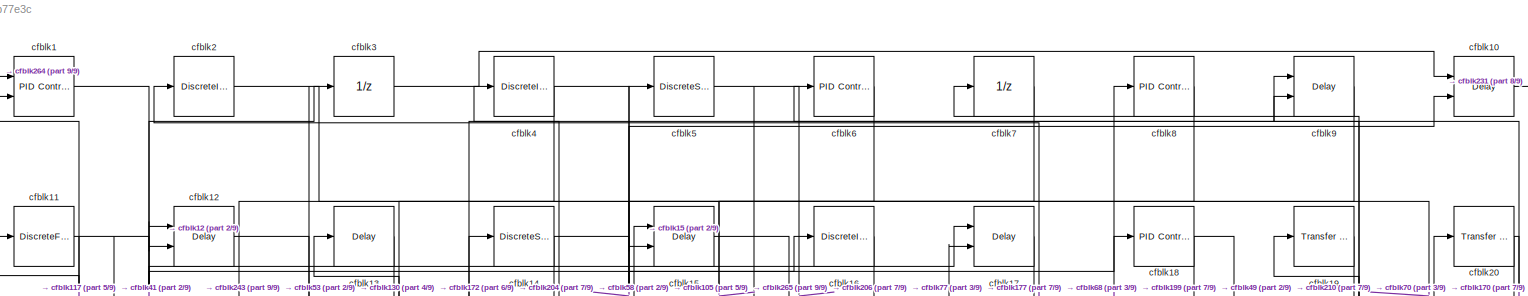
[diagram: root canvas - part 1/9, full width, top band]
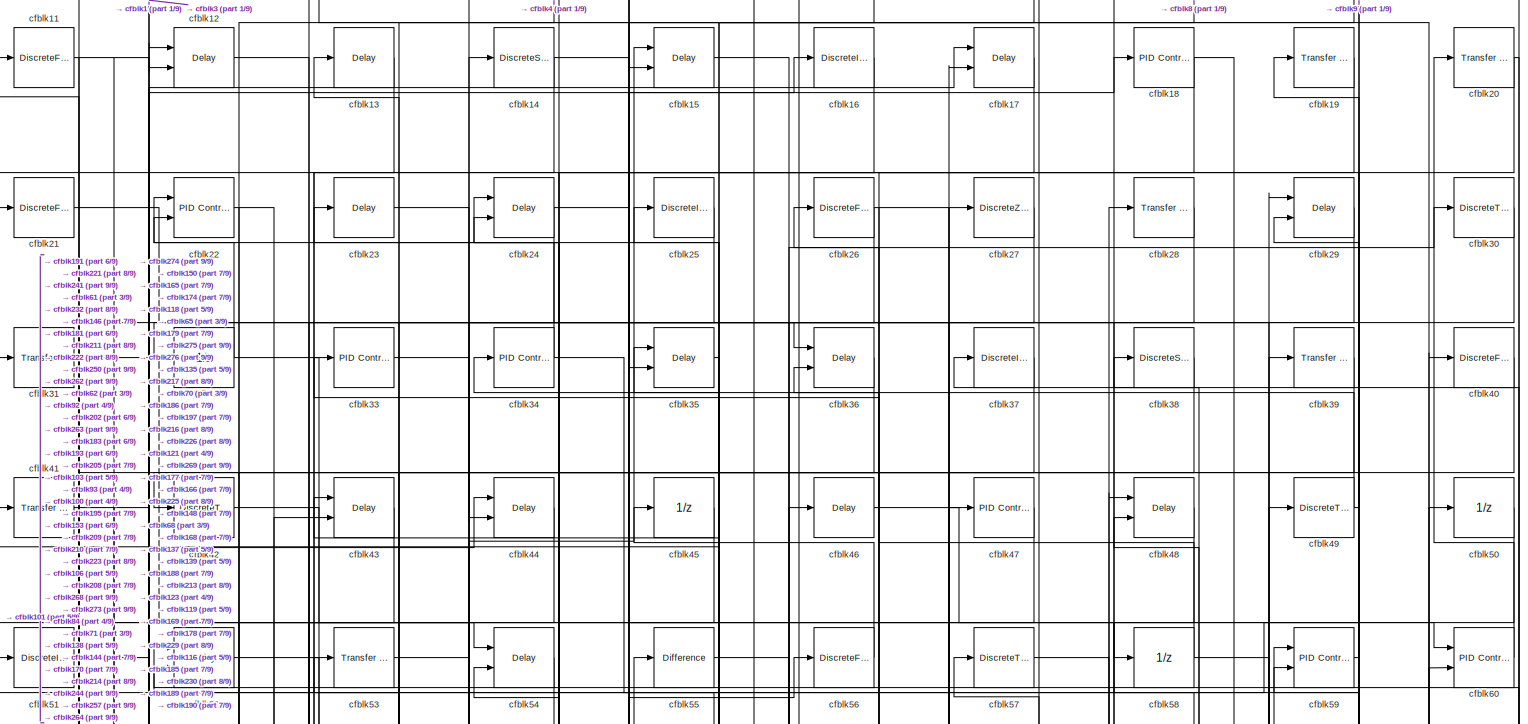
[diagram: root canvas - part 2/9, full width, top band]
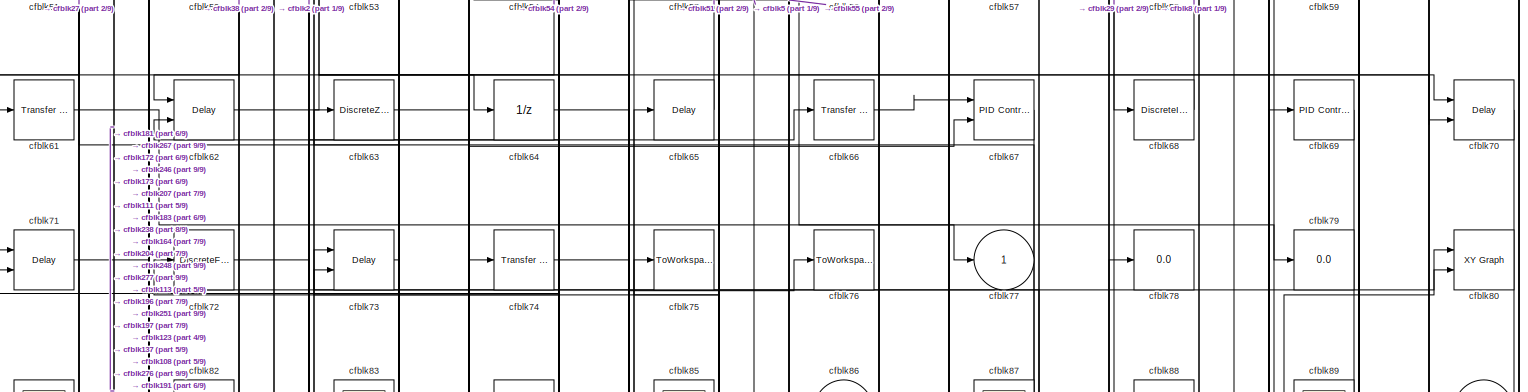
[diagram: root canvas - part 3/9, full width, top band]
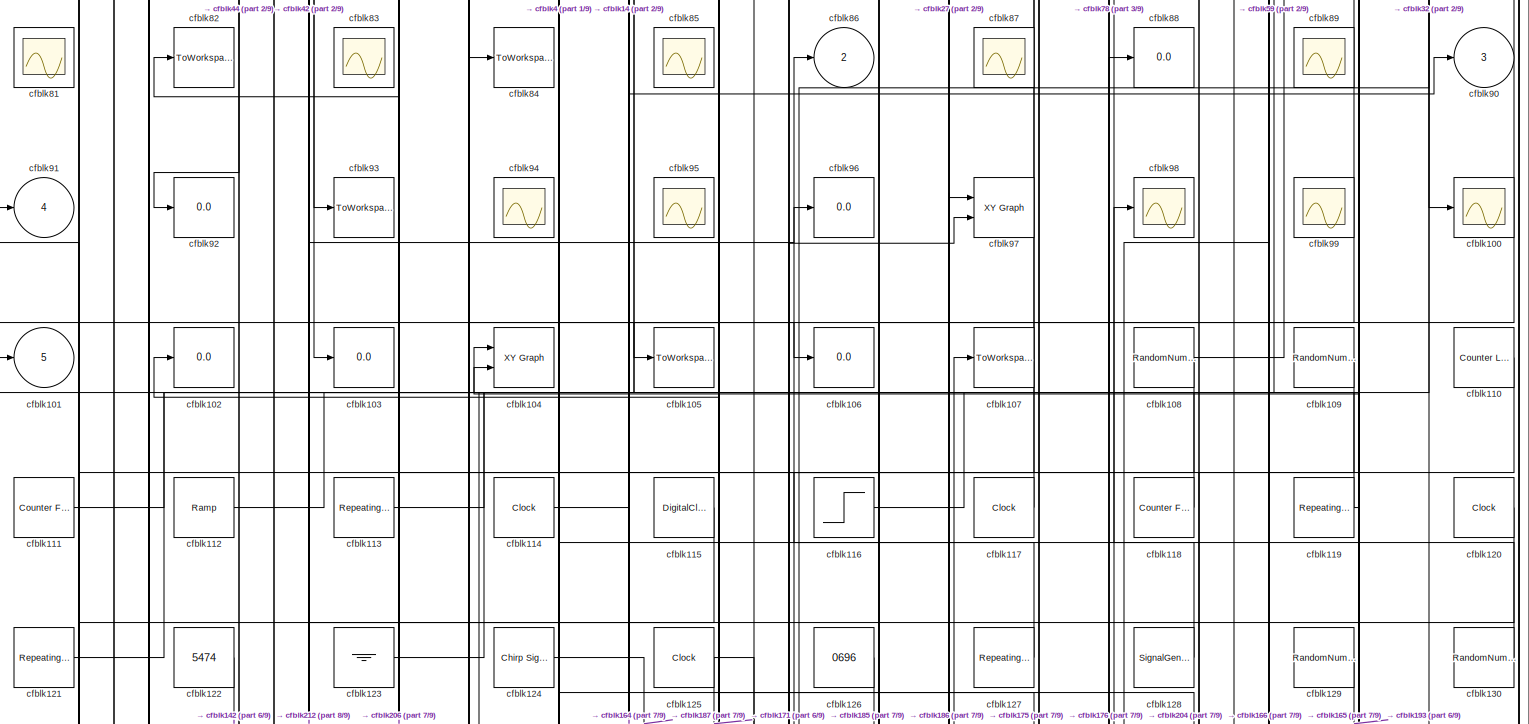
[diagram: root canvas - part 4/9, full width, middle band]
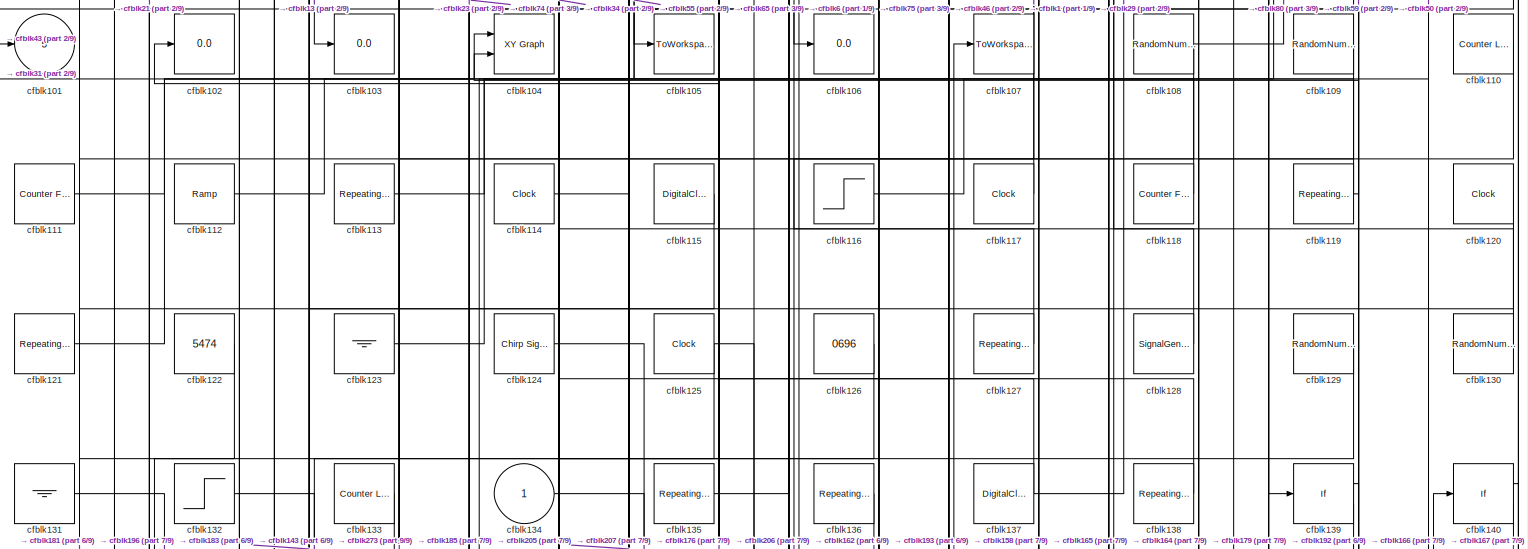
[diagram: root canvas - part 5/9, full width, middle band]
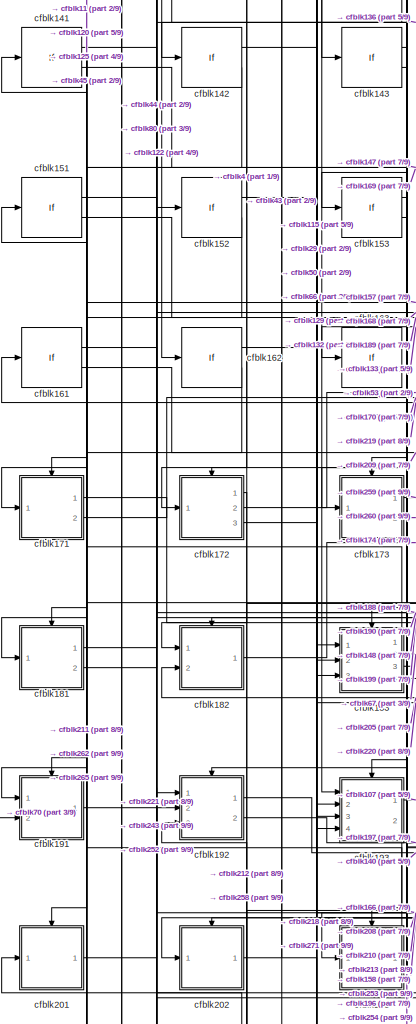
[diagram: root canvas - part 6/9, middle left region]
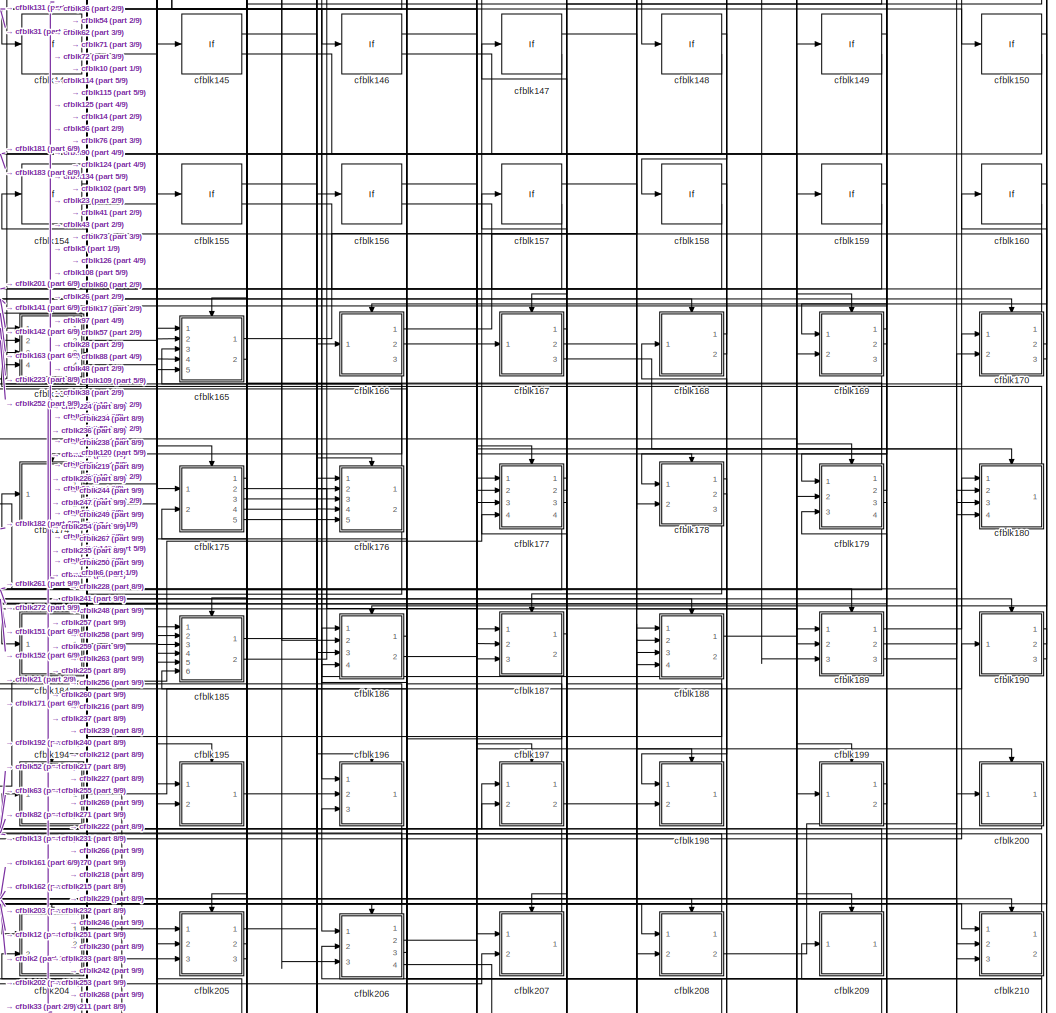
[diagram: root canvas - part 7/9, central region]
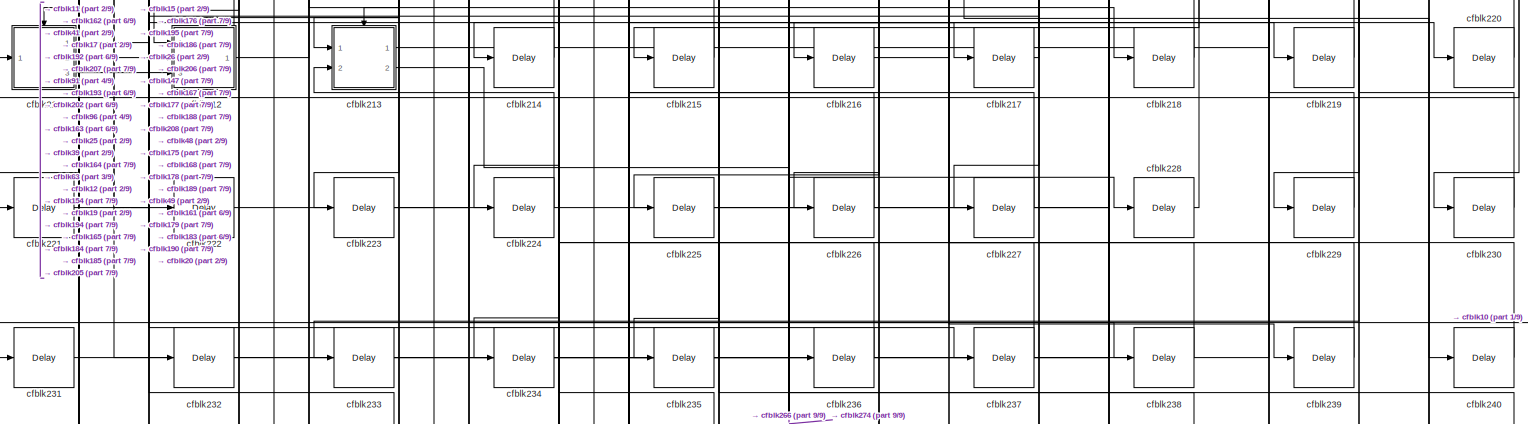
[diagram: root canvas - part 8/9, full width, bottom band]
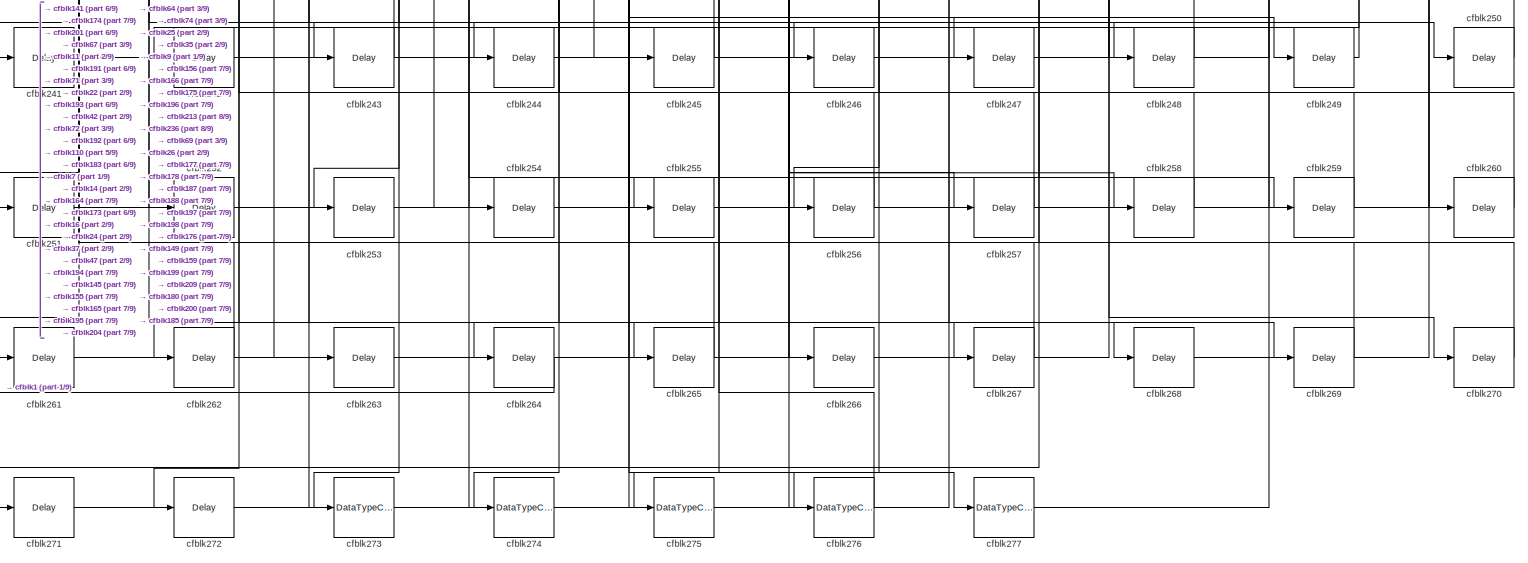
[diagram: root canvas - part 9/9, full width, bottom band]
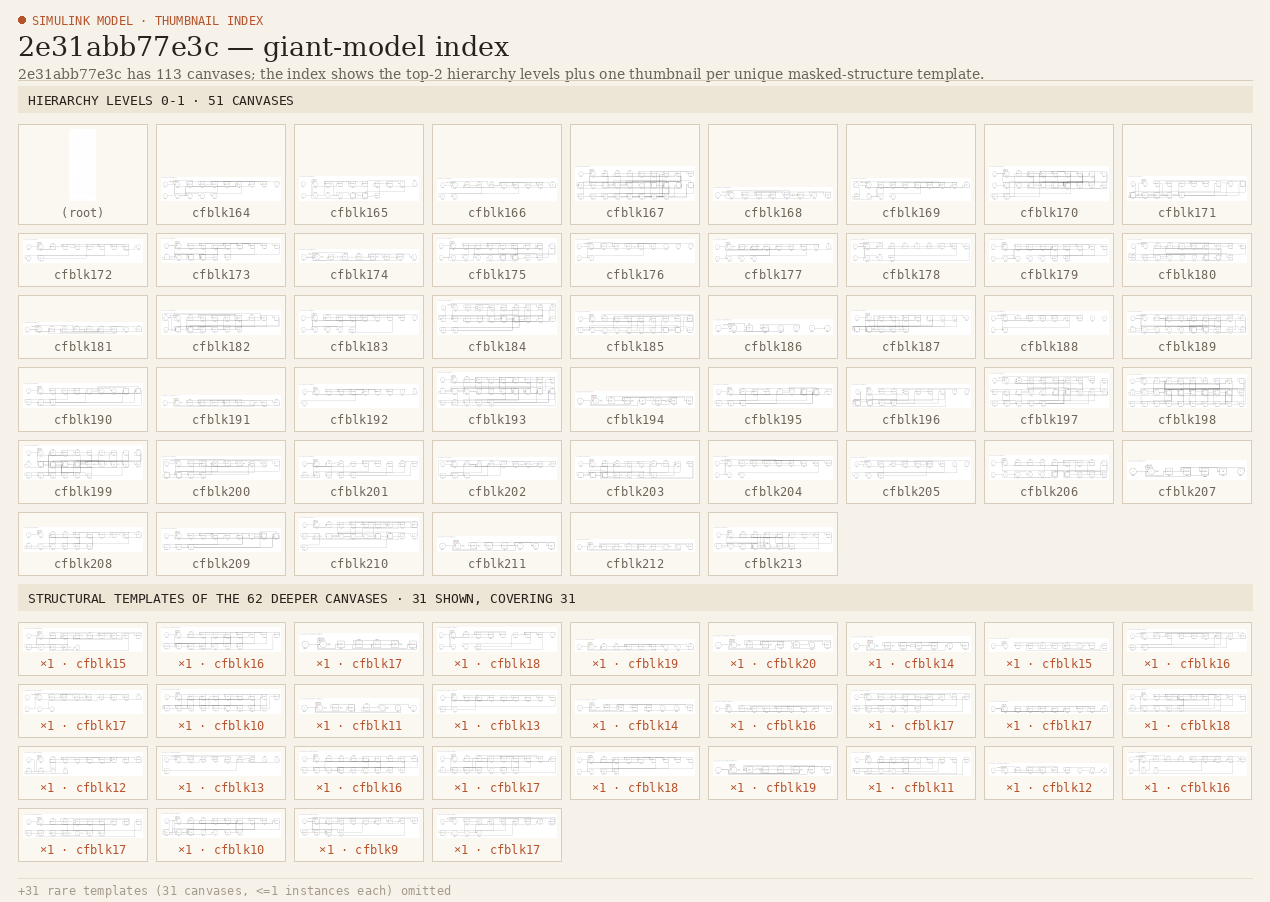
[diagram: thumbnail index - top-2 hierarchy levels (51 canvases) + 31 structural-template representatives of the remaining 62 canvases]
MODEL slx_2e31abb77e3c
KIND model
CONFIG AbsTol = auto
CONFIG EnableMultiTasking = off
CONFIG FixedStep = auto
CONFIG MaxStep = auto
CONFIG MinStep = auto
CONFIG RelTol = 1e-3
CONFIG SampleTimeConstraint = Unconstrained
CONFIG Solver = VariableStepAuto
CONFIG SolverName = VariableStepAuto
CONFIG StartTime = 0.0
CONFIG StopTime = 10.0
BLOCK [Reference] cfblk1  REF=simulink/Continuous/PID Controller (2DOF)
  Ports = [2, 1]
  SourceBlock = simulink/Continuous/PID Controller (2DOF)
  SourceProductBaseCode = SL
  SourceProductName = Simulink
  SourceType = PID 2dof
BLOCK [Delay] cfblk10
  InputPortMap = u0,e6
  Ports = [2, 1]
  SampleTime = 1
  ShowEnablePort = on
BLOCK [Scope] cfblk100
  Floating = off
  NumInputPorts = 1
  Ports = [1]
  ScopeSpecificationString = Simulink.scopes.TimeScopeBlockCfg
BLOCK [Outport] cfblk101
  IconDisplay = Port number
  Port = 5
BLOCK [Display] cfblk102
  Decimation = 1
  Ports = [1]
BLOCK [Display] cfblk103
  Decimation = 1
  Ports = [1]
BLOCK [Reference] cfblk104  REF=simulink/Sinks/XY Graph
  Ports = [2]
  SourceBlock = simulink/Sinks/XY Graph
  SourceProductBaseCode = SL
  SourceProductName = Simulink
  SourceType = XY scope.
BLOCK [ToWorkspace] cfblk105
  FixptAsFi = on
  MaxDataPoints = inf
  Ports = [1]
  SampleTime = -1
  Save2DSignal = 3-D array (concatenate along third dimension)
  SaveFormat = Timeseries
  VariableName = oefgltt
BLOCK [Display] cfblk106
  Decimation = 1
  Ports = [1]
BLOCK [ToWorkspace] cfblk107
  FixptAsFi = on
  MaxDataPoints = inf
  Ports = [1]
  SampleTime = -1
  Save2DSignal = 3-D array (concatenate along third dimension)
  SaveFormat = Timeseries
  VariableName = romnstx
BLOCK [RandomNumber] cfblk108
  SampleTime = 0.1
BLOCK [RandomNumber] cfblk109
  SampleTime = 0.1
BLOCK [DiscreteFilter] cfblk11
  InputPortMap = u0
  Ports = [1, 1]
  SampleTime = 1
BLOCK [Reference] cfblk110  REF=simulink/Sources/Counter
Limited
  Ports = [0, 1]
  SourceBlock = simulink/Sources/Counter\nLimited
  SourceProductBaseCode = SL
  SourceProductName = Simulink
  SourceType = Counter Limited
BLOCK [Reference] cfblk111  REF=simulink/Sources/Counter
Free-Running
  Ports = [0, 1]
  SourceBlock = simulink/Sources/Counter\nFree-Running
  SourceProductBaseCode = SL
  SourceProductName = Simulink
  SourceType = Counter Free-Running
BLOCK [Reference] cfblk112  REF=simulink/Sources/Ramp
  Ports = [0, 1]
  SourceBlock = simulink/Sources/Ramp
  SourceProductBaseCode = SL
  SourceProductName = Simulink
  SourceType = Ramp
BLOCK [Reference] cfblk113  REF=simulink/Sources/Repeating
Sequence
Interpolated
  Ports = [0, 1]
  SourceBlock = simulink/Sources/Repeating\nSequence\nInterpolated
  SourceProductBaseCode = SL
  SourceProductName = Simulink
  SourceType = Repeating Sequence Interpolated
BLOCK [Clock] cfblk114
BLOCK [DigitalClock] cfblk115
BLOCK [Step] cfblk116
  After = 79
  SampleTime = 0
BLOCK [Clock] cfblk117
BLOCK [Reference] cfblk118  REF=simulink/Sources/Counter
Free-Running
  Ports = [0, 1]
  SourceBlock = simulink/Sources/Counter\nFree-Running
  SourceProductBaseCode = SL
  SourceProductName = Simulink
  SourceType = Counter Free-Running
BLOCK [Reference] cfblk119  REF=simulink/Sources/Repeating
Sequence
  Ports = [0, 1]
  SourceBlock = simulink/Sources/Repeating\nSequence
  SourceProductBaseCode = SL
  SourceProductName = Simulink
  SourceType = Repeating table
BLOCK [Delay] cfblk12
  InputPortMap = u0,e6
  Ports = [2, 1]
  SampleTime = 1
  ShowEnablePort = on
BLOCK [Clock] cfblk120
BLOCK [Reference] cfblk121  REF=simulink/Sources/Repeating
Sequence
Stair
  Ports = [0, 1]
  SourceBlock = simulink/Sources/Repeating\nSequence\nStair
  SourceProductBaseCode = SL
  SourceProductName = Simulink
  SourceType = Repeating Sequence Stair
BLOCK [Constant] cfblk122
  Value = 5474
BLOCK [Ground] cfblk123
BLOCK [Reference] cfblk124  REF=simulink/Sources/Chirp Signal
  Ports = [0, 1]
  SourceBlock = simulink/Sources/Chirp Signal
  SourceProductBaseCode = SL
  SourceProductName = Simulink
  SourceType = chirp
BLOCK [Clock] cfblk125
BLOCK [Constant] cfblk126
  Value = 0696
BLOCK [Reference] cfblk127  REF=simulink/Sources/Repeating
Sequence
Stair
  Ports = [0, 1]
  SourceBlock = simulink/Sources/Repeating\nSequence\nStair
  SourceProductBaseCode = SL
  SourceProductName = Simulink
  SourceType = Repeating Sequence Stair
BLOCK [SignalGenerator] cfblk128
  Ports = [0, 1]
  Units = rad/sec
BLOCK [RandomNumber] cfblk129
  SampleTime = 0.1
BLOCK [Delay] cfblk13
  InputPortMap = u0
  Ports = [1, 1]
  SampleTime = 1
BLOCK [RandomNumber] cfblk130
  SampleTime = 0.1
BLOCK [Ground] cfblk131
BLOCK [Step] cfblk132
  After = 47
  SampleTime = 0
BLOCK [Reference] cfblk133  REF=simulink/Sources/Counter
Limited
  Ports = [0, 1]
  SourceBlock = simulink/Sources/Counter\nLimited
  SourceProductBaseCode = SL
  SourceProductName = Simulink
  SourceType = Counter Limited
BLOCK [Inport] cfblk134
  IconDisplay = Port number
BLOCK [Reference] cfblk135  REF=simulink/Sources/Repeating
Sequence
Stair
  Ports = [0, 1]
  SourceBlock = simulink/Sources/Repeating\nSequence\nStair
  SourceProductBaseCode = SL
  SourceProductName = Simulink
  SourceType = Repeating Sequence Stair
BLOCK [Reference] cfblk136  REF=simulink/Sources/Repeating
Sequence
Interpolated
  Ports = [0, 1]
  SourceBlock = simulink/Sources/Repeating\nSequence\nInterpolated
  SourceProductBaseCode = SL
  SourceProductName = Simulink
  SourceType = Repeating Sequence Interpolated
BLOCK [DigitalClock] cfblk137
BLOCK [Reference] cfblk138  REF=simulink/Sources/Repeating
Sequence
Interpolated
  Ports = [0, 1]
  SourceBlock = simulink/Sources/Repeating\nSequence\nInterpolated
  SourceProductBaseCode = SL
  SourceProductName = Simulink
  SourceType = Repeating Sequence Interpolated
BLOCK [If] cfblk139
  Ports = [1, 2]
  SampleTime = 1
BLOCK [DiscreteStateSpace] cfblk14
BLOCK [If] cfblk140
  Ports = [1, 2]
  SampleTime = 1
BLOCK [If] cfblk141
  Ports = [1, 2]
  SampleTime = 1
BLOCK [If] cfblk142
  Ports = [1, 2]
  SampleTime = 1
BLOCK [If] cfblk143
  Ports = [1, 2]
  SampleTime = 1
BLOCK [If] cfblk144
  Ports = [1, 2]
  SampleTime = 1
BLOCK [If] cfblk145
  Ports = [1, 2]
  SampleTime = 1
BLOCK [If] cfblk146
  Ports = [1, 2]
  SampleTime = 1
BLOCK [If] cfblk147
  Ports = [1, 2]
  SampleTime = 1
BLOCK [If] cfblk148
  Ports = [1, 2]
  SampleTime = 1
BLOCK [If] cfblk149
  Ports = [1, 2]
  SampleTime = 1
BLOCK [Delay] cfblk15
  InputPortMap = u0,e6
  Ports = [2, 1]
  SampleTime = 1
  ShowEnablePort = on
BLOCK [If] cfblk150
  Ports = [1, 2]
  SampleTime = 1
BLOCK [If] cfblk151
  Ports = [1, 2]
  SampleTime = 1
BLOCK [If] cfblk152
  Ports = [1, 2]
  SampleTime = 1
BLOCK [If] cfblk153
  Ports = [1, 2]
  SampleTime = 1
BLOCK [If] cfblk154
  Ports = [1, 2]
  SampleTime = 1
BLOCK [If] cfblk155
  Ports = [1, 2]
  SampleTime = 1
BLOCK [If] cfblk156
  Ports = [1, 2]
  SampleTime = 1
BLOCK [If] cfblk157
  Ports = [1, 2]
  SampleTime = 1
BLOCK [If] cfblk158
  Ports = [1, 2]
  SampleTime = 1
BLOCK [If] cfblk159
  Ports = [1, 2]
  SampleTime = 1
BLOCK [DiscreteIntegrator] cfblk16
  ICPrevOutput = DiscIntNeverNeededParam
  ICPrevScaledInput = DiscIntNeverNeededParam
  InitialConditionSetting = Auto
  Ports = [1, 1]
BLOCK [If] cfblk160
  Ports = [1, 2]
  SampleTime = 1
BLOCK [If] cfblk161
  Ports = [1, 2]
  SampleTime = 1
BLOCK [If] cfblk162
  Ports = [1, 2]
  SampleTime = 1
BLOCK [If] cfblk163
  Ports = [1, 2]
  SampleTime = 1
BLOCK [SubSystem] cfblk164
  Ports = [4, 4, 0, 0, 0, 0, 0, 1]
  RequestExecContextInheritance = off
  TreatAsAtomicUnit = on
BLOCK [ActionPort] cfblk164/Action Port
  ActionType = then
BLOCK [Inport] cfblk164/cfblk1
  IconDisplay = Port number
BLOCK [Inport] cfblk164/cfblk10
  IconDisplay = Port number
  Port = 2
BLOCK [Inport] cfblk164/cfblk11
  IconDisplay = Port number
  Port = 3
BLOCK [Inport] cfblk164/cfblk12
  IconDisplay = Port number
  Port = 4
BLOCK [Outport] cfblk164/cfblk13
  IconDisplay = Port number
  Port = 2
BLOCK [Outport] cfblk164/cfblk14
  IconDisplay = Port number
  Port = 3
BLOCK [Outport] cfblk164/cfblk15
  IconDisplay = Port number
  Port = 4
BLOCK [Outport] cfblk164/cfblk2
  IconDisplay = Port number
BLOCK [DiscreteIntegrator] cfblk164/cfblk3
  ICPrevOutput = DiscIntNeverNeededParam
  ICPrevScaledInput = DiscIntNeverNeededParam
  InitialConditionSetting = Auto
  Ports = [1, 1]
  SampleTime = -1
BLOCK [DiscreteZeroPole] cfblk164/cfblk4
  Gain = 1
  Poles = [0 0.5]
  SampleTime = -1
BLOCK [Reference] cfblk164/cfblk5  REF=simulink/Discrete/Transfer Fcn
Real Zero
  Ports = [1, 1]
  SourceBlock = simulink/Discrete/Transfer Fcn\nReal Zero
  SourceProductBaseCode = SL
  SourceProductName = Simulink
  SourceType = Transfer Fcn Real Zero
BLOCK [DiscreteZeroPole] cfblk164/cfblk6
  Gain = 1
  Poles = [0 0.5]
  SampleTime = -1
BLOCK [Delay] cfblk164/cfblk7
  InputPortMap = u0,e6
  Ports = [2, 1]
  ShowEnablePort = on
BLOCK [Reference] cfblk164/cfblk8  REF=simulink/Discrete/Transfer Fcn
Lead or Lag
  Ports = [1, 1]
  SourceBlock = simulink/Discrete/Transfer Fcn\nLead or Lag
  SourceProductBaseCode = SL
  SourceProductName = Simulink
  SourceType = Lead or Lag Compensator
BLOCK [Reference] cfblk164/cfblk9  REF=simulink/Discrete/Transfer Fcn
Lead or Lag
  Ports = [1, 1]
  SourceBlock = simulink/Discrete/Transfer Fcn\nLead or Lag
  SourceProductBaseCode = SL
  SourceProductName = Simulink
  SourceType = Lead or Lag Compensator
BLOCK [SubSystem] cfblk165
  Ports = [5, 2, 0, 0, 0, 0, 0, 1]
  RequestExecContextInheritance = off
  TreatAsAtomicUnit = on
BLOCK [ActionPort] cfblk165/Action Port
  ActionType = else
BLOCK [Inport] cfblk165/cfblk1
  IconDisplay = Port number
BLOCK [Inport] cfblk165/cfblk10
  IconDisplay = Port number
  Port = 2
BLOCK [Inport] cfblk165/cfblk11
  IconDisplay = Port number
  Port = 3
BLOCK [Inport] cfblk165/cfblk12
  IconDisplay = Port number
  Port = 4
BLOCK [Inport] cfblk165/cfblk13
  IconDisplay = Port number
  Port = 5
BLOCK [Outport] cfblk165/cfblk14
  IconDisplay = Port number
  Port = 2
BLOCK [SubSystem] cfblk165/cfblk15
  Ports = [1, 2, 0, 0, 0, 0, 0, 1]
  RequestExecContextInheritance = off
  TreatAsAtomicUnit = on
BLOCK [ActionPort] cfblk165/cfblk15/Action Port
  ActionType = then
BLOCK [Inport] cfblk165/cfblk15/cfblk1
  IconDisplay = Port number
BLOCK [DiscreteStateSpace] cfblk165/cfblk15/cfblk10
  SampleTime = -1
BLOCK [DiscreteFir] cfblk165/cfblk15/cfblk11
  InputPortMap = u0
  OutputPortMap = o0
  Ports = [1, 1]
BLOCK [Delay] cfblk165/cfblk15/cfblk12
  InputPortMap = u0
  Ports = [1, 1]
BLOCK [DiscreteStateSpace] cfblk165/cfblk15/cfblk13
  SampleTime = -1
BLOCK [Reference] cfblk165/cfblk15/cfblk14  REF=simulink/Discrete/Difference
  Ports = [1, 1]
  SourceBlock = simulink/Discrete/Difference
  SourceProductBaseCode = SL
  SourceProductName = Simulink
  SourceType = Difference
BLOCK [Outport] cfblk165/cfblk15/cfblk15
  IconDisplay = Port number
  Port = 2
BLOCK [Outport] cfblk165/cfblk15/cfblk2
  IconDisplay = Port number
BLOCK [DiscreteStateSpace] cfblk165/cfblk15/cfblk3
  SampleTime = -1
BLOCK [Delay] cfblk165/cfblk15/cfblk4
  InputPortMap = u0,e6
  Ports = [2, 1]
  ShowEnablePort = on
BLOCK [Reference] cfblk165/cfblk15/cfblk5  REF=simulink/Discrete/Transfer Fcn
Real Zero
  Ports = [1, 1]
  SourceBlock = simulink/Discrete/Transfer Fcn\nReal Zero
  SourceProductBaseCode = SL
  SourceProductName = Simulink
  SourceType = Transfer Fcn Real Zero
BLOCK [Reference] cfblk165/cfblk15/cfblk6  REF=simulink/Continuous/PID Controller
  Ports = [1, 1]
  SourceBlock = simulink/Continuous/PID Controller
  SourceProductBaseCode = SL
  SourceProductName = Simulink
  SourceType = PID 1dof
BLOCK [DiscreteTransferFcn] cfblk165/cfblk15/cfblk7
  InputPortMap = u0
  Ports = [1, 1]
BLOCK [Delay] cfblk165/cfblk15/cfblk8
  InputPortMap = u0,e6
  Ports = [2, 1]
  ShowEnablePort = on
BLOCK [Delay] cfblk165/cfblk15/cfblk9
  InputPortMap = u0
  Ports = [1, 1]
BLOCK [SubSystem] cfblk165/cfblk16
  Ports = [1, 2, 0, 0, 0, 0, 0, 1]
  RequestExecContextInheritance = off
  TreatAsAtomicUnit = on
BLOCK [ActionPort] cfblk165/cfblk16/Action Port
  ActionType = else
BLOCK [Inport] cfblk165/cfblk16/cfblk1
  IconDisplay = Port number
BLOCK [Reference] cfblk165/cfblk16/cfblk10  REF=simulink/Discrete/Tapped Delay
  Ports = [1, 1]
  SourceBlock = simulink/Discrete/Tapped Delay
  SourceProductBaseCode = SL
  SourceProductName = Simulink
  SourceType = Tapped Delay Line
BLOCK [Reference] cfblk165/cfblk16/cfblk11  REF=simulink/Discrete/Transfer Fcn
Real Zero
  Ports = [1, 1]
  SourceBlock = simulink/Discrete/Transfer Fcn\nReal Zero
  SourceProductBaseCode = SL
  SourceProductName = Simulink
  SourceType = Transfer Fcn Real Zero
BLOCK [Delay] cfblk165/cfblk16/cfblk12
  InputPortMap = u0,e6
  Ports = [2, 1]
  ShowEnablePort = on
BLOCK [DiscreteTransferFcn] cfblk165/cfblk16/cfblk13
  InputPortMap = u0
  Ports = [1, 1]
BLOCK [DiscreteStateSpace] cfblk165/cfblk16/cfblk14
  SampleTime = -1
BLOCK [Outport] cfblk165/cfblk16/cfblk15
  IconDisplay = Port number
  Port = 2
BLOCK [Delay] cfblk165/cfblk16/cfblk16
  InputPortMap = u0
  Ports = [1, 1]
BLOCK [Delay] cfblk165/cfblk16/cfblk17
  InputPortMap = u0
  Ports = [1, 1]
BLOCK [Outport] cfblk165/cfblk16/cfblk2
  IconDisplay = Port number
BLOCK [DiscreteIntegrator] cfblk165/cfblk16/cfblk3
  ICPrevOutput = DiscIntNeverNeededParam
  ICPrevScaledInput = DiscIntNeverNeededParam
  InitialConditionSetting = Auto
  Ports = [1, 1]
  SampleTime = -1
BLOCK [Delay] cfblk165/cfblk16/cfblk4
  InputPortMap = u0
  Ports = [1, 1]
BLOCK [UnitDelay] cfblk165/cfblk16/cfblk5
  InputProcessing = Elements as channels (sample based)
  SampleTime = -1
BLOCK [DiscreteTransferFcn] cfblk165/cfblk16/cfblk6
  InputPortMap = u0
  Ports = [1, 1]
BLOCK [DiscreteTransferFcn] cfblk165/cfblk16/cfblk7
  InputPortMap = u0
  Ports = [1, 1]
BLOCK [UnitDelay] cfblk165/cfblk16/cfblk8
  InputProcessing = Elements as channels (sample based)
  SampleTime = -1
BLOCK [Delay] cfblk165/cfblk16/cfblk9
  InputPortMap = u0
  Ports = [1, 1]
BLOCK [Delay] cfblk165/cfblk17
  InputPortMap = u0
  Ports = [1, 1]
BLOCK [Outport] cfblk165/cfblk2
  IconDisplay = Port number
BLOCK [Reference] cfblk165/cfblk3  REF=simulink/Discrete/Transfer Fcn
First Order
  Ports = [1, 1]
  SourceBlock = simulink/Discrete/Transfer Fcn\nFirst Order
  SourceProductBaseCode = SL
  SourceProductName = Simulink
  SourceType = First Order Transfer Fcn
BLOCK [DiscreteZeroPole] cfblk165/cfblk4
  Gain = 1
  Poles = [0 0.5]
  SampleTime = -1
BLOCK [DiscreteZeroPole] cfblk165/cfblk5
  Gain = 1
  Poles = [0 0.5]
  SampleTime = -1
BLOCK [DiscreteZeroPole] cfblk165/cfblk6
  Gain = 1
  Poles = [0 0.5]
  SampleTime = -1
BLOCK [DiscreteStateSpace] cfblk165/cfblk7
  SampleTime = -1
BLOCK [Reference] cfblk165/cfblk8  REF=simulink/Continuous/PID Controller
  Ports = [1, 1]
  SourceBlock = simulink/Continuous/PID Controller
  SourceProductBaseCode = SL
  SourceProductName = Simulink
  SourceType = PID 1dof
BLOCK [If] cfblk165/cfblk9
  Ports = [1, 2]
  SampleTime = 1
BLOCK [SubSystem] cfblk166
  Ports = [1, 3, 0, 0, 0, 0, 0, 1]
  RequestExecContextInheritance = off
  TreatAsAtomicUnit = on
BLOCK [ActionPort] cfblk166/Action Port
  ActionType = then
BLOCK [Inport] cfblk166/cfblk1
  IconDisplay = Port number
BLOCK [UnitDelay] cfblk166/cfblk10
  InputProcessing = Elements as channels (sample based)
  SampleTime = -1
BLOCK [Outport] cfblk166/cfblk11
  IconDisplay = Port number
  Port = 2
BLOCK [Outport] cfblk166/cfblk12
  IconDisplay = Port number
  Port = 3
BLOCK [Outport] cfblk166/cfblk2
  IconDisplay = Port number
BLOCK [DiscreteTransferFcn] cfblk166/cfblk3
  InputPortMap = u0
  Ports = [1, 1]
BLOCK [DiscreteFir] cfblk166/cfblk4
  InputPortMap = u0
  OutputPortMap = o0
  Ports = [1, 1]
BLOCK [DiscreteFir] cfblk166/cfblk5
  InputPortMap = u0
  OutputPortMap = o0
  Ports = [1, 1]
BLOCK [UnitDelay] cfblk166/cfblk6
  InputProcessing = Elements as channels (sample based)
  SampleTime = -1
BLOCK [Reference] cfblk166/cfblk7  REF=simulink/Discrete/Difference
  Ports = [1, 1]
  SourceBlock = simulink/Discrete/Difference
  SourceProductBaseCode = SL
  SourceProductName = Simulink
  SourceType = Difference
BLOCK [Reference] cfblk166/cfblk8  REF=simulink/Discrete/Transfer Fcn
Real Zero
  Ports = [1, 1]
  SourceBlock = simulink/Discrete/Transfer Fcn\nReal Zero
  SourceProductBaseCode = SL
  SourceProductName = Simulink
  SourceType = Transfer Fcn Real Zero
BLOCK [DiscreteFilter] cfblk166/cfblk9
  InputPortMap = u0
  Ports = [1, 1]
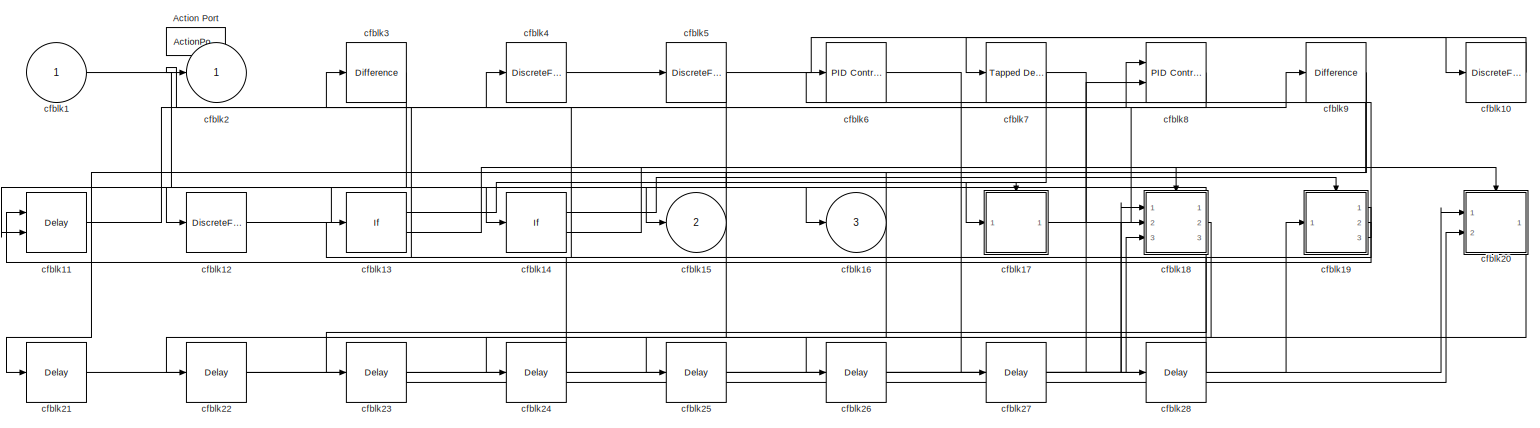
[diagram: cfblk167 - part 1/1, most of the canvas]
BLOCK [SubSystem] cfblk167
  Ports = [1, 3, 0, 0, 0, 0, 0, 1]
  RequestExecContextInheritance = off
  TreatAsAtomicUnit = on
BLOCK [ActionPort] cfblk167/Action Port
  ActionType = else
BLOCK [Inport] cfblk167/cfblk1
  IconDisplay = Port number
BLOCK [DiscreteFir] cfblk167/cfblk10
  InputPortMap = u0
  OutputPortMap = o0
  Ports = [1, 1]
BLOCK [Delay] cfblk167/cfblk11
  DelayLengthSource = Input port
  InputPortMap = u0,p1
  Ports = [2, 1]
BLOCK [DiscreteFir] cfblk167/cfblk12
  InputPortMap = u0
  OutputPortMap = o0
  Ports = [1, 1]
BLOCK [If] cfblk167/cfblk13
  Ports = [1, 2]
  SampleTime = 1
BLOCK [If] cfblk167/cfblk14
  Ports = [1, 2]
  SampleTime = 1
BLOCK [Outport] cfblk167/cfblk15
  IconDisplay = Port number
  Port = 2
BLOCK [Outport] cfblk167/cfblk16
  IconDisplay = Port number
  Port = 3
BLOCK [SubSystem] cfblk167/cfblk17
  Ports = [1, 1, 0, 0, 0, 0, 0, 1]
  RequestExecContextInheritance = off
  TreatAsAtomicUnit = on
BLOCK [ActionPort] cfblk167/cfblk17/Action Port
  ActionType = then
BLOCK [Inport] cfblk167/cfblk17/cfblk1
  IconDisplay = Port number
BLOCK [Outport] cfblk167/cfblk17/cfblk2
  IconDisplay = Port number
BLOCK [DiscreteTransferFcn] cfblk167/cfblk17/cfblk3
  InputPortMap = u0
  Ports = [1, 1]
BLOCK [DiscreteIntegrator] cfblk167/cfblk17/cfblk4
  ICPrevOutput = DiscIntNeverNeededParam
  ICPrevScaledInput = DiscIntNeverNeededParam
  InitialConditionSetting = Auto
  Ports = [1, 1]
  SampleTime = -1
BLOCK [Reference] cfblk167/cfblk17/cfblk5  REF=simulink/Discrete/Transfer Fcn
Real Zero
  Ports = [1, 1]
  SourceBlock = simulink/Discrete/Transfer Fcn\nReal Zero
  SourceProductBaseCode = SL
  SourceProductName = Simulink
  SourceType = Transfer Fcn Real Zero
BLOCK [DiscreteZeroPole] cfblk167/cfblk17/cfblk6
  Gain = 1
  Poles = [0 0.5]
  SampleTime = -1
BLOCK [Reference] cfblk167/cfblk17/cfblk7  REF=simulink/Continuous/PID Controller
  Ports = [1, 1]
  SourceBlock = simulink/Continuous/PID Controller
  SourceProductBaseCode = SL
  SourceProductName = Simulink
  SourceType = PID 1dof
BLOCK [SubSystem] cfblk167/cfblk18
  Ports = [3, 3, 0, 0, 0, 0, 0, 1]
  RequestExecContextInheritance = off
  TreatAsAtomicUnit = on
BLOCK [ActionPort] cfblk167/cfblk18/Action Port
  ActionType = else
BLOCK [Inport] cfblk167/cfblk18/cfblk1
  IconDisplay = Port number
BLOCK [Inport] cfblk167/cfblk18/cfblk10
  IconDisplay = Port number
  Port = 2
BLOCK [Inport] cfblk167/cfblk18/cfblk11
  IconDisplay = Port number
  Port = 3
BLOCK [Outport] cfblk167/cfblk18/cfblk12
  IconDisplay = Port number
  Port = 2
BLOCK [Outport] cfblk167/cfblk18/cfblk13
  IconDisplay = Port number
  Port = 3
BLOCK [Delay] cfblk167/cfblk18/cfblk14
  InputPortMap = u0
  Ports = [1, 1]
BLOCK [Outport] cfblk167/cfblk18/cfblk2
  IconDisplay = Port number
BLOCK [Reference] cfblk167/cfblk18/cfblk3  REF=simulink/Discrete/Transfer Fcn
Lead or Lag
  Ports = [1, 1]
  SourceBlock = simulink/Discrete/Transfer Fcn\nLead or Lag
  SourceProductBaseCode = SL
  SourceProductName = Simulink
  SourceType = Lead or Lag Compensator
BLOCK [DiscreteZeroPole] cfblk167/cfblk18/cfblk4
  Gain = 1
  Poles = [0 0.5]
  SampleTime = -1
BLOCK [Reference] cfblk167/cfblk18/cfblk5  REF=simulink/Discrete/Tapped Delay
  Ports = [1, 1]
  SourceBlock = simulink/Discrete/Tapped Delay
  SourceProductBaseCode = SL
  SourceProductName = Simulink
  SourceType = Tapped Delay Line
BLOCK [Reference] cfblk167/cfblk18/cfblk6  REF=simulink/Discrete/Transfer Fcn
Real Zero
  Ports = [1, 1]
  SourceBlock = simulink/Discrete/Transfer Fcn\nReal Zero
  SourceProductBaseCode = SL
  SourceProductName = Simulink
  SourceType = Transfer Fcn Real Zero
BLOCK [Delay] cfblk167/cfblk18/cfblk7
  InputPortMap = u0
  Ports = [1, 1]
BLOCK [DiscreteTransferFcn] cfblk167/cfblk18/cfblk8
  InputPortMap = u0
  Ports = [1, 1]
BLOCK [DiscreteFir] cfblk167/cfblk18/cfblk9
  InputPortMap = u0
  OutputPortMap = o0
  Ports = [1, 1]
BLOCK [SubSystem] cfblk167/cfblk19
  Ports = [1, 3, 0, 0, 0, 0, 0, 1]
  RequestExecContextInheritance = off
  TreatAsAtomicUnit = on
BLOCK [ActionPort] cfblk167/cfblk19/Action Port
  ActionType = then
BLOCK [Inport] cfblk167/cfblk19/cfblk1
  IconDisplay = Port number
BLOCK [Delay] cfblk167/cfblk19/cfblk10
  InputPortMap = u0
  Ports = [1, 1]
BLOCK [Outport] cfblk167/cfblk19/cfblk2
  IconDisplay = Port number
BLOCK [Delay] cfblk167/cfblk19/cfblk3
  InputPortMap = u0,e6
  Ports = [2, 1]
  ShowEnablePort = on
BLOCK [Reference] cfblk167/cfblk19/cfblk4  REF=simulink/Discrete/Transfer Fcn
Real Zero
  Ports = [1, 1]
  SourceBlock = simulink/Discrete/Transfer Fcn\nReal Zero
  SourceProductBaseCode = SL
  SourceProductName = Simulink
  SourceType = Transfer Fcn Real Zero
BLOCK [DiscreteZeroPole] cfblk167/cfblk19/cfblk5
  Gain = 1
  Poles = [0 0.5]
  SampleTime = -1
BLOCK [Reference] cfblk167/cfblk19/cfblk6  REF=simulink/Continuous/PID Controller
  Ports = [1, 1]
  SourceBlock = simulink/Continuous/PID Controller
  SourceProductBaseCode = SL
  SourceProductName = Simulink
  SourceType = PID 1dof
BLOCK [DiscreteFilter] cfblk167/cfblk19/cfblk7
  InputPortMap = u0
  Ports = [1, 1]
BLOCK [Outport] cfblk167/cfblk19/cfblk8
  IconDisplay = Port number
  Port = 2
BLOCK [Outport] cfblk167/cfblk19/cfblk9
  IconDisplay = Port number
  Port = 3
BLOCK [Outport] cfblk167/cfblk2
  IconDisplay = Port number
BLOCK [SubSystem] cfblk167/cfblk20
  Ports = [2, 1, 0, 0, 0, 0, 0, 1]
  RequestExecContextInheritance = off
  TreatAsAtomicUnit = on
BLOCK [ActionPort] cfblk167/cfblk20/Action Port
  ActionType = else
BLOCK [Inport] cfblk167/cfblk20/cfblk1
  IconDisplay = Port number
BLOCK [Outport] cfblk167/cfblk20/cfblk2
  IconDisplay = Port number
BLOCK [DiscreteStateSpace] cfblk167/cfblk20/cfblk3
  SampleTime = -1
BLOCK [Reference] cfblk167/cfblk20/cfblk4  REF=simulink/Discrete/Transfer Fcn
Real Zero
  Ports = [1, 1]
  SourceBlock = simulink/Discrete/Transfer Fcn\nReal Zero
  SourceProductBaseCode = SL
  SourceProductName = Simulink
  SourceType = Transfer Fcn Real Zero
BLOCK [Reference] cfblk167/cfblk20/cfblk5  REF=simulink/Continuous/PID Controller
  Ports = [1, 1]
  SourceBlock = simulink/Continuous/PID Controller
  SourceProductBaseCode = SL
  SourceProductName = Simulink
  SourceType = PID 1dof
BLOCK [Delay] cfblk167/cfblk20/cfblk6
  InputPortMap = u0,e6
  Ports = [2, 1]
  ShowEnablePort = on
BLOCK [Inport] cfblk167/cfblk20/cfblk7
  IconDisplay = Port number
  Port = 2
BLOCK [Delay] cfblk167/cfblk20/cfblk8
  InputPortMap = u0
  Ports = [1, 1]
BLOCK [Delay] cfblk167/cfblk21
  InputPortMap = u0
  Ports = [1, 1]
BLOCK [Delay] cfblk167/cfblk22
  InputPortMap = u0
  Ports = [1, 1]
BLOCK [Delay] cfblk167/cfblk23
  InputPortMap = u0
  Ports = [1, 1]
BLOCK [Delay] cfblk167/cfblk24
  InputPortMap = u0
  Ports = [1, 1]
BLOCK [Delay] cfblk167/cfblk25
  InputPortMap = u0
  Ports = [1, 1]
BLOCK [Delay] cfblk167/cfblk26
  InputPortMap = u0
  Ports = [1, 1]
BLOCK [Delay] cfblk167/cfblk27
  InputPortMap = u0
  Ports = [1, 1]
BLOCK [Delay] cfblk167/cfblk28
  InputPortMap = u0
  Ports = [1, 1]
BLOCK [Reference] cfblk167/cfblk3  REF=simulink/Discrete/Difference
  Ports = [1, 1]
  SourceBlock = simulink/Discrete/Difference
  SourceProductBaseCode = SL
  SourceProductName = Simulink
  SourceType = Difference
BLOCK [DiscreteFilter] cfblk167/cfblk4
  InputPortMap = u0
  Ports = [1, 1]
BLOCK [DiscreteFir] cfblk167/cfblk5
  InputPortMap = u0
  OutputPortMap = o0
  Ports = [1, 1]
BLOCK [Reference] cfblk167/cfblk6  REF=simulink/Continuous/PID Controller
  Ports = [1, 1]
  SourceBlock = simulink/Continuous/PID Controller
  SourceProductBaseCode = SL
  SourceProductName = Simulink
  SourceType = PID 1dof
BLOCK [Reference] cfblk167/cfblk7  REF=simulink/Discrete/Tapped Delay
  Ports = [1, 1]
  SourceBlock = simulink/Discrete/Tapped Delay
  SourceProductBaseCode = SL
  SourceProductName = Simulink
  SourceType = Tapped Delay Line
BLOCK [Reference] cfblk167/cfblk8  REF=simulink/Continuous/PID Controller (2DOF)
  Ports = [2, 1]
  SourceBlock = simulink/Continuous/PID Controller (2DOF)
  SourceProductBaseCode = SL
  SourceProductName = Simulink
  SourceType = PID 2dof
BLOCK [Reference] cfblk167/cfblk9  REF=simulink/Discrete/Difference
  Ports = [1, 1]
  SourceBlock = simulink/Discrete/Difference
  SourceProductBaseCode = SL
  SourceProductName = Simulink
  SourceType = Difference
BLOCK [SubSystem] cfblk168
  Ports = [1, 2, 0, 0, 0, 0, 0, 1]
  RequestExecContextInheritance = off
  TreatAsAtomicUnit = on
BLOCK [ActionPort] cfblk168/Action Port
  ActionType = then
BLOCK [Inport] cfblk168/cfblk1
  IconDisplay = Port number
BLOCK [Outport] cfblk168/cfblk2
  IconDisplay = Port number
BLOCK [DiscreteStateSpace] cfblk168/cfblk3
  SampleTime = -1
BLOCK [Reference] cfblk168/cfblk4  REF=simulink/Continuous/PID Controller
  Ports = [1, 1]
  SourceBlock = simulink/Continuous/PID Controller
  SourceProductBaseCode = SL
  SourceProductName = Simulink
  SourceType = PID 1dof
BLOCK [DiscreteStateSpace] cfblk168/cfblk5
  SampleTime = -1
BLOCK [DiscreteFir] cfblk168/cfblk6
  InputPortMap = u0
  OutputPortMap = o0
  Ports = [1, 1]
BLOCK [Reference] cfblk168/cfblk7  REF=simulink/Continuous/PID Controller (2DOF)
  Ports = [2, 1]
  SourceBlock = simulink/Continuous/PID Controller (2DOF)
  SourceProductBaseCode = SL
  SourceProductName = Simulink
  SourceType = PID 2dof
BLOCK [Outport] cfblk168/cfblk8
  IconDisplay = Port number
  Port = 2
BLOCK [Delay] cfblk168/cfblk9
  InputPortMap = u0
  Ports = [1, 1]
BLOCK [SubSystem] cfblk169
  Ports = [2, 3, 0, 0, 0, 0, 0, 1]
  RequestExecContextInheritance = off
  TreatAsAtomicUnit = on
BLOCK [ActionPort] cfblk169/Action Port
  ActionType = else
BLOCK [Inport] cfblk169/cfblk1
  IconDisplay = Port number
BLOCK [Delay] cfblk169/cfblk10
  InputPortMap = u0
  Ports = [1, 1]
BLOCK [DiscreteFir] cfblk169/cfblk11
  InputPortMap = u0
  OutputPortMap = o0
  Ports = [1, 1]
BLOCK [Inport] cfblk169/cfblk12
  IconDisplay = Port number
  Port = 2
BLOCK [Outport] cfblk169/cfblk13
  IconDisplay = Port number
  Port = 2
BLOCK [Outport] cfblk169/cfblk14
  IconDisplay = Port number
  Port = 3
BLOCK [Outport] cfblk169/cfblk2
  IconDisplay = Port number
BLOCK [DiscreteFilter] cfblk169/cfblk3
  InputPortMap = u0
  Ports = [1, 1]
BLOCK [Reference] cfblk169/cfblk4  REF=simulink/Continuous/PID Controller
  Ports = [1, 1]
  SourceBlock = simulink/Continuous/PID Controller
  SourceProductBaseCode = SL
  SourceProductName = Simulink
  SourceType = PID 1dof
BLOCK [DiscreteFir] cfblk169/cfblk5
  InputPortMap = u0
  OutputPortMap = o0
  Ports = [1, 1]
BLOCK [Delay] cfblk169/cfblk6
  DelayLengthSource = Input port
  InputPortMap = u0,p1
  Ports = [2, 1]
BLOCK [DiscreteStateSpace] cfblk169/cfblk7
  SampleTime = -1
BLOCK [Delay] cfblk169/cfblk8
  InputPortMap = u0,e6
  Ports = [2, 1]
  ShowEnablePort = on
BLOCK [DiscreteIntegrator] cfblk169/cfblk9
  ICPrevOutput = DiscIntNeverNeededParam
  ICPrevScaledInput = DiscIntNeverNeededParam
  InitialConditionSetting = Auto
  Ports = [1, 1]
  SampleTime = -1
BLOCK [Delay] cfblk17
  DelayLengthSource = Input port
  InputPortMap = u0,p1
  Ports = [2, 1]
  SampleTime = 1
BLOCK [SubSystem] cfblk170
  Ports = [2, 3, 0, 0, 0, 0, 0, 1]
  RequestExecContextInheritance = off
  TreatAsAtomicUnit = on
BLOCK [ActionPort] cfblk170/Action Port
  ActionType = then
BLOCK [Inport] cfblk170/cfblk1
  IconDisplay = Port number
BLOCK [If] cfblk170/cfblk10
  Ports = [1, 2]
  SampleTime = 1
BLOCK [Inport] cfblk170/cfblk11
  IconDisplay = Port number
  Port = 2
BLOCK [Outport] cfblk170/cfblk12
  IconDisplay = Port number
  Port = 2
BLOCK [Outport] cfblk170/cfblk13
  IconDisplay = Port number
  Port = 3
BLOCK [SubSystem] cfblk170/cfblk14
  Ports = [1, 2, 0, 0, 0, 0, 0, 1]
  RequestExecContextInheritance = off
  TreatAsAtomicUnit = on
BLOCK [ActionPort] cfblk170/cfblk14/Action Port
  ActionType = then
BLOCK [Inport] cfblk170/cfblk14/cfblk1
  IconDisplay = Port number
BLOCK [Outport] cfblk170/cfblk14/cfblk2
  IconDisplay = Port number
BLOCK [DiscreteTransferFcn] cfblk170/cfblk14/cfblk3
  InputPortMap = u0
  Ports = [1, 1]
BLOCK [DiscreteTransferFcn] cfblk170/cfblk14/cfblk4
  InputPortMap = u0
  Ports = [1, 1]
BLOCK [Delay] cfblk170/cfblk14/cfblk5
  InputPortMap = u0,e6
  Ports = [2, 1]
  ShowEnablePort = on
BLOCK [DiscreteStateSpace] cfblk170/cfblk14/cfblk6
  SampleTime = -1
BLOCK [Outport] cfblk170/cfblk14/cfblk7
  IconDisplay = Port number
  Port = 2
BLOCK [Delay] cfblk170/cfblk14/cfblk8
  InputPortMap = u0
  Ports = [1, 1]
BLOCK [SubSystem] cfblk170/cfblk15
  Ports = [2, 1, 0, 0, 0, 0, 0, 1]
  RequestExecContextInheritance = off
  TreatAsAtomicUnit = on
BLOCK [ActionPort] cfblk170/cfblk15/Action Port
  ActionType = else
BLOCK [Inport] cfblk170/cfblk15/cfblk1
  IconDisplay = Port number
BLOCK [Delay] cfblk170/cfblk15/cfblk10
  InputPortMap = u0
  Ports = [1, 1]
BLOCK [Outport] cfblk170/cfblk15/cfblk2
  IconDisplay = Port number
BLOCK [DiscreteIntegrator] cfblk170/cfblk15/cfblk3
  ICPrevOutput = DiscIntNeverNeededParam
  ICPrevScaledInput = DiscIntNeverNeededParam
  InitialConditionSetting = Auto
  Ports = [1, 1]
  SampleTime = -1
BLOCK [DiscreteFir] cfblk170/cfblk15/cfblk4
  InputPortMap = u0
  OutputPortMap = o0
  Ports = [1, 1]
BLOCK [Delay] cfblk170/cfblk15/cfblk5
  InputPortMap = u0
  Ports = [1, 1]
BLOCK [DiscreteFilter] cfblk170/cfblk15/cfblk6
  InputPortMap = u0
  Ports = [1, 1]
BLOCK [Reference] cfblk170/cfblk15/cfblk7  REF=simulink/Continuous/PID Controller (2DOF)
  Ports = [2, 1]
  SourceBlock = simulink/Continuous/PID Controller (2DOF)
  SourceProductBaseCode = SL
  SourceProductName = Simulink
  SourceType = PID 2dof
BLOCK [Inport] cfblk170/cfblk15/cfblk8
  IconDisplay = Port number
  Port = 2
BLOCK [Delay] cfblk170/cfblk15/cfblk9
  InputPortMap = u0
  Ports = [1, 1]
BLOCK [SubSystem] cfblk170/cfblk16
  Ports = [1, 1, 0, 0, 0, 0, 0, 1]
  RequestExecContextInheritance = off
  TreatAsAtomicUnit = on
BLOCK [ActionPort] cfblk170/cfblk16/Action Port
  ActionType = then
BLOCK [Inport] cfblk170/cfblk16/cfblk1
  IconDisplay = Port number
BLOCK [DiscreteZeroPole] cfblk170/cfblk16/cfblk10
  Gain = 1
  Poles = [0 0.5]
  SampleTime = -1
BLOCK [DiscreteFir] cfblk170/cfblk16/cfblk11
  InputPortMap = u0
  OutputPortMap = o0
  Ports = [1, 1]
BLOCK [Delay] cfblk170/cfblk16/cfblk12
  InputPortMap = u0
  Ports = [1, 1]
BLOCK [Outport] cfblk170/cfblk16/cfblk2
  IconDisplay = Port number
BLOCK [Reference] cfblk170/cfblk16/cfblk3  REF=simulink/Discrete/Transfer Fcn
Real Zero
  Ports = [1, 1]
  SourceBlock = simulink/Discrete/Transfer Fcn\nReal Zero
  SourceProductBaseCode = SL
  SourceProductName = Simulink
  SourceType = Transfer Fcn Real Zero
BLOCK [Reference] cfblk170/cfblk16/cfblk4  REF=simulink/Continuous/PID Controller
  Ports = [1, 1]
  SourceBlock = simulink/Continuous/PID Controller
  SourceProductBaseCode = SL
  SourceProductName = Simulink
  SourceType = PID 1dof
BLOCK [Reference] cfblk170/cfblk16/cfblk5  REF=simulink/Continuous/PID Controller
  Ports = [1, 1]
  SourceBlock = simulink/Continuous/PID Controller
  SourceProductBaseCode = SL
  SourceProductName = Simulink
  SourceType = PID 1dof
BLOCK [DiscreteFilter] cfblk170/cfblk16/cfblk6
  InputPortMap = u0
  Ports = [1, 1]
BLOCK [DiscreteTransferFcn] cfblk170/cfblk16/cfblk7
  InputPortMap = u0
  Ports = [1, 1]
BLOCK [Reference] cfblk170/cfblk16/cfblk8  REF=simulink/Continuous/PID Controller (2DOF)
  Ports = [2, 1]
  SourceBlock = simulink/Continuous/PID Controller (2DOF)
  SourceProductBaseCode = SL
  SourceProductName = Simulink
  SourceType = PID 2dof
BLOCK [UnitDelay] cfblk170/cfblk16/cfblk9
  InputProcessing = Elements as channels (sample based)
  SampleTime = -1
BLOCK [SubSystem] cfblk170/cfblk17
  Ports = [5, 1, 0, 0, 0, 0, 0, 1]
  RequestExecContextInheritance = off
  TreatAsAtomicUnit = on
BLOCK [ActionPort] cfblk170/cfblk17/Action Port
  ActionType = else
BLOCK [Inport] cfblk170/cfblk17/cfblk1
  IconDisplay = Port number
BLOCK [Inport] cfblk170/cfblk17/cfblk10
  IconDisplay = Port number
  Port = 2
BLOCK [Inport] cfblk170/cfblk17/cfblk11
  IconDisplay = Port number
  Port = 3
BLOCK [Inport] cfblk170/cfblk17/cfblk12
  IconDisplay = Port number
  Port = 4
BLOCK [Inport] cfblk170/cfblk17/cfblk13
  IconDisplay = Port number
  Port = 5
BLOCK [Outport] cfblk170/cfblk17/cfblk2
  IconDisplay = Port number
BLOCK [Reference] cfblk170/cfblk17/cfblk3  REF=simulink/Discrete/Transfer Fcn
Real Zero
  Ports = [1, 1]
  SourceBlock = simulink/Discrete/Transfer Fcn\nReal Zero
  SourceProductBaseCode = SL
  SourceProductName = Simulink
  SourceType = Transfer Fcn Real Zero
BLOCK [Reference] cfblk170/cfblk17/cfblk4  REF=simulink/Discrete/Transfer Fcn
Lead or Lag
  Ports = [1, 1]
  SourceBlock = simulink/Discrete/Transfer Fcn\nLead or Lag
  SourceProductBaseCode = SL
  SourceProductName = Simulink
  SourceType = Lead or Lag Compensator
BLOCK [DiscreteIntegrator] cfblk170/cfblk17/cfblk5
  ICPrevOutput = DiscIntNeverNeededParam
  ICPrevScaledInput = DiscIntNeverNeededParam
  InitialConditionSetting = Auto
  Ports = [1, 1]
  SampleTime = -1
BLOCK [Reference] cfblk170/cfblk17/cfblk6  REF=simulink/Continuous/PID Controller (2DOF)
  Ports = [2, 1]
  SourceBlock = simulink/Continuous/PID Controller (2DOF)
  SourceProductBaseCode = SL
  SourceProductName = Simulink
  SourceType = PID 2dof
BLOCK [Reference] cfblk170/cfblk17/cfblk7  REF=simulink/Discrete/Tapped Delay
  Ports = [1, 1]
  SourceBlock = simulink/Discrete/Tapped Delay
  SourceProductBaseCode = SL
  SourceProductName = Simulink
  SourceType = Tapped Delay Line
BLOCK [Delay] cfblk170/cfblk17/cfblk8
  InputPortMap = u0
  Ports = [1, 1]
BLOCK [DiscreteStateSpace] cfblk170/cfblk17/cfblk9
  SampleTime = -1
BLOCK [Delay] cfblk170/cfblk18
  InputPortMap = u0
  Ports = [1, 1]
BLOCK [Delay] cfblk170/cfblk19
  InputPortMap = u0
  Ports = [1, 1]
BLOCK [Outport] cfblk170/cfblk2
  IconDisplay = Port number
BLOCK [Delay] cfblk170/cfblk20
  InputPortMap = u0
  Ports = [1, 1]
BLOCK [Delay] cfblk170/cfblk21
  InputPortMap = u0
  Ports = [1, 1]
BLOCK [Delay] cfblk170/cfblk22
  InputPortMap = u0
  Ports = [1, 1]
BLOCK [DiscreteStateSpace] cfblk170/cfblk3
  SampleTime = -1
BLOCK [Reference] cfblk170/cfblk4  REF=simulink/Continuous/PID Controller (2DOF)
  Ports = [2, 1]
  SourceBlock = simulink/Continuous/PID Controller (2DOF)
  SourceProductBaseCode = SL
  SourceProductName = Simulink
  SourceType = PID 2dof
BLOCK [Delay] cfblk170/cfblk5
  InputPortMap = u0,e6
  Ports = [2, 1]
  ShowEnablePort = on
BLOCK [DiscreteIntegrator] cfblk170/cfblk6
  ICPrevOutput = DiscIntNeverNeededParam
  ICPrevScaledInput = DiscIntNeverNeededParam
  InitialConditionSetting = Auto
  Ports = [1, 1]
  SampleTime = -1
BLOCK [Delay] cfblk170/cfblk7
  InputPortMap = u0
  Ports = [1, 1]
BLOCK [DiscreteFilter] cfblk170/cfblk8
  InputPortMap = u0
  Ports = [1, 1]
BLOCK [If] cfblk170/cfblk9
  Ports = [1, 2]
  SampleTime = 1
BLOCK [SubSystem] cfblk171
  Ports = [1, 2, 0, 0, 0, 0, 0, 1]
  RequestExecContextInheritance = off
  TreatAsAtomicUnit = on
BLOCK [ActionPort] cfblk171/Action Port
  ActionType = else
BLOCK [Inport] cfblk171/cfblk1
  IconDisplay = Port number
BLOCK [SubSystem] cfblk171/cfblk10
  Ports = [1, 2, 0, 0, 0, 0, 0, 1]
  RequestExecContextInheritance = off
  TreatAsAtomicUnit = on
BLOCK [ActionPort] cfblk171/cfblk10/Action Port
  ActionType = then
BLOCK [Inport] cfblk171/cfblk10/cfblk1
  IconDisplay = Port number
BLOCK [Reference] cfblk171/cfblk10/cfblk10  REF=simulink/Continuous/PID Controller
  Ports = [1, 1]
  SourceBlock = simulink/Continuous/PID Controller
  SourceProductBaseCode = SL
  SourceProductName = Simulink
  SourceType = PID 1dof
BLOCK [Delay] cfblk171/cfblk10/cfblk11
  InputPortMap = u0,e6
  Ports = [2, 1]
  ShowEnablePort = on
BLOCK [Reference] cfblk171/cfblk10/cfblk12  REF=simulink/Discrete/Tapped Delay
  Ports = [1, 1]
  SourceBlock = simulink/Discrete/Tapped Delay
  SourceProductBaseCode = SL
  SourceProductName = Simulink
  SourceType = Tapped Delay Line
BLOCK [Delay] cfblk171/cfblk10/cfblk13
  InputPortMap = u0
  Ports = [1, 1]
BLOCK [Reference] cfblk171/cfblk10/cfblk14  REF=simulink/Discrete/Tapped Delay
  Ports = [1, 1]
  SourceBlock = simulink/Discrete/Tapped Delay
  SourceProductBaseCode = SL
  SourceProductName = Simulink
  SourceType = Tapped Delay Line
BLOCK [Reference] cfblk171/cfblk10/cfblk15  REF=simulink/Discrete/Transfer Fcn
First Order
  Ports = [1, 1]
  SourceBlock = simulink/Discrete/Transfer Fcn\nFirst Order
  SourceProductBaseCode = SL
  SourceProductName = Simulink
  SourceType = First Order Transfer Fcn
BLOCK [Outport] cfblk171/cfblk10/cfblk16
  IconDisplay = Port number
  Port = 2
BLOCK [Delay] cfblk171/cfblk10/cfblk17
  InputPortMap = u0
  Ports = [1, 1]
BLOCK [Delay] cfblk171/cfblk10/cfblk18
  InputPortMap = u0
  Ports = [1, 1]
BLOCK [Delay] cfblk171/cfblk10/cfblk19
  InputPortMap = u0
  Ports = [1, 1]
BLOCK [Outport] cfblk171/cfblk10/cfblk2
  IconDisplay = Port number
BLOCK [DiscreteTransferFcn] cfblk171/cfblk10/cfblk3
  InputPortMap = u0
  Ports = [1, 1]
BLOCK [Reference] cfblk171/cfblk10/cfblk4  REF=simulink/Discrete/Difference
  Ports = [1, 1]
  SourceBlock = simulink/Discrete/Difference
  SourceProductBaseCode = SL
  SourceProductName = Simulink
  SourceType = Difference
BLOCK [Reference] cfblk171/cfblk10/cfblk5  REF=simulink/Discrete/Transfer Fcn
Lead or Lag
  Ports = [1, 1]
  SourceBlock = simulink/Discrete/Transfer Fcn\nLead or Lag
  SourceProductBaseCode = SL
  SourceProductName = Simulink
  SourceType = Lead or Lag Compensator
BLOCK [UnitDelay] cfblk171/cfblk10/cfblk6
  InputProcessing = Elements as channels (sample based)
  SampleTime = -1
BLOCK [Reference] cfblk171/cfblk10/cfblk7  REF=simulink/Discrete/Transfer Fcn
First Order
  Ports = [1, 1]
  SourceBlock = simulink/Discrete/Transfer Fcn\nFirst Order
  SourceProductBaseCode = SL
  SourceProductName = Simulink
  SourceType = First Order Transfer Fcn
BLOCK [DiscreteIntegrator] cfblk171/cfblk10/cfblk8
  ICPrevOutput = DiscIntNeverNeededParam
  ICPrevScaledInput = DiscIntNeverNeededParam
  InitialConditionSetting = Auto
  Ports = [1, 1]
  SampleTime = -1
BLOCK [Delay] cfblk171/cfblk10/cfblk9
  DelayLengthSource = Input port
  InputPortMap = u0,p1
  Ports = [2, 1]
BLOCK [SubSystem] cfblk171/cfblk11
  Ports = [3, 2, 0, 0, 0, 0, 0, 1]
  RequestExecContextInheritance = off
  TreatAsAtomicUnit = on
BLOCK [ActionPort] cfblk171/cfblk11/Action Port
  ActionType = else
BLOCK [Inport] cfblk171/cfblk11/cfblk1
  IconDisplay = Port number
BLOCK [Outport] cfblk171/cfblk11/cfblk2
  IconDisplay = Port number
BLOCK [Reference] cfblk171/cfblk11/cfblk3  REF=simulink/Discrete/Transfer Fcn
Real Zero
  Ports = [1, 1]
  SourceBlock = simulink/Discrete/Transfer Fcn\nReal Zero
  SourceProductBaseCode = SL
  SourceProductName = Simulink
  SourceType = Transfer Fcn Real Zero
BLOCK [DiscreteTransferFcn] cfblk171/cfblk11/cfblk4
  InputPortMap = u0
  Ports = [1, 1]
BLOCK [DiscreteFilter] cfblk171/cfblk11/cfblk5
  InputPortMap = u0
  Ports = [1, 1]
BLOCK [Inport] cfblk171/cfblk11/cfblk6
  IconDisplay = Port number
  Port = 2
BLOCK [Inport] cfblk171/cfblk11/cfblk7
  IconDisplay = Port number
  Port = 3
BLOCK [Outport] cfblk171/cfblk11/cfblk8
  IconDisplay = Port number
  Port = 2
BLOCK [Delay] cfblk171/cfblk12
  InputPortMap = u0
  Ports = [1, 1]
BLOCK [Delay] cfblk171/cfblk13
  InputPortMap = u0
  Ports = [1, 1]
BLOCK [Delay] cfblk171/cfblk14
  InputPortMap = u0
  Ports = [1, 1]
BLOCK [Delay] cfblk171/cfblk15
  InputPortMap = u0
  Ports = [1, 1]
BLOCK [Outport] cfblk171/cfblk2
  IconDisplay = Port number
BLOCK [DiscreteFilter] cfblk171/cfblk3
  InputPortMap = u0
  Ports = [1, 1]
BLOCK [DiscreteStateSpace] cfblk171/cfblk4
  SampleTime = -1
BLOCK [DiscreteStateSpace] cfblk171/cfblk5
  SampleTime = -1
BLOCK [DiscreteStateSpace] cfblk171/cfblk6
  SampleTime = -1
BLOCK [Reference] cfblk171/cfblk7  REF=simulink/Continuous/PID Controller
  Ports = [1, 1]
  SourceBlock = simulink/Continuous/PID Controller
  SourceProductBaseCode = SL
  SourceProductName = Simulink
  SourceType = PID 1dof
BLOCK [If] cfblk171/cfblk8
  Ports = [1, 2]
  SampleTime = 1
BLOCK [Outport] cfblk171/cfblk9
  IconDisplay = Port number
  Port = 2
BLOCK [SubSystem] cfblk172
  Ports = [1, 3, 0, 0, 0, 0, 0, 1]
  RequestExecContextInheritance = off
  TreatAsAtomicUnit = on
BLOCK [ActionPort] cfblk172/Action Port
  ActionType = then
BLOCK [Inport] cfblk172/cfblk1
  IconDisplay = Port number
BLOCK [Outport] cfblk172/cfblk10
  IconDisplay = Port number
  Port = 2
BLOCK [Outport] cfblk172/cfblk11
  IconDisplay = Port number
  Port = 3
BLOCK [Delay] cfblk172/cfblk12
  InputPortMap = u0
  Ports = [1, 1]
BLOCK [Outport] cfblk172/cfblk2
  IconDisplay = Port number
BLOCK [DiscreteFilter] cfblk172/cfblk3
  InputPortMap = u0
  Ports = [1, 1]
BLOCK [Reference] cfblk172/cfblk4  REF=simulink/Discrete/Transfer Fcn
Lead or Lag
  Ports = [1, 1]
  SourceBlock = simulink/Discrete/Transfer Fcn\nLead or Lag
  SourceProductBaseCode = SL
  SourceProductName = Simulink
  SourceType = Lead or Lag Compensator
BLOCK [Delay] cfblk172/cfblk5
  InputPortMap = u0,e6
  Ports = [2, 1]
  ShowEnablePort = on
BLOCK [Reference] cfblk172/cfblk6  REF=simulink/Discrete/Transfer Fcn
First Order
  Ports = [1, 1]
  SourceBlock = simulink/Discrete/Transfer Fcn\nFirst Order
  SourceProductBaseCode = SL
  SourceProductName = Simulink
  SourceType = First Order Transfer Fcn
BLOCK [Reference] cfblk172/cfblk7  REF=simulink/Continuous/PID Controller
  Ports = [1, 1]
  SourceBlock = simulink/Continuous/PID Controller
  SourceProductBaseCode = SL
  SourceProductName = Simulink
  SourceType = PID 1dof
BLOCK [DiscreteFir] cfblk172/cfblk8
  InputPortMap = u0
  OutputPortMap = o0
  Ports = [1, 1]
BLOCK [Reference] cfblk172/cfblk9  REF=simulink/Continuous/PID Controller
  Ports = [1, 1]
  SourceBlock = simulink/Continuous/PID Controller
  SourceProductBaseCode = SL
  SourceProductName = Simulink
  SourceType = PID 1dof
BLOCK [SubSystem] cfblk173
  Ports = [1, 2, 0, 0, 0, 0, 0, 1]
  RequestExecContextInheritance = off
  TreatAsAtomicUnit = on
BLOCK [ActionPort] cfblk173/Action Port
  ActionType = else
BLOCK [Inport] cfblk173/cfblk1
  IconDisplay = Port number
BLOCK [DiscreteTransferFcn] cfblk173/cfblk10
  InputPortMap = u0
  Ports = [1, 1]
BLOCK [If] cfblk173/cfblk11
  Ports = [1, 2]
  SampleTime = 1
BLOCK [Outport] cfblk173/cfblk12
  IconDisplay = Port number
  Port = 2
BLOCK [SubSystem] cfblk173/cfblk13
  Ports = [2, 1, 0, 0, 0, 0, 0, 1]
  RequestExecContextInheritance = off
  TreatAsAtomicUnit = on
BLOCK [ActionPort] cfblk173/cfblk13/Action Port
  ActionType = then
BLOCK [Inport] cfblk173/cfblk13/cfblk1
  IconDisplay = Port number
BLOCK [DiscreteStateSpace] cfblk173/cfblk13/cfblk10
  SampleTime = -1
BLOCK [Reference] cfblk173/cfblk13/cfblk11  REF=simulink/Discrete/Tapped Delay
  Ports = [1, 1]
  SourceBlock = simulink/Discrete/Tapped Delay
  SourceProductBaseCode = SL
  SourceProductName = Simulink
  SourceType = Tapped Delay Line
BLOCK [Inport] cfblk173/cfblk13/cfblk12
  IconDisplay = Port number
  Port = 2
BLOCK [Outport] cfblk173/cfblk13/cfblk2
  IconDisplay = Port number
BLOCK [DiscreteZeroPole] cfblk173/cfblk13/cfblk3
  Gain = 1
  Poles = [0 0.5]
  SampleTime = -1
BLOCK [Delay] cfblk173/cfblk13/cfblk4
  DelayLengthSource = Input port
  InputPortMap = u0,p1
  Ports = [2, 1]
BLOCK [DiscreteFir] cfblk173/cfblk13/cfblk5
  InputPortMap = u0
  OutputPortMap = o0
  Ports = [1, 1]
BLOCK [DiscreteFir] cfblk173/cfblk13/cfblk6
  InputPortMap = u0
  OutputPortMap = o0
  Ports = [1, 1]
BLOCK [Reference] cfblk173/cfblk13/cfblk7  REF=simulink/Continuous/PID Controller
  Ports = [1, 1]
  SourceBlock = simulink/Continuous/PID Controller
  SourceProductBaseCode = SL
  SourceProductName = Simulink
  SourceType = PID 1dof
BLOCK [DiscreteTransferFcn] cfblk173/cfblk13/cfblk8
  InputPortMap = u0
  Ports = [1, 1]
BLOCK [Reference] cfblk173/cfblk13/cfblk9  REF=simulink/Discrete/Transfer Fcn
Lead or Lag
  Ports = [1, 1]
  SourceBlock = simulink/Discrete/Transfer Fcn\nLead or Lag
  SourceProductBaseCode = SL
  SourceProductName = Simulink
  SourceType = Lead or Lag Compensator
BLOCK [SubSystem] cfblk173/cfblk14
  Ports = [3, 1, 0, 0, 0, 0, 0, 1]
  RequestExecContextInheritance = off
  TreatAsAtomicUnit = on
BLOCK [ActionPort] cfblk173/cfblk14/Action Port
  ActionType = else
BLOCK [Inport] cfblk173/cfblk14/cfblk1
  IconDisplay = Port number
BLOCK [Outport] cfblk173/cfblk14/cfblk2
  IconDisplay = Port number
BLOCK [DiscreteTransferFcn] cfblk173/cfblk14/cfblk3
  InputPortMap = u0
  Ports = [1, 1]
BLOCK [Delay] cfblk173/cfblk14/cfblk4
  DelayLengthSource = Input port
  InputPortMap = u0,p1
  Ports = [2, 1]
BLOCK [DiscreteZeroPole] cfblk173/cfblk14/cfblk5
  Gain = 1
  Poles = [0 0.5]
  SampleTime = -1
BLOCK [DiscreteTransferFcn] cfblk173/cfblk14/cfblk6
  InputPortMap = u0
  Ports = [1, 1]
BLOCK [Inport] cfblk173/cfblk14/cfblk7
  IconDisplay = Port number
  Port = 2
BLOCK [Inport] cfblk173/cfblk14/cfblk8
  IconDisplay = Port number
  Port = 3
BLOCK [Delay] cfblk173/cfblk14/cfblk9
  InputPortMap = u0
  Ports = [1, 1]
BLOCK [Delay] cfblk173/cfblk15
  InputPortMap = u0
  Ports = [1, 1]
BLOCK [Delay] cfblk173/cfblk16
  InputPortMap = u0
  Ports = [1, 1]
BLOCK [Outport] cfblk173/cfblk2
  IconDisplay = Port number
BLOCK [DiscreteIntegrator] cfblk173/cfblk3
  ICPrevOutput = DiscIntNeverNeededParam
  ICPrevScaledInput = DiscIntNeverNeededParam
  InitialConditionSetting = Auto
  Ports = [1, 1]
  SampleTime = -1
BLOCK [DiscreteStateSpace] cfblk173/cfblk4
  SampleTime = -1
BLOCK [Delay] cfblk173/cfblk5
  InputPortMap = u0
  Ports = [1, 1]
BLOCK [DiscreteZeroPole] cfblk173/cfblk6
  Gain = 1
  Poles = [0 0.5]
  SampleTime = -1
BLOCK [Reference] cfblk173/cfblk7  REF=simulink/Discrete/Difference
  Ports = [1, 1]
  SourceBlock = simulink/Discrete/Difference
  SourceProductBaseCode = SL
  SourceProductName = Simulink
  SourceType = Difference
BLOCK [Reference] cfblk173/cfblk8  REF=simulink/Discrete/Difference
  Ports = [1, 1]
  SourceBlock = simulink/Discrete/Difference
  SourceProductBaseCode = SL
  SourceProductName = Simulink
  SourceType = Difference
BLOCK [DiscreteZeroPole] cfblk173/cfblk9
  Gain = 1
  Poles = [0 0.5]
  SampleTime = -1
BLOCK [SubSystem] cfblk174
  Ports = [1, 2, 0, 0, 0, 0, 0, 1]
  RequestExecContextInheritance = off
  TreatAsAtomicUnit = on
BLOCK [ActionPort] cfblk174/Action Port
  ActionType = then
BLOCK [Inport] cfblk174/cfblk1
  IconDisplay = Port number
BLOCK [Outport] cfblk174/cfblk2
  IconDisplay = Port number
BLOCK [Reference] cfblk174/cfblk3  REF=simulink/Continuous/PID Controller
  Ports = [1, 1]
  SourceBlock = simulink/Continuous/PID Controller
  SourceProductBaseCode = SL
  SourceProductName = Simulink
  SourceType = PID 1dof
BLOCK [Delay] cfblk174/cfblk4
  InputPortMap = u0,e6
  Ports = [2, 1]
  ShowEnablePort = on
BLOCK [DiscreteZeroPole] cfblk174/cfblk5
  Gain = 1
  Poles = [0 0.5]
  SampleTime = -1
BLOCK [DiscreteZeroPole] cfblk174/cfblk6
  Gain = 1
  Poles = [0 0.5]
  SampleTime = -1
BLOCK [DiscreteStateSpace] cfblk174/cfblk7
  SampleTime = -1
BLOCK [Reference] cfblk174/cfblk8  REF=simulink/Discrete/Transfer Fcn
First Order
  Ports = [1, 1]
  SourceBlock = simulink/Discrete/Transfer Fcn\nFirst Order
  SourceProductBaseCode = SL
  SourceProductName = Simulink
  SourceType = First Order Transfer Fcn
BLOCK [Outport] cfblk174/cfblk9
  IconDisplay = Port number
  Port = 2
BLOCK [SubSystem] cfblk175
  Ports = [2, 5, 0, 0, 0, 0, 0, 1]
  RequestExecContextInheritance = off
  TreatAsAtomicUnit = on
BLOCK [ActionPort] cfblk175/Action Port
  ActionType = else
BLOCK [Inport] cfblk175/cfblk1
  IconDisplay = Port number
BLOCK [If] cfblk175/cfblk10
  Ports = [1, 2]
  SampleTime = 1
BLOCK [Inport] cfblk175/cfblk11
  IconDisplay = Port number
  Port = 2
BLOCK [Outport] cfblk175/cfblk12
  IconDisplay = Port number
  Port = 2
BLOCK [Outport] cfblk175/cfblk13
  IconDisplay = Port number
  Port = 3
BLOCK [Outport] cfblk175/cfblk14
  IconDisplay = Port number
  Port = 4
BLOCK [Outport] cfblk175/cfblk15
  IconDisplay = Port number
  Port = 5
BLOCK [SubSystem] cfblk175/cfblk16
  Ports = [1, 1, 0, 0, 0, 0, 0, 1]
  RequestExecContextInheritance = off
  TreatAsAtomicUnit = on
BLOCK [ActionPort] cfblk175/cfblk16/Action Port
  ActionType = then
BLOCK [Inport] cfblk175/cfblk16/cfblk1
  IconDisplay = Port number
BLOCK [Delay] cfblk175/cfblk16/cfblk10
  InputPortMap = u0
  Ports = [1, 1]
BLOCK [Outport] cfblk175/cfblk16/cfblk2
  IconDisplay = Port number
BLOCK [Reference] cfblk175/cfblk16/cfblk3  REF=simulink/Discrete/Transfer Fcn
First Order
  Ports = [1, 1]
  SourceBlock = simulink/Discrete/Transfer Fcn\nFirst Order
  SourceProductBaseCode = SL
  SourceProductName = Simulink
  SourceType = First Order Transfer Fcn
BLOCK [Delay] cfblk175/cfblk16/cfblk4
  DelayLengthSource = Input port
  InputPortMap = u0,p1
  Ports = [2, 1]
BLOCK [Reference] cfblk175/cfblk16/cfblk5  REF=simulink/Discrete/Transfer Fcn
First Order
  Ports = [1, 1]
  SourceBlock = simulink/Discrete/Transfer Fcn\nFirst Order
  SourceProductBaseCode = SL
  SourceProductName = Simulink
  SourceType = First Order Transfer Fcn
BLOCK [Reference] cfblk175/cfblk16/cfblk6  REF=simulink/Discrete/Transfer Fcn
First Order
  Ports = [1, 1]
  SourceBlock = simulink/Discrete/Transfer Fcn\nFirst Order
  SourceProductBaseCode = SL
  SourceProductName = Simulink
  SourceType = First Order Transfer Fcn
BLOCK [UnitDelay] cfblk175/cfblk16/cfblk7
  InputProcessing = Elements as channels (sample based)
  SampleTime = -1
BLOCK [DiscreteTransferFcn] cfblk175/cfblk16/cfblk8
  InputPortMap = u0
  Ports = [1, 1]
BLOCK [Reference] cfblk175/cfblk16/cfblk9  REF=simulink/Discrete/Transfer Fcn
Lead or Lag
  Ports = [1, 1]
  SourceBlock = simulink/Discrete/Transfer Fcn\nLead or Lag
  SourceProductBaseCode = SL
  SourceProductName = Simulink
  SourceType = Lead or Lag Compensator
BLOCK [SubSystem] cfblk175/cfblk17
  Ports = [2, 2, 0, 0, 0, 0, 0, 1]
  RequestExecContextInheritance = off
  TreatAsAtomicUnit = on
BLOCK [ActionPort] cfblk175/cfblk17/Action Port
  ActionType = else
BLOCK [Inport] cfblk175/cfblk17/cfblk1
  IconDisplay = Port number
BLOCK [Reference] cfblk175/cfblk17/cfblk10  REF=simulink/Continuous/PID Controller (2DOF)
  Ports = [2, 1]
  SourceBlock = simulink/Continuous/PID Controller (2DOF)
  SourceProductBaseCode = SL
  SourceProductName = Simulink
  SourceType = PID 2dof
BLOCK [Reference] cfblk175/cfblk17/cfblk11  REF=simulink/Discrete/Difference
  Ports = [1, 1]
  SourceBlock = simulink/Discrete/Difference
  SourceProductBaseCode = SL
  SourceProductName = Simulink
  SourceType = Difference
BLOCK [Reference] cfblk175/cfblk17/cfblk12  REF=simulink/Continuous/PID Controller (2DOF)
  Ports = [2, 1]
  SourceBlock = simulink/Continuous/PID Controller (2DOF)
  SourceProductBaseCode = SL
  SourceProductName = Simulink
  SourceType = PID 2dof
BLOCK [Reference] cfblk175/cfblk17/cfblk13  REF=simulink/Discrete/Transfer Fcn
Real Zero
  Ports = [1, 1]
  SourceBlock = simulink/Discrete/Transfer Fcn\nReal Zero
  SourceProductBaseCode = SL
  SourceProductName = Simulink
  SourceType = Transfer Fcn Real Zero
BLOCK [Inport] cfblk175/cfblk17/cfblk14
  IconDisplay = Port number
  Port = 2
BLOCK [Outport] cfblk175/cfblk17/cfblk15
  IconDisplay = Port number
  Port = 2
BLOCK [Delay] cfblk175/cfblk17/cfblk16
  InputPortMap = u0
  Ports = [1, 1]
BLOCK [Outport] cfblk175/cfblk17/cfblk2
  IconDisplay = Port number
BLOCK [Reference] cfblk175/cfblk17/cfblk3  REF=simulink/Discrete/Tapped Delay
  Ports = [1, 1]
  SourceBlock = simulink/Discrete/Tapped Delay
  SourceProductBaseCode = SL
  SourceProductName = Simulink
  SourceType = Tapped Delay Line
BLOCK [Reference] cfblk175/cfblk17/cfblk4  REF=simulink/Discrete/Tapped Delay
  Ports = [1, 1]
  SourceBlock = simulink/Discrete/Tapped Delay
  SourceProductBaseCode = SL
  SourceProductName = Simulink
  SourceType = Tapped Delay Line
BLOCK [Reference] cfblk175/cfblk17/cfblk5  REF=simulink/Discrete/Tapped Delay
  Ports = [1, 1]
  SourceBlock = simulink/Discrete/Tapped Delay
  SourceProductBaseCode = SL
  SourceProductName = Simulink
  SourceType = Tapped Delay Line
BLOCK [DiscreteIntegrator] cfblk175/cfblk17/cfblk6
  ICPrevOutput = DiscIntNeverNeededParam
  ICPrevScaledInput = DiscIntNeverNeededParam
  InitialConditionSetting = Auto
  Ports = [1, 1]
  SampleTime = -1
BLOCK [DiscreteZeroPole] cfblk175/cfblk17/cfblk7
  Gain = 1
  Poles = [0 0.5]
  SampleTime = -1
BLOCK [UnitDelay] cfblk175/cfblk17/cfblk8
  InputProcessing = Elements as channels (sample based)
  SampleTime = -1
BLOCK [DiscreteZeroPole] cfblk175/cfblk17/cfblk9
  Gain = 1
  Poles = [0 0.5]
  SampleTime = -1
BLOCK [Delay] cfblk175/cfblk18
  InputPortMap = u0
  Ports = [1, 1]
BLOCK [Delay] cfblk175/cfblk19
  InputPortMap = u0
  Ports = [1, 1]
BLOCK [Outport] cfblk175/cfblk2
  IconDisplay = Port number
BLOCK [Reference] cfblk175/cfblk3  REF=simulink/Continuous/PID Controller
  Ports = [1, 1]
  SourceBlock = simulink/Continuous/PID Controller
  SourceProductBaseCode = SL
  SourceProductName = Simulink
  SourceType = PID 1dof
BLOCK [Reference] cfblk175/cfblk4  REF=simulink/Discrete/Tapped Delay
  Ports = [1, 1]
  SourceBlock = simulink/Discrete/Tapped Delay
  SourceProductBaseCode = SL
  SourceProductName = Simulink
  SourceType = Tapped Delay Line
BLOCK [Reference] cfblk175/cfblk5  REF=simulink/Continuous/PID Controller (2DOF)
  Ports = [2, 1]
  SourceBlock = simulink/Continuous/PID Controller (2DOF)
  SourceProductBaseCode = SL
  SourceProductName = Simulink
  SourceType = PID 2dof
BLOCK [DiscreteFilter] cfblk175/cfblk6
  InputPortMap = u0
  Ports = [1, 1]
BLOCK [DiscreteZeroPole] cfblk175/cfblk7
  Gain = 1
  Poles = [0 0.5]
  SampleTime = -1
BLOCK [DiscreteFilter] cfblk175/cfblk8
  InputPortMap = u0
  Ports = [1, 1]
BLOCK [Reference] cfblk175/cfblk9  REF=simulink/Continuous/PID Controller (2DOF)
  Ports = [2, 1]
  SourceBlock = simulink/Continuous/PID Controller (2DOF)
  SourceProductBaseCode = SL
  SourceProductName = Simulink
  SourceType = PID 2dof
BLOCK [SubSystem] cfblk176
  Ports = [5, 2, 0, 0, 0, 0, 0, 1]
  RequestExecContextInheritance = off
  TreatAsAtomicUnit = on
BLOCK [ActionPort] cfblk176/Action Port
  ActionType = then
BLOCK [Inport] cfblk176/cfblk1
  IconDisplay = Port number
BLOCK [Inport] cfblk176/cfblk10
  IconDisplay = Port number
  Port = 4
BLOCK [Inport] cfblk176/cfblk11
  IconDisplay = Port number
  Port = 5
BLOCK [Outport] cfblk176/cfblk12
  IconDisplay = Port number
  Port = 2
BLOCK [Outport] cfblk176/cfblk2
  IconDisplay = Port number
BLOCK [Delay] cfblk176/cfblk3
  DelayLengthSource = Input port
  InputPortMap = u0,p1
  Ports = [2, 1]
BLOCK [DiscreteZeroPole] cfblk176/cfblk4
  Gain = 1
  Poles = [0 0.5]
  SampleTime = -1
BLOCK [DiscreteTransferFcn] cfblk176/cfblk5
  InputPortMap = u0
  Ports = [1, 1]
BLOCK [Delay] cfblk176/cfblk6
  InputPortMap = u0,e6
  Ports = [2, 1]
  ShowEnablePort = on
BLOCK [UnitDelay] cfblk176/cfblk7
  InputProcessing = Elements as channels (sample based)
  SampleTime = -1
BLOCK [Inport] cfblk176/cfblk8
  IconDisplay = Port number
  Port = 2
BLOCK [Inport] cfblk176/cfblk9
  IconDisplay = Port number
  Port = 3
BLOCK [SubSystem] cfblk177
  Ports = [4, 4, 0, 0, 0, 0, 0, 1]
  RequestExecContextInheritance = off
  TreatAsAtomicUnit = on
BLOCK [ActionPort] cfblk177/Action Port
  ActionType = else
BLOCK [Inport] cfblk177/cfblk1
  IconDisplay = Port number
BLOCK [Inport] cfblk177/cfblk10
  IconDisplay = Port number
  Port = 3
BLOCK [Inport] cfblk177/cfblk11
  IconDisplay = Port number
  Port = 4
BLOCK [Outport] cfblk177/cfblk12
  IconDisplay = Port number
  Port = 2
BLOCK [Outport] cfblk177/cfblk13
  IconDisplay = Port number
  Port = 3
BLOCK [Outport] cfblk177/cfblk14
  IconDisplay = Port number
  Port = 4
BLOCK [Outport] cfblk177/cfblk2
  IconDisplay = Port number
BLOCK [Delay] cfblk177/cfblk3
  InputPortMap = u0,e6
  Ports = [2, 1]
  ShowEnablePort = on
BLOCK [Reference] cfblk177/cfblk4  REF=simulink/Continuous/PID Controller (2DOF)
  Ports = [2, 1]
  SourceBlock = simulink/Continuous/PID Controller (2DOF)
  SourceProductBaseCode = SL
  SourceProductName = Simulink
  SourceType = PID 2dof
BLOCK [DiscreteFir] cfblk177/cfblk5
  InputPortMap = u0
  OutputPortMap = o0
  Ports = [1, 1]
BLOCK [DiscreteFir] cfblk177/cfblk6
  InputPortMap = u0
  OutputPortMap = o0
  Ports = [1, 1]
BLOCK [Reference] cfblk177/cfblk7  REF=simulink/Discrete/Transfer Fcn
Lead or Lag
  Ports = [1, 1]
  SourceBlock = simulink/Discrete/Transfer Fcn\nLead or Lag
  SourceProductBaseCode = SL
  SourceProductName = Simulink
  SourceType = Lead or Lag Compensator
BLOCK [DiscreteIntegrator] cfblk177/cfblk8
  ICPrevOutput = DiscIntNeverNeededParam
  ICPrevScaledInput = DiscIntNeverNeededParam
  InitialConditionSetting = Auto
  Ports = [1, 1]
  SampleTime = -1
BLOCK [Inport] cfblk177/cfblk9
  IconDisplay = Port number
  Port = 2
BLOCK [SubSystem] cfblk178
  Ports = [2, 3, 0, 0, 0, 0, 0, 1]
  RequestExecContextInheritance = off
  TreatAsAtomicUnit = on
BLOCK [ActionPort] cfblk178/Action Port
  ActionType = then
BLOCK [Inport] cfblk178/cfblk1
  IconDisplay = Port number
BLOCK [Reference] cfblk178/cfblk10  REF=simulink/Discrete/Transfer Fcn
Real Zero
  Ports = [1, 1]
  SourceBlock = simulink/Discrete/Transfer Fcn\nReal Zero
  SourceProductBaseCode = SL
  SourceProductName = Simulink
  SourceType = Transfer Fcn Real Zero
BLOCK [Inport] cfblk178/cfblk11
  IconDisplay = Port number
  Port = 2
BLOCK [Outport] cfblk178/cfblk12
  IconDisplay = Port number
  Port = 2
BLOCK [Outport] cfblk178/cfblk13
  IconDisplay = Port number
  Port = 3
BLOCK [Delay] cfblk178/cfblk14
  InputPortMap = u0
  Ports = [1, 1]
BLOCK [Outport] cfblk178/cfblk2
  IconDisplay = Port number
BLOCK [Reference] cfblk178/cfblk3  REF=simulink/Discrete/Transfer Fcn
Real Zero
  Ports = [1, 1]
  SourceBlock = simulink/Discrete/Transfer Fcn\nReal Zero
  SourceProductBaseCode = SL
  SourceProductName = Simulink
  SourceType = Transfer Fcn Real Zero
BLOCK [DiscreteIntegrator] cfblk178/cfblk4
  ICPrevOutput = DiscIntNeverNeededParam
  ICPrevScaledInput = DiscIntNeverNeededParam
  InitialConditionSetting = Auto
  Ports = [1, 1]
  SampleTime = -1
BLOCK [Reference] cfblk178/cfblk5  REF=simulink/Discrete/Transfer Fcn
First Order
  Ports = [1, 1]
  SourceBlock = simulink/Discrete/Transfer Fcn\nFirst Order
  SourceProductBaseCode = SL
  SourceProductName = Simulink
  SourceType = First Order Transfer Fcn
BLOCK [UnitDelay] cfblk178/cfblk6
  InputProcessing = Elements as channels (sample based)
  SampleTime = -1
BLOCK [DiscreteTransferFcn] cfblk178/cfblk7
  InputPortMap = u0
  Ports = [1, 1]
BLOCK [DiscreteFir] cfblk178/cfblk8
  InputPortMap = u0
  OutputPortMap = o0
  Ports = [1, 1]
BLOCK [DiscreteZeroPole] cfblk178/cfblk9
  Gain = 1
  Poles = [0 0.5]
  SampleTime = -1
BLOCK [SubSystem] cfblk179
  Ports = [3, 4, 0, 0, 0, 0, 0, 1]
  RequestExecContextInheritance = off
  TreatAsAtomicUnit = on
BLOCK [ActionPort] cfblk179/Action Port
  ActionType = else
BLOCK [Inport] cfblk179/cfblk1
  IconDisplay = Port number
BLOCK [DiscreteTransferFcn] cfblk179/cfblk10
  InputPortMap = u0
  Ports = [1, 1]
BLOCK [Inport] cfblk179/cfblk11
  IconDisplay = Port number
  Port = 2
BLOCK [Inport] cfblk179/cfblk12
  IconDisplay = Port number
  Port = 3
BLOCK [Outport] cfblk179/cfblk13
  IconDisplay = Port number
  Port = 2
BLOCK [Outport] cfblk179/cfblk14
  IconDisplay = Port number
  Port = 3
BLOCK [Outport] cfblk179/cfblk15
  IconDisplay = Port number
  Port = 4
BLOCK [Delay] cfblk179/cfblk16
  InputPortMap = u0
  Ports = [1, 1]
BLOCK [Delay] cfblk179/cfblk17
  InputPortMap = u0
  Ports = [1, 1]
BLOCK [Outport] cfblk179/cfblk2
  IconDisplay = Port number
BLOCK [Delay] cfblk179/cfblk3
  InputPortMap = u0
  Ports = [1, 1]
BLOCK [UnitDelay] cfblk179/cfblk4
  InputProcessing = Elements as channels (sample based)
  SampleTime = -1
BLOCK [Reference] cfblk179/cfblk5  REF=simulink/Discrete/Tapped Delay
  Ports = [1, 1]
  SourceBlock = simulink/Discrete/Tapped Delay
  SourceProductBaseCode = SL
  SourceProductName = Simulink
  SourceType = Tapped Delay Line
BLOCK [Delay] cfblk179/cfblk6
  InputPortMap = u0,e6
  Ports = [2, 1]
  ShowEnablePort = on
BLOCK [Reference] cfblk179/cfblk7  REF=simulink/Discrete/Transfer Fcn
Lead or Lag
  Ports = [1, 1]
  SourceBlock = simulink/Discrete/Transfer Fcn\nLead or Lag
  SourceProductBaseCode = SL
  SourceProductName = Simulink
  SourceType = Lead or Lag Compensator
BLOCK [Reference] cfblk179/cfblk8  REF=simulink/Discrete/Transfer Fcn
Real Zero
  Ports = [1, 1]
  SourceBlock = simulink/Discrete/Transfer Fcn\nReal Zero
  SourceProductBaseCode = SL
  SourceProductName = Simulink
  SourceType = Transfer Fcn Real Zero
BLOCK [Delay] cfblk179/cfblk9
  InputPortMap = u0,e6
  Ports = [2, 1]
  ShowEnablePort = on
BLOCK [Reference] cfblk18  REF=simulink/Continuous/PID Controller
  Ports = [1, 1]
  SourceBlock = simulink/Continuous/PID Controller
  SourceProductBaseCode = SL
  SourceProductName = Simulink
  SourceType = PID 1dof
BLOCK [SubSystem] cfblk180
  Ports = [4, 1, 0, 0, 0, 0, 0, 1]
  RequestExecContextInheritance = off
  TreatAsAtomicUnit = on
BLOCK [ActionPort] cfblk180/Action Port
  ActionType = then
BLOCK [Inport] cfblk180/cfblk1
  IconDisplay = Port number
BLOCK [Reference] cfblk180/cfblk10  REF=simulink/Discrete/Difference
  Ports = [1, 1]
  SourceBlock = simulink/Discrete/Difference
  SourceProductBaseCode = SL
  SourceProductName = Simulink
  SourceType = Difference
BLOCK [DiscreteIntegrator] cfblk180/cfblk11
  ICPrevOutput = DiscIntNeverNeededParam
  ICPrevScaledInput = DiscIntNeverNeededParam
  InitialConditionSetting = Auto
  Ports = [1, 1]
  SampleTime = -1
BLOCK [DiscreteFilter] cfblk180/cfblk12
  InputPortMap = u0
  Ports = [1, 1]
BLOCK [If] cfblk180/cfblk13
  Ports = [1, 2]
  SampleTime = 1
BLOCK [Inport] cfblk180/cfblk14
  IconDisplay = Port number
  Port = 2
BLOCK [Inport] cfblk180/cfblk15
  IconDisplay = Port number
  Port = 3
BLOCK [Inport] cfblk180/cfblk16
  IconDisplay = Port number
  Port = 4
BLOCK [SubSystem] cfblk180/cfblk17
  Ports = [1, 1, 0, 0, 0, 0, 0, 1]
  RequestExecContextInheritance = off
  TreatAsAtomicUnit = on
BLOCK [ActionPort] cfblk180/cfblk17/Action Port
  ActionType = then
BLOCK [Inport] cfblk180/cfblk17/cfblk1
  IconDisplay = Port number
BLOCK [Delay] cfblk180/cfblk17/cfblk10
  InputPortMap = u0
  Ports = [1, 1]
BLOCK [Outport] cfblk180/cfblk17/cfblk2
  IconDisplay = Port number
BLOCK [Reference] cfblk180/cfblk17/cfblk3  REF=simulink/Continuous/PID Controller (2DOF)
  Ports = [2, 1]
  SourceBlock = simulink/Continuous/PID Controller (2DOF)
  SourceProductBaseCode = SL
  SourceProductName = Simulink
  SourceType = PID 2dof
BLOCK [Delay] cfblk180/cfblk17/cfblk4
  InputPortMap = u0,e6
  Ports = [2, 1]
  ShowEnablePort = on
BLOCK [Reference] cfblk180/cfblk17/cfblk5  REF=simulink/Discrete/Tapped Delay
  Ports = [1, 1]
  SourceBlock = simulink/Discrete/Tapped Delay
  SourceProductBaseCode = SL
  SourceProductName = Simulink
  SourceType = Tapped Delay Line
BLOCK [DiscreteTransferFcn] cfblk180/cfblk17/cfblk6
  InputPortMap = u0
  Ports = [1, 1]
BLOCK [Reference] cfblk180/cfblk17/cfblk7  REF=simulink/Continuous/PID Controller (2DOF)
  Ports = [2, 1]
  SourceBlock = simulink/Continuous/PID Controller (2DOF)
  SourceProductBaseCode = SL
  SourceProductName = Simulink
  SourceType = PID 2dof
BLOCK [DiscreteFir] cfblk180/cfblk17/cfblk8
  InputPortMap = u0
  OutputPortMap = o0
  Ports = [1, 1]
BLOCK [Reference] cfblk180/cfblk17/cfblk9  REF=simulink/Discrete/Transfer Fcn
Lead or Lag
  Ports = [1, 1]
  SourceBlock = simulink/Discrete/Transfer Fcn\nLead or Lag
  SourceProductBaseCode = SL
  SourceProductName = Simulink
  SourceType = Lead or Lag Compensator
BLOCK [SubSystem] cfblk180/cfblk18
  Ports = [1, 3, 0, 0, 0, 0, 0, 1]
  RequestExecContextInheritance = off
  TreatAsAtomicUnit = on
BLOCK [ActionPort] cfblk180/cfblk18/Action Port
  ActionType = else
BLOCK [Inport] cfblk180/cfblk18/cfblk1
  IconDisplay = Port number
BLOCK [Reference] cfblk180/cfblk18/cfblk10  REF=simulink/Discrete/Tapped Delay
  Ports = [1, 1]
  SourceBlock = simulink/Discrete/Tapped Delay
  SourceProductBaseCode = SL
  SourceProductName = Simulink
  SourceType = Tapped Delay Line
BLOCK [Reference] cfblk180/cfblk18/cfblk11  REF=simulink/Continuous/PID Controller
  Ports = [1, 1]
  SourceBlock = simulink/Continuous/PID Controller
  SourceProductBaseCode = SL
  SourceProductName = Simulink
  SourceType = PID 1dof
BLOCK [Outport] cfblk180/cfblk18/cfblk12
  IconDisplay = Port number
  Port = 2
BLOCK [Outport] cfblk180/cfblk18/cfblk13
  IconDisplay = Port number
  Port = 3
BLOCK [Delay] cfblk180/cfblk18/cfblk14
  InputPortMap = u0
  Ports = [1, 1]
BLOCK [Delay] cfblk180/cfblk18/cfblk15
  InputPortMap = u0
  Ports = [1, 1]
BLOCK [Outport] cfblk180/cfblk18/cfblk2
  IconDisplay = Port number
BLOCK [Reference] cfblk180/cfblk18/cfblk3  REF=simulink/Discrete/Difference
  Ports = [1, 1]
  SourceBlock = simulink/Discrete/Difference
  SourceProductBaseCode = SL
  SourceProductName = Simulink
  SourceType = Difference
BLOCK [Reference] cfblk180/cfblk18/cfblk4  REF=simulink/Continuous/PID Controller
  Ports = [1, 1]
  SourceBlock = simulink/Continuous/PID Controller
  SourceProductBaseCode = SL
  SourceProductName = Simulink
  SourceType = PID 1dof
BLOCK [Delay] cfblk180/cfblk18/cfblk5
  InputPortMap = u0,e6
  Ports = [2, 1]
  ShowEnablePort = on
BLOCK [Delay] cfblk180/cfblk18/cfblk6
  InputPortMap = u0
  Ports = [1, 1]
BLOCK [Reference] cfblk180/cfblk18/cfblk7  REF=simulink/Discrete/Transfer Fcn
Real Zero
  Ports = [1, 1]
  SourceBlock = simulink/Discrete/Transfer Fcn\nReal Zero
  SourceProductBaseCode = SL
  SourceProductName = Simulink
  SourceType = Transfer Fcn Real Zero
BLOCK [Delay] cfblk180/cfblk18/cfblk8
  DelayLengthSource = Input port
  InputPortMap = u0,p1
  Ports = [2, 1]
BLOCK [Delay] cfblk180/cfblk18/cfblk9
  InputPortMap = u0,e6
  Ports = [2, 1]
  ShowEnablePort = on
BLOCK [Delay] cfblk180/cfblk19
  InputPortMap = u0
  Ports = [1, 1]
BLOCK [Outport] cfblk180/cfblk2
  IconDisplay = Port number
BLOCK [Reference] cfblk180/cfblk3  REF=simulink/Continuous/PID Controller
  Ports = [1, 1]
  SourceBlock = simulink/Continuous/PID Controller
  SourceProductBaseCode = SL
  SourceProductName = Simulink
  SourceType = PID 1dof
BLOCK [Delay] cfblk180/cfblk4
  InputPortMap = u0
  Ports = [1, 1]
BLOCK [UnitDelay] cfblk180/cfblk5
  InputProcessing = Elements as channels (sample based)
  SampleTime = -1
BLOCK [Reference] cfblk180/cfblk6  REF=simulink/Discrete/Transfer Fcn
Lead or Lag
  Ports = [1, 1]
  SourceBlock = simulink/Discrete/Transfer Fcn\nLead or Lag
  SourceProductBaseCode = SL
  SourceProductName = Simulink
  SourceType = Lead or Lag Compensator
BLOCK [DiscreteStateSpace] cfblk180/cfblk7
  SampleTime = -1
BLOCK [DiscreteZeroPole] cfblk180/cfblk8
  Gain = 1
  Poles = [0 0.5]
  SampleTime = -1
BLOCK [DiscreteZeroPole] cfblk180/cfblk9
  Gain = 1
  Poles = [0 0.5]
  SampleTime = -1
BLOCK [SubSystem] cfblk181
  Ports = [1, 2, 0, 0, 0, 0, 0, 1]
  RequestExecContextInheritance = off
  TreatAsAtomicUnit = on
BLOCK [ActionPort] cfblk181/Action Port
  ActionType = else
BLOCK [Inport] cfblk181/cfblk1
  IconDisplay = Port number
BLOCK [Delay] cfblk181/cfblk10
  InputPortMap = u0
  Ports = [1, 1]
BLOCK [Outport] cfblk181/cfblk2
  IconDisplay = Port number
BLOCK [Reference] cfblk181/cfblk3  REF=simulink/Continuous/PID Controller (2DOF)
  Ports = [2, 1]
  SourceBlock = simulink/Continuous/PID Controller (2DOF)
  SourceProductBaseCode = SL
  SourceProductName = Simulink
  SourceType = PID 2dof
BLOCK [DiscreteFilter] cfblk181/cfblk4
  InputPortMap = u0
  Ports = [1, 1]
BLOCK [Delay] cfblk181/cfblk5
  DelayLengthSource = Input port
  InputPortMap = u0,p1
  Ports = [2, 1]
BLOCK [DiscreteFilter] cfblk181/cfblk6
  InputPortMap = u0
  Ports = [1, 1]
BLOCK [Delay] cfblk181/cfblk7
  InputPortMap = u0,e6
  Ports = [2, 1]
  ShowEnablePort = on
BLOCK [DiscreteTransferFcn] cfblk181/cfblk8
  InputPortMap = u0
  Ports = [1, 1]
BLOCK [Outport] cfblk181/cfblk9
  IconDisplay = Port number
  Port = 2
BLOCK [SubSystem] cfblk182
  Ports = [2, 1, 0, 0, 0, 0, 0, 1]
  RequestExecContextInheritance = off
  TreatAsAtomicUnit = on
BLOCK [ActionPort] cfblk182/Action Port
  ActionType = then
BLOCK [Inport] cfblk182/cfblk1
  IconDisplay = Port number
BLOCK [If] cfblk182/cfblk10
  Ports = [1, 2]
  SampleTime = 1
BLOCK [Inport] cfblk182/cfblk11
  IconDisplay = Port number
  Port = 2
BLOCK [SubSystem] cfblk182/cfblk12
  Ports = [3, 1, 0, 0, 0, 0, 0, 1]
  RequestExecContextInheritance = off
  TreatAsAtomicUnit = on
BLOCK [ActionPort] cfblk182/cfblk12/Action Port
  ActionType = then
BLOCK [Inport] cfblk182/cfblk12/cfblk1
  IconDisplay = Port number
BLOCK [Reference] cfblk182/cfblk12/cfblk10  REF=simulink/Discrete/Transfer Fcn
Real Zero
  Ports = [1, 1]
  SourceBlock = simulink/Discrete/Transfer Fcn\nReal Zero
  SourceProductBaseCode = SL
  SourceProductName = Simulink
  SourceType = Transfer Fcn Real Zero
BLOCK [Reference] cfblk182/cfblk12/cfblk11  REF=simulink/Discrete/Transfer Fcn
First Order
  Ports = [1, 1]
  SourceBlock = simulink/Discrete/Transfer Fcn\nFirst Order
  SourceProductBaseCode = SL
  SourceProductName = Simulink
  SourceType = First Order Transfer Fcn
BLOCK [Reference] cfblk182/cfblk12/cfblk12  REF=simulink/Discrete/Tapped Delay
  Ports = [1, 1]
  SourceBlock = simulink/Discrete/Tapped Delay
  SourceProductBaseCode = SL
  SourceProductName = Simulink
  SourceType = Tapped Delay Line
BLOCK [Inport] cfblk182/cfblk12/cfblk13
  IconDisplay = Port number
  Port = 2
BLOCK [Inport] cfblk182/cfblk12/cfblk14
  IconDisplay = Port number
  Port = 3
BLOCK [Outport] cfblk182/cfblk12/cfblk2
  IconDisplay = Port number
BLOCK [Reference] cfblk182/cfblk12/cfblk3  REF=simulink/Discrete/Transfer Fcn
Lead or Lag
  Ports = [1, 1]
  SourceBlock = simulink/Discrete/Transfer Fcn\nLead or Lag
  SourceProductBaseCode = SL
  SourceProductName = Simulink
  SourceType = Lead or Lag Compensator
BLOCK [DiscreteFir] cfblk182/cfblk12/cfblk4
  InputPortMap = u0
  OutputPortMap = o0
  Ports = [1, 1]
BLOCK [DiscreteFilter] cfblk182/cfblk12/cfblk5
  InputPortMap = u0
  Ports = [1, 1]
BLOCK [DiscreteFir] cfblk182/cfblk12/cfblk6
  InputPortMap = u0
  OutputPortMap = o0
  Ports = [1, 1]
BLOCK [Reference] cfblk182/cfblk12/cfblk7  REF=simulink/Discrete/Transfer Fcn
Lead or Lag
  Ports = [1, 1]
  SourceBlock = simulink/Discrete/Transfer Fcn\nLead or Lag
  SourceProductBaseCode = SL
  SourceProductName = Simulink
  SourceType = Lead or Lag Compensator
BLOCK [Delay] cfblk182/cfblk12/cfblk8
  InputPortMap = u0,e6
  Ports = [2, 1]
  ShowEnablePort = on
BLOCK [Reference] cfblk182/cfblk12/cfblk9  REF=simulink/Continuous/PID Controller
  Ports = [1, 1]
  SourceBlock = simulink/Continuous/PID Controller
  SourceProductBaseCode = SL
  SourceProductName = Simulink
  SourceType = PID 1dof
BLOCK [SubSystem] cfblk182/cfblk13
  Ports = [3, 1, 0, 0, 0, 0, 0, 1]
  RequestExecContextInheritance = off
  TreatAsAtomicUnit = on
BLOCK [ActionPort] cfblk182/cfblk13/Action Port
  ActionType = else
BLOCK [Inport] cfblk182/cfblk13/cfblk1
  IconDisplay = Port number
BLOCK [Inport] cfblk182/cfblk13/cfblk10
  IconDisplay = Port number
  Port = 3
BLOCK [Delay] cfblk182/cfblk13/cfblk11
  InputPortMap = u0
  Ports = [1, 1]
BLOCK [Outport] cfblk182/cfblk13/cfblk2
  IconDisplay = Port number
BLOCK [Reference] cfblk182/cfblk13/cfblk3  REF=simulink/Discrete/Transfer Fcn
First Order
  Ports = [1, 1]
  SourceBlock = simulink/Discrete/Transfer Fcn\nFirst Order
  SourceProductBaseCode = SL
  SourceProductName = Simulink
  SourceType = First Order Transfer Fcn
BLOCK [DiscreteIntegrator] cfblk182/cfblk13/cfblk4
  ICPrevOutput = DiscIntNeverNeededParam
  ICPrevScaledInput = DiscIntNeverNeededParam
  InitialConditionSetting = Auto
  Ports = [1, 1]
  SampleTime = -1
BLOCK [DiscreteZeroPole] cfblk182/cfblk13/cfblk5
  Gain = 1
  Poles = [0 0.5]
  SampleTime = -1
BLOCK [DiscreteIntegrator] cfblk182/cfblk13/cfblk6
  ICPrevOutput = DiscIntNeverNeededParam
  ICPrevScaledInput = DiscIntNeverNeededParam
  InitialConditionSetting = Auto
  Ports = [1, 1]
  SampleTime = -1
BLOCK [DiscreteZeroPole] cfblk182/cfblk13/cfblk7
  Gain = 1
  Poles = [0 0.5]
  SampleTime = -1
BLOCK [Reference] cfblk182/cfblk13/cfblk8  REF=simulink/Continuous/PID Controller (2DOF)
  Ports = [2, 1]
  SourceBlock = simulink/Continuous/PID Controller (2DOF)
  SourceProductBaseCode = SL
  SourceProductName = Simulink
  SourceType = PID 2dof
BLOCK [Inport] cfblk182/cfblk13/cfblk9
  IconDisplay = Port number
  Port = 2
BLOCK [Delay] cfblk182/cfblk14
  InputPortMap = u0
  Ports = [1, 1]
BLOCK [Delay] cfblk182/cfblk15
  InputPortMap = u0
  Ports = [1, 1]
BLOCK [Delay] cfblk182/cfblk16
  InputPortMap = u0
  Ports = [1, 1]
BLOCK [Delay] cfblk182/cfblk17
  InputPortMap = u0
  Ports = [1, 1]
BLOCK [Outport] cfblk182/cfblk2
  IconDisplay = Port number
BLOCK [Reference] cfblk182/cfblk3  REF=simulink/Discrete/Transfer Fcn
Lead or Lag
  Ports = [1, 1]
  SourceBlock = simulink/Discrete/Transfer Fcn\nLead or Lag
  SourceProductBaseCode = SL
  SourceProductName = Simulink
  SourceType = Lead or Lag Compensator
BLOCK [DiscreteFir] cfblk182/cfblk4
  InputPortMap = u0
  OutputPortMap = o0
  Ports = [1, 1]
BLOCK [Reference] cfblk182/cfblk5  REF=simulink/Discrete/Transfer Fcn
First Order
  Ports = [1, 1]
  SourceBlock = simulink/Discrete/Transfer Fcn\nFirst Order
  SourceProductBaseCode = SL
  SourceProductName = Simulink
  SourceType = First Order Transfer Fcn
BLOCK [UnitDelay] cfblk182/cfblk6
  InputProcessing = Elements as channels (sample based)
  SampleTime = -1
BLOCK [Delay] cfblk182/cfblk7
  DelayLengthSource = Input port
  InputPortMap = u0,p1
  Ports = [2, 1]
BLOCK [DiscreteIntegrator] cfblk182/cfblk8
  ICPrevOutput = DiscIntNeverNeededParam
  ICPrevScaledInput = DiscIntNeverNeededParam
  InitialConditionSetting = Auto
  Ports = [1, 1]
  SampleTime = -1
BLOCK [Delay] cfblk182/cfblk9
  DelayLengthSource = Input port
  InputPortMap = u0,p1
  Ports = [2, 1]
BLOCK [SubSystem] cfblk183
  Ports = [3, 4, 0, 0, 0, 0, 0, 1]
  RequestExecContextInheritance = off
  TreatAsAtomicUnit = on
BLOCK [ActionPort] cfblk183/Action Port
  ActionType = else
BLOCK [Inport] cfblk183/cfblk1
  IconDisplay = Port number
BLOCK [Inport] cfblk183/cfblk10
  IconDisplay = Port number
  Port = 2
BLOCK [Inport] cfblk183/cfblk11
  IconDisplay = Port number
  Port = 3
BLOCK [Outport] cfblk183/cfblk12
  IconDisplay = Port number
  Port = 2
BLOCK [Outport] cfblk183/cfblk13
  IconDisplay = Port number
  Port = 3
BLOCK [Outport] cfblk183/cfblk14
  IconDisplay = Port number
  Port = 4
BLOCK [Delay] cfblk183/cfblk15
  InputPortMap = u0
  Ports = [1, 1]
BLOCK [Outport] cfblk183/cfblk2
  IconDisplay = Port number
BLOCK [Delay] cfblk183/cfblk3
  InputPortMap = u0,e6
  Ports = [2, 1]
  ShowEnablePort = on
BLOCK [DiscreteFilter] cfblk183/cfblk4
  InputPortMap = u0
  Ports = [1, 1]
BLOCK [DiscreteStateSpace] cfblk183/cfblk5
  SampleTime = -1
BLOCK [DiscreteStateSpace] cfblk183/cfblk6
  SampleTime = -1
BLOCK [Delay] cfblk183/cfblk7
  InputPortMap = u0
  Ports = [1, 1]
BLOCK [DiscreteStateSpace] cfblk183/cfblk8
  SampleTime = -1
BLOCK [Reference] cfblk183/cfblk9  REF=simulink/Continuous/PID Controller
  Ports = [1, 1]
  SourceBlock = simulink/Continuous/PID Controller
  SourceProductBaseCode = SL
  SourceProductName = Simulink
  SourceType = PID 1dof
BLOCK [SubSystem] cfblk184
  Ports = [1, 1, 0, 0, 0, 0, 0, 1]
  RequestExecContextInheritance = off
  TreatAsAtomicUnit = on
BLOCK [ActionPort] cfblk184/Action Port
  ActionType = then
BLOCK [Inport] cfblk184/cfblk1
  IconDisplay = Port number
BLOCK [UnitDelay] cfblk184/cfblk10
  InputProcessing = Elements as channels (sample based)
  SampleTime = -1
BLOCK [Delay] cfblk184/cfblk11
  DelayLengthSource = Input port
  InputPortMap = u0,p1
  Ports = [2, 1]
BLOCK [Reference] cfblk184/cfblk12  REF=simulink/Continuous/PID Controller (2DOF)
  Ports = [2, 1]
  SourceBlock = simulink/Continuous/PID Controller (2DOF)
  SourceProductBaseCode = SL
  SourceProductName = Simulink
  SourceType = PID 2dof
BLOCK [DiscreteStateSpace] cfblk184/cfblk13
  SampleTime = -1
BLOCK [Reference] cfblk184/cfblk14  REF=simulink/Discrete/Transfer Fcn
First Order
  Ports = [1, 1]
  SourceBlock = simulink/Discrete/Transfer Fcn\nFirst Order
  SourceProductBaseCode = SL
  SourceProductName = Simulink
  SourceType = First Order Transfer Fcn
BLOCK [If] cfblk184/cfblk15
  Ports = [1, 2]
  SampleTime = 1
BLOCK [SubSystem] cfblk184/cfblk16
  Ports = [1, 2, 0, 0, 0, 0, 0, 1]
  RequestExecContextInheritance = off
  TreatAsAtomicUnit = on
BLOCK [ActionPort] cfblk184/cfblk16/Action Port
  ActionType = then
BLOCK [Inport] cfblk184/cfblk16/cfblk1
  IconDisplay = Port number
BLOCK [Reference] cfblk184/cfblk16/cfblk10  REF=simulink/Discrete/Transfer Fcn
First Order
  Ports = [1, 1]
  SourceBlock = simulink/Discrete/Transfer Fcn\nFirst Order
  SourceProductBaseCode = SL
  SourceProductName = Simulink
  SourceType = First Order Transfer Fcn
BLOCK [Reference] cfblk184/cfblk16/cfblk11  REF=simulink/Discrete/Transfer Fcn
First Order
  Ports = [1, 1]
  SourceBlock = simulink/Discrete/Transfer Fcn\nFirst Order
  SourceProductBaseCode = SL
  SourceProductName = Simulink
  SourceType = First Order Transfer Fcn
BLOCK [Delay] cfblk184/cfblk16/cfblk12
  InputPortMap = u0
  Ports = [1, 1]
BLOCK [Reference] cfblk184/cfblk16/cfblk13  REF=simulink/Discrete/Tapped Delay
  Ports = [1, 1]
  SourceBlock = simulink/Discrete/Tapped Delay
  SourceProductBaseCode = SL
  SourceProductName = Simulink
  SourceType = Tapped Delay Line
BLOCK [Reference] cfblk184/cfblk16/cfblk14  REF=simulink/Continuous/PID Controller (2DOF)
  Ports = [2, 1]
  SourceBlock = simulink/Continuous/PID Controller (2DOF)
  SourceProductBaseCode = SL
  SourceProductName = Simulink
  SourceType = PID 2dof
BLOCK [DiscreteFir] cfblk184/cfblk16/cfblk15
  InputPortMap = u0
  OutputPortMap = o0
  Ports = [1, 1]
BLOCK [Outport] cfblk184/cfblk16/cfblk16
  IconDisplay = Port number
  Port = 2
BLOCK [Delay] cfblk184/cfblk16/cfblk17
  InputPortMap = u0
  Ports = [1, 1]
BLOCK [Delay] cfblk184/cfblk16/cfblk18
  InputPortMap = u0
  Ports = [1, 1]
BLOCK [Delay] cfblk184/cfblk16/cfblk19
  InputPortMap = u0
  Ports = [1, 1]
BLOCK [Outport] cfblk184/cfblk16/cfblk2
  IconDisplay = Port number
BLOCK [DiscreteFir] cfblk184/cfblk16/cfblk3
  InputPortMap = u0
  OutputPortMap = o0
  Ports = [1, 1]
BLOCK [Reference] cfblk184/cfblk16/cfblk4  REF=simulink/Discrete/Tapped Delay
  Ports = [1, 1]
  SourceBlock = simulink/Discrete/Tapped Delay
  SourceProductBaseCode = SL
  SourceProductName = Simulink
  SourceType = Tapped Delay Line
BLOCK [Reference] cfblk184/cfblk16/cfblk5  REF=simulink/Continuous/PID Controller (2DOF)
  Ports = [2, 1]
  SourceBlock = simulink/Continuous/PID Controller (2DOF)
  SourceProductBaseCode = SL
  SourceProductName = Simulink
  SourceType = PID 2dof
BLOCK [DiscreteIntegrator] cfblk184/cfblk16/cfblk6
  ICPrevOutput = DiscIntNeverNeededParam
  ICPrevScaledInput = DiscIntNeverNeededParam
  InitialConditionSetting = Auto
  Ports = [1, 1]
  SampleTime = -1
BLOCK [Delay] cfblk184/cfblk16/cfblk7
  InputPortMap = u0
  Ports = [1, 1]
BLOCK [DiscreteZeroPole] cfblk184/cfblk16/cfblk8
  Gain = 1
  Poles = [0 0.5]
  SampleTime = -1
BLOCK [Reference] cfblk184/cfblk16/cfblk9  REF=simulink/Discrete/Transfer Fcn
Real Zero
  Ports = [1, 1]
  SourceBlock = simulink/Discrete/Transfer Fcn\nReal Zero
  SourceProductBaseCode = SL
  SourceProductName = Simulink
  SourceType = Transfer Fcn Real Zero
BLOCK [SubSystem] cfblk184/cfblk17
  Ports = [1, 2, 0, 0, 0, 0, 0, 1]
  RequestExecContextInheritance = off
  TreatAsAtomicUnit = on
BLOCK [ActionPort] cfblk184/cfblk17/Action Port
  ActionType = else
BLOCK [Inport] cfblk184/cfblk17/cfblk1
  IconDisplay = Port number
BLOCK [Reference] cfblk184/cfblk17/cfblk10  REF=simulink/Continuous/PID Controller (2DOF)
  Ports = [2, 1]
  SourceBlock = simulink/Continuous/PID Controller (2DOF)
  SourceProductBaseCode = SL
  SourceProductName = Simulink
  SourceType = PID 2dof
BLOCK [UnitDelay] cfblk184/cfblk17/cfblk11
  InputProcessing = Elements as channels (sample based)
  SampleTime = -1
BLOCK [Reference] cfblk184/cfblk17/cfblk12  REF=simulink/Continuous/PID Controller (2DOF)
  Ports = [2, 1]
  SourceBlock = simulink/Continuous/PID Controller (2DOF)
  SourceProductBaseCode = SL
  SourceProductName = Simulink
  SourceType = PID 2dof
BLOCK [DiscreteFir] cfblk184/cfblk17/cfblk13
  InputPortMap = u0
  OutputPortMap = o0
  Ports = [1, 1]
BLOCK [DiscreteZeroPole] cfblk184/cfblk17/cfblk14
  Gain = 1
  Poles = [0 0.5]
  SampleTime = -1
BLOCK [Outport] cfblk184/cfblk17/cfblk15
  IconDisplay = Port number
  Port = 2
BLOCK [Delay] cfblk184/cfblk17/cfblk16
  InputPortMap = u0
  Ports = [1, 1]
BLOCK [Delay] cfblk184/cfblk17/cfblk17
  InputPortMap = u0
  Ports = [1, 1]
BLOCK [Outport] cfblk184/cfblk17/cfblk2
  IconDisplay = Port number
BLOCK [Reference] cfblk184/cfblk17/cfblk3  REF=simulink/Discrete/Transfer Fcn
Real Zero
  Ports = [1, 1]
  SourceBlock = simulink/Discrete/Transfer Fcn\nReal Zero
  SourceProductBaseCode = SL
  SourceProductName = Simulink
  SourceType = Transfer Fcn Real Zero
BLOCK [Reference] cfblk184/cfblk17/cfblk4  REF=simulink/Discrete/Difference
  Ports = [1, 1]
  SourceBlock = simulink/Discrete/Difference
  SourceProductBaseCode = SL
  SourceProductName = Simulink
  SourceType = Difference
BLOCK [UnitDelay] cfblk184/cfblk17/cfblk5
  InputProcessing = Elements as channels (sample based)
  SampleTime = -1
BLOCK [Delay] cfblk184/cfblk17/cfblk6
  InputPortMap = u0
  Ports = [1, 1]
BLOCK [DiscreteStateSpace] cfblk184/cfblk17/cfblk7
  SampleTime = -1
BLOCK [DiscreteFilter] cfblk184/cfblk17/cfblk8
  InputPortMap = u0
  Ports = [1, 1]
BLOCK [Delay] cfblk184/cfblk17/cfblk9
  InputPortMap = u0
  Ports = [1, 1]
BLOCK [Delay] cfblk184/cfblk18
  InputPortMap = u0
  Ports = [1, 1]
BLOCK [Delay] cfblk184/cfblk19
  InputPortMap = u0
  Ports = [1, 1]
BLOCK [Outport] cfblk184/cfblk2
  IconDisplay = Port number
BLOCK [Delay] cfblk184/cfblk20
  InputPortMap = u0
  Ports = [1, 1]
BLOCK [Delay] cfblk184/cfblk21
  InputPortMap = u0
  Ports = [1, 1]
BLOCK [Delay] cfblk184/cfblk22
  InputPortMap = u0
  Ports = [1, 1]
BLOCK [DiscreteIntegrator] cfblk184/cfblk3
  ICPrevOutput = DiscIntNeverNeededParam
  ICPrevScaledInput = DiscIntNeverNeededParam
  InitialConditionSetting = Auto
  Ports = [1, 1]
  SampleTime = -1
BLOCK [Delay] cfblk184/cfblk4
  DelayLengthSource = Input port
  InputPortMap = u0,p1
  Ports = [2, 1]
BLOCK [Reference] cfblk184/cfblk5  REF=simulink/Discrete/Difference
  Ports = [1, 1]
  SourceBlock = simulink/Discrete/Difference
  SourceProductBaseCode = SL
  SourceProductName = Simulink
  SourceType = Difference
BLOCK [Reference] cfblk184/cfblk6  REF=simulink/Discrete/Transfer Fcn
Lead or Lag
  Ports = [1, 1]
  SourceBlock = simulink/Discrete/Transfer Fcn\nLead or Lag
  SourceProductBaseCode = SL
  SourceProductName = Simulink
  SourceType = Lead or Lag Compensator
BLOCK [Reference] cfblk184/cfblk7  REF=simulink/Discrete/Transfer Fcn
Real Zero
  Ports = [1, 1]
  SourceBlock = simulink/Discrete/Transfer Fcn\nReal Zero
  SourceProductBaseCode = SL
  SourceProductName = Simulink
  SourceType = Transfer Fcn Real Zero
BLOCK [UnitDelay] cfblk184/cfblk8
  InputProcessing = Elements as channels (sample based)
  SampleTime = -1
BLOCK [Reference] cfblk184/cfblk9  REF=simulink/Discrete/Transfer Fcn
Lead or Lag
  Ports = [1, 1]
  SourceBlock = simulink/Discrete/Transfer Fcn\nLead or Lag
  SourceProductBaseCode = SL
  SourceProductName = Simulink
  SourceType = Lead or Lag Compensator
BLOCK [SubSystem] cfblk185
  Ports = [6, 2, 0, 0, 0, 0, 0, 1]
  RequestExecContextInheritance = off
  TreatAsAtomicUnit = on
BLOCK [ActionPort] cfblk185/Action Port
  ActionType = else
BLOCK [Inport] cfblk185/cfblk1
  IconDisplay = Port number
BLOCK [Delay] cfblk185/cfblk10
  DelayLengthSource = Input port
  InputPortMap = u0,p1
  Ports = [2, 1]
BLOCK [If] cfblk185/cfblk11
  Ports = [1, 2]
  SampleTime = 1
BLOCK [Inport] cfblk185/cfblk12
  IconDisplay = Port number
  Port = 2
BLOCK [Inport] cfblk185/cfblk13
  IconDisplay = Port number
  Port = 3
BLOCK [Inport] cfblk185/cfblk14
  IconDisplay = Port number
  Port = 4
BLOCK [Inport] cfblk185/cfblk15
  IconDisplay = Port number
  Port = 5
BLOCK [Inport] cfblk185/cfblk16
  IconDisplay = Port number
  Port = 6
BLOCK [Outport] cfblk185/cfblk17
  IconDisplay = Port number
  Port = 2
BLOCK [SubSystem] cfblk185/cfblk18
  Ports = [2, 2, 0, 0, 0, 0, 0, 1]
  RequestExecContextInheritance = off
  TreatAsAtomicUnit = on
BLOCK [ActionPort] cfblk185/cfblk18/Action Port
  ActionType = then
BLOCK [Inport] cfblk185/cfblk18/cfblk1
  IconDisplay = Port number
BLOCK [DiscreteZeroPole] cfblk185/cfblk18/cfblk10
  Gain = 1
  Poles = [0 0.5]
  SampleTime = -1
BLOCK [Inport] cfblk185/cfblk18/cfblk11
  IconDisplay = Port number
  Port = 2
BLOCK [Outport] cfblk185/cfblk18/cfblk12
  IconDisplay = Port number
  Port = 2
BLOCK [Delay] cfblk185/cfblk18/cfblk13
  InputPortMap = u0
  Ports = [1, 1]
BLOCK [Delay] cfblk185/cfblk18/cfblk14
  InputPortMap = u0
  Ports = [1, 1]
BLOCK [Outport] cfblk185/cfblk18/cfblk2
  IconDisplay = Port number
BLOCK [DiscreteStateSpace] cfblk185/cfblk18/cfblk3
  SampleTime = -1
BLOCK [Reference] cfblk185/cfblk18/cfblk4  REF=simulink/Continuous/PID Controller (2DOF)
  Ports = [2, 1]
  SourceBlock = simulink/Continuous/PID Controller (2DOF)
  SourceProductBaseCode = SL
  SourceProductName = Simulink
  SourceType = PID 2dof
BLOCK [DiscreteFir] cfblk185/cfblk18/cfblk5
  InputPortMap = u0
  OutputPortMap = o0
  Ports = [1, 1]
BLOCK [DiscreteZeroPole] cfblk185/cfblk18/cfblk6
  Gain = 1
  Poles = [0 0.5]
  SampleTime = -1
BLOCK [Reference] cfblk185/cfblk18/cfblk7  REF=simulink/Discrete/Difference
  Ports = [1, 1]
  SourceBlock = simulink/Discrete/Difference
  SourceProductBaseCode = SL
  SourceProductName = Simulink
  SourceType = Difference
BLOCK [Reference] cfblk185/cfblk18/cfblk8  REF=simulink/Discrete/Difference
  Ports = [1, 1]
  SourceBlock = simulink/Discrete/Difference
  SourceProductBaseCode = SL
  SourceProductName = Simulink
  SourceType = Difference
BLOCK [DiscreteFilter] cfblk185/cfblk18/cfblk9
  InputPortMap = u0
  Ports = [1, 1]
BLOCK [SubSystem] cfblk185/cfblk19
  Ports = [1, 1, 0, 0, 0, 0, 0, 1]
  RequestExecContextInheritance = off
  TreatAsAtomicUnit = on
BLOCK [ActionPort] cfblk185/cfblk19/Action Port
  ActionType = else
BLOCK [Inport] cfblk185/cfblk19/cfblk1
  IconDisplay = Port number
BLOCK [Outport] cfblk185/cfblk19/cfblk2
  IconDisplay = Port number
BLOCK [Delay] cfblk185/cfblk19/cfblk3
  DelayLengthSource = Input port
  InputPortMap = u0,p1
  Ports = [2, 1]
BLOCK [Reference] cfblk185/cfblk19/cfblk4  REF=simulink/Continuous/PID Controller (2DOF)
  Ports = [2, 1]
  SourceBlock = simulink/Continuous/PID Controller (2DOF)
  SourceProductBaseCode = SL
  SourceProductName = Simulink
  SourceType = PID 2dof
BLOCK [DiscreteFir] cfblk185/cfblk19/cfblk5
  InputPortMap = u0
  OutputPortMap = o0
  Ports = [1, 1]
BLOCK [Reference] cfblk185/cfblk19/cfblk6  REF=simulink/Discrete/Transfer Fcn
Lead or Lag
  Ports = [1, 1]
  SourceBlock = simulink/Discrete/Transfer Fcn\nLead or Lag
  SourceProductBaseCode = SL
  SourceProductName = Simulink
  SourceType = Lead or Lag Compensator
BLOCK [Delay] cfblk185/cfblk19/cfblk7
  InputPortMap = u0
  Ports = [1, 1]
BLOCK [Delay] cfblk185/cfblk19/cfblk8
  InputPortMap = u0
  Ports = [1, 1]
BLOCK [Outport] cfblk185/cfblk2
  IconDisplay = Port number
BLOCK [Delay] cfblk185/cfblk20
  InputPortMap = u0
  Ports = [1, 1]
BLOCK [Reference] cfblk185/cfblk3  REF=simulink/Discrete/Transfer Fcn
First Order
  Ports = [1, 1]
  SourceBlock = simulink/Discrete/Transfer Fcn\nFirst Order
  SourceProductBaseCode = SL
  SourceProductName = Simulink
  SourceType = First Order Transfer Fcn
BLOCK [Reference] cfblk185/cfblk4  REF=simulink/Continuous/PID Controller (2DOF)
  Ports = [2, 1]
  SourceBlock = simulink/Continuous/PID Controller (2DOF)
  SourceProductBaseCode = SL
  SourceProductName = Simulink
  SourceType = PID 2dof
BLOCK [Reference] cfblk185/cfblk5  REF=simulink/Discrete/Tapped Delay
  Ports = [1, 1]
  SourceBlock = simulink/Discrete/Tapped Delay
  SourceProductBaseCode = SL
  SourceProductName = Simulink
  SourceType = Tapped Delay Line
BLOCK [Reference] cfblk185/cfblk6  REF=simulink/Discrete/Transfer Fcn
Lead or Lag
  Ports = [1, 1]
  SourceBlock = simulink/Discrete/Transfer Fcn\nLead or Lag
  SourceProductBaseCode = SL
  SourceProductName = Simulink
  SourceType = Lead or Lag Compensator
BLOCK [Reference] cfblk185/cfblk7  REF=simulink/Continuous/PID Controller (2DOF)
  Ports = [2, 1]
  SourceBlock = simulink/Continuous/PID Controller (2DOF)
  SourceProductBaseCode = SL
  SourceProductName = Simulink
  SourceType = PID 2dof
BLOCK [DiscreteFilter] cfblk185/cfblk8
  InputPortMap = u0
  Ports = [1, 1]
BLOCK [DiscreteTransferFcn] cfblk185/cfblk9
  InputPortMap = u0
  Ports = [1, 1]
BLOCK [SubSystem] cfblk186
  Ports = [4, 2, 0, 0, 0, 0, 0, 1]
  RequestExecContextInheritance = off
  TreatAsAtomicUnit = on
BLOCK [ActionPort] cfblk186/Action Port
  ActionType = then
BLOCK [Inport] cfblk186/cfblk1
  IconDisplay = Port number
BLOCK [Outport] cfblk186/cfblk2
  IconDisplay = Port number
BLOCK [Delay] cfblk186/cfblk3
  InputPortMap = u0,e6
  Ports = [2, 1]
  ShowEnablePort = on
BLOCK [Reference] cfblk186/cfblk4  REF=simulink/Discrete/Difference
  Ports = [1, 1]
  SourceBlock = simulink/Discrete/Difference
  SourceProductBaseCode = SL
  SourceProductName = Simulink
  SourceType = Difference
BLOCK [Inport] cfblk186/cfblk5
  IconDisplay = Port number
  Port = 2
BLOCK [Inport] cfblk186/cfblk6
  IconDisplay = Port number
  Port = 3
BLOCK [Inport] cfblk186/cfblk7
  IconDisplay = Port number
  Port = 4
BLOCK [Outport] cfblk186/cfblk8
  IconDisplay = Port number
  Port = 2
BLOCK [SubSystem] cfblk187
  Ports = [3, 2, 0, 0, 0, 0, 0, 1]
  RequestExecContextInheritance = off
  TreatAsAtomicUnit = on
BLOCK [ActionPort] cfblk187/Action Port
  ActionType = else
BLOCK [Inport] cfblk187/cfblk1
  IconDisplay = Port number
BLOCK [Outport] cfblk187/cfblk10
  IconDisplay = Port number
  Port = 2
BLOCK [SubSystem] cfblk187/cfblk11
  Ports = [3, 1, 0, 0, 0, 0, 0, 1]
  RequestExecContextInheritance = off
  TreatAsAtomicUnit = on
BLOCK [ActionPort] cfblk187/cfblk11/Action Port
  ActionType = then
BLOCK [Inport] cfblk187/cfblk11/cfblk1
  IconDisplay = Port number
BLOCK [DiscreteFir] cfblk187/cfblk11/cfblk10
  InputPortMap = u0
  OutputPortMap = o0
  Ports = [1, 1]
BLOCK [Delay] cfblk187/cfblk11/cfblk11
  InputPortMap = u0,e6
  Ports = [2, 1]
  ShowEnablePort = on
BLOCK [Reference] cfblk187/cfblk11/cfblk12  REF=simulink/Discrete/Transfer Fcn
Real Zero
  Ports = [1, 1]
  SourceBlock = simulink/Discrete/Transfer Fcn\nReal Zero
  SourceProductBaseCode = SL
  SourceProductName = Simulink
  SourceType = Transfer Fcn Real Zero
BLOCK [Inport] cfblk187/cfblk11/cfblk13
  IconDisplay = Port number
  Port = 2
BLOCK [Inport] cfblk187/cfblk11/cfblk14
  IconDisplay = Port number
  Port = 3
BLOCK [Delay] cfblk187/cfblk11/cfblk15
  InputPortMap = u0
  Ports = [1, 1]
BLOCK [Outport] cfblk187/cfblk11/cfblk2
  IconDisplay = Port number
BLOCK [DiscreteStateSpace] cfblk187/cfblk11/cfblk3
  SampleTime = -1
BLOCK [Delay] cfblk187/cfblk11/cfblk4
  InputPortMap = u0
  Ports = [1, 1]
BLOCK [DiscreteIntegrator] cfblk187/cfblk11/cfblk5
  ICPrevOutput = DiscIntNeverNeededParam
  ICPrevScaledInput = DiscIntNeverNeededParam
  InitialConditionSetting = Auto
  Ports = [1, 1]
  SampleTime = -1
BLOCK [UnitDelay] cfblk187/cfblk11/cfblk6
  InputProcessing = Elements as channels (sample based)
  SampleTime = -1
BLOCK [DiscreteTransferFcn] cfblk187/cfblk11/cfblk7
  InputPortMap = u0
  Ports = [1, 1]
BLOCK [Reference] cfblk187/cfblk11/cfblk8  REF=simulink/Discrete/Transfer Fcn
Lead or Lag
  Ports = [1, 1]
  SourceBlock = simulink/Discrete/Transfer Fcn\nLead or Lag
  SourceProductBaseCode = SL
  SourceProductName = Simulink
  SourceType = Lead or Lag Compensator
BLOCK [DiscreteZeroPole] cfblk187/cfblk11/cfblk9
  Gain = 1
  Poles = [0 0.5]
  SampleTime = -1
BLOCK [SubSystem] cfblk187/cfblk12
  Ports = [3, 2, 0, 0, 0, 0, 0, 1]
  RequestExecContextInheritance = off
  TreatAsAtomicUnit = on
BLOCK [ActionPort] cfblk187/cfblk12/Action Port
  ActionType = else
BLOCK [Inport] cfblk187/cfblk12/cfblk1
  IconDisplay = Port number
BLOCK [Outport] cfblk187/cfblk12/cfblk10
  IconDisplay = Port number
  Port = 2
BLOCK [Outport] cfblk187/cfblk12/cfblk2
  IconDisplay = Port number
BLOCK [Reference] cfblk187/cfblk12/cfblk3  REF=simulink/Continuous/PID Controller (2DOF)
  Ports = [2, 1]
  SourceBlock = simulink/Continuous/PID Controller (2DOF)
  SourceProductBaseCode = SL
  SourceProductName = Simulink
  SourceType = PID 2dof
BLOCK [DiscreteIntegrator] cfblk187/cfblk12/cfblk4
  ICPrevOutput = DiscIntNeverNeededParam
  ICPrevScaledInput = DiscIntNeverNeededParam
  InitialConditionSetting = Auto
  Ports = [1, 1]
  SampleTime = -1
BLOCK [Delay] cfblk187/cfblk12/cfblk5
  InputPortMap = u0
  Ports = [1, 1]
BLOCK [DiscreteZeroPole] cfblk187/cfblk12/cfblk6
  Gain = 1
  Poles = [0 0.5]
  SampleTime = -1
BLOCK [DiscreteTransferFcn] cfblk187/cfblk12/cfblk7
  InputPortMap = u0
  Ports = [1, 1]
BLOCK [Inport] cfblk187/cfblk12/cfblk8
  IconDisplay = Port number
  Port = 2
BLOCK [Inport] cfblk187/cfblk12/cfblk9
  IconDisplay = Port number
  Port = 3
BLOCK [Delay] cfblk187/cfblk13
  InputPortMap = u0
  Ports = [1, 1]
BLOCK [Delay] cfblk187/cfblk14
  InputPortMap = u0
  Ports = [1, 1]
BLOCK [Delay] cfblk187/cfblk15
  InputPortMap = u0
  Ports = [1, 1]
BLOCK [Outport] cfblk187/cfblk2
  IconDisplay = Port number
BLOCK [Reference] cfblk187/cfblk3  REF=simulink/Continuous/PID Controller (2DOF)
  Ports = [2, 1]
  SourceBlock = simulink/Continuous/PID Controller (2DOF)
  SourceProductBaseCode = SL
  SourceProductName = Simulink
  SourceType = PID 2dof
BLOCK [Reference] cfblk187/cfblk4  REF=simulink/Discrete/Tapped Delay
  Ports = [1, 1]
  SourceBlock = simulink/Discrete/Tapped Delay
  SourceProductBaseCode = SL
  SourceProductName = Simulink
  SourceType = Tapped Delay Line
BLOCK [Reference] cfblk187/cfblk5  REF=simulink/Continuous/PID Controller (2DOF)
  Ports = [2, 1]
  SourceBlock = simulink/Continuous/PID Controller (2DOF)
  SourceProductBaseCode = SL
  SourceProductName = Simulink
  SourceType = PID 2dof
BLOCK [DiscreteFilter] cfblk187/cfblk6
  InputPortMap = u0
  Ports = [1, 1]
BLOCK [If] cfblk187/cfblk7
  Ports = [1, 2]
  SampleTime = 1
BLOCK [Inport] cfblk187/cfblk8
  IconDisplay = Port number
  Port = 2
BLOCK [Inport] cfblk187/cfblk9
  IconDisplay = Port number
  Port = 3
BLOCK [SubSystem] cfblk188
  Ports = [4, 2, 0, 0, 0, 0, 0, 1]
  RequestExecContextInheritance = off
  TreatAsAtomicUnit = on
BLOCK [ActionPort] cfblk188/Action Port
  ActionType = then
BLOCK [Inport] cfblk188/cfblk1
  IconDisplay = Port number
BLOCK [Inport] cfblk188/cfblk10
  IconDisplay = Port number
  Port = 3
BLOCK [Inport] cfblk188/cfblk11
  IconDisplay = Port number
  Port = 4
BLOCK [Outport] cfblk188/cfblk12
  IconDisplay = Port number
  Port = 2
BLOCK [Outport] cfblk188/cfblk2
  IconDisplay = Port number
BLOCK [DiscreteTransferFcn] cfblk188/cfblk3
  InputPortMap = u0
  Ports = [1, 1]
BLOCK [DiscreteFir] cfblk188/cfblk4
  InputPortMap = u0
  OutputPortMap = o0
  Ports = [1, 1]
BLOCK [DiscreteZeroPole] cfblk188/cfblk5
  Gain = 1
  Poles = [0 0.5]
  SampleTime = -1
BLOCK [Reference] cfblk188/cfblk6  REF=simulink/Discrete/Transfer Fcn
First Order
  Ports = [1, 1]
  SourceBlock = simulink/Discrete/Transfer Fcn\nFirst Order
  SourceProductBaseCode = SL
  SourceProductName = Simulink
  SourceType = First Order Transfer Fcn
BLOCK [UnitDelay] cfblk188/cfblk7
  InputProcessing = Elements as channels (sample based)
  SampleTime = -1
BLOCK [DiscreteIntegrator] cfblk188/cfblk8
  ICPrevOutput = DiscIntNeverNeededParam
  ICPrevScaledInput = DiscIntNeverNeededParam
  InitialConditionSetting = Auto
  Ports = [1, 1]
  SampleTime = -1
BLOCK [Inport] cfblk188/cfblk9
  IconDisplay = Port number
  Port = 2
BLOCK [SubSystem] cfblk189
  Ports = [3, 3, 0, 0, 0, 0, 0, 1]
  RequestExecContextInheritance = off
  TreatAsAtomicUnit = on
BLOCK [ActionPort] cfblk189/Action Port
  ActionType = else
BLOCK [Inport] cfblk189/cfblk1
  IconDisplay = Port number
BLOCK [Delay] cfblk189/cfblk10
  DelayLengthSource = Input port
  InputPortMap = u0,p1
  Ports = [2, 1]
BLOCK [If] cfblk189/cfblk11
  Ports = [1, 2]
  SampleTime = 1
BLOCK [Inport] cfblk189/cfblk12
  IconDisplay = Port number
  Port = 2
BLOCK [Inport] cfblk189/cfblk13
  IconDisplay = Port number
  Port = 3
BLOCK [Outport] cfblk189/cfblk14
  IconDisplay = Port number
  Port = 2
BLOCK [Outport] cfblk189/cfblk15
  IconDisplay = Port number
  Port = 3
BLOCK [SubSystem] cfblk189/cfblk16
  Ports = [4, 1, 0, 0, 0, 0, 0, 1]
  RequestExecContextInheritance = off
  TreatAsAtomicUnit = on
BLOCK [ActionPort] cfblk189/cfblk16/Action Port
  ActionType = then
BLOCK [Inport] cfblk189/cfblk16/cfblk1
  IconDisplay = Port number
BLOCK [Reference] cfblk189/cfblk16/cfblk10  REF=simulink/Continuous/PID Controller (2DOF)
  Ports = [2, 1]
  SourceBlock = simulink/Continuous/PID Controller (2DOF)
  SourceProductBaseCode = SL
  SourceProductName = Simulink
  SourceType = PID 2dof
BLOCK [Inport] cfblk189/cfblk16/cfblk11
  IconDisplay = Port number
  Port = 2
BLOCK [Inport] cfblk189/cfblk16/cfblk12
  IconDisplay = Port number
  Port = 3
BLOCK [Inport] cfblk189/cfblk16/cfblk13
  IconDisplay = Port number
  Port = 4
BLOCK [Outport] cfblk189/cfblk16/cfblk2
  IconDisplay = Port number
BLOCK [DiscreteFilter] cfblk189/cfblk16/cfblk3
  InputPortMap = u0
  Ports = [1, 1]
BLOCK [Reference] cfblk189/cfblk16/cfblk4  REF=simulink/Discrete/Transfer Fcn
Real Zero
  Ports = [1, 1]
  SourceBlock = simulink/Discrete/Transfer Fcn\nReal Zero
  SourceProductBaseCode = SL
  SourceProductName = Simulink
  SourceType = Transfer Fcn Real Zero
BLOCK [Reference] cfblk189/cfblk16/cfblk5  REF=simulink/Discrete/Tapped Delay
  Ports = [1, 1]
  SourceBlock = simulink/Discrete/Tapped Delay
  SourceProductBaseCode = SL
  SourceProductName = Simulink
  SourceType = Tapped Delay Line
BLOCK [Reference] cfblk189/cfblk16/cfblk6  REF=simulink/Discrete/Difference
  Ports = [1, 1]
  SourceBlock = simulink/Discrete/Difference
  SourceProductBaseCode = SL
  SourceProductName = Simulink
  SourceType = Difference
BLOCK [Reference] cfblk189/cfblk16/cfblk7  REF=simulink/Discrete/Transfer Fcn
Lead or Lag
  Ports = [1, 1]
  SourceBlock = simulink/Discrete/Transfer Fcn\nLead or Lag
  SourceProductBaseCode = SL
  SourceProductName = Simulink
  SourceType = Lead or Lag Compensator
BLOCK [Reference] cfblk189/cfblk16/cfblk8  REF=simulink/Discrete/Transfer Fcn
First Order
  Ports = [1, 1]
  SourceBlock = simulink/Discrete/Transfer Fcn\nFirst Order
  SourceProductBaseCode = SL
  SourceProductName = Simulink
  SourceType = First Order Transfer Fcn
BLOCK [DiscreteZeroPole] cfblk189/cfblk16/cfblk9
  Gain = 1
  Poles = [0 0.5]
  SampleTime = -1
BLOCK [SubSystem] cfblk189/cfblk17
  Ports = [2, 1, 0, 0, 0, 0, 0, 1]
  RequestExecContextInheritance = off
  TreatAsAtomicUnit = on
BLOCK [ActionPort] cfblk189/cfblk17/Action Port
  ActionType = else
BLOCK [Inport] cfblk189/cfblk17/cfblk1
  IconDisplay = Port number
BLOCK [Reference] cfblk189/cfblk17/cfblk10  REF=simulink/Continuous/PID Controller
  Ports = [1, 1]
  SourceBlock = simulink/Continuous/PID Controller
  SourceProductBaseCode = SL
  SourceProductName = Simulink
  SourceType = PID 1dof
BLOCK [Reference] cfblk189/cfblk17/cfblk11  REF=simulink/Discrete/Tapped Delay
  Ports = [1, 1]
  SourceBlock = simulink/Discrete/Tapped Delay
  SourceProductBaseCode = SL
  SourceProductName = Simulink
  SourceType = Tapped Delay Line
BLOCK [DiscreteFilter] cfblk189/cfblk17/cfblk12
  InputPortMap = u0
  Ports = [1, 1]
BLOCK [Reference] cfblk189/cfblk17/cfblk13  REF=simulink/Discrete/Difference
  Ports = [1, 1]
  SourceBlock = simulink/Discrete/Difference
  SourceProductBaseCode = SL
  SourceProductName = Simulink
  SourceType = Difference
BLOCK [DiscreteStateSpace] cfblk189/cfblk17/cfblk14
  SampleTime = -1
BLOCK [Inport] cfblk189/cfblk17/cfblk15
  IconDisplay = Port number
  Port = 2
BLOCK [Delay] cfblk189/cfblk17/cfblk16
  InputPortMap = u0
  Ports = [1, 1]
BLOCK [DataTypeConversion] cfblk189/cfblk17/cfblk17
  RndMeth = Floor
  SaturateOnIntegerOverflow = off
BLOCK [Outport] cfblk189/cfblk17/cfblk2
  IconDisplay = Port number
BLOCK [DiscreteTransferFcn] cfblk189/cfblk17/cfblk3
  InputPortMap = u0
  Ports = [1, 1]
BLOCK [DiscreteStateSpace] cfblk189/cfblk17/cfblk4
  SampleTime = -1
BLOCK [Delay] cfblk189/cfblk17/cfblk5
  InputPortMap = u0,e6
  Ports = [2, 1]
  ShowEnablePort = on
BLOCK [Reference] cfblk189/cfblk17/cfblk6  REF=simulink/Discrete/Transfer Fcn
Lead or Lag
  Ports = [1, 1]
  SourceBlock = simulink/Discrete/Transfer Fcn\nLead or Lag
  SourceProductBaseCode = SL
  SourceProductName = Simulink
  SourceType = Lead or Lag Compensator
BLOCK [Reference] cfblk189/cfblk17/cfblk7  REF=simulink/Continuous/PID Controller
  Ports = [1, 1]
  SourceBlock = simulink/Continuous/PID Controller
  SourceProductBaseCode = SL
  SourceProductName = Simulink
  SourceType = PID 1dof
BLOCK [Reference] cfblk189/cfblk17/cfblk8  REF=simulink/Continuous/PID Controller
  Ports = [1, 1]
  SourceBlock = simulink/Continuous/PID Controller
  SourceProductBaseCode = SL
  SourceProductName = Simulink
  SourceType = PID 1dof
BLOCK [DiscreteTransferFcn] cfblk189/cfblk17/cfblk9
  InputPortMap = u0
  Ports = [1, 1]
BLOCK [Delay] cfblk189/cfblk18
  InputPortMap = u0
  Ports = [1, 1]
BLOCK [Delay] cfblk189/cfblk19
  InputPortMap = u0
  Ports = [1, 1]
BLOCK [Outport] cfblk189/cfblk2
  IconDisplay = Port number
BLOCK [Delay] cfblk189/cfblk20
  InputPortMap = u0
  Ports = [1, 1]
BLOCK [DiscreteIntegrator] cfblk189/cfblk3
  ICPrevOutput = DiscIntNeverNeededParam
  ICPrevScaledInput = DiscIntNeverNeededParam
  InitialConditionSetting = Auto
  Ports = [1, 1]
  SampleTime = -1
BLOCK [Reference] cfblk189/cfblk4  REF=simulink/Continuous/PID Controller (2DOF)
  Ports = [2, 1]
  SourceBlock = simulink/Continuous/PID Controller (2DOF)
  SourceProductBaseCode = SL
  SourceProductName = Simulink
  SourceType = PID 2dof
BLOCK [Reference] cfblk189/cfblk5  REF=simulink/Discrete/Transfer Fcn
Lead or Lag
  Ports = [1, 1]
  SourceBlock = simulink/Discrete/Transfer Fcn\nLead or Lag
  SourceProductBaseCode = SL
  SourceProductName = Simulink
  SourceType = Lead or Lag Compensator
BLOCK [Reference] cfblk189/cfblk6  REF=simulink/Discrete/Transfer Fcn
Real Zero
  Ports = [1, 1]
  SourceBlock = simulink/Discrete/Transfer Fcn\nReal Zero
  SourceProductBaseCode = SL
  SourceProductName = Simulink
  SourceType = Transfer Fcn Real Zero
BLOCK [DiscreteTransferFcn] cfblk189/cfblk7
  InputPortMap = u0
  Ports = [1, 1]
BLOCK [Reference] cfblk189/cfblk8  REF=simulink/Discrete/Transfer Fcn
Lead or Lag
  Ports = [1, 1]
  SourceBlock = simulink/Discrete/Transfer Fcn\nLead or Lag
  SourceProductBaseCode = SL
  SourceProductName = Simulink
  SourceType = Lead or Lag Compensator
BLOCK [DiscreteIntegrator] cfblk189/cfblk9
  ICPrevOutput = DiscIntNeverNeededParam
  ICPrevScaledInput = DiscIntNeverNeededParam
  InitialConditionSetting = Auto
  Ports = [1, 1]
  SampleTime = -1
BLOCK [Reference] cfblk19  REF=simulink/Discrete/Transfer Fcn
Real Zero
  Ports = [1, 1]
  SourceBlock = simulink/Discrete/Transfer Fcn\nReal Zero
  SourceProductBaseCode = SL
  SourceProductName = Simulink
  SourceType = Transfer Fcn Real Zero
BLOCK [SubSystem] cfblk190
  Ports = [1, 3, 0, 0, 0, 0, 0, 1]
  RequestExecContextInheritance = off
  TreatAsAtomicUnit = on
BLOCK [ActionPort] cfblk190/Action Port
  ActionType = then
BLOCK [Inport] cfblk190/cfblk1
  IconDisplay = Port number
BLOCK [SubSystem] cfblk190/cfblk10
  Ports = [2, 2, 0, 0, 0, 0, 0, 1]
  RequestExecContextInheritance = off
  TreatAsAtomicUnit = on
BLOCK [ActionPort] cfblk190/cfblk10/Action Port
  ActionType = else
BLOCK [Inport] cfblk190/cfblk10/cfblk1
  IconDisplay = Port number
BLOCK [Delay] cfblk190/cfblk10/cfblk10
  DelayLengthSource = Input port
  InputPortMap = u0,p1
  Ports = [2, 1]
BLOCK [Delay] cfblk190/cfblk10/cfblk11
  InputPortMap = u0,e6
  Ports = [2, 1]
  ShowEnablePort = on
BLOCK [Delay] cfblk190/cfblk10/cfblk12
  DelayLengthSource = Input port
  InputPortMap = u0,p1
  Ports = [2, 1]
BLOCK [Delay] cfblk190/cfblk10/cfblk13
  DelayLengthSource = Input port
  InputPortMap = u0,p1
  Ports = [2, 1]
BLOCK [Inport] cfblk190/cfblk10/cfblk14
  IconDisplay = Port number
  Port = 2
BLOCK [Outport] cfblk190/cfblk10/cfblk15
  IconDisplay = Port number
  Port = 2
BLOCK [Delay] cfblk190/cfblk10/cfblk16
  InputPortMap = u0
  Ports = [1, 1]
BLOCK [Delay] cfblk190/cfblk10/cfblk17
  InputPortMap = u0
  Ports = [1, 1]
BLOCK [Outport] cfblk190/cfblk10/cfblk2
  IconDisplay = Port number
BLOCK [DiscreteFilter] cfblk190/cfblk10/cfblk3
  InputPortMap = u0
  Ports = [1, 1]
BLOCK [DiscreteFir] cfblk190/cfblk10/cfblk4
  InputPortMap = u0
  OutputPortMap = o0
  Ports = [1, 1]
BLOCK [Reference] cfblk190/cfblk10/cfblk5  REF=simulink/Continuous/PID Controller
  Ports = [1, 1]
  SourceBlock = simulink/Continuous/PID Controller
  SourceProductBaseCode = SL
  SourceProductName = Simulink
  SourceType = PID 1dof
BLOCK [DiscreteIntegrator] cfblk190/cfblk10/cfblk6
  ICPrevOutput = DiscIntNeverNeededParam
  ICPrevScaledInput = DiscIntNeverNeededParam
  InitialConditionSetting = Auto
  Ports = [1, 1]
  SampleTime = -1
BLOCK [Delay] cfblk190/cfblk10/cfblk7
  InputPortMap = u0,e6
  Ports = [2, 1]
  ShowEnablePort = on
BLOCK [Delay] cfblk190/cfblk10/cfblk8
  InputPortMap = u0
  Ports = [1, 1]
BLOCK [DiscreteZeroPole] cfblk190/cfblk10/cfblk9
  Gain = 1
  Poles = [0 0.5]
  SampleTime = -1
BLOCK [Delay] cfblk190/cfblk11
  InputPortMap = u0
  Ports = [1, 1]
BLOCK [Delay] cfblk190/cfblk12
  InputPortMap = u0
  Ports = [1, 1]
BLOCK [Delay] cfblk190/cfblk13
  InputPortMap = u0
  Ports = [1, 1]
BLOCK [Outport] cfblk190/cfblk2
  IconDisplay = Port number
BLOCK [Reference] cfblk190/cfblk3  REF=simulink/Discrete/Transfer Fcn
Lead or Lag
  Ports = [1, 1]
  SourceBlock = simulink/Discrete/Transfer Fcn\nLead or Lag
  SourceProductBaseCode = SL
  SourceProductName = Simulink
  SourceType = Lead or Lag Compensator
BLOCK [UnitDelay] cfblk190/cfblk4
  InputProcessing = Elements as channels (sample based)
  SampleTime = -1
BLOCK [Reference] cfblk190/cfblk5  REF=simulink/Discrete/Transfer Fcn
Real Zero
  Ports = [1, 1]
  SourceBlock = simulink/Discrete/Transfer Fcn\nReal Zero
  SourceProductBaseCode = SL
  SourceProductName = Simulink
  SourceType = Transfer Fcn Real Zero
BLOCK [If] cfblk190/cfblk6
  Ports = [1, 2]
  SampleTime = 1
BLOCK [Outport] cfblk190/cfblk7
  IconDisplay = Port number
  Port = 2
BLOCK [Outport] cfblk190/cfblk8
  IconDisplay = Port number
  Port = 3
BLOCK [SubSystem] cfblk190/cfblk9
  Ports = [1, 1, 0, 0, 0, 0, 0, 1]
  RequestExecContextInheritance = off
  TreatAsAtomicUnit = on
BLOCK [ActionPort] cfblk190/cfblk9/Action Port
  ActionType = then
BLOCK [Inport] cfblk190/cfblk9/cfblk1
  IconDisplay = Port number
BLOCK [DiscreteFilter] cfblk190/cfblk9/cfblk10
  InputPortMap = u0
  Ports = [1, 1]
BLOCK [DiscreteZeroPole] cfblk190/cfblk9/cfblk11
  Gain = 1
  Poles = [0 0.5]
  SampleTime = -1
BLOCK [DiscreteTransferFcn] cfblk190/cfblk9/cfblk12
  InputPortMap = u0
  Ports = [1, 1]
BLOCK [Reference] cfblk190/cfblk9/cfblk13  REF=simulink/Continuous/PID Controller (2DOF)
  Ports = [2, 1]
  SourceBlock = simulink/Continuous/PID Controller (2DOF)
  SourceProductBaseCode = SL
  SourceProductName = Simulink
  SourceType = PID 2dof
BLOCK [Delay] cfblk190/cfblk9/cfblk14
  InputPortMap = u0
  Ports = [1, 1]
BLOCK [Outport] cfblk190/cfblk9/cfblk2
  IconDisplay = Port number
BLOCK [UnitDelay] cfblk190/cfblk9/cfblk3
  InputProcessing = Elements as channels (sample based)
  SampleTime = -1
BLOCK [DiscreteTransferFcn] cfblk190/cfblk9/cfblk4
  InputPortMap = u0
  Ports = [1, 1]
BLOCK [DiscreteZeroPole] cfblk190/cfblk9/cfblk5
  Gain = 1
  Poles = [0 0.5]
  SampleTime = -1
BLOCK [DiscreteIntegrator] cfblk190/cfblk9/cfblk6
  ICPrevOutput = DiscIntNeverNeededParam
  ICPrevScaledInput = DiscIntNeverNeededParam
  InitialConditionSetting = Auto
  Ports = [1, 1]
  SampleTime = -1
BLOCK [DiscreteFilter] cfblk190/cfblk9/cfblk7
  InputPortMap = u0
  Ports = [1, 1]
BLOCK [DiscreteFilter] cfblk190/cfblk9/cfblk8
  InputPortMap = u0
  Ports = [1, 1]
BLOCK [Reference] cfblk190/cfblk9/cfblk9  REF=simulink/Discrete/Transfer Fcn
Lead or Lag
  Ports = [1, 1]
  SourceBlock = simulink/Discrete/Transfer Fcn\nLead or Lag
  SourceProductBaseCode = SL
  SourceProductName = Simulink
  SourceType = Lead or Lag Compensator
BLOCK [SubSystem] cfblk191
  Ports = [2, 1, 0, 0, 0, 0, 0, 1]
  RequestExecContextInheritance = off
  TreatAsAtomicUnit = on
BLOCK [ActionPort] cfblk191/Action Port
  ActionType = else
BLOCK [Inport] cfblk191/cfblk1
  IconDisplay = Port number
BLOCK [Delay] cfblk191/cfblk10
  InputPortMap = u0
  Ports = [1, 1]
BLOCK [Outport] cfblk191/cfblk2
  IconDisplay = Port number
BLOCK [DiscreteFir] cfblk191/cfblk3
  InputPortMap = u0
  OutputPortMap = o0
  Ports = [1, 1]
BLOCK [Reference] cfblk191/cfblk4  REF=simulink/Continuous/PID Controller (2DOF)
  Ports = [2, 1]
  SourceBlock = simulink/Continuous/PID Controller (2DOF)
  SourceProductBaseCode = SL
  SourceProductName = Simulink
  SourceType = PID 2dof
BLOCK [Reference] cfblk191/cfblk5  REF=simulink/Discrete/Transfer Fcn
Real Zero
  Ports = [1, 1]
  SourceBlock = simulink/Discrete/Transfer Fcn\nReal Zero
  SourceProductBaseCode = SL
  SourceProductName = Simulink
  SourceType = Transfer Fcn Real Zero
BLOCK [Delay] cfblk191/cfblk6
  DelayLengthSource = Input port
  InputPortMap = u0,p1
  Ports = [2, 1]
BLOCK [DiscreteStateSpace] cfblk191/cfblk7
  SampleTime = -1
BLOCK [Inport] cfblk191/cfblk8
  IconDisplay = Port number
  Port = 2
BLOCK [Delay] cfblk191/cfblk9
  InputPortMap = u0
  Ports = [1, 1]
BLOCK [SubSystem] cfblk192
  Ports = [3, 2, 0, 0, 0, 0, 0, 1]
  RequestExecContextInheritance = off
  TreatAsAtomicUnit = on
BLOCK [ActionPort] cfblk192/Action Port
  ActionType = then
BLOCK [Inport] cfblk192/cfblk1
  IconDisplay = Port number
BLOCK [Inport] cfblk192/cfblk10
  IconDisplay = Port number
  Port = 3
BLOCK [Outport] cfblk192/cfblk11
  IconDisplay = Port number
  Port = 2
BLOCK [Outport] cfblk192/cfblk2
  IconDisplay = Port number
BLOCK [DiscreteTransferFcn] cfblk192/cfblk3
  InputPortMap = u0
  Ports = [1, 1]
BLOCK [Reference] cfblk192/cfblk4  REF=simulink/Discrete/Tapped Delay
  Ports = [1, 1]
  SourceBlock = simulink/Discrete/Tapped Delay
  SourceProductBaseCode = SL
  SourceProductName = Simulink
  SourceType = Tapped Delay Line
BLOCK [DiscreteFir] cfblk192/cfblk5
  InputPortMap = u0
  OutputPortMap = o0
  Ports = [1, 1]
BLOCK [Delay] cfblk192/cfblk6
  DelayLengthSource = Input port
  InputPortMap = u0,p1
  Ports = [2, 1]
BLOCK [Reference] cfblk192/cfblk7  REF=simulink/Discrete/Difference
  Ports = [1, 1]
  SourceBlock = simulink/Discrete/Difference
  SourceProductBaseCode = SL
  SourceProductName = Simulink
  SourceType = Difference
BLOCK [DiscreteTransferFcn] cfblk192/cfblk8
  InputPortMap = u0
  Ports = [1, 1]
BLOCK [Inport] cfblk192/cfblk9
  IconDisplay = Port number
  Port = 2
BLOCK [SubSystem] cfblk193
  Ports = [4, 2, 0, 0, 0, 0, 0, 1]
  RequestExecContextInheritance = off
  TreatAsAtomicUnit = on
BLOCK [ActionPort] cfblk193/Action Port
  ActionType = else
BLOCK [Inport] cfblk193/cfblk1
  IconDisplay = Port number
BLOCK [Reference] cfblk193/cfblk10  REF=simulink/Discrete/Difference
  Ports = [1, 1]
  SourceBlock = simulink/Discrete/Difference
  SourceProductBaseCode = SL
  SourceProductName = Simulink
  SourceType = Difference
BLOCK [If] cfblk193/cfblk11
  Ports = [1, 2]
  SampleTime = 1
BLOCK [If] cfblk193/cfblk12
  Ports = [1, 2]
  SampleTime = 1
BLOCK [Inport] cfblk193/cfblk13
  IconDisplay = Port number
  Port = 2
BLOCK [Inport] cfblk193/cfblk14
  IconDisplay = Port number
  Port = 3
BLOCK [Inport] cfblk193/cfblk15
  IconDisplay = Port number
  Port = 4
BLOCK [Outport] cfblk193/cfblk16
  IconDisplay = Port number
  Port = 2
BLOCK [SubSystem] cfblk193/cfblk17
  Ports = [3, 2, 0, 0, 0, 0, 0, 1]
  RequestExecContextInheritance = off
  TreatAsAtomicUnit = on
BLOCK [ActionPort] cfblk193/cfblk17/Action Port
  ActionType = then
BLOCK [Inport] cfblk193/cfblk17/cfblk1
  IconDisplay = Port number
BLOCK [Reference] cfblk193/cfblk17/cfblk10  REF=simulink/Discrete/Tapped Delay
  Ports = [1, 1]
  SourceBlock = simulink/Discrete/Tapped Delay
  SourceProductBaseCode = SL
  SourceProductName = Simulink
  SourceType = Tapped Delay Line
BLOCK [DiscreteFilter] cfblk193/cfblk17/cfblk11
  InputPortMap = u0
  Ports = [1, 1]
BLOCK [Inport] cfblk193/cfblk17/cfblk12
  IconDisplay = Port number
  Port = 2
BLOCK [Inport] cfblk193/cfblk17/cfblk13
  IconDisplay = Port number
  Port = 3
BLOCK [Outport] cfblk193/cfblk17/cfblk14
  IconDisplay = Port number
  Port = 2
BLOCK [Outport] cfblk193/cfblk17/cfblk2
  IconDisplay = Port number
BLOCK [Reference] cfblk193/cfblk17/cfblk3  REF=simulink/Discrete/Transfer Fcn
Lead or Lag
  Ports = [1, 1]
  SourceBlock = simulink/Discrete/Transfer Fcn\nLead or Lag
  SourceProductBaseCode = SL
  SourceProductName = Simulink
  SourceType = Lead or Lag Compensator
BLOCK [Delay] cfblk193/cfblk17/cfblk4
  InputPortMap = u0
  Ports = [1, 1]
BLOCK [DiscreteTransferFcn] cfblk193/cfblk17/cfblk5
  InputPortMap = u0
  Ports = [1, 1]
BLOCK [DiscreteFilter] cfblk193/cfblk17/cfblk6
  InputPortMap = u0
  Ports = [1, 1]
BLOCK [Reference] cfblk193/cfblk17/cfblk7  REF=simulink/Discrete/Difference
  Ports = [1, 1]
  SourceBlock = simulink/Discrete/Difference
  SourceProductBaseCode = SL
  SourceProductName = Simulink
  SourceType = Difference
BLOCK [Reference] cfblk193/cfblk17/cfblk8  REF=simulink/Continuous/PID Controller
  Ports = [1, 1]
  SourceBlock = simulink/Continuous/PID Controller
  SourceProductBaseCode = SL
  SourceProductName = Simulink
  SourceType = PID 1dof
BLOCK [UnitDelay] cfblk193/cfblk17/cfblk9
  InputProcessing = Elements as channels (sample based)
  SampleTime = -1
BLOCK [SubSystem] cfblk193/cfblk18
  Ports = [2, 1, 0, 0, 0, 0, 0, 1]
  RequestExecContextInheritance = off
  TreatAsAtomicUnit = on
BLOCK [ActionPort] cfblk193/cfblk18/Action Port
  ActionType = else
BLOCK [Inport] cfblk193/cfblk18/cfblk1
  IconDisplay = Port number
BLOCK [Reference] cfblk193/cfblk18/cfblk10  REF=simulink/Continuous/PID Controller
  Ports = [1, 1]
  SourceBlock = simulink/Continuous/PID Controller
  SourceProductBaseCode = SL
  SourceProductName = Simulink
  SourceType = PID 1dof
BLOCK [Inport] cfblk193/cfblk18/cfblk11
  IconDisplay = Port number
  Port = 2
BLOCK [Delay] cfblk193/cfblk18/cfblk12
  InputPortMap = u0
  Ports = [1, 1]
BLOCK [Outport] cfblk193/cfblk18/cfblk2
  IconDisplay = Port number
BLOCK [Reference] cfblk193/cfblk18/cfblk3  REF=simulink/Discrete/Transfer Fcn
First Order
  Ports = [1, 1]
  SourceBlock = simulink/Discrete/Transfer Fcn\nFirst Order
  SourceProductBaseCode = SL
  SourceProductName = Simulink
  SourceType = First Order Transfer Fcn
BLOCK [Reference] cfblk193/cfblk18/cfblk4  REF=simulink/Discrete/Transfer Fcn
Lead or Lag
  Ports = [1, 1]
  SourceBlock = simulink/Discrete/Transfer Fcn\nLead or Lag
  SourceProductBaseCode = SL
  SourceProductName = Simulink
  SourceType = Lead or Lag Compensator
BLOCK [DiscreteIntegrator] cfblk193/cfblk18/cfblk5
  ICPrevOutput = DiscIntNeverNeededParam
  ICPrevScaledInput = DiscIntNeverNeededParam
  InitialConditionSetting = Auto
  Ports = [1, 1]
  SampleTime = -1
BLOCK [Delay] cfblk193/cfblk18/cfblk6
  InputPortMap = u0,e6
  Ports = [2, 1]
  ShowEnablePort = on
BLOCK [UnitDelay] cfblk193/cfblk18/cfblk7
  InputProcessing = Elements as channels (sample based)
  SampleTime = -1
BLOCK [Reference] cfblk193/cfblk18/cfblk8  REF=simulink/Discrete/Tapped Delay
  Ports = [1, 1]
  SourceBlock = simulink/Discrete/Tapped Delay
  SourceProductBaseCode = SL
  SourceProductName = Simulink
  SourceType = Tapped Delay Line
BLOCK [Reference] cfblk193/cfblk18/cfblk9  REF=simulink/Continuous/PID Controller (2DOF)
  Ports = [2, 1]
  SourceBlock = simulink/Continuous/PID Controller (2DOF)
  SourceProductBaseCode = SL
  SourceProductName = Simulink
  SourceType = PID 2dof
BLOCK [SubSystem] cfblk193/cfblk19
  Ports = [3, 3, 0, 0, 0, 0, 0, 1]
  RequestExecContextInheritance = off
  TreatAsAtomicUnit = on
BLOCK [ActionPort] cfblk193/cfblk19/Action Port
  ActionType = then
BLOCK [Inport] cfblk193/cfblk19/cfblk1
  IconDisplay = Port number
BLOCK [DiscreteFilter] cfblk193/cfblk19/cfblk10
  InputPortMap = u0
  Ports = [1, 1]
BLOCK [Reference] cfblk193/cfblk19/cfblk11  REF=simulink/Discrete/Tapped Delay
  Ports = [1, 1]
  SourceBlock = simulink/Discrete/Tapped Delay
  SourceProductBaseCode = SL
  SourceProductName = Simulink
  SourceType = Tapped Delay Line
BLOCK [Reference] cfblk193/cfblk19/cfblk12  REF=simulink/Discrete/Transfer Fcn
Real Zero
  Ports = [1, 1]
  SourceBlock = simulink/Discrete/Transfer Fcn\nReal Zero
  SourceProductBaseCode = SL
  SourceProductName = Simulink
  SourceType = Transfer Fcn Real Zero
BLOCK [Inport] cfblk193/cfblk19/cfblk13
  IconDisplay = Port number
  Port = 2
BLOCK [Inport] cfblk193/cfblk19/cfblk14
  IconDisplay = Port number
  Port = 3
BLOCK [Outport] cfblk193/cfblk19/cfblk15
  IconDisplay = Port number
  Port = 2
BLOCK [Outport] cfblk193/cfblk19/cfblk16
  IconDisplay = Port number
  Port = 3
BLOCK [Delay] cfblk193/cfblk19/cfblk17
  InputPortMap = u0
  Ports = [1, 1]
BLOCK [Delay] cfblk193/cfblk19/cfblk18
  InputPortMap = u0
  Ports = [1, 1]
BLOCK [Delay] cfblk193/cfblk19/cfblk19
  InputPortMap = u0
  Ports = [1, 1]
BLOCK [Outport] cfblk193/cfblk19/cfblk2
  IconDisplay = Port number
BLOCK [Reference] cfblk193/cfblk19/cfblk3  REF=simulink/Continuous/PID Controller (2DOF)
  Ports = [2, 1]
  SourceBlock = simulink/Continuous/PID Controller (2DOF)
  SourceProductBaseCode = SL
  SourceProductName = Simulink
  SourceType = PID 2dof
BLOCK [Delay] cfblk193/cfblk19/cfblk4
  InputPortMap = u0,e6
  Ports = [2, 1]
  ShowEnablePort = on
BLOCK [Reference] cfblk193/cfblk19/cfblk5  REF=simulink/Discrete/Tapped Delay
  Ports = [1, 1]
  SourceBlock = simulink/Discrete/Tapped Delay
  SourceProductBaseCode = SL
  SourceProductName = Simulink
  SourceType = Tapped Delay Line
BLOCK [Reference] cfblk193/cfblk19/cfblk6  REF=simulink/Discrete/Transfer Fcn
Real Zero
  Ports = [1, 1]
  SourceBlock = simulink/Discrete/Transfer Fcn\nReal Zero
  SourceProductBaseCode = SL
  SourceProductName = Simulink
  SourceType = Transfer Fcn Real Zero
BLOCK [Reference] cfblk193/cfblk19/cfblk7  REF=simulink/Discrete/Transfer Fcn
Lead or Lag
  Ports = [1, 1]
  SourceBlock = simulink/Discrete/Transfer Fcn\nLead or Lag
  SourceProductBaseCode = SL
  SourceProductName = Simulink
  SourceType = Lead or Lag Compensator
BLOCK [Reference] cfblk193/cfblk19/cfblk8  REF=simulink/Continuous/PID Controller (2DOF)
  Ports = [2, 1]
  SourceBlock = simulink/Continuous/PID Controller (2DOF)
  SourceProductBaseCode = SL
  SourceProductName = Simulink
  SourceType = PID 2dof
BLOCK [UnitDelay] cfblk193/cfblk19/cfblk9
  InputProcessing = Elements as channels (sample based)
  SampleTime = -1
BLOCK [Outport] cfblk193/cfblk2
  IconDisplay = Port number
BLOCK [SubSystem] cfblk193/cfblk20
  Ports = [3, 3, 0, 0, 0, 0, 0, 1]
  RequestExecContextInheritance = off
  TreatAsAtomicUnit = on
BLOCK [ActionPort] cfblk193/cfblk20/Action Port
  ActionType = else
BLOCK [Inport] cfblk193/cfblk20/cfblk1
  IconDisplay = Port number
BLOCK [DiscreteFilter] cfblk193/cfblk20/cfblk10
  InputPortMap = u0
  Ports = [1, 1]
BLOCK [DiscreteStateSpace] cfblk193/cfblk20/cfblk11
  SampleTime = -1
BLOCK [DiscreteFilter] cfblk193/cfblk20/cfblk12
  InputPortMap = u0
  Ports = [1, 1]
BLOCK [Inport] cfblk193/cfblk20/cfblk13
  IconDisplay = Port number
  Port = 2
BLOCK [Inport] cfblk193/cfblk20/cfblk14
  IconDisplay = Port number
  Port = 3
BLOCK [Outport] cfblk193/cfblk20/cfblk15
  IconDisplay = Port number
  Port = 2
BLOCK [Outport] cfblk193/cfblk20/cfblk16
  IconDisplay = Port number
  Port = 3
BLOCK [Outport] cfblk193/cfblk20/cfblk2
  IconDisplay = Port number
BLOCK [DiscreteFilter] cfblk193/cfblk20/cfblk3
  InputPortMap = u0
  Ports = [1, 1]
BLOCK [Reference] cfblk193/cfblk20/cfblk4  REF=simulink/Discrete/Transfer Fcn
First Order
  Ports = [1, 1]
  SourceBlock = simulink/Discrete/Transfer Fcn\nFirst Order
  SourceProductBaseCode = SL
  SourceProductName = Simulink
  SourceType = First Order Transfer Fcn
BLOCK [DiscreteZeroPole] cfblk193/cfblk20/cfblk5
  Gain = 1
  Poles = [0 0.5]
  SampleTime = -1
BLOCK [Delay] cfblk193/cfblk20/cfblk6
  InputPortMap = u0,e6
  Ports = [2, 1]
  ShowEnablePort = on
BLOCK [DiscreteFilter] cfblk193/cfblk20/cfblk7
  InputPortMap = u0
  Ports = [1, 1]
BLOCK [Reference] cfblk193/cfblk20/cfblk8  REF=simulink/Discrete/Tapped Delay
  Ports = [1, 1]
  SourceBlock = simulink/Discrete/Tapped Delay
  SourceProductBaseCode = SL
  SourceProductName = Simulink
  SourceType = Tapped Delay Line
BLOCK [DiscreteIntegrator] cfblk193/cfblk20/cfblk9
  ICPrevOutput = DiscIntNeverNeededParam
  ICPrevScaledInput = DiscIntNeverNeededParam
  InitialConditionSetting = Auto
  Ports = [1, 1]
  SampleTime = -1
BLOCK [Delay] cfblk193/cfblk21
  InputPortMap = u0
  Ports = [1, 1]
BLOCK [Delay] cfblk193/cfblk22
  InputPortMap = u0
  Ports = [1, 1]
BLOCK [Delay] cfblk193/cfblk23
  InputPortMap = u0
  Ports = [1, 1]
BLOCK [Delay] cfblk193/cfblk24
  InputPortMap = u0
  Ports = [1, 1]
BLOCK [Delay] cfblk193/cfblk25
  InputPortMap = u0
  Ports = [1, 1]
BLOCK [Reference] cfblk193/cfblk3  REF=simulink/Discrete/Transfer Fcn
Real Zero
  Ports = [1, 1]
  SourceBlock = simulink/Discrete/Transfer Fcn\nReal Zero
  SourceProductBaseCode = SL
  SourceProductName = Simulink
  SourceType = Transfer Fcn Real Zero
BLOCK [Delay] cfblk193/cfblk4
  InputPortMap = u0,e6
  Ports = [2, 1]
  ShowEnablePort = on
BLOCK [Delay] cfblk193/cfblk5
  InputPortMap = u0
  Ports = [1, 1]
BLOCK [Reference] cfblk193/cfblk6  REF=simulink/Discrete/Transfer Fcn
Real Zero
  Ports = [1, 1]
  SourceBlock = simulink/Discrete/Transfer Fcn\nReal Zero
  SourceProductBaseCode = SL
  SourceProductName = Simulink
  SourceType = Transfer Fcn Real Zero
BLOCK [Delay] cfblk193/cfblk7
  InputPortMap = u0,e6
  Ports = [2, 1]
  ShowEnablePort = on
BLOCK [Delay] cfblk193/cfblk8
  InputPortMap = u0
  Ports = [1, 1]
BLOCK [DiscreteIntegrator] cfblk193/cfblk9
  ICPrevOutput = DiscIntNeverNeededParam
  ICPrevScaledInput = DiscIntNeverNeededParam
  InitialConditionSetting = Auto
  Ports = [1, 1]
  SampleTime = -1
BLOCK [SubSystem] cfblk194
  Ports = [1, 1, 0, 0, 0, 0, 0, 1]
  RequestExecContextInheritance = off
  TreatAsAtomicUnit = on
BLOCK [ActionPort] cfblk194/Action Port
  ActionType = then
BLOCK [Inport] cfblk194/cfblk1
  IconDisplay = Port number
BLOCK [Outport] cfblk194/cfblk2
  IconDisplay = Port number
BLOCK [Delay] cfblk194/cfblk3
  InputPortMap = u0
  Ports = [1, 1]
BLOCK [Reference] cfblk194/cfblk4  REF=simulink/Continuous/PID Controller
  Ports = [1, 1]
  SourceBlock = simulink/Continuous/PID Controller
  SourceProductBaseCode = SL
  SourceProductName = Simulink
  SourceType = PID 1dof
BLOCK [UnitDelay] cfblk194/cfblk5
  InputProcessing = Elements as channels (sample based)
  SampleTime = -1
BLOCK [DiscreteTransferFcn] cfblk194/cfblk6
  InputPortMap = u0
  Ports = [1, 1]
BLOCK [Delay] cfblk194/cfblk7
  InputPortMap = u0,e6
  Ports = [2, 1]
  ShowEnablePort = on
BLOCK [Delay] cfblk194/cfblk8
  InputPortMap = u0
  Ports = [1, 1]
BLOCK [SubSystem] cfblk195
  Ports = [2, 1, 0, 0, 0, 0, 0, 1]
  RequestExecContextInheritance = off
  TreatAsAtomicUnit = on
BLOCK [ActionPort] cfblk195/Action Port
  ActionType = else
BLOCK [Inport] cfblk195/cfblk1
  IconDisplay = Port number
BLOCK [Delay] cfblk195/cfblk10
  InputPortMap = u0
  Ports = [1, 1]
BLOCK [Delay] cfblk195/cfblk11
  InputPortMap = u0
  Ports = [1, 1]
BLOCK [Delay] cfblk195/cfblk12
  InputPortMap = u0
  Ports = [1, 1]
BLOCK [Delay] cfblk195/cfblk13
  InputPortMap = u0
  Ports = [1, 1]
BLOCK [Outport] cfblk195/cfblk2
  IconDisplay = Port number
BLOCK [Delay] cfblk195/cfblk3
  InputPortMap = u0,e6
  Ports = [2, 1]
  ShowEnablePort = on
BLOCK [Reference] cfblk195/cfblk4  REF=simulink/Discrete/Difference
  Ports = [1, 1]
  SourceBlock = simulink/Discrete/Difference
  SourceProductBaseCode = SL
  SourceProductName = Simulink
  SourceType = Difference
BLOCK [Reference] cfblk195/cfblk5  REF=simulink/Discrete/Transfer Fcn
Lead or Lag
  Ports = [1, 1]
  SourceBlock = simulink/Discrete/Transfer Fcn\nLead or Lag
  SourceProductBaseCode = SL
  SourceProductName = Simulink
  SourceType = Lead or Lag Compensator
BLOCK [If] cfblk195/cfblk6
  Ports = [1, 2]
  SampleTime = 1
BLOCK [Inport] cfblk195/cfblk7
  IconDisplay = Port number
  Port = 2
BLOCK [SubSystem] cfblk195/cfblk8
  Ports = [3, 1, 0, 0, 0, 0, 0, 1]
  RequestExecContextInheritance = off
  TreatAsAtomicUnit = on
BLOCK [ActionPort] cfblk195/cfblk8/Action Port
  ActionType = then
BLOCK [Inport] cfblk195/cfblk8/cfblk1
  IconDisplay = Port number
BLOCK [Reference] cfblk195/cfblk8/cfblk10  REF=simulink/Continuous/PID Controller (2DOF)
  Ports = [2, 1]
  SourceBlock = simulink/Continuous/PID Controller (2DOF)
  SourceProductBaseCode = SL
  SourceProductName = Simulink
  SourceType = PID 2dof
BLOCK [Inport] cfblk195/cfblk8/cfblk11
  IconDisplay = Port number
  Port = 2
BLOCK [Inport] cfblk195/cfblk8/cfblk12
  IconDisplay = Port number
  Port = 3
BLOCK [Delay] cfblk195/cfblk8/cfblk13
  InputPortMap = u0
  Ports = [1, 1]
BLOCK [Outport] cfblk195/cfblk8/cfblk2
  IconDisplay = Port number
BLOCK [Reference] cfblk195/cfblk8/cfblk3  REF=simulink/Discrete/Transfer Fcn
Real Zero
  Ports = [1, 1]
  SourceBlock = simulink/Discrete/Transfer Fcn\nReal Zero
  SourceProductBaseCode = SL
  SourceProductName = Simulink
  SourceType = Transfer Fcn Real Zero
BLOCK [Delay] cfblk195/cfblk8/cfblk4
  InputPortMap = u0,e6
  Ports = [2, 1]
  ShowEnablePort = on
BLOCK [Reference] cfblk195/cfblk8/cfblk5  REF=simulink/Discrete/Transfer Fcn
First Order
  Ports = [1, 1]
  SourceBlock = simulink/Discrete/Transfer Fcn\nFirst Order
  SourceProductBaseCode = SL
  SourceProductName = Simulink
  SourceType = First Order Transfer Fcn
BLOCK [UnitDelay] cfblk195/cfblk8/cfblk6
  InputProcessing = Elements as channels (sample based)
  SampleTime = -1
BLOCK [UnitDelay] cfblk195/cfblk8/cfblk7
  InputProcessing = Elements as channels (sample based)
  SampleTime = -1
BLOCK [DiscreteZeroPole] cfblk195/cfblk8/cfblk8
  Gain = 1
  Poles = [0 0.5]
  SampleTime = -1
BLOCK [DiscreteStateSpace] cfblk195/cfblk8/cfblk9
  SampleTime = -1
BLOCK [SubSystem] cfblk195/cfblk9
  Ports = [4, 3, 0, 0, 0, 0, 0, 1]
  RequestExecContextInheritance = off
  TreatAsAtomicUnit = on
BLOCK [ActionPort] cfblk195/cfblk9/Action Port
  ActionType = else
BLOCK [Inport] cfblk195/cfblk9/cfblk1
  IconDisplay = Port number
BLOCK [DiscreteZeroPole] cfblk195/cfblk9/cfblk10
  Gain = 1
  Poles = [0 0.5]
  SampleTime = -1
BLOCK [Inport] cfblk195/cfblk9/cfblk11
  IconDisplay = Port number
  Port = 2
BLOCK [Inport] cfblk195/cfblk9/cfblk12
  IconDisplay = Port number
  Port = 3
BLOCK [Inport] cfblk195/cfblk9/cfblk13
  IconDisplay = Port number
  Port = 4
BLOCK [Outport] cfblk195/cfblk9/cfblk14
  IconDisplay = Port number
  Port = 2
BLOCK [Outport] cfblk195/cfblk9/cfblk15
  IconDisplay = Port number
  Port = 3
BLOCK [Outport] cfblk195/cfblk9/cfblk2
  IconDisplay = Port number
BLOCK [Reference] cfblk195/cfblk9/cfblk3  REF=simulink/Discrete/Transfer Fcn
Real Zero
  Ports = [1, 1]
  SourceBlock = simulink/Discrete/Transfer Fcn\nReal Zero
  SourceProductBaseCode = SL
  SourceProductName = Simulink
  SourceType = Transfer Fcn Real Zero
BLOCK [DiscreteFir] cfblk195/cfblk9/cfblk4
  InputPortMap = u0
  OutputPortMap = o0
  Ports = [1, 1]
BLOCK [DiscreteFilter] cfblk195/cfblk9/cfblk5
  InputPortMap = u0
  Ports = [1, 1]
BLOCK [Delay] cfblk195/cfblk9/cfblk6
  InputPortMap = u0,e6
  Ports = [2, 1]
  ShowEnablePort = on
BLOCK [DiscreteIntegrator] cfblk195/cfblk9/cfblk7
  ICPrevOutput = DiscIntNeverNeededParam
  ICPrevScaledInput = DiscIntNeverNeededParam
  InitialConditionSetting = Auto
  Ports = [1, 1]
  SampleTime = -1
BLOCK [UnitDelay] cfblk195/cfblk9/cfblk8
  InputProcessing = Elements as channels (sample based)
  SampleTime = -1
BLOCK [Reference] cfblk195/cfblk9/cfblk9  REF=simulink/Continuous/PID Controller
  Ports = [1, 1]
  SourceBlock = simulink/Continuous/PID Controller
  SourceProductBaseCode = SL
  SourceProductName = Simulink
  SourceType = PID 1dof
BLOCK [SubSystem] cfblk196
  Ports = [3, 1, 0, 0, 0, 0, 0, 1]
  RequestExecContextInheritance = off
  TreatAsAtomicUnit = on
BLOCK [ActionPort] cfblk196/Action Port
  ActionType = then
BLOCK [Inport] cfblk196/cfblk1
  IconDisplay = Port number
BLOCK [Inport] cfblk196/cfblk10
  IconDisplay = Port number
  Port = 3
BLOCK [SubSystem] cfblk196/cfblk11
  Ports = [3, 3, 0, 0, 0, 0, 0, 1]
  RequestExecContextInheritance = off
  TreatAsAtomicUnit = on
BLOCK [ActionPort] cfblk196/cfblk11/Action Port
  ActionType = then
BLOCK [Inport] cfblk196/cfblk11/cfblk1
  IconDisplay = Port number
BLOCK [Inport] cfblk196/cfblk11/cfblk10
  IconDisplay = Port number
  Port = 2
BLOCK [Inport] cfblk196/cfblk11/cfblk11
  IconDisplay = Port number
  Port = 3
BLOCK [Outport] cfblk196/cfblk11/cfblk12
  IconDisplay = Port number
  Port = 2
BLOCK [Outport] cfblk196/cfblk11/cfblk13
  IconDisplay = Port number
  Port = 3
BLOCK [Outport] cfblk196/cfblk11/cfblk2
  IconDisplay = Port number
BLOCK [DiscreteStateSpace] cfblk196/cfblk11/cfblk3
  SampleTime = -1
BLOCK [DiscreteStateSpace] cfblk196/cfblk11/cfblk4
  SampleTime = -1
BLOCK [Reference] cfblk196/cfblk11/cfblk5  REF=simulink/Discrete/Transfer Fcn
First Order
  Ports = [1, 1]
  SourceBlock = simulink/Discrete/Transfer Fcn\nFirst Order
  SourceProductBaseCode = SL
  SourceProductName = Simulink
  SourceType = First Order Transfer Fcn
BLOCK [Reference] cfblk196/cfblk11/cfblk6  REF=simulink/Discrete/Transfer Fcn
First Order
  Ports = [1, 1]
  SourceBlock = simulink/Discrete/Transfer Fcn\nFirst Order
  SourceProductBaseCode = SL
  SourceProductName = Simulink
  SourceType = First Order Transfer Fcn
BLOCK [DiscreteFilter] cfblk196/cfblk11/cfblk7
  InputPortMap = u0
  Ports = [1, 1]
BLOCK [Reference] cfblk196/cfblk11/cfblk8  REF=simulink/Discrete/Transfer Fcn
Lead or Lag
  Ports = [1, 1]
  SourceBlock = simulink/Discrete/Transfer Fcn\nLead or Lag
  SourceProductBaseCode = SL
  SourceProductName = Simulink
  SourceType = Lead or Lag Compensator
BLOCK [Reference] cfblk196/cfblk11/cfblk9  REF=simulink/Discrete/Tapped Delay
  Ports = [1, 1]
  SourceBlock = simulink/Discrete/Tapped Delay
  SourceProductBaseCode = SL
  SourceProductName = Simulink
  SourceType = Tapped Delay Line
BLOCK [SubSystem] cfblk196/cfblk12
  Ports = [1, 2, 0, 0, 0, 0, 0, 1]
  RequestExecContextInheritance = off
  TreatAsAtomicUnit = on
BLOCK [ActionPort] cfblk196/cfblk12/Action Port
  ActionType = else
BLOCK [Inport] cfblk196/cfblk12/cfblk1
  IconDisplay = Port number
BLOCK [DiscreteZeroPole] cfblk196/cfblk12/cfblk10
  Gain = 1
  Poles = [0 0.5]
  SampleTime = -1
BLOCK [DiscreteIntegrator] cfblk196/cfblk12/cfblk11
  ICPrevOutput = DiscIntNeverNeededParam
  ICPrevScaledInput = DiscIntNeverNeededParam
  InitialConditionSetting = Auto
  Ports = [1, 1]
  SampleTime = -1
BLOCK [Outport] cfblk196/cfblk12/cfblk12
  IconDisplay = Port number
  Port = 2
BLOCK [Delay] cfblk196/cfblk12/cfblk13
  InputPortMap = u0
  Ports = [1, 1]
BLOCK [Outport] cfblk196/cfblk12/cfblk2
  IconDisplay = Port number
BLOCK [Reference] cfblk196/cfblk12/cfblk3  REF=simulink/Continuous/PID Controller
  Ports = [1, 1]
  SourceBlock = simulink/Continuous/PID Controller
  SourceProductBaseCode = SL
  SourceProductName = Simulink
  SourceType = PID 1dof
BLOCK [DiscreteFir] cfblk196/cfblk12/cfblk4
  InputPortMap = u0
  OutputPortMap = o0
  Ports = [1, 1]
BLOCK [Reference] cfblk196/cfblk12/cfblk5  REF=simulink/Discrete/Transfer Fcn
Lead or Lag
  Ports = [1, 1]
  SourceBlock = simulink/Discrete/Transfer Fcn\nLead or Lag
  SourceProductBaseCode = SL
  SourceProductName = Simulink
  SourceType = Lead or Lag Compensator
BLOCK [DiscreteFir] cfblk196/cfblk12/cfblk6
  InputPortMap = u0
  OutputPortMap = o0
  Ports = [1, 1]
BLOCK [Reference] cfblk196/cfblk12/cfblk7  REF=simulink/Discrete/Difference
  Ports = [1, 1]
  SourceBlock = simulink/Discrete/Difference
  SourceProductBaseCode = SL
  SourceProductName = Simulink
  SourceType = Difference
BLOCK [DiscreteFilter] cfblk196/cfblk12/cfblk8
  InputPortMap = u0
  Ports = [1, 1]
BLOCK [DiscreteStateSpace] cfblk196/cfblk12/cfblk9
  SampleTime = -1
BLOCK [Delay] cfblk196/cfblk13
  InputPortMap = u0
  Ports = [1, 1]
BLOCK [Delay] cfblk196/cfblk14
  InputPortMap = u0
  Ports = [1, 1]
BLOCK [Outport] cfblk196/cfblk2
  IconDisplay = Port number
BLOCK [Reference] cfblk196/cfblk3  REF=simulink/Continuous/PID Controller
  Ports = [1, 1]
  SourceBlock = simulink/Continuous/PID Controller
  SourceProductBaseCode = SL
  SourceProductName = Simulink
  SourceType = PID 1dof
BLOCK [Reference] cfblk196/cfblk4  REF=simulink/Discrete/Transfer Fcn
Lead or Lag
  Ports = [1, 1]
  SourceBlock = simulink/Discrete/Transfer Fcn\nLead or Lag
  SourceProductBaseCode = SL
  SourceProductName = Simulink
  SourceType = Lead or Lag Compensator
BLOCK [Delay] cfblk196/cfblk5
  InputPortMap = u0,e6
  Ports = [2, 1]
  ShowEnablePort = on
BLOCK [DiscreteStateSpace] cfblk196/cfblk6
  SampleTime = -1
BLOCK [DiscreteIntegrator] cfblk196/cfblk7
  ICPrevOutput = DiscIntNeverNeededParam
  ICPrevScaledInput = DiscIntNeverNeededParam
  InitialConditionSetting = Auto
  Ports = [1, 1]
  SampleTime = -1
BLOCK [If] cfblk196/cfblk8
  Ports = [1, 2]
  SampleTime = 1
BLOCK [Inport] cfblk196/cfblk9
  IconDisplay = Port number
  Port = 2
BLOCK [SubSystem] cfblk197
  Ports = [2, 2, 0, 0, 0, 0, 0, 1]
  RequestExecContextInheritance = off
  TreatAsAtomicUnit = on
BLOCK [ActionPort] cfblk197/Action Port
  ActionType = else
BLOCK [Inport] cfblk197/cfblk1
  IconDisplay = Port number
BLOCK [Delay] cfblk197/cfblk10
  InputPortMap = u0
  Ports = [1, 1]
BLOCK [Reference] cfblk197/cfblk11  REF=simulink/Discrete/Difference
  Ports = [1, 1]
  SourceBlock = simulink/Discrete/Difference
  SourceProductBaseCode = SL
  SourceProductName = Simulink
  SourceType = Difference
BLOCK [Reference] cfblk197/cfblk12  REF=simulink/Continuous/PID Controller
  Ports = [1, 1]
  SourceBlock = simulink/Continuous/PID Controller
  SourceProductBaseCode = SL
  SourceProductName = Simulink
  SourceType = PID 1dof
BLOCK [If] cfblk197/cfblk13
  Ports = [1, 2]
  SampleTime = 1
BLOCK [Inport] cfblk197/cfblk14
  IconDisplay = Port number
  Port = 2
BLOCK [Outport] cfblk197/cfblk15
  IconDisplay = Port number
  Port = 2
BLOCK [SubSystem] cfblk197/cfblk16
  Ports = [1, 4, 0, 0, 0, 0, 0, 1]
  RequestExecContextInheritance = off
  TreatAsAtomicUnit = on
BLOCK [ActionPort] cfblk197/cfblk16/Action Port
  ActionType = then
BLOCK [Inport] cfblk197/cfblk16/cfblk1
  IconDisplay = Port number
BLOCK [DiscreteIntegrator] cfblk197/cfblk16/cfblk10
  ICPrevOutput = DiscIntNeverNeededParam
  ICPrevScaledInput = DiscIntNeverNeededParam
  InitialConditionSetting = Auto
  Ports = [1, 1]
  SampleTime = -1
BLOCK [Outport] cfblk197/cfblk16/cfblk11
  IconDisplay = Port number
  Port = 2
BLOCK [Outport] cfblk197/cfblk16/cfblk12
  IconDisplay = Port number
  Port = 3
BLOCK [Outport] cfblk197/cfblk16/cfblk13
  IconDisplay = Port number
  Port = 4
BLOCK [Delay] cfblk197/cfblk16/cfblk14
  InputPortMap = u0
  Ports = [1, 1]
BLOCK [Delay] cfblk197/cfblk16/cfblk15
  InputPortMap = u0
  Ports = [1, 1]
BLOCK [Delay] cfblk197/cfblk16/cfblk16
  InputPortMap = u0
  Ports = [1, 1]
BLOCK [Outport] cfblk197/cfblk16/cfblk2
  IconDisplay = Port number
BLOCK [Reference] cfblk197/cfblk16/cfblk3  REF=simulink/Discrete/Difference
  Ports = [1, 1]
  SourceBlock = simulink/Discrete/Difference
  SourceProductBaseCode = SL
  SourceProductName = Simulink
  SourceType = Difference
BLOCK [DiscreteTransferFcn] cfblk197/cfblk16/cfblk4
  InputPortMap = u0
  Ports = [1, 1]
BLOCK [Reference] cfblk197/cfblk16/cfblk5  REF=simulink/Continuous/PID Controller (2DOF)
  Ports = [2, 1]
  SourceBlock = simulink/Continuous/PID Controller (2DOF)
  SourceProductBaseCode = SL
  SourceProductName = Simulink
  SourceType = PID 2dof
BLOCK [UnitDelay] cfblk197/cfblk16/cfblk6
  InputProcessing = Elements as channels (sample based)
  SampleTime = -1
BLOCK [Reference] cfblk197/cfblk16/cfblk7  REF=simulink/Discrete/Transfer Fcn
First Order
  Ports = [1, 1]
  SourceBlock = simulink/Discrete/Transfer Fcn\nFirst Order
  SourceProductBaseCode = SL
  SourceProductName = Simulink
  SourceType = First Order Transfer Fcn
BLOCK [Delay] cfblk197/cfblk16/cfblk8
  InputPortMap = u0
  Ports = [1, 1]
BLOCK [UnitDelay] cfblk197/cfblk16/cfblk9
  InputProcessing = Elements as channels (sample based)
  SampleTime = -1
BLOCK [SubSystem] cfblk197/cfblk17
  Ports = [4, 2, 0, 0, 0, 0, 0, 1]
  RequestExecContextInheritance = off
  TreatAsAtomicUnit = on
BLOCK [ActionPort] cfblk197/cfblk17/Action Port
  ActionType = else
BLOCK [Inport] cfblk197/cfblk17/cfblk1
  IconDisplay = Port number
BLOCK [DiscreteIntegrator] cfblk197/cfblk17/cfblk10
  ICPrevOutput = DiscIntNeverNeededParam
  ICPrevScaledInput = DiscIntNeverNeededParam
  InitialConditionSetting = Auto
  Ports = [1, 1]
  SampleTime = -1
BLOCK [DiscreteIntegrator] cfblk197/cfblk17/cfblk11
  ICPrevOutput = DiscIntNeverNeededParam
  ICPrevScaledInput = DiscIntNeverNeededParam
  InitialConditionSetting = Auto
  Ports = [1, 1]
  SampleTime = -1
BLOCK [Inport] cfblk197/cfblk17/cfblk12
  IconDisplay = Port number
  Port = 2
BLOCK [Inport] cfblk197/cfblk17/cfblk13
  IconDisplay = Port number
  Port = 3
BLOCK [Inport] cfblk197/cfblk17/cfblk14
  IconDisplay = Port number
  Port = 4
BLOCK [Outport] cfblk197/cfblk17/cfblk15
  IconDisplay = Port number
  Port = 2
BLOCK [Delay] cfblk197/cfblk17/cfblk16
  InputPortMap = u0
  Ports = [1, 1]
BLOCK [Outport] cfblk197/cfblk17/cfblk2
  IconDisplay = Port number
BLOCK [Reference] cfblk197/cfblk17/cfblk3  REF=simulink/Discrete/Transfer Fcn
First Order
  Ports = [1, 1]
  SourceBlock = simulink/Discrete/Transfer Fcn\nFirst Order
  SourceProductBaseCode = SL
  SourceProductName = Simulink
  SourceType = First Order Transfer Fcn
BLOCK [DiscreteZeroPole] cfblk197/cfblk17/cfblk4
  Gain = 1
  Poles = [0 0.5]
  SampleTime = -1
BLOCK [Delay] cfblk197/cfblk17/cfblk5
  InputPortMap = u0,e6
  Ports = [2, 1]
  ShowEnablePort = on
BLOCK [Reference] cfblk197/cfblk17/cfblk6  REF=simulink/Discrete/Difference
  Ports = [1, 1]
  SourceBlock = simulink/Discrete/Difference
  SourceProductBaseCode = SL
  SourceProductName = Simulink
  SourceType = Difference
BLOCK [Delay] cfblk197/cfblk17/cfblk7
  DelayLengthSource = Input port
  InputPortMap = u0,p1
  Ports = [2, 1]
BLOCK [Reference] cfblk197/cfblk17/cfblk8  REF=simulink/Discrete/Tapped Delay
  Ports = [1, 1]
  SourceBlock = simulink/Discrete/Tapped Delay
  SourceProductBaseCode = SL
  SourceProductName = Simulink
  SourceType = Tapped Delay Line
BLOCK [Delay] cfblk197/cfblk17/cfblk9
  DelayLengthSource = Input port
  InputPortMap = u0,p1
  Ports = [2, 1]
BLOCK [Delay] cfblk197/cfblk18
  InputPortMap = u0
  Ports = [1, 1]
BLOCK [Delay] cfblk197/cfblk19
  InputPortMap = u0
  Ports = [1, 1]
BLOCK [Outport] cfblk197/cfblk2
  IconDisplay = Port number
BLOCK [Delay] cfblk197/cfblk20
  InputPortMap = u0
  Ports = [1, 1]
BLOCK [Delay] cfblk197/cfblk21
  InputPortMap = u0
  Ports = [1, 1]
BLOCK [Delay] cfblk197/cfblk22
  InputPortMap = u0
  Ports = [1, 1]
BLOCK [Delay] cfblk197/cfblk23
  InputPortMap = u0
  Ports = [1, 1]
BLOCK [DataTypeConversion] cfblk197/cfblk24
  RndMeth = Floor
  SaturateOnIntegerOverflow = off
BLOCK [DataTypeConversion] cfblk197/cfblk25
  RndMeth = Floor
  SaturateOnIntegerOverflow = off
BLOCK [Delay] cfblk197/cfblk3
  InputPortMap = u0,e6
  Ports = [2, 1]
  ShowEnablePort = on
BLOCK [Reference] cfblk197/cfblk4  REF=simulink/Discrete/Transfer Fcn
Real Zero
  Ports = [1, 1]
  SourceBlock = simulink/Discrete/Transfer Fcn\nReal Zero
  SourceProductBaseCode = SL
  SourceProductName = Simulink
  SourceType = Transfer Fcn Real Zero
BLOCK [DiscreteTransferFcn] cfblk197/cfblk5
  InputPortMap = u0
  Ports = [1, 1]
BLOCK [Reference] cfblk197/cfblk6  REF=simulink/Discrete/Transfer Fcn
First Order
  Ports = [1, 1]
  SourceBlock = simulink/Discrete/Transfer Fcn\nFirst Order
  SourceProductBaseCode = SL
  SourceProductName = Simulink
  SourceType = First Order Transfer Fcn
BLOCK [DiscreteIntegrator] cfblk197/cfblk7
  ICPrevOutput = DiscIntNeverNeededParam
  ICPrevScaledInput = DiscIntNeverNeededParam
  InitialConditionSetting = Auto
  Ports = [1, 1]
  SampleTime = -1
BLOCK [DiscreteStateSpace] cfblk197/cfblk8
  SampleTime = -1
BLOCK [DiscreteIntegrator] cfblk197/cfblk9
  ICPrevOutput = DiscIntNeverNeededParam
  ICPrevScaledInput = DiscIntNeverNeededParam
  InitialConditionSetting = Auto
  Ports = [1, 1]
  SampleTime = -1
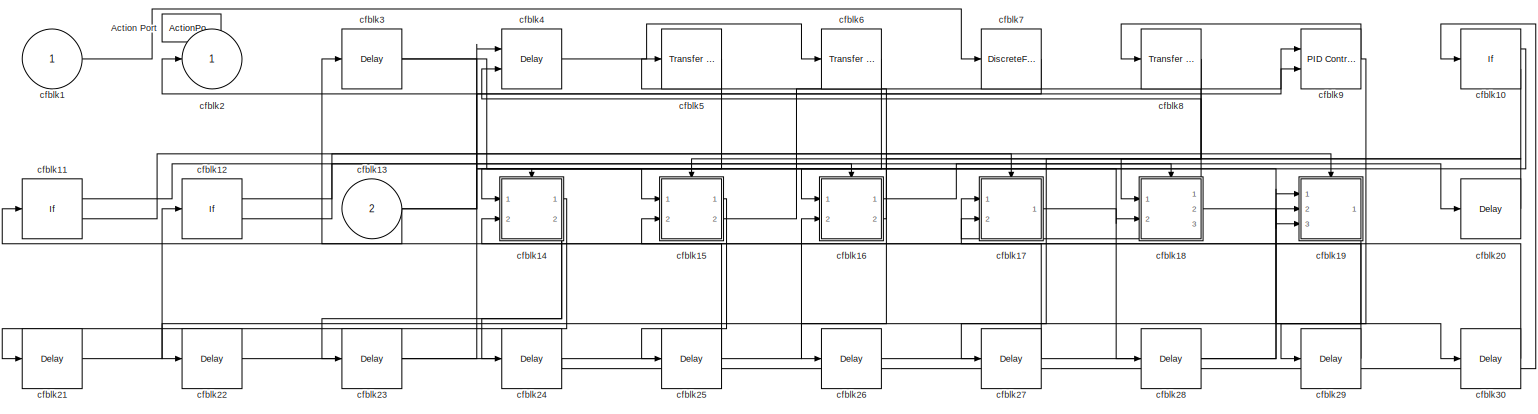
[diagram: cfblk198 - part 1/1, most of the canvas]
BLOCK [SubSystem] cfblk198
  Ports = [2, 1, 0, 0, 0, 0, 0, 1]
  RequestExecContextInheritance = off
  TreatAsAtomicUnit = on
BLOCK [ActionPort] cfblk198/Action Port
  ActionType = then
BLOCK [Inport] cfblk198/cfblk1
  IconDisplay = Port number
BLOCK [If] cfblk198/cfblk10
  Ports = [1, 2]
  SampleTime = 1
BLOCK [If] cfblk198/cfblk11
  Ports = [1, 2]
  SampleTime = 1
BLOCK [If] cfblk198/cfblk12
  Ports = [1, 2]
  SampleTime = 1
BLOCK [Inport] cfblk198/cfblk13
  IconDisplay = Port number
  Port = 2
BLOCK [SubSystem] cfblk198/cfblk14
  Ports = [2, 2, 0, 0, 0, 0, 0, 1]
  RequestExecContextInheritance = off
  TreatAsAtomicUnit = on
BLOCK [ActionPort] cfblk198/cfblk14/Action Port
  ActionType = then
BLOCK [Inport] cfblk198/cfblk14/cfblk1
  IconDisplay = Port number
BLOCK [Inport] cfblk198/cfblk14/cfblk10
  IconDisplay = Port number
  Port = 2
BLOCK [Outport] cfblk198/cfblk14/cfblk11
  IconDisplay = Port number
  Port = 2
BLOCK [Outport] cfblk198/cfblk14/cfblk2
  IconDisplay = Port number
BLOCK [DiscreteFilter] cfblk198/cfblk14/cfblk3
  InputPortMap = u0
  Ports = [1, 1]
BLOCK [Reference] cfblk198/cfblk14/cfblk4  REF=simulink/Discrete/Transfer Fcn
First Order
  Ports = [1, 1]
  SourceBlock = simulink/Discrete/Transfer Fcn\nFirst Order
  SourceProductBaseCode = SL
  SourceProductName = Simulink
  SourceType = First Order Transfer Fcn
BLOCK [Reference] cfblk198/cfblk14/cfblk5  REF=simulink/Discrete/Tapped Delay
  Ports = [1, 1]
  SourceBlock = simulink/Discrete/Tapped Delay
  SourceProductBaseCode = SL
  SourceProductName = Simulink
  SourceType = Tapped Delay Line
BLOCK [DiscreteIntegrator] cfblk198/cfblk14/cfblk6
  ICPrevOutput = DiscIntNeverNeededParam
  ICPrevScaledInput = DiscIntNeverNeededParam
  InitialConditionSetting = Auto
  Ports = [1, 1]
  SampleTime = -1
BLOCK [DiscreteFir] cfblk198/cfblk14/cfblk7
  InputPortMap = u0
  OutputPortMap = o0
  Ports = [1, 1]
BLOCK [DiscreteZeroPole] cfblk198/cfblk14/cfblk8
  Gain = 1
  Poles = [0 0.5]
  SampleTime = -1
BLOCK [Reference] cfblk198/cfblk14/cfblk9  REF=simulink/Discrete/Tapped Delay
  Ports = [1, 1]
  SourceBlock = simulink/Discrete/Tapped Delay
  SourceProductBaseCode = SL
  SourceProductName = Simulink
  SourceType = Tapped Delay Line
BLOCK [SubSystem] cfblk198/cfblk15
  Ports = [2, 2, 0, 0, 0, 0, 0, 1]
  RequestExecContextInheritance = off
  TreatAsAtomicUnit = on
BLOCK [ActionPort] cfblk198/cfblk15/Action Port
  ActionType = else
BLOCK [Inport] cfblk198/cfblk15/cfblk1
  IconDisplay = Port number
BLOCK [Outport] cfblk198/cfblk15/cfblk2
  IconDisplay = Port number
BLOCK [Reference] cfblk198/cfblk15/cfblk3  REF=simulink/Discrete/Transfer Fcn
First Order
  Ports = [1, 1]
  SourceBlock = simulink/Discrete/Transfer Fcn\nFirst Order
  SourceProductBaseCode = SL
  SourceProductName = Simulink
  SourceType = First Order Transfer Fcn
BLOCK [Delay] cfblk198/cfblk15/cfblk4
  DelayLengthSource = Input port
  InputPortMap = u0,p1
  Ports = [2, 1]
BLOCK [Reference] cfblk198/cfblk15/cfblk5  REF=simulink/Discrete/Transfer Fcn
First Order
  Ports = [1, 1]
  SourceBlock = simulink/Discrete/Transfer Fcn\nFirst Order
  SourceProductBaseCode = SL
  SourceProductName = Simulink
  SourceType = First Order Transfer Fcn
BLOCK [Inport] cfblk198/cfblk15/cfblk6
  IconDisplay = Port number
  Port = 2
BLOCK [Outport] cfblk198/cfblk15/cfblk7
  IconDisplay = Port number
  Port = 2
BLOCK [SubSystem] cfblk198/cfblk16
  Ports = [2, 2, 0, 0, 0, 0, 0, 1]
  RequestExecContextInheritance = off
  TreatAsAtomicUnit = on
BLOCK [ActionPort] cfblk198/cfblk16/Action Port
  ActionType = then
BLOCK [Inport] cfblk198/cfblk16/cfblk1
  IconDisplay = Port number
BLOCK [DiscreteTransferFcn] cfblk198/cfblk16/cfblk10
  InputPortMap = u0
  Ports = [1, 1]
BLOCK [Reference] cfblk198/cfblk16/cfblk11  REF=simulink/Discrete/Tapped Delay
  Ports = [1, 1]
  SourceBlock = simulink/Discrete/Tapped Delay
  SourceProductBaseCode = SL
  SourceProductName = Simulink
  SourceType = Tapped Delay Line
BLOCK [Reference] cfblk198/cfblk16/cfblk12  REF=simulink/Discrete/Transfer Fcn
First Order
  Ports = [1, 1]
  SourceBlock = simulink/Discrete/Transfer Fcn\nFirst Order
  SourceProductBaseCode = SL
  SourceProductName = Simulink
  SourceType = First Order Transfer Fcn
BLOCK [DiscreteFilter] cfblk198/cfblk16/cfblk13
  InputPortMap = u0
  Ports = [1, 1]
BLOCK [Inport] cfblk198/cfblk16/cfblk14
  IconDisplay = Port number
  Port = 2
BLOCK [Outport] cfblk198/cfblk16/cfblk15
  IconDisplay = Port number
  Port = 2
BLOCK [Delay] cfblk198/cfblk16/cfblk16
  InputPortMap = u0
  Ports = [1, 1]
BLOCK [Delay] cfblk198/cfblk16/cfblk17
  InputPortMap = u0
  Ports = [1, 1]
BLOCK [Outport] cfblk198/cfblk16/cfblk2
  IconDisplay = Port number
BLOCK [Reference] cfblk198/cfblk16/cfblk3  REF=simulink/Discrete/Transfer Fcn
Real Zero
  Ports = [1, 1]
  SourceBlock = simulink/Discrete/Transfer Fcn\nReal Zero
  SourceProductBaseCode = SL
  SourceProductName = Simulink
  SourceType = Transfer Fcn Real Zero
BLOCK [Delay] cfblk198/cfblk16/cfblk4
  DelayLengthSource = Input port
  InputPortMap = u0,p1
  Ports = [2, 1]
BLOCK [DiscreteZeroPole] cfblk198/cfblk16/cfblk5
  Gain = 1
  Poles = [0 0.5]
  SampleTime = -1
BLOCK [Reference] cfblk198/cfblk16/cfblk6  REF=simulink/Continuous/PID Controller
  Ports = [1, 1]
  SourceBlock = simulink/Continuous/PID Controller
  SourceProductBaseCode = SL
  SourceProductName = Simulink
  SourceType = PID 1dof
BLOCK [DiscreteTransferFcn] cfblk198/cfblk16/cfblk7
  InputPortMap = u0
  Ports = [1, 1]
BLOCK [DiscreteFir] cfblk198/cfblk16/cfblk8
  InputPortMap = u0
  OutputPortMap = o0
  Ports = [1, 1]
BLOCK [DiscreteTransferFcn] cfblk198/cfblk16/cfblk9
  InputPortMap = u0
  Ports = [1, 1]
BLOCK [SubSystem] cfblk198/cfblk17
  Ports = [2, 1, 0, 0, 0, 0, 0, 1]
  RequestExecContextInheritance = off
  TreatAsAtomicUnit = on
BLOCK [ActionPort] cfblk198/cfblk17/Action Port
  ActionType = else
BLOCK [Inport] cfblk198/cfblk17/cfblk1
  IconDisplay = Port number
BLOCK [Inport] cfblk198/cfblk17/cfblk10
  IconDisplay = Port number
  Port = 2
BLOCK [Outport] cfblk198/cfblk17/cfblk2
  IconDisplay = Port number
BLOCK [Delay] cfblk198/cfblk17/cfblk3
  InputPortMap = u0
  Ports = [1, 1]
BLOCK [DiscreteFilter] cfblk198/cfblk17/cfblk4
  InputPortMap = u0
  Ports = [1, 1]
BLOCK [Reference] cfblk198/cfblk17/cfblk5  REF=simulink/Discrete/Transfer Fcn
Real Zero
  Ports = [1, 1]
  SourceBlock = simulink/Discrete/Transfer Fcn\nReal Zero
  SourceProductBaseCode = SL
  SourceProductName = Simulink
  SourceType = Transfer Fcn Real Zero
BLOCK [DiscreteZeroPole] cfblk198/cfblk17/cfblk6
  Gain = 1
  Poles = [0 0.5]
  SampleTime = -1
BLOCK [DiscreteIntegrator] cfblk198/cfblk17/cfblk7
  ICPrevOutput = DiscIntNeverNeededParam
  ICPrevScaledInput = DiscIntNeverNeededParam
  InitialConditionSetting = Auto
  Ports = [1, 1]
  SampleTime = -1
BLOCK [UnitDelay] cfblk198/cfblk17/cfblk8
  InputProcessing = Elements as channels (sample based)
  SampleTime = -1
BLOCK [DiscreteStateSpace] cfblk198/cfblk17/cfblk9
  SampleTime = -1
BLOCK [SubSystem] cfblk198/cfblk18
  Ports = [2, 3, 0, 0, 0, 0, 0, 1]
  RequestExecContextInheritance = off
  TreatAsAtomicUnit = on
BLOCK [ActionPort] cfblk198/cfblk18/Action Port
  ActionType = then
BLOCK [Inport] cfblk198/cfblk18/cfblk1
  IconDisplay = Port number
BLOCK [Delay] cfblk198/cfblk18/cfblk10
  InputPortMap = u0
  Ports = [1, 1]
BLOCK [Reference] cfblk198/cfblk18/cfblk11  REF=simulink/Discrete/Transfer Fcn
Lead or Lag
  Ports = [1, 1]
  SourceBlock = simulink/Discrete/Transfer Fcn\nLead or Lag
  SourceProductBaseCode = SL
  SourceProductName = Simulink
  SourceType = Lead or Lag Compensator
BLOCK [Reference] cfblk198/cfblk18/cfblk12  REF=simulink/Continuous/PID Controller
  Ports = [1, 1]
  SourceBlock = simulink/Continuous/PID Controller
  SourceProductBaseCode = SL
  SourceProductName = Simulink
  SourceType = PID 1dof
BLOCK [DiscreteZeroPole] cfblk198/cfblk18/cfblk13
  Gain = 1
  Poles = [0 0.5]
  SampleTime = -1
BLOCK [Inport] cfblk198/cfblk18/cfblk14
  IconDisplay = Port number
  Port = 2
BLOCK [Outport] cfblk198/cfblk18/cfblk15
  IconDisplay = Port number
  Port = 2
BLOCK [Outport] cfblk198/cfblk18/cfblk16
  IconDisplay = Port number
  Port = 3
BLOCK [Delay] cfblk198/cfblk18/cfblk17
  InputPortMap = u0
  Ports = [1, 1]
BLOCK [Outport] cfblk198/cfblk18/cfblk2
  IconDisplay = Port number
BLOCK [Delay] cfblk198/cfblk18/cfblk3
  InputPortMap = u0
  Ports = [1, 1]
BLOCK [Reference] cfblk198/cfblk18/cfblk4  REF=simulink/Discrete/Difference
  Ports = [1, 1]
  SourceBlock = simulink/Discrete/Difference
  SourceProductBaseCode = SL
  SourceProductName = Simulink
  SourceType = Difference
BLOCK [UnitDelay] cfblk198/cfblk18/cfblk5
  InputProcessing = Elements as channels (sample based)
  SampleTime = -1
BLOCK [DiscreteStateSpace] cfblk198/cfblk18/cfblk6
  SampleTime = -1
BLOCK [Delay] cfblk198/cfblk18/cfblk7
  DelayLengthSource = Input port
  InputPortMap = u0,p1
  Ports = [2, 1]
BLOCK [DiscreteTransferFcn] cfblk198/cfblk18/cfblk8
  InputPortMap = u0
  Ports = [1, 1]
BLOCK [DiscreteIntegrator] cfblk198/cfblk18/cfblk9
  ICPrevOutput = DiscIntNeverNeededParam
  ICPrevScaledInput = DiscIntNeverNeededParam
  InitialConditionSetting = Auto
  Ports = [1, 1]
  SampleTime = -1
BLOCK [SubSystem] cfblk198/cfblk19
  Ports = [3, 1, 0, 0, 0, 0, 0, 1]
  RequestExecContextInheritance = off
  TreatAsAtomicUnit = on
BLOCK [ActionPort] cfblk198/cfblk19/Action Port
  ActionType = else
BLOCK [Inport] cfblk198/cfblk19/cfblk1
  IconDisplay = Port number
BLOCK [Inport] cfblk198/cfblk19/cfblk10
  IconDisplay = Port number
  Port = 3
BLOCK [Outport] cfblk198/cfblk19/cfblk2
  IconDisplay = Port number
BLOCK [Reference] cfblk198/cfblk19/cfblk3  REF=simulink/Discrete/Difference
  Ports = [1, 1]
  SourceBlock = simulink/Discrete/Difference
  SourceProductBaseCode = SL
  SourceProductName = Simulink
  SourceType = Difference
BLOCK [Reference] cfblk198/cfblk19/cfblk4  REF=simulink/Continuous/PID Controller
  Ports = [1, 1]
  SourceBlock = simulink/Continuous/PID Controller
  SourceProductBaseCode = SL
  SourceProductName = Simulink
  SourceType = PID 1dof
BLOCK [Reference] cfblk198/cfblk19/cfblk5  REF=simulink/Discrete/Transfer Fcn
First Order
  Ports = [1, 1]
  SourceBlock = simulink/Discrete/Transfer Fcn\nFirst Order
  SourceProductBaseCode = SL
  SourceProductName = Simulink
  SourceType = First Order Transfer Fcn
BLOCK [Reference] cfblk198/cfblk19/cfblk6  REF=simulink/Discrete/Transfer Fcn
First Order
  Ports = [1, 1]
  SourceBlock = simulink/Discrete/Transfer Fcn\nFirst Order
  SourceProductBaseCode = SL
  SourceProductName = Simulink
  SourceType = First Order Transfer Fcn
BLOCK [Reference] cfblk198/cfblk19/cfblk7  REF=simulink/Continuous/PID Controller
  Ports = [1, 1]
  SourceBlock = simulink/Continuous/PID Controller
  SourceProductBaseCode = SL
  SourceProductName = Simulink
  SourceType = PID 1dof
BLOCK [Delay] cfblk198/cfblk19/cfblk8
  InputPortMap = u0
  Ports = [1, 1]
BLOCK [Inport] cfblk198/cfblk19/cfblk9
  IconDisplay = Port number
  Port = 2
BLOCK [Outport] cfblk198/cfblk2
  IconDisplay = Port number
BLOCK [Delay] cfblk198/cfblk20
  InputPortMap = u0
  Ports = [1, 1]
BLOCK [Delay] cfblk198/cfblk21
  InputPortMap = u0
  Ports = [1, 1]
BLOCK [Delay] cfblk198/cfblk22
  InputPortMap = u0
  Ports = [1, 1]
BLOCK [Delay] cfblk198/cfblk23
  InputPortMap = u0
  Ports = [1, 1]
BLOCK [Delay] cfblk198/cfblk24
  InputPortMap = u0
  Ports = [1, 1]
BLOCK [Delay] cfblk198/cfblk25
  InputPortMap = u0
  Ports = [1, 1]
BLOCK [Delay] cfblk198/cfblk26
  InputPortMap = u0
  Ports = [1, 1]
BLOCK [Delay] cfblk198/cfblk27
  InputPortMap = u0
  Ports = [1, 1]
BLOCK [Delay] cfblk198/cfblk28
  InputPortMap = u0
  Ports = [1, 1]
BLOCK [Delay] cfblk198/cfblk29
  InputPortMap = u0
  Ports = [1, 1]
BLOCK [Delay] cfblk198/cfblk3
  InputPortMap = u0
  Ports = [1, 1]
BLOCK [Delay] cfblk198/cfblk30
  InputPortMap = u0
  Ports = [1, 1]
BLOCK [Delay] cfblk198/cfblk4
  InputPortMap = u0,e6
  Ports = [2, 1]
  ShowEnablePort = on
BLOCK [Reference] cfblk198/cfblk5  REF=simulink/Discrete/Transfer Fcn
Real Zero
  Ports = [1, 1]
  SourceBlock = simulink/Discrete/Transfer Fcn\nReal Zero
  SourceProductBaseCode = SL
  SourceProductName = Simulink
  SourceType = Transfer Fcn Real Zero
BLOCK [Reference] cfblk198/cfblk6  REF=simulink/Discrete/Transfer Fcn
First Order
  Ports = [1, 1]
  SourceBlock = simulink/Discrete/Transfer Fcn\nFirst Order
  SourceProductBaseCode = SL
  SourceProductName = Simulink
  SourceType = First Order Transfer Fcn
BLOCK [DiscreteFir] cfblk198/cfblk7
  InputPortMap = u0
  OutputPortMap = o0
  Ports = [1, 1]
BLOCK [Reference] cfblk198/cfblk8  REF=simulink/Discrete/Transfer Fcn
Lead or Lag
  Ports = [1, 1]
  SourceBlock = simulink/Discrete/Transfer Fcn\nLead or Lag
  SourceProductBaseCode = SL
  SourceProductName = Simulink
  SourceType = Lead or Lag Compensator
BLOCK [Reference] cfblk198/cfblk9  REF=simulink/Continuous/PID Controller (2DOF)
  Ports = [2, 1]
  SourceBlock = simulink/Continuous/PID Controller (2DOF)
  SourceProductBaseCode = SL
  SourceProductName = Simulink
  SourceType = PID 2dof
BLOCK [SubSystem] cfblk199
  Ports = [1, 2, 0, 0, 0, 0, 0, 1]
  RequestExecContextInheritance = off
  TreatAsAtomicUnit = on
BLOCK [ActionPort] cfblk199/Action Port
  ActionType = else
BLOCK [Inport] cfblk199/cfblk1
  IconDisplay = Port number
BLOCK [If] cfblk199/cfblk10
  Ports = [1, 2]
  SampleTime = 1
BLOCK [Outport] cfblk199/cfblk11
  IconDisplay = Port number
  Port = 2
BLOCK [SubSystem] cfblk199/cfblk12
  Ports = [1, 3, 0, 0, 0, 0, 0, 1]
  RequestExecContextInheritance = off
  TreatAsAtomicUnit = on
BLOCK [ActionPort] cfblk199/cfblk12/Action Port
  ActionType = then
BLOCK [Inport] cfblk199/cfblk12/cfblk1
  IconDisplay = Port number
BLOCK [Outport] cfblk199/cfblk12/cfblk10
  IconDisplay = Port number
  Port = 3
BLOCK [Delay] cfblk199/cfblk12/cfblk11
  InputPortMap = u0
  Ports = [1, 1]
BLOCK [Outport] cfblk199/cfblk12/cfblk2
  IconDisplay = Port number
BLOCK [Reference] cfblk199/cfblk12/cfblk3  REF=simulink/Discrete/Transfer Fcn
Lead or Lag
  Ports = [1, 1]
  SourceBlock = simulink/Discrete/Transfer Fcn\nLead or Lag
  SourceProductBaseCode = SL
  SourceProductName = Simulink
  SourceType = Lead or Lag Compensator
BLOCK [Reference] cfblk199/cfblk12/cfblk4  REF=simulink/Continuous/PID Controller (2DOF)
  Ports = [2, 1]
  SourceBlock = simulink/Continuous/PID Controller (2DOF)
  SourceProductBaseCode = SL
  SourceProductName = Simulink
  SourceType = PID 2dof
BLOCK [DiscreteTransferFcn] cfblk199/cfblk12/cfblk5
  InputPortMap = u0
  Ports = [1, 1]
BLOCK [Delay] cfblk199/cfblk12/cfblk6
  InputPortMap = u0,e6
  Ports = [2, 1]
  ShowEnablePort = on
BLOCK [Reference] cfblk199/cfblk12/cfblk7  REF=simulink/Discrete/Transfer Fcn
Lead or Lag
  Ports = [1, 1]
  SourceBlock = simulink/Discrete/Transfer Fcn\nLead or Lag
  SourceProductBaseCode = SL
  SourceProductName = Simulink
  SourceType = Lead or Lag Compensator
BLOCK [DiscreteIntegrator] cfblk199/cfblk12/cfblk8
  ICPrevOutput = DiscIntNeverNeededParam
  ICPrevScaledInput = DiscIntNeverNeededParam
  InitialConditionSetting = Auto
  Ports = [1, 1]
  SampleTime = -1
BLOCK [Outport] cfblk199/cfblk12/cfblk9
  IconDisplay = Port number
  Port = 2
BLOCK [SubSystem] cfblk199/cfblk13
  Ports = [3, 5, 0, 0, 0, 0, 0, 1]
  RequestExecContextInheritance = off
  TreatAsAtomicUnit = on
BLOCK [ActionPort] cfblk199/cfblk13/Action Port
  ActionType = else
BLOCK [Inport] cfblk199/cfblk13/cfblk1
  IconDisplay = Port number
BLOCK [Outport] cfblk199/cfblk13/cfblk10
  IconDisplay = Port number
  Port = 5
BLOCK [Outport] cfblk199/cfblk13/cfblk2
  IconDisplay = Port number
BLOCK [DiscreteFilter] cfblk199/cfblk13/cfblk3
  InputPortMap = u0
  Ports = [1, 1]
BLOCK [Reference] cfblk199/cfblk13/cfblk4  REF=simulink/Continuous/PID Controller
  Ports = [1, 1]
  SourceBlock = simulink/Continuous/PID Controller
  SourceProductBaseCode = SL
  SourceProductName = Simulink
  SourceType = PID 1dof
BLOCK [Inport] cfblk199/cfblk13/cfblk5
  IconDisplay = Port number
  Port = 2
BLOCK [Inport] cfblk199/cfblk13/cfblk6
  IconDisplay = Port number
  Port = 3
BLOCK [Outport] cfblk199/cfblk13/cfblk7
  IconDisplay = Port number
  Port = 2
BLOCK [Outport] cfblk199/cfblk13/cfblk8
  IconDisplay = Port number
  Port = 3
BLOCK [Outport] cfblk199/cfblk13/cfblk9
  IconDisplay = Port number
  Port = 4
BLOCK [SubSystem] cfblk199/cfblk14
  Ports = [3, 2, 0, 0, 0, 0, 0, 1]
  RequestExecContextInheritance = off
  TreatAsAtomicUnit = on
BLOCK [ActionPort] cfblk199/cfblk14/Action Port
  ActionType = then
BLOCK [Inport] cfblk199/cfblk14/cfblk1
  IconDisplay = Port number
BLOCK [Outport] cfblk199/cfblk14/cfblk2
  IconDisplay = Port number
BLOCK [Reference] cfblk199/cfblk14/cfblk3  REF=simulink/Discrete/Transfer Fcn
First Order
  Ports = [1, 1]
  SourceBlock = simulink/Discrete/Transfer Fcn\nFirst Order
  SourceProductBaseCode = SL
  SourceProductName = Simulink
  SourceType = First Order Transfer Fcn
BLOCK [DiscreteZeroPole] cfblk199/cfblk14/cfblk4
  Gain = 1
  Poles = [0 0.5]
  SampleTime = -1
BLOCK [Inport] cfblk199/cfblk14/cfblk5
  IconDisplay = Port number
  Port = 2
BLOCK [Inport] cfblk199/cfblk14/cfblk6
  IconDisplay = Port number
  Port = 3
BLOCK [Outport] cfblk199/cfblk14/cfblk7
  IconDisplay = Port number
  Port = 2
BLOCK [SubSystem] cfblk199/cfblk15
  Ports = [4, 4, 0, 0, 0, 0, 0, 1]
  RequestExecContextInheritance = off
  TreatAsAtomicUnit = on
BLOCK [ActionPort] cfblk199/cfblk15/Action Port
  ActionType = else
BLOCK [Inport] cfblk199/cfblk15/cfblk1
  IconDisplay = Port number
BLOCK [Inport] cfblk199/cfblk15/cfblk10
  IconDisplay = Port number
  Port = 3
BLOCK [Inport] cfblk199/cfblk15/cfblk11
  IconDisplay = Port number
  Port = 4
BLOCK [Outport] cfblk199/cfblk15/cfblk12
  IconDisplay = Port number
  Port = 2
BLOCK [Outport] cfblk199/cfblk15/cfblk13
  IconDisplay = Port number
  Port = 3
BLOCK [Outport] cfblk199/cfblk15/cfblk14
  IconDisplay = Port number
  Port = 4
BLOCK [Outport] cfblk199/cfblk15/cfblk2
  IconDisplay = Port number
BLOCK [DiscreteIntegrator] cfblk199/cfblk15/cfblk3
  ICPrevOutput = DiscIntNeverNeededParam
  ICPrevScaledInput = DiscIntNeverNeededParam
  InitialConditionSetting = Auto
  Ports = [1, 1]
  SampleTime = -1
BLOCK [Reference] cfblk199/cfblk15/cfblk4  REF=simulink/Continuous/PID Controller (2DOF)
  Ports = [2, 1]
  SourceBlock = simulink/Continuous/PID Controller (2DOF)
  SourceProductBaseCode = SL
  SourceProductName = Simulink
  SourceType = PID 2dof
BLOCK [Reference] cfblk199/cfblk15/cfblk5  REF=simulink/Discrete/Transfer Fcn
Real Zero
  Ports = [1, 1]
  SourceBlock = simulink/Discrete/Transfer Fcn\nReal Zero
  SourceProductBaseCode = SL
  SourceProductName = Simulink
  SourceType = Transfer Fcn Real Zero
BLOCK [DiscreteFilter] cfblk199/cfblk15/cfblk6
  InputPortMap = u0
  Ports = [1, 1]
BLOCK [Reference] cfblk199/cfblk15/cfblk7  REF=simulink/Continuous/PID Controller
  Ports = [1, 1]
  SourceBlock = simulink/Continuous/PID Controller
  SourceProductBaseCode = SL
  SourceProductName = Simulink
  SourceType = PID 1dof
BLOCK [Reference] cfblk199/cfblk15/cfblk8  REF=simulink/Discrete/Difference
  Ports = [1, 1]
  SourceBlock = simulink/Discrete/Difference
  SourceProductBaseCode = SL
  SourceProductName = Simulink
  SourceType = Difference
BLOCK [Inport] cfblk199/cfblk15/cfblk9
  IconDisplay = Port number
  Port = 2
BLOCK [Delay] cfblk199/cfblk16
  InputPortMap = u0
  Ports = [1, 1]
BLOCK [Delay] cfblk199/cfblk17
  InputPortMap = u0
  Ports = [1, 1]
BLOCK [Delay] cfblk199/cfblk18
  InputPortMap = u0
  Ports = [1, 1]
BLOCK [Delay] cfblk199/cfblk19
  InputPortMap = u0
  Ports = [1, 1]
BLOCK [Outport] cfblk199/cfblk2
  IconDisplay = Port number
BLOCK [Delay] cfblk199/cfblk20
  InputPortMap = u0
  Ports = [1, 1]
BLOCK [Delay] cfblk199/cfblk21
  InputPortMap = u0
  Ports = [1, 1]
BLOCK [Delay] cfblk199/cfblk22
  InputPortMap = u0
  Ports = [1, 1]
BLOCK [Delay] cfblk199/cfblk23
  InputPortMap = u0
  Ports = [1, 1]
BLOCK [Delay] cfblk199/cfblk24
  InputPortMap = u0
  Ports = [1, 1]
BLOCK [Delay] cfblk199/cfblk25
  InputPortMap = u0
  Ports = [1, 1]
BLOCK [Delay] cfblk199/cfblk26
  InputPortMap = u0
  Ports = [1, 1]
BLOCK [Delay] cfblk199/cfblk3
  DelayLengthSource = Input port
  InputPortMap = u0,p1
  Ports = [2, 1]
BLOCK [Reference] cfblk199/cfblk4  REF=simulink/Continuous/PID Controller
  Ports = [1, 1]
  SourceBlock = simulink/Continuous/PID Controller
  SourceProductBaseCode = SL
  SourceProductName = Simulink
  SourceType = PID 1dof
BLOCK [DiscreteFir] cfblk199/cfblk5
  InputPortMap = u0
  OutputPortMap = o0
  Ports = [1, 1]
BLOCK [DiscreteTransferFcn] cfblk199/cfblk6
  InputPortMap = u0
  Ports = [1, 1]
BLOCK [UnitDelay] cfblk199/cfblk7
  InputProcessing = Elements as channels (sample based)
  SampleTime = -1
BLOCK [Reference] cfblk199/cfblk8  REF=simulink/Discrete/Tapped Delay
  Ports = [1, 1]
  SourceBlock = simulink/Discrete/Tapped Delay
  SourceProductBaseCode = SL
  SourceProductName = Simulink
  SourceType = Tapped Delay Line
BLOCK [If] cfblk199/cfblk9
  Ports = [1, 2]
  SampleTime = 1
BLOCK [DiscreteIntegrator] cfblk2
  ICPrevOutput = DiscIntNeverNeededParam
  ICPrevScaledInput = DiscIntNeverNeededParam
  InitialConditionSetting = Auto
  Ports = [1, 1]
BLOCK [Reference] cfblk20  REF=simulink/Discrete/Transfer Fcn
First Order
  Ports = [1, 1]
  SourceBlock = simulink/Discrete/Transfer Fcn\nFirst Order
  SourceProductBaseCode = SL
  SourceProductName = Simulink
  SourceType = First Order Transfer Fcn
BLOCK [SubSystem] cfblk200
  Ports = [1, 1, 0, 0, 0, 0, 0, 1]
  RequestExecContextInheritance = off
  TreatAsAtomicUnit = on
BLOCK [ActionPort] cfblk200/Action Port
  ActionType = then
BLOCK [Inport] cfblk200/cfblk1
  IconDisplay = Port number
BLOCK [If] cfblk200/cfblk10
  Ports = [1, 2]
  SampleTime = 1
BLOCK [SubSystem] cfblk200/cfblk11
  Ports = [1, 1, 0, 0, 0, 0, 0, 1]
  RequestExecContextInheritance = off
  TreatAsAtomicUnit = on
BLOCK [ActionPort] cfblk200/cfblk11/Action Port
  ActionType = then
BLOCK [Inport] cfblk200/cfblk11/cfblk1
  IconDisplay = Port number
BLOCK [Reference] cfblk200/cfblk11/cfblk10  REF=simulink/Discrete/Transfer Fcn
Lead or Lag
  Ports = [1, 1]
  SourceBlock = simulink/Discrete/Transfer Fcn\nLead or Lag
  SourceProductBaseCode = SL
  SourceProductName = Simulink
  SourceType = Lead or Lag Compensator
BLOCK [Reference] cfblk200/cfblk11/cfblk11  REF=simulink/Discrete/Tapped Delay
  Ports = [1, 1]
  SourceBlock = simulink/Discrete/Tapped Delay
  SourceProductBaseCode = SL
  SourceProductName = Simulink
  SourceType = Tapped Delay Line
BLOCK [Delay] cfblk200/cfblk11/cfblk12
  InputPortMap = u0
  Ports = [1, 1]
BLOCK [Outport] cfblk200/cfblk11/cfblk2
  IconDisplay = Port number
BLOCK [DiscreteIntegrator] cfblk200/cfblk11/cfblk3
  ICPrevOutput = DiscIntNeverNeededParam
  ICPrevScaledInput = DiscIntNeverNeededParam
  InitialConditionSetting = Auto
  Ports = [1, 1]
  SampleTime = -1
BLOCK [DiscreteTransferFcn] cfblk200/cfblk11/cfblk4
  InputPortMap = u0
  Ports = [1, 1]
BLOCK [Reference] cfblk200/cfblk11/cfblk5  REF=simulink/Continuous/PID Controller
  Ports = [1, 1]
  SourceBlock = simulink/Continuous/PID Controller
  SourceProductBaseCode = SL
  SourceProductName = Simulink
  SourceType = PID 1dof
BLOCK [DiscreteZeroPole] cfblk200/cfblk11/cfblk6
  Gain = 1
  Poles = [0 0.5]
  SampleTime = -1
BLOCK [Reference] cfblk200/cfblk11/cfblk7  REF=simulink/Discrete/Tapped Delay
  Ports = [1, 1]
  SourceBlock = simulink/Discrete/Tapped Delay
  SourceProductBaseCode = SL
  SourceProductName = Simulink
  SourceType = Tapped Delay Line
BLOCK [Reference] cfblk200/cfblk11/cfblk8  REF=simulink/Discrete/Transfer Fcn
First Order
  Ports = [1, 1]
  SourceBlock = simulink/Discrete/Transfer Fcn\nFirst Order
  SourceProductBaseCode = SL
  SourceProductName = Simulink
  SourceType = First Order Transfer Fcn
BLOCK [Reference] cfblk200/cfblk11/cfblk9  REF=simulink/Discrete/Transfer Fcn
Real Zero
  Ports = [1, 1]
  SourceBlock = simulink/Discrete/Transfer Fcn\nReal Zero
  SourceProductBaseCode = SL
  SourceProductName = Simulink
  SourceType = Transfer Fcn Real Zero
BLOCK [SubSystem] cfblk200/cfblk12
  Ports = [2, 1, 0, 0, 0, 0, 0, 1]
  RequestExecContextInheritance = off
  TreatAsAtomicUnit = on
BLOCK [ActionPort] cfblk200/cfblk12/Action Port
  ActionType = else
BLOCK [Inport] cfblk200/cfblk12/cfblk1
  IconDisplay = Port number
BLOCK [Delay] cfblk200/cfblk12/cfblk10
  InputPortMap = u0
  Ports = [1, 1]
BLOCK [Delay] cfblk200/cfblk12/cfblk11
  InputPortMap = u0
  Ports = [1, 1]
BLOCK [Outport] cfblk200/cfblk12/cfblk2
  IconDisplay = Port number
BLOCK [DiscreteZeroPole] cfblk200/cfblk12/cfblk3
  Gain = 1
  Poles = [0 0.5]
  SampleTime = -1
BLOCK [Reference] cfblk200/cfblk12/cfblk4  REF=simulink/Continuous/PID Controller (2DOF)
  Ports = [2, 1]
  SourceBlock = simulink/Continuous/PID Controller (2DOF)
  SourceProductBaseCode = SL
  SourceProductName = Simulink
  SourceType = PID 2dof
BLOCK [DiscreteFir] cfblk200/cfblk12/cfblk5
  InputPortMap = u0
  OutputPortMap = o0
  Ports = [1, 1]
BLOCK [DiscreteTransferFcn] cfblk200/cfblk12/cfblk6
  InputPortMap = u0
  Ports = [1, 1]
BLOCK [Reference] cfblk200/cfblk12/cfblk7  REF=simulink/Continuous/PID Controller (2DOF)
  Ports = [2, 1]
  SourceBlock = simulink/Continuous/PID Controller (2DOF)
  SourceProductBaseCode = SL
  SourceProductName = Simulink
  SourceType = PID 2dof
BLOCK [UnitDelay] cfblk200/cfblk12/cfblk8
  InputProcessing = Elements as channels (sample based)
  SampleTime = -1
BLOCK [Inport] cfblk200/cfblk12/cfblk9
  IconDisplay = Port number
  Port = 2
BLOCK [Delay] cfblk200/cfblk13
  InputPortMap = u0
  Ports = [1, 1]
BLOCK [Delay] cfblk200/cfblk14
  InputPortMap = u0
  Ports = [1, 1]
BLOCK [Outport] cfblk200/cfblk2
  IconDisplay = Port number
BLOCK [Reference] cfblk200/cfblk3  REF=simulink/Discrete/Tapped Delay
  Ports = [1, 1]
  SourceBlock = simulink/Discrete/Tapped Delay
  SourceProductBaseCode = SL
  SourceProductName = Simulink
  SourceType = Tapped Delay Line
BLOCK [Reference] cfblk200/cfblk4  REF=simulink/Discrete/Difference
  Ports = [1, 1]
  SourceBlock = simulink/Discrete/Difference
  SourceProductBaseCode = SL
  SourceProductName = Simulink
  SourceType = Difference
BLOCK [Delay] cfblk200/cfblk5
  DelayLengthSource = Input port
  InputPortMap = u0,p1
  Ports = [2, 1]
BLOCK [Delay] cfblk200/cfblk6
  InputPortMap = u0
  Ports = [1, 1]
BLOCK [UnitDelay] cfblk200/cfblk7
  InputProcessing = Elements as channels (sample based)
  SampleTime = -1
BLOCK [Reference] cfblk200/cfblk8  REF=simulink/Continuous/PID Controller (2DOF)
  Ports = [2, 1]
  SourceBlock = simulink/Continuous/PID Controller (2DOF)
  SourceProductBaseCode = SL
  SourceProductName = Simulink
  SourceType = PID 2dof
BLOCK [UnitDelay] cfblk200/cfblk9
  InputProcessing = Elements as channels (sample based)
  SampleTime = -1
BLOCK [SubSystem] cfblk201
  Ports = [1, 1, 0, 0, 0, 0, 0, 1]
  RequestExecContextInheritance = off
  TreatAsAtomicUnit = on
BLOCK [ActionPort] cfblk201/Action Port
  ActionType = else
BLOCK [Inport] cfblk201/cfblk1
  IconDisplay = Port number
BLOCK [Reference] cfblk201/cfblk10  REF=simulink/Discrete/Transfer Fcn
First Order
  Ports = [1, 1]
  SourceBlock = simulink/Discrete/Transfer Fcn\nFirst Order
  SourceProductBaseCode = SL
  SourceProductName = Simulink
  SourceType = First Order Transfer Fcn
BLOCK [DiscreteIntegrator] cfblk201/cfblk11
  ICPrevOutput = DiscIntNeverNeededParam
  ICPrevScaledInput = DiscIntNeverNeededParam
  InitialConditionSetting = Auto
  Ports = [1, 1]
  SampleTime = -1
BLOCK [DiscreteTransferFcn] cfblk201/cfblk12
  InputPortMap = u0
  Ports = [1, 1]
BLOCK [Reference] cfblk201/cfblk13  REF=simulink/Discrete/Transfer Fcn
Real Zero
  Ports = [1, 1]
  SourceBlock = simulink/Discrete/Transfer Fcn\nReal Zero
  SourceProductBaseCode = SL
  SourceProductName = Simulink
  SourceType = Transfer Fcn Real Zero
BLOCK [DiscreteStateSpace] cfblk201/cfblk14
  SampleTime = -1
BLOCK [Delay] cfblk201/cfblk15
  InputPortMap = u0
  Ports = [1, 1]
BLOCK [Outport] cfblk201/cfblk2
  IconDisplay = Port number
BLOCK [UnitDelay] cfblk201/cfblk3
  InputProcessing = Elements as channels (sample based)
  SampleTime = -1
BLOCK [Delay] cfblk201/cfblk4
  DelayLengthSource = Input port
  InputPortMap = u0,p1
  Ports = [2, 1]
BLOCK [DiscreteFir] cfblk201/cfblk5
  InputPortMap = u0
  OutputPortMap = o0
  Ports = [1, 1]
BLOCK [DiscreteTransferFcn] cfblk201/cfblk6
  InputPortMap = u0
  Ports = [1, 1]
BLOCK [DiscreteIntegrator] cfblk201/cfblk7
  ICPrevOutput = DiscIntNeverNeededParam
  ICPrevScaledInput = DiscIntNeverNeededParam
  InitialConditionSetting = Auto
  Ports = [1, 1]
  SampleTime = -1
BLOCK [DiscreteStateSpace] cfblk201/cfblk8
  SampleTime = -1
BLOCK [Delay] cfblk201/cfblk9
  InputPortMap = u0
  Ports = [1, 1]
BLOCK [SubSystem] cfblk202
  Ports = [1, 1, 0, 0, 0, 0, 0, 1]
  RequestExecContextInheritance = off
  TreatAsAtomicUnit = on
BLOCK [ActionPort] cfblk202/Action Port
  ActionType = then
BLOCK [Inport] cfblk202/cfblk1
  IconDisplay = Port number
BLOCK [DiscreteStateSpace] cfblk202/cfblk10
  SampleTime = -1
BLOCK [DiscreteTransferFcn] cfblk202/cfblk11
  InputPortMap = u0
  Ports = [1, 1]
BLOCK [Delay] cfblk202/cfblk12
  InputPortMap = u0
  Ports = [1, 1]
BLOCK [Delay] cfblk202/cfblk13
  InputPortMap = u0
  Ports = [1, 1]
BLOCK [Outport] cfblk202/cfblk2
  IconDisplay = Port number
BLOCK [Reference] cfblk202/cfblk3  REF=simulink/Discrete/Tapped Delay
  Ports = [1, 1]
  SourceBlock = simulink/Discrete/Tapped Delay
  SourceProductBaseCode = SL
  SourceProductName = Simulink
  SourceType = Tapped Delay Line
BLOCK [Reference] cfblk202/cfblk4  REF=simulink/Discrete/Transfer Fcn
Lead or Lag
  Ports = [1, 1]
  SourceBlock = simulink/Discrete/Transfer Fcn\nLead or Lag
  SourceProductBaseCode = SL
  SourceProductName = Simulink
  SourceType = Lead or Lag Compensator
BLOCK [Reference] cfblk202/cfblk5  REF=simulink/Continuous/PID Controller (2DOF)
  Ports = [2, 1]
  SourceBlock = simulink/Continuous/PID Controller (2DOF)
  SourceProductBaseCode = SL
  SourceProductName = Simulink
  SourceType = PID 2dof
BLOCK [UnitDelay] cfblk202/cfblk6
  InputProcessing = Elements as channels (sample based)
  SampleTime = -1
BLOCK [DiscreteFir] cfblk202/cfblk7
  InputPortMap = u0
  OutputPortMap = o0
  Ports = [1, 1]
BLOCK [Delay] cfblk202/cfblk8
  DelayLengthSource = Input port
  InputPortMap = u0,p1
  Ports = [2, 1]
BLOCK [Reference] cfblk202/cfblk9  REF=simulink/Continuous/PID Controller (2DOF)
  Ports = [2, 1]
  SourceBlock = simulink/Continuous/PID Controller (2DOF)
  SourceProductBaseCode = SL
  SourceProductName = Simulink
  SourceType = PID 2dof
BLOCK [SubSystem] cfblk203
  Ports = [1, 1, 0, 0, 0, 0, 0, 1]
  RequestExecContextInheritance = off
  TreatAsAtomicUnit = on
BLOCK [ActionPort] cfblk203/Action Port
  ActionType = else
BLOCK [Inport] cfblk203/cfblk1
  IconDisplay = Port number
BLOCK [Reference] cfblk203/cfblk10  REF=simulink/Discrete/Transfer Fcn
Lead or Lag
  Ports = [1, 1]
  SourceBlock = simulink/Discrete/Transfer Fcn\nLead or Lag
  SourceProductBaseCode = SL
  SourceProductName = Simulink
  SourceType = Lead or Lag Compensator
BLOCK [If] cfblk203/cfblk11
  Ports = [1, 2]
  SampleTime = 1
BLOCK [SubSystem] cfblk203/cfblk12
  Ports = [1, 1, 0, 0, 0, 0, 0, 1]
  RequestExecContextInheritance = off
  TreatAsAtomicUnit = on
BLOCK [ActionPort] cfblk203/cfblk12/Action Port
  ActionType = then
BLOCK [Inport] cfblk203/cfblk12/cfblk1
  IconDisplay = Port number
BLOCK [Delay] cfblk203/cfblk12/cfblk10
  InputPortMap = u0
  Ports = [1, 1]
BLOCK [Delay] cfblk203/cfblk12/cfblk11
  InputPortMap = u0
  Ports = [1, 1]
BLOCK [Outport] cfblk203/cfblk12/cfblk2
  IconDisplay = Port number
BLOCK [DiscreteStateSpace] cfblk203/cfblk12/cfblk3
  SampleTime = -1
BLOCK [DiscreteFilter] cfblk203/cfblk12/cfblk4
  InputPortMap = u0
  Ports = [1, 1]
BLOCK [DiscreteStateSpace] cfblk203/cfblk12/cfblk5
  SampleTime = -1
BLOCK [DiscreteFilter] cfblk203/cfblk12/cfblk6
  InputPortMap = u0
  Ports = [1, 1]
BLOCK [Reference] cfblk203/cfblk12/cfblk7  REF=simulink/Discrete/Transfer Fcn
Real Zero
  Ports = [1, 1]
  SourceBlock = simulink/Discrete/Transfer Fcn\nReal Zero
  SourceProductBaseCode = SL
  SourceProductName = Simulink
  SourceType = Transfer Fcn Real Zero
BLOCK [Reference] cfblk203/cfblk12/cfblk8  REF=simulink/Discrete/Difference
  Ports = [1, 1]
  SourceBlock = simulink/Discrete/Difference
  SourceProductBaseCode = SL
  SourceProductName = Simulink
  SourceType = Difference
BLOCK [Delay] cfblk203/cfblk12/cfblk9
  DelayLengthSource = Input port
  InputPortMap = u0,p1
  Ports = [2, 1]
BLOCK [SubSystem] cfblk203/cfblk13
  Ports = [3, 3, 0, 0, 0, 0, 0, 1]
  RequestExecContextInheritance = off
  TreatAsAtomicUnit = on
BLOCK [ActionPort] cfblk203/cfblk13/Action Port
  ActionType = else
BLOCK [Inport] cfblk203/cfblk13/cfblk1
  IconDisplay = Port number
BLOCK [Reference] cfblk203/cfblk13/cfblk10  REF=simulink/Continuous/PID Controller
  Ports = [1, 1]
  SourceBlock = simulink/Continuous/PID Controller
  SourceProductBaseCode = SL
  SourceProductName = Simulink
  SourceType = PID 1dof
BLOCK [DiscreteFilter] cfblk203/cfblk13/cfblk11
  InputPortMap = u0
  Ports = [1, 1]
BLOCK [Inport] cfblk203/cfblk13/cfblk12
  IconDisplay = Port number
  Port = 2
BLOCK [Inport] cfblk203/cfblk13/cfblk13
  IconDisplay = Port number
  Port = 3
BLOCK [Outport] cfblk203/cfblk13/cfblk14
  IconDisplay = Port number
  Port = 2
BLOCK [Outport] cfblk203/cfblk13/cfblk15
  IconDisplay = Port number
  Port = 3
BLOCK [Outport] cfblk203/cfblk13/cfblk2
  IconDisplay = Port number
BLOCK [Delay] cfblk203/cfblk13/cfblk3
  InputPortMap = u0
  Ports = [1, 1]
BLOCK [DiscreteStateSpace] cfblk203/cfblk13/cfblk4
  SampleTime = -1
BLOCK [DiscreteZeroPole] cfblk203/cfblk13/cfblk5
  Gain = 1
  Poles = [0 0.5]
  SampleTime = -1
BLOCK [Reference] cfblk203/cfblk13/cfblk6  REF=simulink/Discrete/Transfer Fcn
Real Zero
  Ports = [1, 1]
  SourceBlock = simulink/Discrete/Transfer Fcn\nReal Zero
  SourceProductBaseCode = SL
  SourceProductName = Simulink
  SourceType = Transfer Fcn Real Zero
BLOCK [DiscreteTransferFcn] cfblk203/cfblk13/cfblk7
  InputPortMap = u0
  Ports = [1, 1]
BLOCK [DiscreteFir] cfblk203/cfblk13/cfblk8
  InputPortMap = u0
  OutputPortMap = o0
  Ports = [1, 1]
BLOCK [Reference] cfblk203/cfblk13/cfblk9  REF=simulink/Continuous/PID Controller (2DOF)
  Ports = [2, 1]
  SourceBlock = simulink/Continuous/PID Controller (2DOF)
  SourceProductBaseCode = SL
  SourceProductName = Simulink
  SourceType = PID 2dof
BLOCK [Delay] cfblk203/cfblk14
  InputPortMap = u0
  Ports = [1, 1]
BLOCK [Delay] cfblk203/cfblk15
  InputPortMap = u0
  Ports = [1, 1]
BLOCK [Delay] cfblk203/cfblk16
  InputPortMap = u0
  Ports = [1, 1]
BLOCK [Delay] cfblk203/cfblk17
  InputPortMap = u0
  Ports = [1, 1]
BLOCK [Outport] cfblk203/cfblk2
  IconDisplay = Port number
BLOCK [DiscreteIntegrator] cfblk203/cfblk3
  ICPrevOutput = DiscIntNeverNeededParam
  ICPrevScaledInput = DiscIntNeverNeededParam
  InitialConditionSetting = Auto
  Ports = [1, 1]
  SampleTime = -1
BLOCK [Delay] cfblk203/cfblk4
  InputPortMap = u0,e6
  Ports = [2, 1]
  ShowEnablePort = on
BLOCK [Reference] cfblk203/cfblk5  REF=simulink/Continuous/PID Controller
  Ports = [1, 1]
  SourceBlock = simulink/Continuous/PID Controller
  SourceProductBaseCode = SL
  SourceProductName = Simulink
  SourceType = PID 1dof
BLOCK [Delay] cfblk203/cfblk6
  InputPortMap = u0
  Ports = [1, 1]
BLOCK [Delay] cfblk203/cfblk7
  DelayLengthSource = Input port
  InputPortMap = u0,p1
  Ports = [2, 1]
BLOCK [Reference] cfblk203/cfblk8  REF=simulink/Continuous/PID Controller
  Ports = [1, 1]
  SourceBlock = simulink/Continuous/PID Controller
  SourceProductBaseCode = SL
  SourceProductName = Simulink
  SourceType = PID 1dof
BLOCK [Delay] cfblk203/cfblk9
  InputPortMap = u0,e6
  Ports = [2, 1]
  ShowEnablePort = on
BLOCK [SubSystem] cfblk204
  Ports = [2, 3, 0, 0, 0, 0, 0, 1]
  RequestExecContextInheritance = off
  TreatAsAtomicUnit = on
BLOCK [ActionPort] cfblk204/Action Port
  ActionType = then
BLOCK [Inport] cfblk204/cfblk1
  IconDisplay = Port number
BLOCK [Reference] cfblk204/cfblk10  REF=simulink/Discrete/Tapped Delay
  Ports = [1, 1]
  SourceBlock = simulink/Discrete/Tapped Delay
  SourceProductBaseCode = SL
  SourceProductName = Simulink
  SourceType = Tapped Delay Line
BLOCK [Inport] cfblk204/cfblk11
  IconDisplay = Port number
  Port = 2
BLOCK [Outport] cfblk204/cfblk12
  IconDisplay = Port number
  Port = 2
BLOCK [Outport] cfblk204/cfblk13
  IconDisplay = Port number
  Port = 3
BLOCK [Outport] cfblk204/cfblk2
  IconDisplay = Port number
BLOCK [Reference] cfblk204/cfblk3  REF=simulink/Discrete/Transfer Fcn
Real Zero
  Ports = [1, 1]
  SourceBlock = simulink/Discrete/Transfer Fcn\nReal Zero
  SourceProductBaseCode = SL
  SourceProductName = Simulink
  SourceType = Transfer Fcn Real Zero
BLOCK [Reference] cfblk204/cfblk4  REF=simulink/Discrete/Transfer Fcn
Lead or Lag
  Ports = [1, 1]
  SourceBlock = simulink/Discrete/Transfer Fcn\nLead or Lag
  SourceProductBaseCode = SL
  SourceProductName = Simulink
  SourceType = Lead or Lag Compensator
BLOCK [DiscreteZeroPole] cfblk204/cfblk5
  Gain = 1
  Poles = [0 0.5]
  SampleTime = -1
BLOCK [DiscreteZeroPole] cfblk204/cfblk6
  Gain = 1
  Poles = [0 0.5]
  SampleTime = -1
BLOCK [Reference] cfblk204/cfblk7  REF=simulink/Discrete/Difference
  Ports = [1, 1]
  SourceBlock = simulink/Discrete/Difference
  SourceProductBaseCode = SL
  SourceProductName = Simulink
  SourceType = Difference
BLOCK [Reference] cfblk204/cfblk8  REF=simulink/Discrete/Transfer Fcn
Real Zero
  Ports = [1, 1]
  SourceBlock = simulink/Discrete/Transfer Fcn\nReal Zero
  SourceProductBaseCode = SL
  SourceProductName = Simulink
  SourceType = Transfer Fcn Real Zero
BLOCK [DiscreteFilter] cfblk204/cfblk9
  InputPortMap = u0
  Ports = [1, 1]
BLOCK [SubSystem] cfblk205
  Ports = [3, 3, 0, 0, 0, 0, 0, 1]
  RequestExecContextInheritance = off
  TreatAsAtomicUnit = on
BLOCK [ActionPort] cfblk205/Action Port
  ActionType = else
BLOCK [Inport] cfblk205/cfblk1
  IconDisplay = Port number
BLOCK [Inport] cfblk205/cfblk10
  IconDisplay = Port number
  Port = 3
BLOCK [Outport] cfblk205/cfblk11
  IconDisplay = Port number
  Port = 2
BLOCK [Outport] cfblk205/cfblk12
  IconDisplay = Port number
  Port = 3
BLOCK [Delay] cfblk205/cfblk13
  InputPortMap = u0
  Ports = [1, 1]
BLOCK [Outport] cfblk205/cfblk2
  IconDisplay = Port number
BLOCK [DiscreteFir] cfblk205/cfblk3
  InputPortMap = u0
  OutputPortMap = o0
  Ports = [1, 1]
BLOCK [Reference] cfblk205/cfblk4  REF=simulink/Discrete/Transfer Fcn
Lead or Lag
  Ports = [1, 1]
  SourceBlock = simulink/Discrete/Transfer Fcn\nLead or Lag
  SourceProductBaseCode = SL
  SourceProductName = Simulink
  SourceType = Lead or Lag Compensator
BLOCK [DiscreteZeroPole] cfblk205/cfblk5
  Gain = 1
  Poles = [0 0.5]
  SampleTime = -1
BLOCK [DiscreteFilter] cfblk205/cfblk6
  InputPortMap = u0
  Ports = [1, 1]
BLOCK [Reference] cfblk205/cfblk7  REF=simulink/Continuous/PID Controller (2DOF)
  Ports = [2, 1]
  SourceBlock = simulink/Continuous/PID Controller (2DOF)
  SourceProductBaseCode = SL
  SourceProductName = Simulink
  SourceType = PID 2dof
BLOCK [DiscreteFilter] cfblk205/cfblk8
  InputPortMap = u0
  Ports = [1, 1]
BLOCK [Inport] cfblk205/cfblk9
  IconDisplay = Port number
  Port = 2
BLOCK [SubSystem] cfblk206
  Ports = [3, 4, 0, 0, 0, 0, 0, 1]
  RequestExecContextInheritance = off
  TreatAsAtomicUnit = on
BLOCK [ActionPort] cfblk206/Action Port
  ActionType = then
BLOCK [Inport] cfblk206/cfblk1
  IconDisplay = Port number
BLOCK [If] cfblk206/cfblk10
  Ports = [1, 2]
  SampleTime = 1
BLOCK [Inport] cfblk206/cfblk11
  IconDisplay = Port number
  Port = 2
BLOCK [Inport] cfblk206/cfblk12
  IconDisplay = Port number
  Port = 3
BLOCK [Outport] cfblk206/cfblk13
  IconDisplay = Port number
  Port = 2
BLOCK [Outport] cfblk206/cfblk14
  IconDisplay = Port number
  Port = 3
BLOCK [Outport] cfblk206/cfblk15
  IconDisplay = Port number
  Port = 4
BLOCK [SubSystem] cfblk206/cfblk16
  Ports = [2, 3, 0, 0, 0, 0, 0, 1]
  RequestExecContextInheritance = off
  TreatAsAtomicUnit = on
BLOCK [ActionPort] cfblk206/cfblk16/Action Port
  ActionType = then
BLOCK [Inport] cfblk206/cfblk16/cfblk1
  IconDisplay = Port number
BLOCK [Reference] cfblk206/cfblk16/cfblk10  REF=simulink/Discrete/Difference
  Ports = [1, 1]
  SourceBlock = simulink/Discrete/Difference
  SourceProductBaseCode = SL
  SourceProductName = Simulink
  SourceType = Difference
BLOCK [DiscreteFilter] cfblk206/cfblk16/cfblk11
  InputPortMap = u0
  Ports = [1, 1]
BLOCK [Inport] cfblk206/cfblk16/cfblk12
  IconDisplay = Port number
  Port = 2
BLOCK [Outport] cfblk206/cfblk16/cfblk13
  IconDisplay = Port number
  Port = 2
BLOCK [Outport] cfblk206/cfblk16/cfblk14
  IconDisplay = Port number
  Port = 3
BLOCK [Delay] cfblk206/cfblk16/cfblk15
  InputPortMap = u0
  Ports = [1, 1]
BLOCK [Outport] cfblk206/cfblk16/cfblk2
  IconDisplay = Port number
BLOCK [Reference] cfblk206/cfblk16/cfblk3  REF=simulink/Discrete/Transfer Fcn
Real Zero
  Ports = [1, 1]
  SourceBlock = simulink/Discrete/Transfer Fcn\nReal Zero
  SourceProductBaseCode = SL
  SourceProductName = Simulink
  SourceType = Transfer Fcn Real Zero
BLOCK [DiscreteIntegrator] cfblk206/cfblk16/cfblk4
  ICPrevOutput = DiscIntNeverNeededParam
  ICPrevScaledInput = DiscIntNeverNeededParam
  InitialConditionSetting = Auto
  Ports = [1, 1]
  SampleTime = -1
BLOCK [Reference] cfblk206/cfblk16/cfblk5  REF=simulink/Continuous/PID Controller
  Ports = [1, 1]
  SourceBlock = simulink/Continuous/PID Controller
  SourceProductBaseCode = SL
  SourceProductName = Simulink
  SourceType = PID 1dof
BLOCK [Reference] cfblk206/cfblk16/cfblk6  REF=simulink/Discrete/Transfer Fcn
Real Zero
  Ports = [1, 1]
  SourceBlock = simulink/Discrete/Transfer Fcn\nReal Zero
  SourceProductBaseCode = SL
  SourceProductName = Simulink
  SourceType = Transfer Fcn Real Zero
BLOCK [Delay] cfblk206/cfblk16/cfblk7
  InputPortMap = u0
  Ports = [1, 1]
BLOCK [UnitDelay] cfblk206/cfblk16/cfblk8
  InputProcessing = Elements as channels (sample based)
  SampleTime = -1
BLOCK [UnitDelay] cfblk206/cfblk16/cfblk9
  InputProcessing = Elements as channels (sample based)
  SampleTime = -1
BLOCK [SubSystem] cfblk206/cfblk17
  Ports = [2, 1, 0, 0, 0, 0, 0, 1]
  RequestExecContextInheritance = off
  TreatAsAtomicUnit = on
BLOCK [ActionPort] cfblk206/cfblk17/Action Port
  ActionType = else
BLOCK [Inport] cfblk206/cfblk17/cfblk1
  IconDisplay = Port number
BLOCK [Outport] cfblk206/cfblk17/cfblk2
  IconDisplay = Port number
BLOCK [DiscreteZeroPole] cfblk206/cfblk17/cfblk3
  Gain = 1
  Poles = [0 0.5]
  SampleTime = -1
BLOCK [Reference] cfblk206/cfblk17/cfblk4  REF=simulink/Discrete/Transfer Fcn
Real Zero
  Ports = [1, 1]
  SourceBlock = simulink/Discrete/Transfer Fcn\nReal Zero
  SourceProductBaseCode = SL
  SourceProductName = Simulink
  SourceType = Transfer Fcn Real Zero
BLOCK [DiscreteFilter] cfblk206/cfblk17/cfblk5
  InputPortMap = u0
  Ports = [1, 1]
BLOCK [DiscreteStateSpace] cfblk206/cfblk17/cfblk6
  SampleTime = -1
BLOCK [Inport] cfblk206/cfblk17/cfblk7
  IconDisplay = Port number
  Port = 2
BLOCK [Delay] cfblk206/cfblk17/cfblk8
  InputPortMap = u0
  Ports = [1, 1]
BLOCK [Delay] cfblk206/cfblk18
  InputPortMap = u0
  Ports = [1, 1]
BLOCK [Delay] cfblk206/cfblk19
  InputPortMap = u0
  Ports = [1, 1]
BLOCK [Outport] cfblk206/cfblk2
  IconDisplay = Port number
BLOCK [Delay] cfblk206/cfblk20
  InputPortMap = u0
  Ports = [1, 1]
BLOCK [Reference] cfblk206/cfblk3  REF=simulink/Discrete/Difference
  Ports = [1, 1]
  SourceBlock = simulink/Discrete/Difference
  SourceProductBaseCode = SL
  SourceProductName = Simulink
  SourceType = Difference
BLOCK [DiscreteIntegrator] cfblk206/cfblk4
  ICPrevOutput = DiscIntNeverNeededParam
  ICPrevScaledInput = DiscIntNeverNeededParam
  InitialConditionSetting = Auto
  Ports = [1, 1]
  SampleTime = -1
BLOCK [Delay] cfblk206/cfblk5
  InputPortMap = u0
  Ports = [1, 1]
BLOCK [DiscreteStateSpace] cfblk206/cfblk6
  SampleTime = -1
BLOCK [Reference] cfblk206/cfblk7  REF=simulink/Discrete/Transfer Fcn
First Order
  Ports = [1, 1]
  SourceBlock = simulink/Discrete/Transfer Fcn\nFirst Order
  SourceProductBaseCode = SL
  SourceProductName = Simulink
  SourceType = First Order Transfer Fcn
BLOCK [DiscreteTransferFcn] cfblk206/cfblk8
  InputPortMap = u0
  Ports = [1, 1]
BLOCK [DiscreteTransferFcn] cfblk206/cfblk9
  InputPortMap = u0
  Ports = [1, 1]
BLOCK [SubSystem] cfblk207
  Ports = [2, 1, 0, 0, 0, 0, 0, 1]
  RequestExecContextInheritance = off
  TreatAsAtomicUnit = on
BLOCK [ActionPort] cfblk207/Action Port
  ActionType = else
BLOCK [Inport] cfblk207/cfblk1
  IconDisplay = Port number
BLOCK [Outport] cfblk207/cfblk2
  IconDisplay = Port number
BLOCK [Reference] cfblk207/cfblk3  REF=simulink/Discrete/Transfer Fcn
Real Zero
  Ports = [1, 1]
  SourceBlock = simulink/Discrete/Transfer Fcn\nReal Zero
  SourceProductBaseCode = SL
  SourceProductName = Simulink
  SourceType = Transfer Fcn Real Zero
BLOCK [Reference] cfblk207/cfblk4  REF=simulink/Discrete/Transfer Fcn
Lead or Lag
  Ports = [1, 1]
  SourceBlock = simulink/Discrete/Transfer Fcn\nLead or Lag
  SourceProductBaseCode = SL
  SourceProductName = Simulink
  SourceType = Lead or Lag Compensator
BLOCK [DiscreteFilter] cfblk207/cfblk5
  InputPortMap = u0
  Ports = [1, 1]
BLOCK [UnitDelay] cfblk207/cfblk6
  InputProcessing = Elements as channels (sample based)
  SampleTime = -1
BLOCK [Inport] cfblk207/cfblk7
  IconDisplay = Port number
  Port = 2
BLOCK [SubSystem] cfblk208
  Ports = [2, 2, 0, 0, 0, 0, 0, 1]
  RequestExecContextInheritance = off
  TreatAsAtomicUnit = on
BLOCK [ActionPort] cfblk208/Action Port
  ActionType = then
BLOCK [Inport] cfblk208/cfblk1
  IconDisplay = Port number
BLOCK [UnitDelay] cfblk208/cfblk10
  InputProcessing = Elements as channels (sample based)
  SampleTime = -1
BLOCK [Reference] cfblk208/cfblk11  REF=simulink/Discrete/Transfer Fcn
Lead or Lag
  Ports = [1, 1]
  SourceBlock = simulink/Discrete/Transfer Fcn\nLead or Lag
  SourceProductBaseCode = SL
  SourceProductName = Simulink
  SourceType = Lead or Lag Compensator
BLOCK [Inport] cfblk208/cfblk12
  IconDisplay = Port number
  Port = 2
BLOCK [Outport] cfblk208/cfblk13
  IconDisplay = Port number
  Port = 2
BLOCK [Delay] cfblk208/cfblk14
  InputPortMap = u0
  Ports = [1, 1]
BLOCK [Delay] cfblk208/cfblk15
  InputPortMap = u0
  Ports = [1, 1]
BLOCK [Delay] cfblk208/cfblk16
  InputPortMap = u0
  Ports = [1, 1]
BLOCK [Outport] cfblk208/cfblk2
  IconDisplay = Port number
BLOCK [Reference] cfblk208/cfblk3  REF=simulink/Continuous/PID Controller (2DOF)
  Ports = [2, 1]
  SourceBlock = simulink/Continuous/PID Controller (2DOF)
  SourceProductBaseCode = SL
  SourceProductName = Simulink
  SourceType = PID 2dof
BLOCK [UnitDelay] cfblk208/cfblk4
  InputProcessing = Elements as channels (sample based)
  SampleTime = -1
BLOCK [DiscreteIntegrator] cfblk208/cfblk5
  ICPrevOutput = DiscIntNeverNeededParam
  ICPrevScaledInput = DiscIntNeverNeededParam
  InitialConditionSetting = Auto
  Ports = [1, 1]
  SampleTime = -1
BLOCK [DiscreteStateSpace] cfblk208/cfblk6
  SampleTime = -1
BLOCK [Reference] cfblk208/cfblk7  REF=simulink/Discrete/Transfer Fcn
Lead or Lag
  Ports = [1, 1]
  SourceBlock = simulink/Discrete/Transfer Fcn\nLead or Lag
  SourceProductBaseCode = SL
  SourceProductName = Simulink
  SourceType = Lead or Lag Compensator
BLOCK [Delay] cfblk208/cfblk8
  InputPortMap = u0
  Ports = [1, 1]
BLOCK [Delay] cfblk208/cfblk9
  DelayLengthSource = Input port
  InputPortMap = u0,p1
  Ports = [2, 1]
BLOCK [SubSystem] cfblk209
  Ports = [1, 1, 0, 0, 0, 0, 0, 1]
  RequestExecContextInheritance = off
  TreatAsAtomicUnit = on
BLOCK [ActionPort] cfblk209/Action Port
  ActionType = else
BLOCK [Inport] cfblk209/cfblk1
  IconDisplay = Port number
BLOCK [SubSystem] cfblk209/cfblk10
  Ports = [2, 3, 0, 0, 0, 0, 0, 1]
  RequestExecContextInheritance = off
  TreatAsAtomicUnit = on
BLOCK [ActionPort] cfblk209/cfblk10/Action Port
  ActionType = else
BLOCK [Inport] cfblk209/cfblk10/cfblk1
  IconDisplay = Port number
BLOCK [DiscreteZeroPole] cfblk209/cfblk10/cfblk10
  Gain = 1
  Poles = [0 0.5]
  SampleTime = -1
BLOCK [Reference] cfblk209/cfblk10/cfblk11  REF=simulink/Discrete/Transfer Fcn
Lead or Lag
  Ports = [1, 1]
  SourceBlock = simulink/Discrete/Transfer Fcn\nLead or Lag
  SourceProductBaseCode = SL
  SourceProductName = Simulink
  SourceType = Lead or Lag Compensator
BLOCK [Inport] cfblk209/cfblk10/cfblk12
  IconDisplay = Port number
  Port = 2
BLOCK [Outport] cfblk209/cfblk10/cfblk13
  IconDisplay = Port number
  Port = 2
BLOCK [Outport] cfblk209/cfblk10/cfblk14
  IconDisplay = Port number
  Port = 3
BLOCK [Delay] cfblk209/cfblk10/cfblk15
  InputPortMap = u0
  Ports = [1, 1]
BLOCK [Outport] cfblk209/cfblk10/cfblk2
  IconDisplay = Port number
BLOCK [Reference] cfblk209/cfblk10/cfblk3  REF=simulink/Discrete/Transfer Fcn
Lead or Lag
  Ports = [1, 1]
  SourceBlock = simulink/Discrete/Transfer Fcn\nLead or Lag
  SourceProductBaseCode = SL
  SourceProductName = Simulink
  SourceType = Lead or Lag Compensator
BLOCK [Reference] cfblk209/cfblk10/cfblk4  REF=simulink/Continuous/PID Controller
  Ports = [1, 1]
  SourceBlock = simulink/Continuous/PID Controller
  SourceProductBaseCode = SL
  SourceProductName = Simulink
  SourceType = PID 1dof
BLOCK [DiscreteIntegrator] cfblk209/cfblk10/cfblk5
  ICPrevOutput = DiscIntNeverNeededParam
  ICPrevScaledInput = DiscIntNeverNeededParam
  InitialConditionSetting = Auto
  Ports = [1, 1]
  SampleTime = -1
BLOCK [DiscreteFilter] cfblk209/cfblk10/cfblk6
  InputPortMap = u0
  Ports = [1, 1]
BLOCK [Delay] cfblk209/cfblk10/cfblk7
  DelayLengthSource = Input port
  InputPortMap = u0,p1
  Ports = [2, 1]
BLOCK [Reference] cfblk209/cfblk10/cfblk8  REF=simulink/Discrete/Transfer Fcn
Real Zero
  Ports = [1, 1]
  SourceBlock = simulink/Discrete/Transfer Fcn\nReal Zero
  SourceProductBaseCode = SL
  SourceProductName = Simulink
  SourceType = Transfer Fcn Real Zero
BLOCK [UnitDelay] cfblk209/cfblk10/cfblk9
  InputProcessing = Elements as channels (sample based)
  SampleTime = -1
BLOCK [Delay] cfblk209/cfblk11
  InputPortMap = u0
  Ports = [1, 1]
BLOCK [Delay] cfblk209/cfblk12
  InputPortMap = u0
  Ports = [1, 1]
BLOCK [Delay] cfblk209/cfblk13
  InputPortMap = u0
  Ports = [1, 1]
BLOCK [Outport] cfblk209/cfblk2
  IconDisplay = Port number
BLOCK [DiscreteTransferFcn] cfblk209/cfblk3
  InputPortMap = u0
  Ports = [1, 1]
BLOCK [DiscreteFir] cfblk209/cfblk4
  InputPortMap = u0
  OutputPortMap = o0
  Ports = [1, 1]
BLOCK [Reference] cfblk209/cfblk5  REF=simulink/Continuous/PID Controller (2DOF)
  Ports = [2, 1]
  SourceBlock = simulink/Continuous/PID Controller (2DOF)
  SourceProductBaseCode = SL
  SourceProductName = Simulink
  SourceType = PID 2dof
BLOCK [Reference] cfblk209/cfblk6  REF=simulink/Discrete/Transfer Fcn
Lead or Lag
  Ports = [1, 1]
  SourceBlock = simulink/Discrete/Transfer Fcn\nLead or Lag
  SourceProductBaseCode = SL
  SourceProductName = Simulink
  SourceType = Lead or Lag Compensator
BLOCK [Reference] cfblk209/cfblk7  REF=simulink/Discrete/Difference
  Ports = [1, 1]
  SourceBlock = simulink/Discrete/Difference
  SourceProductBaseCode = SL
  SourceProductName = Simulink
  SourceType = Difference
BLOCK [If] cfblk209/cfblk8
  Ports = [1, 2]
  SampleTime = 1
BLOCK [SubSystem] cfblk209/cfblk9
  Ports = [2, 2, 0, 0, 0, 0, 0, 1]
  RequestExecContextInheritance = off
  TreatAsAtomicUnit = on
BLOCK [ActionPort] cfblk209/cfblk9/Action Port
  ActionType = then
BLOCK [Inport] cfblk209/cfblk9/cfblk1
  IconDisplay = Port number
BLOCK [Reference] cfblk209/cfblk9/cfblk10  REF=simulink/Discrete/Difference
  Ports = [1, 1]
  SourceBlock = simulink/Discrete/Difference
  SourceProductBaseCode = SL
  SourceProductName = Simulink
  SourceType = Difference
BLOCK [UnitDelay] cfblk209/cfblk9/cfblk11
  InputProcessing = Elements as channels (sample based)
  SampleTime = -1
BLOCK [Delay] cfblk209/cfblk9/cfblk12
  InputPortMap = u0
  Ports = [1, 1]
BLOCK [DiscreteStateSpace] cfblk209/cfblk9/cfblk13
  SampleTime = -1
BLOCK [Reference] cfblk209/cfblk9/cfblk14  REF=simulink/Discrete/Transfer Fcn
Lead or Lag
  Ports = [1, 1]
  SourceBlock = simulink/Discrete/Transfer Fcn\nLead or Lag
  SourceProductBaseCode = SL
  SourceProductName = Simulink
  SourceType = Lead or Lag Compensator
BLOCK [Inport] cfblk209/cfblk9/cfblk15
  IconDisplay = Port number
  Port = 2
BLOCK [Outport] cfblk209/cfblk9/cfblk16
  IconDisplay = Port number
  Port = 2
BLOCK [Delay] cfblk209/cfblk9/cfblk17
  InputPortMap = u0
  Ports = [1, 1]
BLOCK [Delay] cfblk209/cfblk9/cfblk18
  InputPortMap = u0
  Ports = [1, 1]
BLOCK [Outport] cfblk209/cfblk9/cfblk2
  IconDisplay = Port number
BLOCK [Reference] cfblk209/cfblk9/cfblk3  REF=simulink/Discrete/Transfer Fcn
Lead or Lag
  Ports = [1, 1]
  SourceBlock = simulink/Discrete/Transfer Fcn\nLead or Lag
  SourceProductBaseCode = SL
  SourceProductName = Simulink
  SourceType = Lead or Lag Compensator
BLOCK [Reference] cfblk209/cfblk9/cfblk4  REF=simulink/Discrete/Transfer Fcn
First Order
  Ports = [1, 1]
  SourceBlock = simulink/Discrete/Transfer Fcn\nFirst Order
  SourceProductBaseCode = SL
  SourceProductName = Simulink
  SourceType = First Order Transfer Fcn
BLOCK [DiscreteIntegrator] cfblk209/cfblk9/cfblk5
  ICPrevOutput = DiscIntNeverNeededParam
  ICPrevScaledInput = DiscIntNeverNeededParam
  InitialConditionSetting = Auto
  Ports = [1, 1]
  SampleTime = -1
BLOCK [Reference] cfblk209/cfblk9/cfblk6  REF=simulink/Discrete/Transfer Fcn
Real Zero
  Ports = [1, 1]
  SourceBlock = simulink/Discrete/Transfer Fcn\nReal Zero
  SourceProductBaseCode = SL
  SourceProductName = Simulink
  SourceType = Transfer Fcn Real Zero
BLOCK [Reference] cfblk209/cfblk9/cfblk7  REF=simulink/Discrete/Tapped Delay
  Ports = [1, 1]
  SourceBlock = simulink/Discrete/Tapped Delay
  SourceProductBaseCode = SL
  SourceProductName = Simulink
  SourceType = Tapped Delay Line
BLOCK [Reference] cfblk209/cfblk9/cfblk8  REF=simulink/Continuous/PID Controller
  Ports = [1, 1]
  SourceBlock = simulink/Continuous/PID Controller
  SourceProductBaseCode = SL
  SourceProductName = Simulink
  SourceType = PID 1dof
BLOCK [DiscreteFilter] cfblk209/cfblk9/cfblk9
  InputPortMap = u0
  Ports = [1, 1]
BLOCK [DiscreteFilter] cfblk21
  InputPortMap = u0
  Ports = [1, 1]
  SampleTime = 1
BLOCK [SubSystem] cfblk210
  Ports = [3, 2, 0, 0, 0, 0, 0, 1]
  RequestExecContextInheritance = off
  TreatAsAtomicUnit = on
BLOCK [ActionPort] cfblk210/Action Port
  ActionType = then
BLOCK [Inport] cfblk210/cfblk1
  IconDisplay = Port number
BLOCK [Reference] cfblk210/cfblk10  REF=simulink/Continuous/PID Controller (2DOF)
  Ports = [2, 1]
  SourceBlock = simulink/Continuous/PID Controller (2DOF)
  SourceProductBaseCode = SL
  SourceProductName = Simulink
  SourceType = PID 2dof
BLOCK [Reference] cfblk210/cfblk11  REF=simulink/Discrete/Transfer Fcn
First Order
  Ports = [1, 1]
  SourceBlock = simulink/Discrete/Transfer Fcn\nFirst Order
  SourceProductBaseCode = SL
  SourceProductName = Simulink
  SourceType = First Order Transfer Fcn
BLOCK [Reference] cfblk210/cfblk12  REF=simulink/Discrete/Tapped Delay
  Ports = [1, 1]
  SourceBlock = simulink/Discrete/Tapped Delay
  SourceProductBaseCode = SL
  SourceProductName = Simulink
  SourceType = Tapped Delay Line
BLOCK [If] cfblk210/cfblk13
  Ports = [1, 2]
  SampleTime = 1
BLOCK [Inport] cfblk210/cfblk14
  IconDisplay = Port number
  Port = 2
BLOCK [Inport] cfblk210/cfblk15
  IconDisplay = Port number
  Port = 3
BLOCK [Outport] cfblk210/cfblk16
  IconDisplay = Port number
  Port = 2
BLOCK [SubSystem] cfblk210/cfblk17
  Ports = [2, 1, 0, 0, 0, 0, 0, 1]
  RequestExecContextInheritance = off
  TreatAsAtomicUnit = on
BLOCK [ActionPort] cfblk210/cfblk17/Action Port
  ActionType = then
BLOCK [Inport] cfblk210/cfblk17/cfblk1
  IconDisplay = Port number
BLOCK [Outport] cfblk210/cfblk17/cfblk2
  IconDisplay = Port number
BLOCK [Reference] cfblk210/cfblk17/cfblk3  REF=simulink/Discrete/Tapped Delay
  Ports = [1, 1]
  SourceBlock = simulink/Discrete/Tapped Delay
  SourceProductBaseCode = SL
  SourceProductName = Simulink
  SourceType = Tapped Delay Line
BLOCK [Delay] cfblk210/cfblk17/cfblk4
  InputPortMap = u0
  Ports = [1, 1]
BLOCK [Delay] cfblk210/cfblk17/cfblk5
  InputPortMap = u0
  Ports = [1, 1]
BLOCK [Reference] cfblk210/cfblk17/cfblk6  REF=simulink/Discrete/Tapped Delay
  Ports = [1, 1]
  SourceBlock = simulink/Discrete/Tapped Delay
  SourceProductBaseCode = SL
  SourceProductName = Simulink
  SourceType = Tapped Delay Line
BLOCK [Reference] cfblk210/cfblk17/cfblk7  REF=simulink/Discrete/Difference
  Ports = [1, 1]
  SourceBlock = simulink/Discrete/Difference
  SourceProductBaseCode = SL
  SourceProductName = Simulink
  SourceType = Difference
BLOCK [Inport] cfblk210/cfblk17/cfblk8
  IconDisplay = Port number
  Port = 2
BLOCK [SubSystem] cfblk210/cfblk18
  Ports = [3, 1, 0, 0, 0, 0, 0, 1]
  RequestExecContextInheritance = off
  TreatAsAtomicUnit = on
BLOCK [ActionPort] cfblk210/cfblk18/Action Port
  ActionType = else
BLOCK [Inport] cfblk210/cfblk18/cfblk1
  IconDisplay = Port number
BLOCK [Reference] cfblk210/cfblk18/cfblk10  REF=simulink/Discrete/Transfer Fcn
First Order
  Ports = [1, 1]
  SourceBlock = simulink/Discrete/Transfer Fcn\nFirst Order
  SourceProductBaseCode = SL
  SourceProductName = Simulink
  SourceType = First Order Transfer Fcn
BLOCK [UnitDelay] cfblk210/cfblk18/cfblk11
  InputProcessing = Elements as channels (sample based)
  SampleTime = -1
BLOCK [Inport] cfblk210/cfblk18/cfblk12
  IconDisplay = Port number
  Port = 2
BLOCK [Inport] cfblk210/cfblk18/cfblk13
  IconDisplay = Port number
  Port = 3
BLOCK [Outport] cfblk210/cfblk18/cfblk2
  IconDisplay = Port number
BLOCK [Reference] cfblk210/cfblk18/cfblk3  REF=simulink/Discrete/Transfer Fcn
Real Zero
  Ports = [1, 1]
  SourceBlock = simulink/Discrete/Transfer Fcn\nReal Zero
  SourceProductBaseCode = SL
  SourceProductName = Simulink
  SourceType = Transfer Fcn Real Zero
BLOCK [Reference] cfblk210/cfblk18/cfblk4  REF=simulink/Continuous/PID Controller
  Ports = [1, 1]
  SourceBlock = simulink/Continuous/PID Controller
  SourceProductBaseCode = SL
  SourceProductName = Simulink
  SourceType = PID 1dof
BLOCK [DiscreteIntegrator] cfblk210/cfblk18/cfblk5
  ICPrevOutput = DiscIntNeverNeededParam
  ICPrevScaledInput = DiscIntNeverNeededParam
  InitialConditionSetting = Auto
  Ports = [1, 1]
  SampleTime = -1
BLOCK [DiscreteZeroPole] cfblk210/cfblk18/cfblk6
  Gain = 1
  Poles = [0 0.5]
  SampleTime = -1
BLOCK [DiscreteFir] cfblk210/cfblk18/cfblk7
  InputPortMap = u0
  OutputPortMap = o0
  Ports = [1, 1]
BLOCK [UnitDelay] cfblk210/cfblk18/cfblk8
  InputProcessing = Elements as channels (sample based)
  SampleTime = -1
BLOCK [Reference] cfblk210/cfblk18/cfblk9  REF=simulink/Discrete/Transfer Fcn
Lead or Lag
  Ports = [1, 1]
  SourceBlock = simulink/Discrete/Transfer Fcn\nLead or Lag
  SourceProductBaseCode = SL
  SourceProductName = Simulink
  SourceType = Lead or Lag Compensator
BLOCK [Delay] cfblk210/cfblk19
  InputPortMap = u0
  Ports = [1, 1]
BLOCK [Outport] cfblk210/cfblk2
  IconDisplay = Port number
BLOCK [Delay] cfblk210/cfblk20
  InputPortMap = u0
  Ports = [1, 1]
BLOCK [Delay] cfblk210/cfblk21
  InputPortMap = u0
  Ports = [1, 1]
BLOCK [DiscreteZeroPole] cfblk210/cfblk3
  Gain = 1
  Poles = [0 0.5]
  SampleTime = -1
BLOCK [DiscreteFir] cfblk210/cfblk4
  InputPortMap = u0
  OutputPortMap = o0
  Ports = [1, 1]
BLOCK [Reference] cfblk210/cfblk5  REF=simulink/Discrete/Transfer Fcn
Lead or Lag
  Ports = [1, 1]
  SourceBlock = simulink/Discrete/Transfer Fcn\nLead or Lag
  SourceProductBaseCode = SL
  SourceProductName = Simulink
  SourceType = Lead or Lag Compensator
BLOCK [Reference] cfblk210/cfblk6  REF=simulink/Discrete/Difference
  Ports = [1, 1]
  SourceBlock = simulink/Discrete/Difference
  SourceProductBaseCode = SL
  SourceProductName = Simulink
  SourceType = Difference
BLOCK [DiscreteStateSpace] cfblk210/cfblk7
  SampleTime = -1
BLOCK [Delay] cfblk210/cfblk8
  InputPortMap = u0,e6
  Ports = [2, 1]
  ShowEnablePort = on
BLOCK [DiscreteTransferFcn] cfblk210/cfblk9
  InputPortMap = u0
  Ports = [1, 1]
BLOCK [SubSystem] cfblk211
  Ports = [1, 3, 0, 0, 0, 0, 0, 1]
  RequestExecContextInheritance = off
  TreatAsAtomicUnit = on
BLOCK [ActionPort] cfblk211/Action Port
  ActionType = else
BLOCK [Inport] cfblk211/cfblk1
  IconDisplay = Port number
BLOCK [Outport] cfblk211/cfblk2
  IconDisplay = Port number
BLOCK [DiscreteTransferFcn] cfblk211/cfblk3
  InputPortMap = u0
  Ports = [1, 1]
BLOCK [Delay] cfblk211/cfblk4
  InputPortMap = u0
  Ports = [1, 1]
BLOCK [Reference] cfblk211/cfblk5  REF=simulink/Discrete/Transfer Fcn
First Order
  Ports = [1, 1]
  SourceBlock = simulink/Discrete/Transfer Fcn\nFirst Order
  SourceProductBaseCode = SL
  SourceProductName = Simulink
  SourceType = First Order Transfer Fcn
BLOCK [Outport] cfblk211/cfblk6
  IconDisplay = Port number
  Port = 2
BLOCK [Outport] cfblk211/cfblk7
  IconDisplay = Port number
  Port = 3
BLOCK [Delay] cfblk211/cfblk8
  InputPortMap = u0
  Ports = [1, 1]
BLOCK [SubSystem] cfblk212
  Ports = [3, 1, 0, 0, 0, 0, 0, 1]
  RequestExecContextInheritance = off
  TreatAsAtomicUnit = on
BLOCK [ActionPort] cfblk212/Action Port
  ActionType = then
BLOCK [Inport] cfblk212/cfblk1
  IconDisplay = Port number
BLOCK [Delay] cfblk212/cfblk10
  InputPortMap = u0
  Ports = [1, 1]
BLOCK [Outport] cfblk212/cfblk2
  IconDisplay = Port number
BLOCK [Delay] cfblk212/cfblk3
  InputPortMap = u0,e6
  Ports = [2, 1]
  ShowEnablePort = on
BLOCK [Reference] cfblk212/cfblk4  REF=simulink/Discrete/Transfer Fcn
Lead or Lag
  Ports = [1, 1]
  SourceBlock = simulink/Discrete/Transfer Fcn\nLead or Lag
  SourceProductBaseCode = SL
  SourceProductName = Simulink
  SourceType = Lead or Lag Compensator
BLOCK [Delay] cfblk212/cfblk5
  InputPortMap = u0
  Ports = [1, 1]
BLOCK [Delay] cfblk212/cfblk6
  InputPortMap = u0,e6
  Ports = [2, 1]
  ShowEnablePort = on
BLOCK [Reference] cfblk212/cfblk7  REF=simulink/Continuous/PID Controller
  Ports = [1, 1]
  SourceBlock = simulink/Continuous/PID Controller
  SourceProductBaseCode = SL
  SourceProductName = Simulink
  SourceType = PID 1dof
BLOCK [Inport] cfblk212/cfblk8
  IconDisplay = Port number
  Port = 2
BLOCK [Inport] cfblk212/cfblk9
  IconDisplay = Port number
  Port = 3
BLOCK [SubSystem] cfblk213
  Ports = [2, 2, 0, 0, 0, 0, 0, 1]
  RequestExecContextInheritance = off
  TreatAsAtomicUnit = on
BLOCK [ActionPort] cfblk213/Action Port
  ActionType = else
BLOCK [Inport] cfblk213/cfblk1
  IconDisplay = Port number
BLOCK [DiscreteFir] cfblk213/cfblk10
  InputPortMap = u0
  OutputPortMap = o0
  Ports = [1, 1]
BLOCK [If] cfblk213/cfblk11
  Ports = [1, 2]
  SampleTime = 1
BLOCK [Inport] cfblk213/cfblk12
  IconDisplay = Port number
  Port = 2
BLOCK [Outport] cfblk213/cfblk13
  IconDisplay = Port number
  Port = 2
BLOCK [SubSystem] cfblk213/cfblk14
  Ports = [3, 2, 0, 0, 0, 0, 0, 1]
  RequestExecContextInheritance = off
  TreatAsAtomicUnit = on
BLOCK [ActionPort] cfblk213/cfblk14/Action Port
  ActionType = then
BLOCK [Inport] cfblk213/cfblk14/cfblk1
  IconDisplay = Port number
BLOCK [Reference] cfblk213/cfblk14/cfblk10  REF=simulink/Continuous/PID Controller
  Ports = [1, 1]
  SourceBlock = simulink/Continuous/PID Controller
  SourceProductBaseCode = SL
  SourceProductName = Simulink
  SourceType = PID 1dof
BLOCK [DiscreteZeroPole] cfblk213/cfblk14/cfblk11
  Gain = 1
  Poles = [0 0.5]
  SampleTime = -1
BLOCK [Delay] cfblk213/cfblk14/cfblk12
  DelayLengthSource = Input port
  InputPortMap = u0,p1
  Ports = [2, 1]
BLOCK [Inport] cfblk213/cfblk14/cfblk13
  IconDisplay = Port number
  Port = 2
BLOCK [Inport] cfblk213/cfblk14/cfblk14
  IconDisplay = Port number
  Port = 3
BLOCK [Outport] cfblk213/cfblk14/cfblk15
  IconDisplay = Port number
  Port = 2
BLOCK [Delay] cfblk213/cfblk14/cfblk16
  InputPortMap = u0
  Ports = [1, 1]
BLOCK [Delay] cfblk213/cfblk14/cfblk17
  InputPortMap = u0
  Ports = [1, 1]
BLOCK [DataTypeConversion] cfblk213/cfblk14/cfblk18
  RndMeth = Floor
  SaturateOnIntegerOverflow = off
BLOCK [DataTypeConversion] cfblk213/cfblk14/cfblk19
  RndMeth = Floor
  SaturateOnIntegerOverflow = off
BLOCK [Outport] cfblk213/cfblk14/cfblk2
  IconDisplay = Port number
BLOCK [Delay] cfblk213/cfblk14/cfblk3
  DelayLengthSource = Input port
  InputPortMap = u0,p1
  Ports = [2, 1]
BLOCK [Reference] cfblk213/cfblk14/cfblk4  REF=simulink/Discrete/Tapped Delay
  Ports = [1, 1]
  SourceBlock = simulink/Discrete/Tapped Delay
  SourceProductBaseCode = SL
  SourceProductName = Simulink
  SourceType = Tapped Delay Line
BLOCK [DiscreteFir] cfblk213/cfblk14/cfblk5
  InputPortMap = u0
  OutputPortMap = o0
  Ports = [1, 1]
BLOCK [Delay] cfblk213/cfblk14/cfblk6
  InputPortMap = u0,e6
  Ports = [2, 1]
  ShowEnablePort = on
BLOCK [DiscreteIntegrator] cfblk213/cfblk14/cfblk7
  ICPrevOutput = DiscIntNeverNeededParam
  ICPrevScaledInput = DiscIntNeverNeededParam
  InitialConditionSetting = Auto
  Ports = [1, 1]
  SampleTime = -1
BLOCK [Delay] cfblk213/cfblk14/cfblk8
  InputPortMap = u0
  Ports = [1, 1]
BLOCK [Delay] cfblk213/cfblk14/cfblk9
  DelayLengthSource = Input port
  InputPortMap = u0,p1
  Ports = [2, 1]
BLOCK [SubSystem] cfblk213/cfblk15
  Ports = [2, 2, 0, 0, 0, 0, 0, 1]
  RequestExecContextInheritance = off
  TreatAsAtomicUnit = on
BLOCK [ActionPort] cfblk213/cfblk15/Action Port
  ActionType = else
BLOCK [Inport] cfblk213/cfblk15/cfblk1
  IconDisplay = Port number
BLOCK [Outport] cfblk213/cfblk15/cfblk10
  IconDisplay = Port number
  Port = 2
BLOCK [Delay] cfblk213/cfblk15/cfblk11
  InputPortMap = u0
  Ports = [1, 1]
BLOCK [Delay] cfblk213/cfblk15/cfblk12
  InputPortMap = u0
  Ports = [1, 1]
BLOCK [Outport] cfblk213/cfblk15/cfblk2
  IconDisplay = Port number
BLOCK [DiscreteIntegrator] cfblk213/cfblk15/cfblk3
  ICPrevOutput = DiscIntNeverNeededParam
  ICPrevScaledInput = DiscIntNeverNeededParam
  InitialConditionSetting = Auto
  Ports = [1, 1]
  SampleTime = -1
BLOCK [UnitDelay] cfblk213/cfblk15/cfblk4
  InputProcessing = Elements as channels (sample based)
  SampleTime = -1
BLOCK [Delay] cfblk213/cfblk15/cfblk5
  InputPortMap = u0
  Ports = [1, 1]
BLOCK [UnitDelay] cfblk213/cfblk15/cfblk6
  InputProcessing = Elements as channels (sample based)
  SampleTime = -1
BLOCK [Reference] cfblk213/cfblk15/cfblk7  REF=simulink/Discrete/Tapped Delay
  Ports = [1, 1]
  SourceBlock = simulink/Discrete/Tapped Delay
  SourceProductBaseCode = SL
  SourceProductName = Simulink
  SourceType = Tapped Delay Line
BLOCK [DiscreteZeroPole] cfblk213/cfblk15/cfblk8
  Gain = 1
  Poles = [0 0.5]
  SampleTime = -1
BLOCK [Inport] cfblk213/cfblk15/cfblk9
  IconDisplay = Port number
  Port = 2
BLOCK [Delay] cfblk213/cfblk16
  InputPortMap = u0
  Ports = [1, 1]
BLOCK [Delay] cfblk213/cfblk17
  InputPortMap = u0
  Ports = [1, 1]
BLOCK [Outport] cfblk213/cfblk2
  IconDisplay = Port number
BLOCK [DiscreteIntegrator] cfblk213/cfblk3
  ICPrevOutput = DiscIntNeverNeededParam
  ICPrevScaledInput = DiscIntNeverNeededParam
  InitialConditionSetting = Auto
  Ports = [1, 1]
  SampleTime = -1
BLOCK [Reference] cfblk213/cfblk4  REF=simulink/Discrete/Tapped Delay
  Ports = [1, 1]
  SourceBlock = simulink/Discrete/Tapped Delay
  SourceProductBaseCode = SL
  SourceProductName = Simulink
  SourceType = Tapped Delay Line
BLOCK [Reference] cfblk213/cfblk5  REF=simulink/Discrete/Transfer Fcn
Real Zero
  Ports = [1, 1]
  SourceBlock = simulink/Discrete/Transfer Fcn\nReal Zero
  SourceProductBaseCode = SL
  SourceProductName = Simulink
  SourceType = Transfer Fcn Real Zero
BLOCK [Reference] cfblk213/cfblk6  REF=simulink/Continuous/PID Controller
  Ports = [1, 1]
  SourceBlock = simulink/Continuous/PID Controller
  SourceProductBaseCode = SL
  SourceProductName = Simulink
  SourceType = PID 1dof
BLOCK [Delay] cfblk213/cfblk7
  DelayLengthSource = Input port
  InputPortMap = u0,p1
  Ports = [2, 1]
BLOCK [Reference] cfblk213/cfblk8  REF=simulink/Continuous/PID Controller
  Ports = [1, 1]
  SourceBlock = simulink/Continuous/PID Controller
  SourceProductBaseCode = SL
  SourceProductName = Simulink
  SourceType = PID 1dof
BLOCK [Reference] cfblk213/cfblk9  REF=simulink/Continuous/PID Controller (2DOF)
  Ports = [2, 1]
  SourceBlock = simulink/Continuous/PID Controller (2DOF)
  SourceProductBaseCode = SL
  SourceProductName = Simulink
  SourceType = PID 2dof
BLOCK [Delay] cfblk214
  InputPortMap = u0
  Ports = [1, 1]
  SampleTime = 1
BLOCK [Delay] cfblk215
  InputPortMap = u0
  Ports = [1, 1]
  SampleTime = 1
BLOCK [Delay] cfblk216
  InputPortMap = u0
  Ports = [1, 1]
  SampleTime = 1
BLOCK [Delay] cfblk217
  InputPortMap = u0
  Ports = [1, 1]
  SampleTime = 1
BLOCK [Delay] cfblk218
  InputPortMap = u0
  Ports = [1, 1]
  SampleTime = 1
BLOCK [Delay] cfblk219
  InputPortMap = u0
  Ports = [1, 1]
  SampleTime = 1
BLOCK [Reference] cfblk22  REF=simulink/Continuous/PID Controller (2DOF)
  Ports = [2, 1]
  SourceBlock = simulink/Continuous/PID Controller (2DOF)
  SourceProductBaseCode = SL
  SourceProductName = Simulink
  SourceType = PID 2dof
BLOCK [Delay] cfblk220
  InputPortMap = u0
  Ports = [1, 1]
  SampleTime = 1
BLOCK [Delay] cfblk221
  InputPortMap = u0
  Ports = [1, 1]
  SampleTime = 1
BLOCK [Delay] cfblk222
  InputPortMap = u0
  Ports = [1, 1]
  SampleTime = 1
BLOCK [Delay] cfblk223
  InputPortMap = u0
  Ports = [1, 1]
  SampleTime = 1
BLOCK [Delay] cfblk224
  InputPortMap = u0
  Ports = [1, 1]
  SampleTime = 1
BLOCK [Delay] cfblk225
  InputPortMap = u0
  Ports = [1, 1]
  SampleTime = 1
BLOCK [Delay] cfblk226
  InputPortMap = u0
  Ports = [1, 1]
  SampleTime = 1
BLOCK [Delay] cfblk227
  InputPortMap = u0
  Ports = [1, 1]
  SampleTime = 1
BLOCK [Delay] cfblk228
  InputPortMap = u0
  Ports = [1, 1]
  SampleTime = 1
BLOCK [Delay] cfblk229
  InputPortMap = u0
  Ports = [1, 1]
  SampleTime = 1
BLOCK [Delay] cfblk23
  InputPortMap = u0
  Ports = [1, 1]
  SampleTime = 1
BLOCK [Delay] cfblk230
  InputPortMap = u0
  Ports = [1, 1]
  SampleTime = 1
BLOCK [Delay] cfblk231
  InputPortMap = u0
  Ports = [1, 1]
  SampleTime = 1
BLOCK [Delay] cfblk232
  InputPortMap = u0
  Ports = [1, 1]
  SampleTime = 1
BLOCK [Delay] cfblk233
  InputPortMap = u0
  Ports = [1, 1]
  SampleTime = 1
BLOCK [Delay] cfblk234
  InputPortMap = u0
  Ports = [1, 1]
  SampleTime = 1
BLOCK [Delay] cfblk235
  InputPortMap = u0
  Ports = [1, 1]
  SampleTime = 1
BLOCK [Delay] cfblk236
  InputPortMap = u0
  Ports = [1, 1]
  SampleTime = 1
BLOCK [Delay] cfblk237
  InputPortMap = u0
  Ports = [1, 1]
  SampleTime = 1
BLOCK [Delay] cfblk238
  InputPortMap = u0
  Ports = [1, 1]
  SampleTime = 1
BLOCK [Delay] cfblk239
  InputPortMap = u0
  Ports = [1, 1]
  SampleTime = 1
BLOCK [Delay] cfblk24
  DelayLengthSource = Input port
  InputPortMap = u0,p1
  Ports = [2, 1]
  SampleTime = 1
BLOCK [Delay] cfblk240
  InputPortMap = u0
  Ports = [1, 1]
  SampleTime = 1
BLOCK [Delay] cfblk241
  InputPortMap = u0
  Ports = [1, 1]
  SampleTime = 1
BLOCK [Delay] cfblk242
  InputPortMap = u0
  Ports = [1, 1]
  SampleTime = 1
BLOCK [Delay] cfblk243
  InputPortMap = u0
  Ports = [1, 1]
  SampleTime = 1
BLOCK [Delay] cfblk244
  InputPortMap = u0
  Ports = [1, 1]
  SampleTime = 1
BLOCK [Delay] cfblk245
  InputPortMap = u0
  Ports = [1, 1]
  SampleTime = 1
BLOCK [Delay] cfblk246
  InputPortMap = u0
  Ports = [1, 1]
  SampleTime = 1
BLOCK [Delay] cfblk247
  InputPortMap = u0
  Ports = [1, 1]
  SampleTime = 1
BLOCK [Delay] cfblk248
  InputPortMap = u0
  Ports = [1, 1]
  SampleTime = 1
BLOCK [Delay] cfblk249
  InputPortMap = u0
  Ports = [1, 1]
  SampleTime = 1
BLOCK [DiscreteIntegrator] cfblk25
  ICPrevOutput = DiscIntNeverNeededParam
  ICPrevScaledInput = DiscIntNeverNeededParam
  InitialConditionSetting = Auto
  Ports = [1, 1]
BLOCK [Delay] cfblk250
  InputPortMap = u0
  Ports = [1, 1]
  SampleTime = 1
BLOCK [Delay] cfblk251
  InputPortMap = u0
  Ports = [1, 1]
  SampleTime = 1
BLOCK [Delay] cfblk252
  InputPortMap = u0
  Ports = [1, 1]
  SampleTime = 1
BLOCK [Delay] cfblk253
  InputPortMap = u0
  Ports = [1, 1]
  SampleTime = 1
BLOCK [Delay] cfblk254
  InputPortMap = u0
  Ports = [1, 1]
  SampleTime = 1
BLOCK [Delay] cfblk255
  InputPortMap = u0
  Ports = [1, 1]
  SampleTime = 1
BLOCK [Delay] cfblk256
  InputPortMap = u0
  Ports = [1, 1]
  SampleTime = 1
BLOCK [Delay] cfblk257
  InputPortMap = u0
  Ports = [1, 1]
  SampleTime = 1
BLOCK [Delay] cfblk258
  InputPortMap = u0
  Ports = [1, 1]
  SampleTime = 1
BLOCK [Delay] cfblk259
  InputPortMap = u0
  Ports = [1, 1]
  SampleTime = 1
BLOCK [DiscreteFilter] cfblk26
  InputPortMap = u0
  Ports = [1, 1]
  SampleTime = 1
BLOCK [Delay] cfblk260
  InputPortMap = u0
  Ports = [1, 1]
  SampleTime = 1
BLOCK [Delay] cfblk261
  InputPortMap = u0
  Ports = [1, 1]
  SampleTime = 1
BLOCK [Delay] cfblk262
  InputPortMap = u0
  Ports = [1, 1]
  SampleTime = 1
BLOCK [Delay] cfblk263
  InputPortMap = u0
  Ports = [1, 1]
  SampleTime = 1
BLOCK [Delay] cfblk264
  InputPortMap = u0
  Ports = [1, 1]
  SampleTime = 1
BLOCK [Delay] cfblk265
  InputPortMap = u0
  Ports = [1, 1]
  SampleTime = 1
BLOCK [Delay] cfblk266
  InputPortMap = u0
  Ports = [1, 1]
  SampleTime = 1
BLOCK [Delay] cfblk267
  InputPortMap = u0
  Ports = [1, 1]
  SampleTime = 1
BLOCK [Delay] cfblk268
  InputPortMap = u0
  Ports = [1, 1]
  SampleTime = 1
BLOCK [Delay] cfblk269
  InputPortMap = u0
  Ports = [1, 1]
  SampleTime = 1
BLOCK [DiscreteZeroPole] cfblk27
  Gain = 1
  Poles = [0 0.5]
BLOCK [Delay] cfblk270
  InputPortMap = u0
  Ports = [1, 1]
  SampleTime = 1
BLOCK [Delay] cfblk271
  InputPortMap = u0
  Ports = [1, 1]
  SampleTime = 1
BLOCK [Delay] cfblk272
  InputPortMap = u0
  Ports = [1, 1]
  SampleTime = 1
BLOCK [DataTypeConversion] cfblk273
  RndMeth = Floor
  SaturateOnIntegerOverflow = off
BLOCK [DataTypeConversion] cfblk274
  RndMeth = Floor
  SaturateOnIntegerOverflow = off
BLOCK [DataTypeConversion] cfblk275
  RndMeth = Floor
  SaturateOnIntegerOverflow = off
BLOCK [DataTypeConversion] cfblk276
  RndMeth = Floor
  SaturateOnIntegerOverflow = off
BLOCK [DataTypeConversion] cfblk277
  RndMeth = Floor
  SaturateOnIntegerOverflow = off
BLOCK [Reference] cfblk28  REF=simulink/Discrete/Transfer Fcn
Lead or Lag
  Ports = [1, 1]
  SourceBlock = simulink/Discrete/Transfer Fcn\nLead or Lag
  SourceProductBaseCode = SL
  SourceProductName = Simulink
  SourceType = Lead or Lag Compensator
BLOCK [Delay] cfblk29
  DelayLengthSource = Input port
  InputPortMap = u0,p1
  Ports = [2, 1]
  SampleTime = 1
BLOCK [UnitDelay] cfblk3
  InputProcessing = Elements as channels (sample based)
BLOCK [DiscreteTransferFcn] cfblk30
  InputPortMap = u0
  Ports = [1, 1]
  SampleTime = 1
BLOCK [Reference] cfblk31  REF=simulink/Discrete/Transfer Fcn
Lead or Lag
  Ports = [1, 1]
  SourceBlock = simulink/Discrete/Transfer Fcn\nLead or Lag
  SourceProductBaseCode = SL
  SourceProductName = Simulink
  SourceType = Lead or Lag Compensator
BLOCK [UnitDelay] cfblk32
  InputProcessing = Elements as channels (sample based)
BLOCK [Reference] cfblk33  REF=simulink/Continuous/PID Controller
  Ports = [1, 1]
  SourceBlock = simulink/Continuous/PID Controller
  SourceProductBaseCode = SL
  SourceProductName = Simulink
  SourceType = PID 1dof
BLOCK [Reference] cfblk34  REF=simulink/Continuous/PID Controller
  Ports = [1, 1]
  SourceBlock = simulink/Continuous/PID Controller
  SourceProductBaseCode = SL
  SourceProductName = Simulink
  SourceType = PID 1dof
BLOCK [Delay] cfblk35
  InputPortMap = u0,e6
  Ports = [2, 1]
  SampleTime = 1
  ShowEnablePort = on
BLOCK [Delay] cfblk36
  DelayLengthSource = Input port
  InputPortMap = u0,p1
  Ports = [2, 1]
  SampleTime = 1
BLOCK [DiscreteIntegrator] cfblk37
  ICPrevOutput = DiscIntNeverNeededParam
  ICPrevScaledInput = DiscIntNeverNeededParam
  InitialConditionSetting = Auto
  Ports = [1, 1]
BLOCK [DiscreteStateSpace] cfblk38
BLOCK [Reference] cfblk39  REF=simulink/Discrete/Transfer Fcn
Real Zero
  Ports = [1, 1]
  SourceBlock = simulink/Discrete/Transfer Fcn\nReal Zero
  SourceProductBaseCode = SL
  SourceProductName = Simulink
  SourceType = Transfer Fcn Real Zero
BLOCK [DiscreteIntegrator] cfblk4
  ICPrevOutput = DiscIntNeverNeededParam
  ICPrevScaledInput = DiscIntNeverNeededParam
  InitialConditionSetting = Auto
  Ports = [1, 1]
BLOCK [DiscreteFir] cfblk40
  InputPortMap = u0
  OutputPortMap = o0
  Ports = [1, 1]
  SampleTime = 1
BLOCK [Reference] cfblk41  REF=simulink/Discrete/Transfer Fcn
Real Zero
  Ports = [1, 1]
  SourceBlock = simulink/Discrete/Transfer Fcn\nReal Zero
  SourceProductBaseCode = SL
  SourceProductName = Simulink
  SourceType = Transfer Fcn Real Zero
BLOCK [DiscreteTransferFcn] cfblk42
  InputPortMap = u0
  Ports = [1, 1]
  SampleTime = 1
BLOCK [Delay] cfblk43
  DelayLengthSource = Input port
  InputPortMap = u0,p1
  Ports = [2, 1]
  SampleTime = 1
BLOCK [Delay] cfblk44
  DelayLengthSource = Input port
  InputPortMap = u0,p1
  Ports = [2, 1]
  SampleTime = 1
BLOCK [UnitDelay] cfblk45
  InputProcessing = Elements as channels (sample based)
BLOCK [Delay] cfblk46
  InputPortMap = u0
  Ports = [1, 1]
  SampleTime = 1
BLOCK [Reference] cfblk47  REF=simulink/Continuous/PID Controller
  Ports = [1, 1]
  SourceBlock = simulink/Continuous/PID Controller
  SourceProductBaseCode = SL
  SourceProductName = Simulink
  SourceType = PID 1dof
BLOCK [Delay] cfblk48
  InputPortMap = u0,e6
  Ports = [2, 1]
  SampleTime = 1
  ShowEnablePort = on
BLOCK [DiscreteTransferFcn] cfblk49
  InputPortMap = u0
  Ports = [1, 1]
  SampleTime = 1
BLOCK [DiscreteStateSpace] cfblk5
BLOCK [UnitDelay] cfblk50
  InputProcessing = Elements as channels (sample based)
BLOCK [DiscreteIntegrator] cfblk51
  ICPrevOutput = DiscIntNeverNeededParam
  ICPrevScaledInput = DiscIntNeverNeededParam
  InitialConditionSetting = Auto
  Ports = [1, 1]
BLOCK [Delay] cfblk52
  DelayLengthSource = Input port
  InputPortMap = u0,p1
  Ports = [2, 1]
  SampleTime = 1
BLOCK [Reference] cfblk53  REF=simulink/Discrete/Transfer Fcn
First Order
  Ports = [1, 1]
  SourceBlock = simulink/Discrete/Transfer Fcn\nFirst Order
  SourceProductBaseCode = SL
  SourceProductName = Simulink
  SourceType = First Order Transfer Fcn
BLOCK [Delay] cfblk54
  InputPortMap = u0,e6
  Ports = [2, 1]
  SampleTime = 1
  ShowEnablePort = on
BLOCK [Reference] cfblk55  REF=simulink/Discrete/Difference
  Ports = [1, 1]
  SourceBlock = simulink/Discrete/Difference
  SourceProductBaseCode = SL
  SourceProductName = Simulink
  SourceType = Difference
BLOCK [DiscreteFilter] cfblk56
  InputPortMap = u0
  Ports = [1, 1]
  SampleTime = 1
BLOCK [DiscreteTransferFcn] cfblk57
  InputPortMap = u0
  Ports = [1, 1]
  SampleTime = 1
BLOCK [UnitDelay] cfblk58
  InputProcessing = Elements as channels (sample based)
BLOCK [Reference] cfblk59  REF=simulink/Continuous/PID Controller (2DOF)
  Ports = [2, 1]
  SourceBlock = simulink/Continuous/PID Controller (2DOF)
  SourceProductBaseCode = SL
  SourceProductName = Simulink
  SourceType = PID 2dof
BLOCK [Reference] cfblk6  REF=simulink/Continuous/PID Controller
  Ports = [1, 1]
  SourceBlock = simulink/Continuous/PID Controller
  SourceProductBaseCode = SL
  SourceProductName = Simulink
  SourceType = PID 1dof
BLOCK [Reference] cfblk60  REF=simulink/Continuous/PID Controller (2DOF)
  Ports = [2, 1]
  SourceBlock = simulink/Continuous/PID Controller (2DOF)
  SourceProductBaseCode = SL
  SourceProductName = Simulink
  SourceType = PID 2dof
BLOCK [Reference] cfblk61  REF=simulink/Discrete/Transfer Fcn
First Order
  Ports = [1, 1]
  SourceBlock = simulink/Discrete/Transfer Fcn\nFirst Order
  SourceProductBaseCode = SL
  SourceProductName = Simulink
  SourceType = First Order Transfer Fcn
BLOCK [Delay] cfblk62
  InputPortMap = u0,e6
  Ports = [2, 1]
  SampleTime = 1
  ShowEnablePort = on
BLOCK [DiscreteZeroPole] cfblk63
  Gain = 1
  Poles = [0 0.5]
BLOCK [UnitDelay] cfblk64
  InputProcessing = Elements as channels (sample based)
BLOCK [Delay] cfblk65
  InputPortMap = u0
  Ports = [1, 1]
  SampleTime = 1
BLOCK [Reference] cfblk66  REF=simulink/Discrete/Transfer Fcn
Real Zero
  Ports = [1, 1]
  SourceBlock = simulink/Discrete/Transfer Fcn\nReal Zero
  SourceProductBaseCode = SL
  SourceProductName = Simulink
  SourceType = Transfer Fcn Real Zero
BLOCK [Reference] cfblk67  REF=simulink/Continuous/PID Controller (2DOF)
  Ports = [2, 1]
  SourceBlock = simulink/Continuous/PID Controller (2DOF)
  SourceProductBaseCode = SL
  SourceProductName = Simulink
  SourceType = PID 2dof
BLOCK [DiscreteIntegrator] cfblk68
  ICPrevOutput = DiscIntNeverNeededParam
  ICPrevScaledInput = DiscIntNeverNeededParam
  InitialConditionSetting = Auto
  Ports = [1, 1]
BLOCK [Reference] cfblk69  REF=simulink/Continuous/PID Controller
  Ports = [1, 1]
  SourceBlock = simulink/Continuous/PID Controller
  SourceProductBaseCode = SL
  SourceProductName = Simulink
  SourceType = PID 1dof
BLOCK [UnitDelay] cfblk7
  InputProcessing = Elements as channels (sample based)
BLOCK [Delay] cfblk70
  InputPortMap = u0,e6
  Ports = [2, 1]
  SampleTime = 1
  ShowEnablePort = on
BLOCK [Delay] cfblk71
  DelayLengthSource = Input port
  InputPortMap = u0,p1
  Ports = [2, 1]
  SampleTime = 1
BLOCK [DiscreteFir] cfblk72
  InputPortMap = u0
  OutputPortMap = o0
  Ports = [1, 1]
  SampleTime = 1
BLOCK [Delay] cfblk73
  InputPortMap = u0,e6
  Ports = [2, 1]
  SampleTime = 1
  ShowEnablePort = on
BLOCK [Reference] cfblk74  REF=simulink/Discrete/Transfer Fcn
Lead or Lag
  Ports = [1, 1]
  SourceBlock = simulink/Discrete/Transfer Fcn\nLead or Lag
  SourceProductBaseCode = SL
  SourceProductName = Simulink
  SourceType = Lead or Lag Compensator
BLOCK [ToWorkspace] cfblk75
  FixptAsFi = on
  MaxDataPoints = inf
  Ports = [1]
  SampleTime = -1
  Save2DSignal = 3-D array (concatenate along third dimension)
  SaveFormat = Timeseries
  VariableName = ullrodg
BLOCK [ToWorkspace] cfblk76
  FixptAsFi = on
  MaxDataPoints = inf
  Ports = [1]
  SampleTime = -1
  Save2DSignal = 3-D array (concatenate along third dimension)
  SaveFormat = Timeseries
  VariableName = mkrtbsh
BLOCK [Outport] cfblk77
  IconDisplay = Port number
BLOCK [Display] cfblk78
  Decimation = 1
  Ports = [1]
BLOCK [Display] cfblk79
  Decimation = 1
  Ports = [1]
BLOCK [Reference] cfblk8  REF=simulink/Continuous/PID Controller
  Ports = [1, 1]
  SourceBlock = simulink/Continuous/PID Controller
  SourceProductBaseCode = SL
  SourceProductName = Simulink
  SourceType = PID 1dof
BLOCK [Reference] cfblk80  REF=simulink/Sinks/XY Graph
  Ports = [2]
  SourceBlock = simulink/Sinks/XY Graph
  SourceProductBaseCode = SL
  SourceProductName = Simulink
  SourceType = XY scope.
BLOCK [Scope] cfblk81
  Floating = on
  NumInputPorts = 1
  Ports = []
  ScopeSpecificationString = Simulink.scopes.TimeScopeBlockCfg
BLOCK [ToWorkspace] cfblk82
  FixptAsFi = on
  MaxDataPoints = inf
  Ports = [1]
  SampleTime = -1
  Save2DSignal = 3-D array (concatenate along third dimension)
  SaveFormat = Timeseries
  VariableName = zkrfoih
BLOCK [Scope] cfblk83
  Floating = on
  NumInputPorts = 1
  Ports = []
  ScopeSpecificationString = Simulink.scopes.TimeScopeBlockCfg
BLOCK [ToWorkspace] cfblk84
  FixptAsFi = on
  MaxDataPoints = inf
  Ports = [1]
  SampleTime = -1
  Save2DSignal = 3-D array (concatenate along third dimension)
  SaveFormat = Timeseries
  VariableName = gyvlriy
BLOCK [Scope] cfblk85
  Floating = on
  NumInputPorts = 1
  Ports = []
  ScopeSpecificationString = Simulink.scopes.TimeScopeBlockCfg
BLOCK [Outport] cfblk86
  IconDisplay = Port number
  Port = 2
BLOCK [Scope] cfblk87
  Floating = on
  NumInputPorts = 1
  Ports = []
  ScopeSpecificationString = Simulink.scopes.TimeScopeBlockCfg
BLOCK [Display] cfblk88
  Decimation = 1
  Ports = [1]
BLOCK [Scope] cfblk89
  Floating = on
  NumInputPorts = 1
  Ports = []
  ScopeSpecificationString = Simulink.scopes.TimeScopeBlockCfg
BLOCK [Delay] cfblk9
  DelayLengthSource = Input port
  InputPortMap = u0,p1
  Ports = [2, 1]
  SampleTime = 1
BLOCK [Outport] cfblk90
  IconDisplay = Port number
  Port = 3
BLOCK [Outport] cfblk91
  IconDisplay = Port number
  Port = 4
BLOCK [Display] cfblk92
  Decimation = 1
  Ports = [1]
BLOCK [ToWorkspace] cfblk93
  FixptAsFi = on
  MaxDataPoints = inf
  Ports = [1]
  SampleTime = -1
  Save2DSignal = 3-D array (concatenate along third dimension)
  SaveFormat = Timeseries
  VariableName = prwgbar
BLOCK [Scope] cfblk94
  Floating = on
  NumInputPorts = 1
  Ports = []
  ScopeSpecificationString = Simulink.scopes.TimeScopeBlockCfg
BLOCK [Scope] cfblk95
  Floating = on
  NumInputPorts = 1
  Ports = []
  ScopeSpecificationString = Simulink.scopes.TimeScopeBlockCfg
BLOCK [Display] cfblk96
  Decimation = 1
  Ports = [1]
BLOCK [Reference] cfblk97  REF=simulink/Sinks/XY Graph
  Ports = [2]
  SourceBlock = simulink/Sinks/XY Graph
  SourceProductBaseCode = SL
  SourceProductName = Simulink
  SourceType = XY scope.
BLOCK [Scope] cfblk98
  Floating = off
  NumInputPorts = 1
  Ports = [1]
  ScopeSpecificationString = Simulink.scopes.TimeScopeBlockCfg
BLOCK [Scope] cfblk99
  Floating = on
  NumInputPorts = 1
  Ports = []
  ScopeSpecificationString = Simulink.scopes.TimeScopeBlockCfg
NET cfblk108:1 -> cfblk206:1, cfblk80:2
LINE cfblk109:1 -> cfblk158:1
LINE cfblk10:1 -> cfblk231:1
LINE cfblk110:1 -> cfblk273:1
LINE cfblk111:1 -> cfblk74:1
LINE cfblk112:1 -> cfblk104:1
LINE cfblk113:1 -> cfblk65:1
LINE cfblk114:1 -> cfblk205:2
NET cfblk115:1 -> cfblk183:2, cfblk185:2
LINE cfblk116:1 -> cfblk50:1
LINE cfblk117:1 -> cfblk1:2
LINE cfblk118:1 -> cfblk55:1
NET cfblk119:1 -> cfblk31:1, cfblk59:2
NET cfblk11:1 -> cfblk221:1, cfblk222:1, cfblk250:1
NET cfblk120:1 -> cfblk179:1, cfblk181:1
LINE cfblk121:1 -> cfblk27:1
LINE cfblk122:1 -> cfblk142:1
NET cfblk123:1 -> cfblk59:1, cfblk78:1
LINE cfblk124:1 -> cfblk187:1
NET cfblk125:1 -> cfblk171:1, cfblk185:4, cfblk186:2
NET cfblk126:1 -> cfblk176:4, cfblk204:1
LINE cfblk127:1 -> cfblk86:1
LINE cfblk128:1 -> cfblk98:1
LINE cfblk129:1 -> cfblk193:1
NET cfblk12:1 -> cfblk205:3, cfblk36:1
LINE cfblk130:1 -> cfblk4:1
LINE cfblk131:1 -> cfblk196:1
LINE cfblk132:1 -> cfblk143:1
LINE cfblk133:1 -> cfblk193:3
LINE cfblk134:1 -> cfblk207:1
LINE cfblk135:1 -> cfblk46:1
LINE cfblk136:1 -> cfblk162:1
NET cfblk137:1 -> cfblk29:1, cfblk75:1
LINE cfblk138:1 -> cfblk34:1
LINE cfblk139:1 -> cfblk164:ifaction
LINE cfblk139:2 -> cfblk165:ifaction
LINE cfblk13:1 -> cfblk103:1
LINE cfblk140:1 -> cfblk166:ifaction
LINE cfblk140:2 -> cfblk167:ifaction
LINE cfblk141:1 -> cfblk168:ifaction
LINE cfblk141:2 -> cfblk169:ifaction
LINE cfblk142:1 -> cfblk170:ifaction
LINE cfblk142:2 -> cfblk171:ifaction
LINE cfblk143:1 -> cfblk172:ifaction
LINE cfblk143:2 -> cfblk173:ifaction
LINE cfblk144:1 -> cfblk174:ifaction
LINE cfblk144:2 -> cfblk175:ifaction
LINE cfblk145:1 -> cfblk176:ifaction
LINE cfblk145:2 -> cfblk177:ifaction
LINE cfblk146:1 -> cfblk178:ifaction
LINE cfblk146:2 -> cfblk179:ifaction
LINE cfblk147:1 -> cfblk180:ifaction
LINE cfblk147:2 -> cfblk181:ifaction
LINE cfblk148:1 -> cfblk182:ifaction
LINE cfblk148:2 -> cfblk183:ifaction
LINE cfblk149:1 -> cfblk184:ifaction
LINE cfblk149:2 -> cfblk185:ifaction
NET cfblk14:1 -> cfblk150:1, cfblk93:1
LINE cfblk150:1 -> cfblk186:ifaction
LINE cfblk150:2 -> cfblk187:ifaction
LINE cfblk151:1 -> cfblk188:ifaction
LINE cfblk151:2 -> cfblk189:ifaction
LINE cfblk152:1 -> cfblk190:ifaction
LINE cfblk152:2 -> cfblk191:ifaction
LINE cfblk153:1 -> cfblk192:ifaction
LINE cfblk153:2 -> cfblk193:ifaction
LINE cfblk154:1 -> cfblk194:ifaction
LINE cfblk154:2 -> cfblk195:ifaction
LINE cfblk155:1 -> cfblk196:ifaction
LINE cfblk155:2 -> cfblk197:ifaction
LINE cfblk156:1 -> cfblk198:ifaction
LINE cfblk156:2 -> cfblk199:ifaction
LINE cfblk157:1 -> cfblk200:ifaction
LINE cfblk157:2 -> cfblk201:ifaction
LINE cfblk158:1 -> cfblk202:ifaction
LINE cfblk158:2 -> cfblk203:ifaction
LINE cfblk159:1 -> cfblk204:ifaction
LINE cfblk159:2 -> cfblk205:ifaction
LINE cfblk15:1 -> cfblk217:1
LINE cfblk160:1 -> cfblk206:ifaction
LINE cfblk160:2 -> cfblk207:ifaction
LINE cfblk161:1 -> cfblk208:ifaction
LINE cfblk161:2 -> cfblk209:ifaction
LINE cfblk162:1 -> cfblk210:ifaction
LINE cfblk162:2 -> cfblk211:ifaction
LINE cfblk163:1 -> cfblk212:ifaction
LINE cfblk163:2 -> cfblk213:ifaction
LINE cfblk164/cfblk10:1 -> cfblk164/cfblk3:1
LINE cfblk164/cfblk11:1 -> cfblk164/cfblk7:1
NET cfblk164/cfblk12:1 -> cfblk164/cfblk7:2, cfblk164/cfblk8:1
LINE cfblk164/cfblk1:1 -> cfblk164/cfblk14:1
LINE cfblk164/cfblk3:1 -> cfblk164/cfblk2:1
LINE cfblk164/cfblk4:1 -> cfblk164/cfblk9:1
LINE cfblk164/cfblk5:1 -> cfblk164/cfblk13:1
LINE cfblk164/cfblk6:1 -> cfblk164/cfblk5:1
LINE cfblk164/cfblk7:1 -> cfblk164/cfblk15:1
LINE cfblk164/cfblk8:1 -> cfblk164/cfblk4:1
LINE cfblk164/cfblk9:1 -> cfblk164/cfblk6:1
LINE cfblk164:1 -> cfblk163:1
LINE cfblk164:2 -> cfblk90:1
LINE cfblk164:3 -> cfblk71:1
LINE cfblk164:4 -> cfblk76:1
LINE cfblk165/cfblk10:1 -> cfblk165/cfblk8:1
LINE cfblk165/cfblk11:1 -> cfblk165/cfblk4:1
LINE cfblk165/cfblk12:1 -> cfblk165/cfblk6:1
LINE cfblk165/cfblk13:1 -> cfblk165/cfblk15:1
LINE cfblk165/cfblk15/cfblk10:1 -> cfblk165/cfblk15/cfblk3:1
NET cfblk165/cfblk15/cfblk11:1 -> cfblk165/cfblk15/cfblk12:1, cfblk165/cfblk15/cfblk8:2
LINE cfblk165/cfblk15/cfblk12:1 -> cfblk165/cfblk15/cfblk6:1
LINE cfblk165/cfblk15/cfblk13:1 -> cfblk165/cfblk15/cfblk15:1
NET cfblk165/cfblk15/cfblk14:1 -> cfblk165/cfblk15/cfblk11:1, cfblk165/cfblk15/cfblk4:1
LINE cfblk165/cfblk15/cfblk1:1 -> cfblk165/cfblk15/cfblk14:1
LINE cfblk165/cfblk15/cfblk3:1 -> cfblk165/cfblk15/cfblk2:1
LINE cfblk165/cfblk15/cfblk4:1 -> cfblk165/cfblk15/cfblk9:1
LINE cfblk165/cfblk15/cfblk5:1 -> cfblk165/cfblk15/cfblk4:2
NET cfblk165/cfblk15/cfblk6:1 -> cfblk165/cfblk15/cfblk5:1, cfblk165/cfblk15/cfblk8:1
LINE cfblk165/cfblk15/cfblk7:1 -> cfblk165/cfblk15/cfblk10:1
LINE cfblk165/cfblk15/cfblk8:1 -> cfblk165/cfblk15/cfblk7:1
LINE cfblk165/cfblk15/cfblk9:1 -> cfblk165/cfblk15/cfblk13:1
LINE cfblk165/cfblk15:1 -> cfblk165/cfblk16:1
LINE cfblk165/cfblk16/cfblk10:1 -> cfblk165/cfblk16/cfblk7:1
LINE cfblk165/cfblk16/cfblk11:1 -> cfblk165/cfblk16/cfblk14:1
LINE cfblk165/cfblk16/cfblk12:1 -> cfblk165/cfblk16/cfblk10:1
LINE cfblk165/cfblk16/cfblk13:1 -> cfblk165/cfblk16/cfblk8:1
LINE cfblk165/cfblk16/cfblk14:1 -> cfblk165/cfblk16/cfblk2:1
LINE cfblk165/cfblk16/cfblk16:1 -> cfblk165/cfblk16/cfblk3:1
LINE cfblk165/cfblk16/cfblk17:1 -> cfblk165/cfblk16/cfblk6:1
LINE cfblk165/cfblk16/cfblk1:1 -> cfblk165/cfblk16/cfblk13:1
LINE cfblk165/cfblk16/cfblk3:1 -> cfblk165/cfblk16/cfblk9:1
LINE cfblk165/cfblk16/cfblk4:1 -> cfblk165/cfblk16/cfblk5:1
LINE cfblk165/cfblk16/cfblk5:1 -> cfblk165/cfblk16/cfblk16:1
NET cfblk165/cfblk16/cfblk6:1 -> cfblk165/cfblk16/cfblk12:1, cfblk165/cfblk16/cfblk12:2
LINE cfblk165/cfblk16/cfblk7:1 -> cfblk165/cfblk16/cfblk17:1
LINE cfblk165/cfblk16/cfblk8:1 -> cfblk165/cfblk16/cfblk15:1
NET cfblk165/cfblk16/cfblk9:1 -> cfblk165/cfblk16/cfblk11:1, cfblk165/cfblk16/cfblk4:1
LINE cfblk165/cfblk16:1 -> cfblk165/cfblk2:1
LINE cfblk165/cfblk16:2 -> cfblk165/cfblk17:1
LINE cfblk165/cfblk17:1 -> cfblk165/cfblk7:1
LINE cfblk165/cfblk3:1 -> cfblk165/cfblk14:1
LINE cfblk165/cfblk5:1 -> cfblk165/cfblk3:1
LINE cfblk165/cfblk6:1 -> cfblk165/cfblk5:1
LINE cfblk165/cfblk7:1 -> cfblk165/cfblk9:1
LINE cfblk165/cfblk9:1 -> cfblk165/cfblk15:ifaction
LINE cfblk165/cfblk9:2 -> cfblk165/cfblk16:ifaction
LINE cfblk165:1 -> cfblk88:1
LINE cfblk165:2 -> cfblk43:1
LINE cfblk166/cfblk10:1 -> cfblk166/cfblk3:1
LINE cfblk166/cfblk1:1 -> cfblk166/cfblk5:1
LINE cfblk166/cfblk3:1 -> cfblk166/cfblk4:1
LINE cfblk166/cfblk4:1 -> cfblk166/cfblk12:1
NET cfblk166/cfblk5:1 -> cfblk166/cfblk2:1, cfblk166/cfblk7:1, cfblk166/cfblk9:1
LINE cfblk166/cfblk6:1 -> cfblk166/cfblk8:1
LINE cfblk166/cfblk7:1 -> cfblk166/cfblk11:1
LINE cfblk166/cfblk8:1 -> cfblk166/cfblk10:1
LINE cfblk166/cfblk9:1 -> cfblk166/cfblk6:1
LINE cfblk166:1 -> cfblk28:1
LINE cfblk166:2 -> cfblk97:1
NET cfblk166:3 -> cfblk165:3, cfblk203:1
LINE cfblk167/cfblk10:1 -> cfblk167/cfblk7:1
LINE cfblk167/cfblk11:1 -> cfblk167/cfblk8:1
LINE cfblk167/cfblk12:1 -> cfblk167/cfblk14:1
LINE cfblk167/cfblk13:1 -> cfblk167/cfblk17:ifaction
LINE cfblk167/cfblk13:2 -> cfblk167/cfblk18:ifaction
LINE cfblk167/cfblk14:1 -> cfblk167/cfblk19:ifaction
LINE cfblk167/cfblk14:2 -> cfblk167/cfblk20:ifaction
LINE cfblk167/cfblk17/cfblk1:1 -> cfblk167/cfblk17/cfblk3:1
LINE cfblk167/cfblk17/cfblk3:1 -> cfblk167/cfblk17/cfblk5:1
LINE cfblk167/cfblk17/cfblk4:1 -> cfblk167/cfblk17/cfblk7:1
LINE cfblk167/cfblk17/cfblk5:1 -> cfblk167/cfblk17/cfblk6:1
LINE cfblk167/cfblk17/cfblk6:1 -> cfblk167/cfblk17/cfblk4:1
LINE cfblk167/cfblk17/cfblk7:1 -> cfblk167/cfblk17/cfblk2:1
NET cfblk167/cfblk17:1 -> cfblk167/cfblk8:2, cfblk167/cfblk9:1
LINE cfblk167/cfblk18/cfblk10:1 -> cfblk167/cfblk18/cfblk8:1
LINE cfblk167/cfblk18/cfblk11:1 -> cfblk167/cfblk18/cfblk3:1
LINE cfblk167/cfblk18/cfblk14:1 -> cfblk167/cfblk18/cfblk7:1
LINE cfblk167/cfblk18/cfblk1:1 -> cfblk167/cfblk18/cfblk12:1
LINE cfblk167/cfblk18/cfblk3:1 -> cfblk167/cfblk18/cfblk6:1
LINE cfblk167/cfblk18/cfblk4:1 -> cfblk167/cfblk18/cfblk5:1
LINE cfblk167/cfblk18/cfblk5:1 -> cfblk167/cfblk18/cfblk2:1
LINE cfblk167/cfblk18/cfblk6:1 -> cfblk167/cfblk18/cfblk4:1
LINE cfblk167/cfblk18/cfblk7:1 -> cfblk167/cfblk18/cfblk9:1
LINE cfblk167/cfblk18/cfblk8:1 -> cfblk167/cfblk18/cfblk13:1
LINE cfblk167/cfblk18/cfblk9:1 -> cfblk167/cfblk18/cfblk14:1
LINE cfblk167/cfblk18:1 -> cfblk167/cfblk15:1
LINE cfblk167/cfblk18:2 -> cfblk167/cfblk22:1
LINE cfblk167/cfblk18:3 -> cfblk167/cfblk23:1
LINE cfblk167/cfblk19/cfblk10:1 -> cfblk167/cfblk19/cfblk3:2
LINE cfblk167/cfblk19/cfblk1:1 -> cfblk167/cfblk19/cfblk3:1
LINE cfblk167/cfblk19/cfblk3:1 -> cfblk167/cfblk19/cfblk4:1
NET cfblk167/cfblk19/cfblk4:1 -> cfblk167/cfblk19/cfblk7:1, cfblk167/cfblk19/cfblk8:1
LINE cfblk167/cfblk19/cfblk5:1 -> cfblk167/cfblk19/cfblk6:1
LINE cfblk167/cfblk19/cfblk6:1 -> cfblk167/cfblk19/cfblk10:1
NET cfblk167/cfblk19/cfblk7:1 -> cfblk167/cfblk19/cfblk2:1, cfblk167/cfblk19/cfblk5:1, cfblk167/cfblk19/cfblk9:1
LINE cfblk167/cfblk19:1 -> cfblk167/cfblk11:1
LINE cfblk167/cfblk19:2 -> cfblk167/cfblk13:1
LINE cfblk167/cfblk19:3 -> cfblk167/cfblk6:1
LINE cfblk167/cfblk1:1 -> cfblk167/cfblk16:1
LINE cfblk167/cfblk20/cfblk1:1 -> cfblk167/cfblk20/cfblk5:1
LINE cfblk167/cfblk20/cfblk3:1 -> cfblk167/cfblk20/cfblk6:1
LINE cfblk167/cfblk20/cfblk4:1 -> cfblk167/cfblk20/cfblk2:1
LINE cfblk167/cfblk20/cfblk5:1 -> cfblk167/cfblk20/cfblk4:1
LINE cfblk167/cfblk20/cfblk6:1 -> cfblk167/cfblk20/cfblk8:1
LINE cfblk167/cfblk20/cfblk7:1 -> cfblk167/cfblk20/cfblk6:2
LINE cfblk167/cfblk20/cfblk8:1 -> cfblk167/cfblk20/cfblk3:1
LINE cfblk167/cfblk20:1 -> cfblk167/cfblk24:1
LINE cfblk167/cfblk21:1 -> cfblk167/cfblk18:1
LINE cfblk167/cfblk22:1 -> cfblk167/cfblk19:1
LINE cfblk167/cfblk23:1 -> cfblk167/cfblk20:2
LINE cfblk167/cfblk24:1 -> cfblk167/cfblk3:1
LINE cfblk167/cfblk25:1 -> cfblk167/cfblk18:2
LINE cfblk167/cfblk26:1 -> cfblk167/cfblk18:3
LINE cfblk167/cfblk27:1 -> cfblk167/cfblk20:1
LINE cfblk167/cfblk28:1 -> cfblk167/cfblk4:1
LINE cfblk167/cfblk3:1 -> cfblk167/cfblk12:1
LINE cfblk167/cfblk4:1 -> cfblk167/cfblk5:1
NET cfblk167/cfblk5:1 -> cfblk167/cfblk10:1, cfblk167/cfblk11:2
LINE cfblk167/cfblk6:1 -> cfblk167/cfblk27:1
NET cfblk167/cfblk7:1 -> cfblk167/cfblk17:1, cfblk167/cfblk28:1
LINE cfblk167/cfblk8:1 -> cfblk167/cfblk2:1
NET cfblk167/cfblk9:1 -> cfblk167/cfblk21:1, cfblk167/cfblk25:1, cfblk167/cfblk26:1
LINE cfblk167:1 -> cfblk212:3
LINE cfblk167:2 -> cfblk189:2
LINE cfblk167:3 -> cfblk180:4
LINE cfblk168/cfblk1:1 -> cfblk168/cfblk5:1
LINE cfblk168/cfblk3:1 -> cfblk168/cfblk6:1
LINE cfblk168/cfblk4:1 -> cfblk168/cfblk8:1
LINE cfblk168/cfblk5:1 -> cfblk168/cfblk4:1
NET cfblk168/cfblk6:1 -> cfblk168/cfblk2:1, cfblk168/cfblk7:1, cfblk168/cfblk7:2
LINE cfblk168/cfblk7:1 -> cfblk168/cfblk9:1
LINE cfblk168/cfblk9:1 -> cfblk168/cfblk3:1
LINE cfblk168:1 -> cfblk48:2
LINE cfblk168:2 -> cfblk38:1
LINE cfblk169/cfblk10:1 -> cfblk169/cfblk6:2
LINE cfblk169/cfblk11:1 -> cfblk169/cfblk8:1
NET cfblk169/cfblk12:1 -> cfblk169/cfblk11:1, cfblk169/cfblk8:2, cfblk169/cfblk9:1
LINE cfblk169/cfblk1:1 -> cfblk169/cfblk10:1
LINE cfblk169/cfblk3:1 -> cfblk169/cfblk13:1
LINE cfblk169/cfblk4:1 -> cfblk169/cfblk3:1
LINE cfblk169/cfblk5:1 -> cfblk169/cfblk2:1
LINE cfblk169/cfblk6:1 -> cfblk169/cfblk14:1
LINE cfblk169/cfblk7:1 -> cfblk169/cfblk6:1
LINE cfblk169/cfblk8:1 -> cfblk169/cfblk5:1
NET cfblk169/cfblk9:1 -> cfblk169/cfblk4:1, cfblk169/cfblk7:1
LINE cfblk169:1 -> cfblk19:1
LINE cfblk169:2 -> cfblk53:1
LINE cfblk169:3 -> cfblk187:3
LINE cfblk16:1 -> cfblk264:1
LINE cfblk170/cfblk10:1 -> cfblk170/cfblk16:ifaction
LINE cfblk170/cfblk10:2 -> cfblk170/cfblk17:ifaction
LINE cfblk170/cfblk11:1 -> cfblk170/cfblk17:1
LINE cfblk170/cfblk14/cfblk1:1 -> cfblk170/cfblk14/cfblk7:1
LINE cfblk170/cfblk14/cfblk3:1 -> cfblk170/cfblk14/cfblk2:1
NET cfblk170/cfblk14/cfblk4:1 -> cfblk170/cfblk14/cfblk5:1, cfblk170/cfblk14/cfblk5:2
NET cfblk170/cfblk14/cfblk5:1 -> cfblk170/cfblk14/cfblk6:1, cfblk170/cfblk14/cfblk8:1
LINE cfblk170/cfblk14/cfblk6:1 -> cfblk170/cfblk14/cfblk3:1
LINE cfblk170/cfblk14/cfblk8:1 -> cfblk170/cfblk14/cfblk4:1
LINE cfblk170/cfblk14:1 -> cfblk170/cfblk4:1
LINE cfblk170/cfblk14:2 -> cfblk170/cfblk4:2
LINE cfblk170/cfblk15/cfblk10:1 -> cfblk170/cfblk15/cfblk4:1
LINE cfblk170/cfblk15/cfblk1:1 -> cfblk170/cfblk15/cfblk2:1
LINE cfblk170/cfblk15/cfblk3:1 -> cfblk170/cfblk15/cfblk5:1
LINE cfblk170/cfblk15/cfblk4:1 -> cfblk170/cfblk15/cfblk6:1
LINE cfblk170/cfblk15/cfblk5:1 -> cfblk170/cfblk15/cfblk7:1
LINE cfblk170/cfblk15/cfblk6:1 -> cfblk170/cfblk15/cfblk10:1
LINE cfblk170/cfblk15/cfblk7:1 -> cfblk170/cfblk15/cfblk9:1
LINE cfblk170/cfblk15/cfblk8:1 -> cfblk170/cfblk15/cfblk7:2
LINE cfblk170/cfblk15/cfblk9:1 -> cfblk170/cfblk15/cfblk3:1
NET cfblk170/cfblk15:1 -> cfblk170/cfblk20:1, cfblk170/cfblk5:2
LINE cfblk170/cfblk16/cfblk10:1 -> cfblk170/cfblk16/cfblk3:1
LINE cfblk170/cfblk16/cfblk11:1 -> cfblk170/cfblk16/cfblk9:1
LINE cfblk170/cfblk16/cfblk12:1 -> cfblk170/cfblk16/cfblk8:2
LINE cfblk170/cfblk16/cfblk1:1 -> cfblk170/cfblk16/cfblk10:1
NET cfblk170/cfblk16/cfblk3:1 -> cfblk170/cfblk16/cfblk2:1, cfblk170/cfblk16/cfblk7:1
LINE cfblk170/cfblk16/cfblk4:1 -> cfblk170/cfblk16/cfblk12:1
LINE cfblk170/cfblk16/cfblk5:1 -> cfblk170/cfblk16/cfblk6:1
LINE cfblk170/cfblk16/cfblk6:1 -> cfblk170/cfblk16/cfblk8:1
LINE cfblk170/cfblk16/cfblk7:1 -> cfblk170/cfblk16/cfblk5:1
LINE cfblk170/cfblk16/cfblk8:1 -> cfblk170/cfblk16/cfblk11:1
LINE cfblk170/cfblk16/cfblk9:1 -> cfblk170/cfblk16/cfblk4:1
LINE cfblk170/cfblk16:1 -> cfblk170/cfblk19:1
LINE cfblk170/cfblk17/cfblk10:1 -> cfblk170/cfblk17/cfblk8:1
LINE cfblk170/cfblk17/cfblk11:1 -> cfblk170/cfblk17/cfblk6:1
LINE cfblk170/cfblk17/cfblk12:1 -> cfblk170/cfblk17/cfblk7:1
LINE cfblk170/cfblk17/cfblk3:1 -> cfblk170/cfblk17/cfblk5:1
LINE cfblk170/cfblk17/cfblk4:1 -> cfblk170/cfblk17/cfblk3:1
LINE cfblk170/cfblk17/cfblk5:1 -> cfblk170/cfblk17/cfblk6:2
LINE cfblk170/cfblk17/cfblk6:1 -> cfblk170/cfblk17/cfblk2:1
LINE cfblk170/cfblk17/cfblk7:1 -> cfblk170/cfblk17/cfblk9:1
LINE cfblk170/cfblk17/cfblk9:1 -> cfblk170/cfblk17/cfblk4:1
LINE cfblk170/cfblk17:1 -> cfblk170/cfblk13:1
LINE cfblk170/cfblk18:1 -> cfblk170/cfblk15:1
LINE cfblk170/cfblk19:1 -> cfblk170/cfblk5:1
NET cfblk170/cfblk1:1 -> cfblk170/cfblk17:5, cfblk170/cfblk9:1
LINE cfblk170/cfblk20:1 -> cfblk170/cfblk14:1
LINE cfblk170/cfblk21:1 -> cfblk170/cfblk15:2
LINE cfblk170/cfblk22:1 -> cfblk170/cfblk3:1
LINE cfblk170/cfblk3:1 -> cfblk170/cfblk7:1
NET cfblk170/cfblk4:1 -> cfblk170/cfblk17:2, cfblk170/cfblk8:1
LINE cfblk170/cfblk5:1 -> cfblk170/cfblk10:1
LINE cfblk170/cfblk6:1 -> cfblk170/cfblk22:1
NET cfblk170/cfblk7:1 -> cfblk170/cfblk16:1, cfblk170/cfblk17:3, cfblk170/cfblk2:1, cfblk170/cfblk6:1
NET cfblk170/cfblk8:1 -> cfblk170/cfblk12:1, cfblk170/cfblk17:4, cfblk170/cfblk18:1, cfblk170/cfblk21:1
LINE cfblk170/cfblk9:1 -> cfblk170/cfblk14:ifaction
LINE cfblk170/cfblk9:2 -> cfblk170/cfblk15:ifaction
LINE cfblk170:1 -> cfblk54:2
LINE cfblk170:2 -> cfblk6:1
LINE cfblk170:3 -> cfblk52:2
LINE cfblk171/cfblk10/cfblk10:1 -> cfblk171/cfblk10/cfblk12:1
LINE cfblk171/cfblk10/cfblk11:1 -> cfblk171/cfblk10/cfblk13:1
NET cfblk171/cfblk10/cfblk12:1 -> cfblk171/cfblk10/cfblk19:1, cfblk171/cfblk10/cfblk9:2
LINE cfblk171/cfblk10/cfblk13:1 -> cfblk171/cfblk10/cfblk3:1
LINE cfblk171/cfblk10/cfblk14:1 -> cfblk171/cfblk10/cfblk5:1
LINE cfblk171/cfblk10/cfblk15:1 -> cfblk171/cfblk10/cfblk9:1
LINE cfblk171/cfblk10/cfblk17:1 -> cfblk171/cfblk10/cfblk11:1
LINE cfblk171/cfblk10/cfblk18:1 -> cfblk171/cfblk10/cfblk4:1
LINE cfblk171/cfblk10/cfblk19:1 -> cfblk171/cfblk10/cfblk10:1
LINE cfblk171/cfblk10/cfblk1:1 -> cfblk171/cfblk10/cfblk8:1
LINE cfblk171/cfblk10/cfblk3:1 -> cfblk171/cfblk10/cfblk17:1
LINE cfblk171/cfblk10/cfblk4:1 -> cfblk171/cfblk10/cfblk14:1
LINE cfblk171/cfblk10/cfblk5:1 -> cfblk171/cfblk10/cfblk15:1
NET cfblk171/cfblk10/cfblk6:1 -> cfblk171/cfblk10/cfblk16:1, cfblk171/cfblk10/cfblk7:1
LINE cfblk171/cfblk10/cfblk7:1 -> cfblk171/cfblk10/cfblk2:1
LINE cfblk171/cfblk10/cfblk8:1 -> cfblk171/cfblk10/cfblk11:2
NET cfblk171/cfblk10/cfblk9:1 -> cfblk171/cfblk10/cfblk18:1, cfblk171/cfblk10/cfblk6:1
LINE cfblk171/cfblk10:1 -> cfblk171/cfblk3:1
LINE cfblk171/cfblk10:2 -> cfblk171/cfblk15:1
LINE cfblk171/cfblk11/cfblk1:1 -> cfblk171/cfblk11/cfblk4:1
LINE cfblk171/cfblk11/cfblk4:1 -> cfblk171/cfblk11/cfblk2:1
LINE cfblk171/cfblk11/cfblk5:1 -> cfblk171/cfblk11/cfblk8:1
LINE cfblk171/cfblk11/cfblk6:1 -> cfblk171/cfblk11/cfblk5:1
LINE cfblk171/cfblk11/cfblk7:1 -> cfblk171/cfblk11/cfblk3:1
LINE cfblk171/cfblk11:1 -> cfblk171/cfblk5:1
NET cfblk171/cfblk11:2 -> cfblk171/cfblk2:1, cfblk171/cfblk9:1
LINE cfblk171/cfblk12:1 -> cfblk171/cfblk10:1
LINE cfblk171/cfblk13:1 -> cfblk171/cfblk11:2
LINE cfblk171/cfblk14:1 -> cfblk171/cfblk11:3
LINE cfblk171/cfblk15:1 -> cfblk171/cfblk8:1
LINE cfblk171/cfblk1:1 -> cfblk171/cfblk11:1
NET cfblk171/cfblk3:1 -> cfblk171/cfblk13:1, cfblk171/cfblk14:1
LINE cfblk171/cfblk4:1 -> cfblk171/cfblk12:1
LINE cfblk171/cfblk5:1 -> cfblk171/cfblk7:1
LINE cfblk171/cfblk6:1 -> cfblk171/cfblk4:1
LINE cfblk171/cfblk7:1 -> cfblk171/cfblk6:1
LINE cfblk171/cfblk8:1 -> cfblk171/cfblk10:ifaction
LINE cfblk171/cfblk8:2 -> cfblk171/cfblk11:ifaction
LINE cfblk171:1 -> cfblk199:1
LINE cfblk171:2 -> cfblk170:1
LINE cfblk172/cfblk12:1 -> cfblk172/cfblk6:1
LINE cfblk172/cfblk1:1 -> cfblk172/cfblk3:1
NET cfblk172/cfblk3:1 -> cfblk172/cfblk2:1, cfblk172/cfblk5:1
LINE cfblk172/cfblk4:1 -> cfblk172/cfblk5:2
LINE cfblk172/cfblk5:1 -> cfblk172/cfblk7:1
LINE cfblk172/cfblk6:1 -> cfblk172/cfblk9:1
LINE cfblk172/cfblk7:1 -> cfblk172/cfblk11:1
NET cfblk172/cfblk8:1 -> cfblk172/cfblk10:1, cfblk172/cfblk4:1
NET cfblk172/cfblk9:1 -> cfblk172/cfblk12:1, cfblk172/cfblk8:1
LINE cfblk172:1 -> cfblk182:1
LINE cfblk172:2 -> cfblk5:1
LINE cfblk172:3 -> cfblk66:1
LINE cfblk173/cfblk10:1 -> cfblk173/cfblk16:1
LINE cfblk173/cfblk11:1 -> cfblk173/cfblk13:ifaction
LINE cfblk173/cfblk11:2 -> cfblk173/cfblk14:ifaction
LINE cfblk173/cfblk13/cfblk10:1 -> cfblk173/cfblk13/cfblk11:1
LINE cfblk173/cfblk13/cfblk11:1 -> cfblk173/cfblk13/cfblk5:1
LINE cfblk173/cfblk13/cfblk12:1 -> cfblk173/cfblk13/cfblk4:1
LINE cfblk173/cfblk13/cfblk1:1 -> cfblk173/cfblk13/cfblk7:1
LINE cfblk173/cfblk13/cfblk3:1 -> cfblk173/cfblk13/cfblk9:1
LINE cfblk173/cfblk13/cfblk4:1 -> cfblk173/cfblk13/cfblk2:1
LINE cfblk173/cfblk13/cfblk5:1 -> cfblk173/cfblk13/cfblk3:1
LINE cfblk173/cfblk13/cfblk6:1 -> cfblk173/cfblk13/cfblk10:1
LINE cfblk173/cfblk13/cfblk7:1 -> cfblk173/cfblk13/cfblk6:1
LINE cfblk173/cfblk13/cfblk8:1 -> cfblk173/cfblk13/cfblk4:2
LINE cfblk173/cfblk13/cfblk9:1 -> cfblk173/cfblk13/cfblk8:1
LINE cfblk173/cfblk13:1 -> cfblk173/cfblk12:1
LINE cfblk173/cfblk14/cfblk1:1 -> cfblk173/cfblk14/cfblk4:2
LINE cfblk173/cfblk14/cfblk3:1 -> cfblk173/cfblk14/cfblk9:1
LINE cfblk173/cfblk14/cfblk4:1 -> cfblk173/cfblk14/cfblk3:1
LINE cfblk173/cfblk14/cfblk5:1 -> cfblk173/cfblk14/cfblk2:1
LINE cfblk173/cfblk14/cfblk6:1 -> cfblk173/cfblk14/cfblk5:1
LINE cfblk173/cfblk14/cfblk8:1 -> cfblk173/cfblk14/cfblk6:1
LINE cfblk173/cfblk14/cfblk9:1 -> cfblk173/cfblk14/cfblk4:1
LINE cfblk173/cfblk14:1 -> cfblk173/cfblk15:1
LINE cfblk173/cfblk15:1 -> cfblk173/cfblk11:1
LINE cfblk173/cfblk16:1 -> cfblk173/cfblk5:1
NET cfblk173/cfblk1:1 -> cfblk173/cfblk13:1, cfblk173/cfblk6:1
LINE cfblk173/cfblk3:1 -> cfblk173/cfblk8:1
LINE cfblk173/cfblk4:1 -> cfblk173/cfblk14:1
NET cfblk173/cfblk5:1 -> cfblk173/cfblk10:1, cfblk173/cfblk13:2, cfblk173/cfblk14:3, cfblk173/cfblk9:1
LINE cfblk173/cfblk6:1 -> cfblk173/cfblk3:1
LINE cfblk173/cfblk7:1 -> cfblk173/cfblk2:1
NET cfblk173/cfblk8:1 -> cfblk173/cfblk14:2, cfblk173/cfblk4:1
LINE cfblk173/cfblk9:1 -> cfblk173/cfblk7:1
LINE cfblk173:1 -> cfblk259:1
LINE cfblk173:2 -> cfblk260:1
NET cfblk174/cfblk1:1 -> cfblk174/cfblk3:1, cfblk174/cfblk8:1
LINE cfblk174/cfblk3:1 -> cfblk174/cfblk4:1
NET cfblk174/cfblk4:1 -> cfblk174/cfblk2:1, cfblk174/cfblk5:1
LINE cfblk174/cfblk5:1 -> cfblk174/cfblk7:1
LINE cfblk174/cfblk6:1 -> cfblk174/cfblk4:2
LINE cfblk174/cfblk7:1 -> cfblk174/cfblk9:1
LINE cfblk174/cfblk8:1 -> cfblk174/cfblk6:1
LINE cfblk174:1 -> cfblk56:1
NET cfblk174:2 -> cfblk210:3, cfblk261:1
LINE cfblk175/cfblk10:1 -> cfblk175/cfblk16:ifaction
LINE cfblk175/cfblk10:2 -> cfblk175/cfblk17:ifaction
NET cfblk175/cfblk11:1 -> cfblk175/cfblk17:2, cfblk175/cfblk5:2
LINE cfblk175/cfblk16/cfblk10:1 -> cfblk175/cfblk16/cfblk3:1
LINE cfblk175/cfblk16/cfblk1:1 -> cfblk175/cfblk16/cfblk7:1
NET cfblk175/cfblk16/cfblk3:1 -> cfblk175/cfblk16/cfblk4:2, cfblk175/cfblk16/cfblk5:1
LINE cfblk175/cfblk16/cfblk4:1 -> cfblk175/cfblk16/cfblk9:1
LINE cfblk175/cfblk16/cfblk5:1 -> cfblk175/cfblk16/cfblk10:1
LINE cfblk175/cfblk16/cfblk6:1 -> cfblk175/cfblk16/cfblk8:1
LINE cfblk175/cfblk16/cfblk7:1 -> cfblk175/cfblk16/cfblk4:1
LINE cfblk175/cfblk16/cfblk8:1 -> cfblk175/cfblk16/cfblk2:1
LINE cfblk175/cfblk16/cfblk9:1 -> cfblk175/cfblk16/cfblk6:1
LINE cfblk175/cfblk16:1 -> cfblk175/cfblk14:1
LINE cfblk175/cfblk17/cfblk10:1 -> cfblk175/cfblk17/cfblk2:1
LINE cfblk175/cfblk17/cfblk11:1 -> cfblk175/cfblk17/cfblk7:1
NET cfblk175/cfblk17/cfblk12:1 -> cfblk175/cfblk17/cfblk13:1, cfblk175/cfblk17/cfblk16:1
LINE cfblk175/cfblk17/cfblk13:1 -> cfblk175/cfblk17/cfblk10:1
LINE cfblk175/cfblk17/cfblk14:1 -> cfblk175/cfblk17/cfblk12:2
LINE cfblk175/cfblk17/cfblk16:1 -> cfblk175/cfblk17/cfblk5:1
LINE cfblk175/cfblk17/cfblk1:1 -> cfblk175/cfblk17/cfblk8:1
LINE cfblk175/cfblk17/cfblk3:1 -> cfblk175/cfblk17/cfblk4:1
LINE cfblk175/cfblk17/cfblk4:1 -> cfblk175/cfblk17/cfblk6:1
LINE cfblk175/cfblk17/cfblk5:1 -> cfblk175/cfblk17/cfblk12:1
NET cfblk175/cfblk17/cfblk6:1 -> cfblk175/cfblk17/cfblk10:2, cfblk175/cfblk17/cfblk9:1
LINE cfblk175/cfblk17/cfblk7:1 -> cfblk175/cfblk17/cfblk15:1
LINE cfblk175/cfblk17/cfblk8:1 -> cfblk175/cfblk17/cfblk3:1
LINE cfblk175/cfblk17/cfblk9:1 -> cfblk175/cfblk17/cfblk11:1
LINE cfblk175/cfblk17:1 -> cfblk175/cfblk15:1
LINE cfblk175/cfblk17:2 -> cfblk175/cfblk18:1
LINE cfblk175/cfblk18:1 -> cfblk175/cfblk10:1
LINE cfblk175/cfblk19:1 -> cfblk175/cfblk9:1
LINE cfblk175/cfblk1:1 -> cfblk175/cfblk8:1
NET cfblk175/cfblk3:1 -> cfblk175/cfblk12:1, cfblk175/cfblk16:1, cfblk175/cfblk4:1
LINE cfblk175/cfblk4:1 -> cfblk175/cfblk6:1
LINE cfblk175/cfblk5:1 -> cfblk175/cfblk19:1
LINE cfblk175/cfblk6:1 -> cfblk175/cfblk9:2
NET cfblk175/cfblk7:1 -> cfblk175/cfblk13:1, cfblk175/cfblk17:1, cfblk175/cfblk5:1
LINE cfblk175/cfblk8:1 -> cfblk175/cfblk3:1
NET cfblk175/cfblk9:1 -> cfblk175/cfblk2:1, cfblk175/cfblk7:1
LINE cfblk175:1 -> cfblk184:1
LINE cfblk175:2 -> cfblk187:2
LINE cfblk175:3 -> cfblk257:1
LINE cfblk175:4 -> cfblk258:1
LINE cfblk175:5 -> cfblk97:2
LINE cfblk176/cfblk10:1 -> cfblk176/cfblk3:1
LINE cfblk176/cfblk11:1 -> cfblk176/cfblk3:2
LINE cfblk176/cfblk1:1 -> cfblk176/cfblk4:1
LINE cfblk176/cfblk3:1 -> cfblk176/cfblk7:1
LINE cfblk176/cfblk5:1 -> cfblk176/cfblk6:2
LINE cfblk176/cfblk6:1 -> cfblk176/cfblk12:1
LINE cfblk176/cfblk7:1 -> cfblk176/cfblk6:1
LINE cfblk176/cfblk8:1 -> cfblk176/cfblk2:1
LINE cfblk176/cfblk9:1 -> cfblk176/cfblk5:1
LINE cfblk176:1 -> cfblk102:1
LINE cfblk176:2 -> cfblk234:1
LINE cfblk177/cfblk10:1 -> cfblk177/cfblk4:2
LINE cfblk177/cfblk11:1 -> cfblk177/cfblk5:1
LINE cfblk177/cfblk1:1 -> cfblk177/cfblk6:1
LINE cfblk177/cfblk3:1 -> cfblk177/cfblk2:1
LINE cfblk177/cfblk4:1 -> cfblk177/cfblk3:1
NET cfblk177/cfblk5:1 -> cfblk177/cfblk12:1, cfblk177/cfblk13:1
LINE cfblk177/cfblk6:1 -> cfblk177/cfblk7:1
LINE cfblk177/cfblk7:1 -> cfblk177/cfblk3:2
LINE cfblk177/cfblk8:1 -> cfblk177/cfblk14:1
NET cfblk177/cfblk9:1 -> cfblk177/cfblk4:1, cfblk177/cfblk8:1
LINE cfblk177:1 -> cfblk57:1
LINE cfblk177:2 -> cfblk2:1
LINE cfblk177:3 -> cfblk212:2
LINE cfblk177:4 -> cfblk272:1
LINE cfblk178/cfblk10:1 -> cfblk178/cfblk12:1
LINE cfblk178/cfblk11:1 -> cfblk178/cfblk8:1
LINE cfblk178/cfblk14:1 -> cfblk178/cfblk4:1
NET cfblk178/cfblk1:1 -> cfblk178/cfblk13:1, cfblk178/cfblk3:1
LINE cfblk178/cfblk3:1 -> cfblk178/cfblk2:1
LINE cfblk178/cfblk4:1 -> cfblk178/cfblk5:1
LINE cfblk178/cfblk5:1 -> cfblk178/cfblk6:1
LINE cfblk178/cfblk6:1 -> cfblk178/cfblk7:1
LINE cfblk178/cfblk7:1 -> cfblk178/cfblk9:1
LINE cfblk178/cfblk8:1 -> cfblk178/cfblk10:1
LINE cfblk178/cfblk9:1 -> cfblk178/cfblk14:1
LINE cfblk178:1 -> cfblk215:1
LINE cfblk178:2 -> cfblk198:1
LINE cfblk178:3 -> cfblk271:1
LINE cfblk179/cfblk10:1 -> cfblk179/cfblk15:1
LINE cfblk179/cfblk11:1 -> cfblk179/cfblk13:1
NET cfblk179/cfblk12:1 -> cfblk179/cfblk6:1, cfblk179/cfblk9:2
LINE cfblk179/cfblk16:1 -> cfblk179/cfblk4:1
LINE cfblk179/cfblk17:1 -> cfblk179/cfblk7:1
LINE cfblk179/cfblk1:1 -> cfblk179/cfblk6:2
LINE cfblk179/cfblk3:1 -> cfblk179/cfblk8:1
LINE cfblk179/cfblk4:1 -> cfblk179/cfblk5:1
LINE cfblk179/cfblk5:1 -> cfblk179/cfblk16:1
NET cfblk179/cfblk6:1 -> cfblk179/cfblk10:1, cfblk179/cfblk3:1
NET cfblk179/cfblk7:1 -> cfblk179/cfblk2:1, cfblk179/cfblk9:1
LINE cfblk179/cfblk8:1 -> cfblk179/cfblk14:1
LINE cfblk179/cfblk9:1 -> cfblk179/cfblk17:1
LINE cfblk179:1 -> cfblk41:1
LINE cfblk179:2 -> cfblk104:2
LINE cfblk179:3 -> cfblk233:1
LINE cfblk179:4 -> cfblk235:1
LINE cfblk17:1 -> cfblk226:1
LINE cfblk180/cfblk10:1 -> cfblk180/cfblk11:1
LINE cfblk180/cfblk12:1 -> cfblk180/cfblk7:1
LINE cfblk180/cfblk13:1 -> cfblk180/cfblk17:ifaction
LINE cfblk180/cfblk13:2 -> cfblk180/cfblk18:ifaction
LINE cfblk180/cfblk15:1 -> cfblk180/cfblk12:1
LINE cfblk180/cfblk16:1 -> cfblk180/cfblk13:1
LINE cfblk180/cfblk17/cfblk10:1 -> cfblk180/cfblk17/cfblk4:2
NET cfblk180/cfblk17/cfblk1:1 -> cfblk180/cfblk17/cfblk5:1, cfblk180/cfblk17/cfblk7:1, cfblk180/cfblk17/cfblk7:2
LINE cfblk180/cfblk17/cfblk3:1 -> cfblk180/cfblk17/cfblk2:1
LINE cfblk180/cfblk17/cfblk4:1 -> cfblk180/cfblk17/cfblk9:1
LINE cfblk180/cfblk17/cfblk5:1 -> cfblk180/cfblk17/cfblk4:1
LINE cfblk180/cfblk17/cfblk6:1 -> cfblk180/cfblk17/cfblk3:2
LINE cfblk180/cfblk17/cfblk7:1 -> cfblk180/cfblk17/cfblk6:1
LINE cfblk180/cfblk17/cfblk8:1 -> cfblk180/cfblk17/cfblk10:1
NET cfblk180/cfblk17/cfblk9:1 -> cfblk180/cfblk17/cfblk3:1, cfblk180/cfblk17/cfblk8:1
LINE cfblk180/cfblk17:1 -> cfblk180/cfblk4:1
LINE cfblk180/cfblk18/cfblk10:1 -> cfblk180/cfblk18/cfblk11:1
LINE cfblk180/cfblk18/cfblk11:1 -> cfblk180/cfblk18/cfblk14:1
LINE cfblk180/cfblk18/cfblk14:1 -> cfblk180/cfblk18/cfblk8:2
LINE cfblk180/cfblk18/cfblk15:1 -> cfblk180/cfblk18/cfblk5:1
LINE cfblk180/cfblk18/cfblk1:1 -> cfblk180/cfblk18/cfblk5:2
NET cfblk180/cfblk18/cfblk3:1 -> cfblk180/cfblk18/cfblk10:1, cfblk180/cfblk18/cfblk7:1
NET cfblk180/cfblk18/cfblk4:1 -> cfblk180/cfblk18/cfblk6:1, cfblk180/cfblk18/cfblk9:2
NET cfblk180/cfblk18/cfblk5:1 -> cfblk180/cfblk18/cfblk13:1, cfblk180/cfblk18/cfblk8:1
NET cfblk180/cfblk18/cfblk6:1 -> cfblk180/cfblk18/cfblk3:1, cfblk180/cfblk18/cfblk9:1
LINE cfblk180/cfblk18/cfblk7:1 -> cfblk180/cfblk18/cfblk12:1
NET cfblk180/cfblk18/cfblk8:1 -> cfblk180/cfblk18/cfblk2:1, cfblk180/cfblk18/cfblk4:1
LINE cfblk180/cfblk18/cfblk9:1 -> cfblk180/cfblk18/cfblk15:1
LINE cfblk180/cfblk18:1 -> cfblk180/cfblk5:1
LINE cfblk180/cfblk18:2 -> cfblk180/cfblk3:1
LINE cfblk180/cfblk19:1 -> cfblk180/cfblk17:1
LINE cfblk180/cfblk1:1 -> cfblk180/cfblk18:1
LINE cfblk180/cfblk3:1 -> cfblk180/cfblk19:1
LINE cfblk180/cfblk4:1 -> cfblk180/cfblk8:1
LINE cfblk180/cfblk5:1 -> cfblk180/cfblk10:1
LINE cfblk180/cfblk7:1 -> cfblk180/cfblk2:1
LINE cfblk180/cfblk8:1 -> cfblk180/cfblk9:1
LINE cfblk180/cfblk9:1 -> cfblk180/cfblk6:1
LINE cfblk180:1 -> cfblk164:3
LINE cfblk181/cfblk10:1 -> cfblk181/cfblk5:2
NET cfblk181/cfblk1:1 -> cfblk181/cfblk3:2, cfblk181/cfblk5:1
NET cfblk181/cfblk3:1 -> cfblk181/cfblk2:1, cfblk181/cfblk7:1
LINE cfblk181/cfblk4:1 -> cfblk181/cfblk9:1
NET cfblk181/cfblk5:1 -> cfblk181/cfblk6:1, cfblk181/cfblk7:2
LINE cfblk181/cfblk6:1 -> cfblk181/cfblk8:1
NET cfblk181/cfblk7:1 -> cfblk181/cfblk10:1, cfblk181/cfblk4:1
LINE cfblk181/cfblk8:1 -> cfblk181/cfblk3:1
LINE cfblk181:1 -> cfblk44:1
LINE cfblk181:2 -> cfblk80:1
LINE cfblk182/cfblk10:1 -> cfblk182/cfblk12:ifaction
LINE cfblk182/cfblk10:2 -> cfblk182/cfblk13:ifaction
NET cfblk182/cfblk11:1 -> cfblk182/cfblk12:3, cfblk182/cfblk9:1
LINE cfblk182/cfblk12/cfblk10:1 -> cfblk182/cfblk12/cfblk9:1
LINE cfblk182/cfblk12/cfblk11:1 -> cfblk182/cfblk12/cfblk2:1
LINE cfblk182/cfblk12/cfblk12:1 -> cfblk182/cfblk12/cfblk8:1
LINE cfblk182/cfblk12/cfblk13:1 -> cfblk182/cfblk12/cfblk3:1
LINE cfblk182/cfblk12/cfblk14:1 -> cfblk182/cfblk12/cfblk11:1
LINE cfblk182/cfblk12/cfblk1:1 -> cfblk182/cfblk12/cfblk12:1
LINE cfblk182/cfblk12/cfblk3:1 -> cfblk182/cfblk12/cfblk7:1
LINE cfblk182/cfblk12/cfblk4:1 -> cfblk182/cfblk12/cfblk5:1
LINE cfblk182/cfblk12/cfblk5:1 -> cfblk182/cfblk12/cfblk8:2
LINE cfblk182/cfblk12/cfblk7:1 -> cfblk182/cfblk12/cfblk10:1
LINE cfblk182/cfblk12/cfblk8:1 -> cfblk182/cfblk12/cfblk6:1
LINE cfblk182/cfblk12/cfblk9:1 -> cfblk182/cfblk12/cfblk4:1
NET cfblk182/cfblk12:1 -> cfblk182/cfblk2:1, cfblk182/cfblk9:2
LINE cfblk182/cfblk13/cfblk10:1 -> cfblk182/cfblk13/cfblk8:2
LINE cfblk182/cfblk13/cfblk11:1 -> cfblk182/cfblk13/cfblk7:1
LINE cfblk182/cfblk13/cfblk1:1 -> cfblk182/cfblk13/cfblk4:1
LINE cfblk182/cfblk13/cfblk3:1 -> cfblk182/cfblk13/cfblk2:1
LINE cfblk182/cfblk13/cfblk5:1 -> cfblk182/cfblk13/cfblk3:1
LINE cfblk182/cfblk13/cfblk6:1 -> cfblk182/cfblk13/cfblk5:1
LINE cfblk182/cfblk13/cfblk7:1 -> cfblk182/cfblk13/cfblk8:1
LINE cfblk182/cfblk13/cfblk8:1 -> cfblk182/cfblk13/cfblk11:1
LINE cfblk182/cfblk13/cfblk9:1 -> cfblk182/cfblk13/cfblk6:1
NET cfblk182/cfblk13:1 -> cfblk182/cfblk15:1, cfblk182/cfblk6:1
LINE cfblk182/cfblk14:1 -> cfblk182/cfblk13:3
LINE cfblk182/cfblk15:1 -> cfblk182/cfblk7:2
LINE cfblk182/cfblk16:1 -> cfblk182/cfblk13:1
LINE cfblk182/cfblk17:1 -> cfblk182/cfblk3:1
NET cfblk182/cfblk1:1 -> cfblk182/cfblk12:2, cfblk182/cfblk7:1
LINE cfblk182/cfblk3:1 -> cfblk182/cfblk8:1
LINE cfblk182/cfblk4:1 -> cfblk182/cfblk14:1
LINE cfblk182/cfblk5:1 -> cfblk182/cfblk13:2
LINE cfblk182/cfblk6:1 -> cfblk182/cfblk4:1
NET cfblk182/cfblk7:1 -> cfblk182/cfblk12:1, cfblk182/cfblk5:1
NET cfblk182/cfblk8:1 -> cfblk182/cfblk10:1, cfblk182/cfblk17:1
LINE cfblk182/cfblk9:1 -> cfblk182/cfblk16:1
LINE cfblk182:1 -> cfblk174:1
LINE cfblk183/cfblk10:1 -> cfblk183/cfblk3:2
LINE cfblk183/cfblk11:1 -> cfblk183/cfblk6:1
LINE cfblk183/cfblk15:1 -> cfblk183/cfblk3:1
LINE cfblk183/cfblk1:1 -> cfblk183/cfblk14:1
LINE cfblk183/cfblk3:1 -> cfblk183/cfblk9:1
LINE cfblk183/cfblk4:1 -> cfblk183/cfblk12:1
NET cfblk183/cfblk5:1 -> cfblk183/cfblk13:1, cfblk183/cfblk7:1
LINE cfblk183/cfblk6:1 -> cfblk183/cfblk4:1
NET cfblk183/cfblk7:1 -> cfblk183/cfblk2:1, cfblk183/cfblk8:1
LINE cfblk183/cfblk8:1 -> cfblk183/cfblk15:1
LINE cfblk183/cfblk9:1 -> cfblk183/cfblk5:1
LINE cfblk183:1 -> cfblk11:1
LINE cfblk183:2 -> cfblk67:2
LINE cfblk183:3 -> cfblk45:1
NET cfblk183:4 -> cfblk253:1, cfblk254:1
LINE cfblk184/cfblk10:1 -> cfblk184/cfblk2:1
LINE cfblk184/cfblk11:1 -> cfblk184/cfblk4:2
LINE cfblk184/cfblk12:1 -> cfblk184/cfblk20:1
LINE cfblk184/cfblk13:1 -> cfblk184/cfblk14:1
NET cfblk184/cfblk14:1 -> cfblk184/cfblk12:1, cfblk184/cfblk19:1
LINE cfblk184/cfblk15:1 -> cfblk184/cfblk16:ifaction
LINE cfblk184/cfblk15:2 -> cfblk184/cfblk17:ifaction
NET cfblk184/cfblk16/cfblk10:1 -> cfblk184/cfblk16/cfblk17:1, cfblk184/cfblk16/cfblk2:1
LINE cfblk184/cfblk16/cfblk11:1 -> cfblk184/cfblk16/cfblk13:1
LINE cfblk184/cfblk16/cfblk12:1 -> cfblk184/cfblk16/cfblk7:1
NET cfblk184/cfblk16/cfblk13:1 -> cfblk184/cfblk16/cfblk15:1, cfblk184/cfblk16/cfblk19:1
LINE cfblk184/cfblk16/cfblk14:1 -> cfblk184/cfblk16/cfblk11:1
LINE cfblk184/cfblk16/cfblk15:1 -> cfblk184/cfblk16/cfblk18:1
LINE cfblk184/cfblk16/cfblk17:1 -> cfblk184/cfblk16/cfblk3:1
LINE cfblk184/cfblk16/cfblk18:1 -> cfblk184/cfblk16/cfblk14:1
LINE cfblk184/cfblk16/cfblk19:1 -> cfblk184/cfblk16/cfblk6:1
LINE cfblk184/cfblk16/cfblk1:1 -> cfblk184/cfblk16/cfblk9:1
LINE cfblk184/cfblk16/cfblk3:1 -> cfblk184/cfblk16/cfblk4:1
LINE cfblk184/cfblk16/cfblk4:1 -> cfblk184/cfblk16/cfblk5:1
LINE cfblk184/cfblk16/cfblk5:1 -> cfblk184/cfblk16/cfblk8:1
NET cfblk184/cfblk16/cfblk6:1 -> cfblk184/cfblk16/cfblk12:1, cfblk184/cfblk16/cfblk5:2
LINE cfblk184/cfblk16/cfblk7:1 -> cfblk184/cfblk16/cfblk14:2
LINE cfblk184/cfblk16/cfblk8:1 -> cfblk184/cfblk16/cfblk10:1
LINE cfblk184/cfblk16/cfblk9:1 -> cfblk184/cfblk16/cfblk16:1
LINE cfblk184/cfblk16:1 -> cfblk184/cfblk10:1
LINE cfblk184/cfblk16:2 -> cfblk184/cfblk18:1
LINE cfblk184/cfblk17/cfblk10:1 -> cfblk184/cfblk17/cfblk11:1
LINE cfblk184/cfblk17/cfblk11:1 -> cfblk184/cfblk17/cfblk2:1
LINE cfblk184/cfblk17/cfblk12:1 -> cfblk184/cfblk17/cfblk14:1
NET cfblk184/cfblk17/cfblk13:1 -> cfblk184/cfblk17/cfblk10:1, cfblk184/cfblk17/cfblk4:1
LINE cfblk184/cfblk17/cfblk14:1 -> cfblk184/cfblk17/cfblk13:1
LINE cfblk184/cfblk17/cfblk16:1 -> cfblk184/cfblk17/cfblk12:1
LINE cfblk184/cfblk17/cfblk17:1 -> cfblk184/cfblk17/cfblk3:1
LINE cfblk184/cfblk17/cfblk1:1 -> cfblk184/cfblk17/cfblk5:1
LINE cfblk184/cfblk17/cfblk3:1 -> cfblk184/cfblk17/cfblk9:1
NET cfblk184/cfblk17/cfblk4:1 -> cfblk184/cfblk17/cfblk15:1, cfblk184/cfblk17/cfblk8:1
LINE cfblk184/cfblk17/cfblk5:1 -> cfblk184/cfblk17/cfblk7:1
LINE cfblk184/cfblk17/cfblk6:1 -> cfblk184/cfblk17/cfblk17:1
NET cfblk184/cfblk17/cfblk7:1 -> cfblk184/cfblk17/cfblk10:2, cfblk184/cfblk17/cfblk12:2
LINE cfblk184/cfblk17/cfblk8:1 -> cfblk184/cfblk17/cfblk16:1
LINE cfblk184/cfblk17/cfblk9:1 -> cfblk184/cfblk17/cfblk6:1
LINE cfblk184/cfblk17:1 -> cfblk184/cfblk6:1
LINE cfblk184/cfblk17:2 -> cfblk184/cfblk8:1
LINE cfblk184/cfblk18:1 -> cfblk184/cfblk15:1
LINE cfblk184/cfblk19:1 -> cfblk184/cfblk11:1
LINE cfblk184/cfblk1:1 -> cfblk184/cfblk11:2
LINE cfblk184/cfblk20:1 -> cfblk184/cfblk4:1
LINE cfblk184/cfblk21:1 -> cfblk184/cfblk17:1
LINE cfblk184/cfblk22:1 -> cfblk184/cfblk7:1
LINE cfblk184/cfblk3:1 -> cfblk184/cfblk5:1
LINE cfblk184/cfblk4:1 -> cfblk184/cfblk16:1
LINE cfblk184/cfblk5:1 -> cfblk184/cfblk13:1
LINE cfblk184/cfblk6:1 -> cfblk184/cfblk3:1
LINE cfblk184/cfblk7:1 -> cfblk184/cfblk9:1
LINE cfblk184/cfblk8:1 -> cfblk184/cfblk21:1
NET cfblk184/cfblk9:1 -> cfblk184/cfblk12:2, cfblk184/cfblk22:1
LINE cfblk184:1 -> cfblk219:1
LINE cfblk185/cfblk10:1 -> cfblk185/cfblk7:2
LINE cfblk185/cfblk11:1 -> cfblk185/cfblk18:ifaction
LINE cfblk185/cfblk11:2 -> cfblk185/cfblk19:ifaction
LINE cfblk185/cfblk12:1 -> cfblk185/cfblk18:2
LINE cfblk185/cfblk13:1 -> cfblk185/cfblk4:2
LINE cfblk185/cfblk14:1 -> cfblk185/cfblk8:1
LINE cfblk185/cfblk15:1 -> cfblk185/cfblk6:1
LINE cfblk185/cfblk16:1 -> cfblk185/cfblk4:1
LINE cfblk185/cfblk18/cfblk10:1 -> cfblk185/cfblk18/cfblk14:1
LINE cfblk185/cfblk18/cfblk11:1 -> cfblk185/cfblk18/cfblk6:1
LINE cfblk185/cfblk18/cfblk13:1 -> cfblk185/cfblk18/cfblk4:2
LINE cfblk185/cfblk18/cfblk14:1 -> cfblk185/cfblk18/cfblk3:1
LINE cfblk185/cfblk18/cfblk1:1 -> cfblk185/cfblk18/cfblk4:1
LINE cfblk185/cfblk18/cfblk3:1 -> cfblk185/cfblk18/cfblk10:1
LINE cfblk185/cfblk18/cfblk4:1 -> cfblk185/cfblk18/cfblk7:1
LINE cfblk185/cfblk18/cfblk5:1 -> cfblk185/cfblk18/cfblk8:1
NET cfblk185/cfblk18/cfblk6:1 -> cfblk185/cfblk18/cfblk2:1, cfblk185/cfblk18/cfblk9:1
LINE cfblk185/cfblk18/cfblk7:1 -> cfblk185/cfblk18/cfblk13:1
LINE cfblk185/cfblk18/cfblk8:1 -> cfblk185/cfblk18/cfblk12:1
LINE cfblk185/cfblk18/cfblk9:1 -> cfblk185/cfblk18/cfblk5:1
LINE cfblk185/cfblk18:1 -> cfblk185/cfblk20:1
LINE cfblk185/cfblk18:2 -> cfblk185/cfblk19:1
NET cfblk185/cfblk19/cfblk1:1 -> cfblk185/cfblk19/cfblk6:1, cfblk185/cfblk19/cfblk7:1
LINE cfblk185/cfblk19/cfblk3:1 -> cfblk185/cfblk19/cfblk4:1
LINE cfblk185/cfblk19/cfblk4:1 -> cfblk185/cfblk19/cfblk5:1
LINE cfblk185/cfblk19/cfblk5:1 -> cfblk185/cfblk19/cfblk8:1
NET cfblk185/cfblk19/cfblk6:1 -> cfblk185/cfblk19/cfblk2:1, cfblk185/cfblk19/cfblk4:2
LINE cfblk185/cfblk19/cfblk7:1 -> cfblk185/cfblk19/cfblk3:2
LINE cfblk185/cfblk19/cfblk8:1 -> cfblk185/cfblk19/cfblk3:1
LINE cfblk185/cfblk19:1 -> cfblk185/cfblk10:1
LINE cfblk185/cfblk1:1 -> cfblk185/cfblk7:1
LINE cfblk185/cfblk20:1 -> cfblk185/cfblk3:1
LINE cfblk185/cfblk3:1 -> cfblk185/cfblk9:1
LINE cfblk185/cfblk4:1 -> cfblk185/cfblk10:2
LINE cfblk185/cfblk5:1 -> cfblk185/cfblk11:1
LINE cfblk185/cfblk6:1 -> cfblk185/cfblk2:1
LINE cfblk185/cfblk7:1 -> cfblk185/cfblk17:1
LINE cfblk185/cfblk8:1 -> cfblk185/cfblk5:1
LINE cfblk185/cfblk9:1 -> cfblk185/cfblk18:1
LINE cfblk185:1 -> cfblk228:1
LINE cfblk185:2 -> cfblk60:2
LINE cfblk186/cfblk1:1 -> cfblk186/cfblk3:1
LINE cfblk186/cfblk4:1 -> cfblk186/cfblk3:2
LINE cfblk186/cfblk5:1 -> cfblk186/cfblk2:1
LINE cfblk186/cfblk6:1 -> cfblk186/cfblk4:1
LINE cfblk186/cfblk7:1 -> cfblk186/cfblk8:1
LINE cfblk186:1 -> cfblk225:1
LINE cfblk186:2 -> cfblk17:2
LINE cfblk187/cfblk11/cfblk11:1 -> cfblk187/cfblk11/cfblk10:1
LINE cfblk187/cfblk11/cfblk12:1 -> cfblk187/cfblk11/cfblk5:1
LINE cfblk187/cfblk11/cfblk13:1 -> cfblk187/cfblk11/cfblk4:1
LINE cfblk187/cfblk11/cfblk14:1 -> cfblk187/cfblk11/cfblk8:1
LINE cfblk187/cfblk11/cfblk15:1 -> cfblk187/cfblk11/cfblk3:1
LINE cfblk187/cfblk11/cfblk1:1 -> cfblk187/cfblk11/cfblk6:1
LINE cfblk187/cfblk11/cfblk3:1 -> cfblk187/cfblk11/cfblk7:1
LINE cfblk187/cfblk11/cfblk4:1 -> cfblk187/cfblk11/cfblk9:1
LINE cfblk187/cfblk11/cfblk5:1 -> cfblk187/cfblk11/cfblk11:2
LINE cfblk187/cfblk11/cfblk6:1 -> cfblk187/cfblk11/cfblk11:1
LINE cfblk187/cfblk11/cfblk7:1 -> cfblk187/cfblk11/cfblk15:1
LINE cfblk187/cfblk11/cfblk8:1 -> cfblk187/cfblk11/cfblk2:1
LINE cfblk187/cfblk11/cfblk9:1 -> cfblk187/cfblk11/cfblk12:1
LINE cfblk187/cfblk11:1 -> cfblk187/cfblk4:1
LINE cfblk187/cfblk12/cfblk1:1 -> cfblk187/cfblk12/cfblk3:1
LINE cfblk187/cfblk12/cfblk3:1 -> cfblk187/cfblk12/cfblk5:1
LINE cfblk187/cfblk12/cfblk4:1 -> cfblk187/cfblk12/cfblk6:1
LINE cfblk187/cfblk12/cfblk5:1 -> cfblk187/cfblk12/cfblk2:1
LINE cfblk187/cfblk12/cfblk6:1 -> cfblk187/cfblk12/cfblk3:2
LINE cfblk187/cfblk12/cfblk7:1 -> cfblk187/cfblk12/cfblk4:1
LINE cfblk187/cfblk12/cfblk8:1 -> cfblk187/cfblk12/cfblk10:1
LINE cfblk187/cfblk12/cfblk9:1 -> cfblk187/cfblk12/cfblk7:1
LINE cfblk187/cfblk12:1 -> cfblk187/cfblk3:1
NET cfblk187/cfblk12:2 -> cfblk187/cfblk13:1, cfblk187/cfblk3:2
LINE cfblk187/cfblk13:1 -> cfblk187/cfblk5:2
LINE cfblk187/cfblk14:1 -> cfblk187/cfblk12:2
LINE cfblk187/cfblk15:1 -> cfblk187/cfblk12:3
LINE cfblk187/cfblk1:1 -> cfblk187/cfblk6:1
LINE cfblk187/cfblk3:1 -> cfblk187/cfblk10:1
NET cfblk187/cfblk4:1 -> cfblk187/cfblk14:1, cfblk187/cfblk15:1
LINE cfblk187/cfblk5:1 -> cfblk187/cfblk12:1
NET cfblk187/cfblk6:1 -> cfblk187/cfblk11:2, cfblk187/cfblk2:1, cfblk187/cfblk5:1
LINE cfblk187/cfblk7:1 -> cfblk187/cfblk11:ifaction
LINE cfblk187/cfblk7:2 -> cfblk187/cfblk12:ifaction
LINE cfblk187/cfblk8:1 -> cfblk187/cfblk11:1
NET cfblk187/cfblk9:1 -> cfblk187/cfblk11:3, cfblk187/cfblk7:1
LINE cfblk187:1 -> cfblk255:1
LINE cfblk187:2 -> cfblk256:1
LINE cfblk188/cfblk11:1 -> cfblk188/cfblk7:1
LINE cfblk188/cfblk1:1 -> cfblk188/cfblk3:1
LINE cfblk188/cfblk3:1 -> cfblk188/cfblk8:1
LINE cfblk188/cfblk4:1 -> cfblk188/cfblk2:1
LINE cfblk188/cfblk5:1 -> cfblk188/cfblk4:1
LINE cfblk188/cfblk6:1 -> cfblk188/cfblk5:1
LINE cfblk188/cfblk7:1 -> cfblk188/cfblk12:1
LINE cfblk188/cfblk8:1 -> cfblk188/cfblk6:1
LINE cfblk188:1 -> cfblk39:1
NET cfblk188:2 -> cfblk186:4, cfblk224:1, cfblk227:1
LINE cfblk189/cfblk10:1 -> cfblk189/cfblk11:1
LINE cfblk189/cfblk11:1 -> cfblk189/cfblk16:ifaction
LINE cfblk189/cfblk11:2 -> cfblk189/cfblk17:ifaction
LINE cfblk189/cfblk12:1 -> cfblk189/cfblk14:1
LINE cfblk189/cfblk13:1 -> cfblk189/cfblk2:1
LINE cfblk189/cfblk16/cfblk11:1 -> cfblk189/cfblk16/cfblk4:1
LINE cfblk189/cfblk16/cfblk12:1 -> cfblk189/cfblk16/cfblk3:1
LINE cfblk189/cfblk16/cfblk13:1 -> cfblk189/cfblk16/cfblk7:1
LINE cfblk189/cfblk16/cfblk1:1 -> cfblk189/cfblk16/cfblk9:1
LINE cfblk189/cfblk16/cfblk3:1 -> cfblk189/cfblk16/cfblk8:1
LINE cfblk189/cfblk16/cfblk4:1 -> cfblk189/cfblk16/cfblk5:1
LINE cfblk189/cfblk16/cfblk6:1 -> cfblk189/cfblk16/cfblk10:1
LINE cfblk189/cfblk16/cfblk7:1 -> cfblk189/cfblk16/cfblk10:2
LINE cfblk189/cfblk16/cfblk8:1 -> cfblk189/cfblk16/cfblk6:1
LINE cfblk189/cfblk16/cfblk9:1 -> cfblk189/cfblk16/cfblk2:1
LINE cfblk189/cfblk16:1 -> cfblk189/cfblk9:1
LINE cfblk189/cfblk17/cfblk10:1 -> cfblk189/cfblk17/cfblk13:1
LINE cfblk189/cfblk17/cfblk11:1 -> cfblk189/cfblk17/cfblk10:1
LINE cfblk189/cfblk17/cfblk12:1 -> cfblk189/cfblk17/cfblk11:1
LINE cfblk189/cfblk17/cfblk13:1 -> cfblk189/cfblk17/cfblk16:1
LINE cfblk189/cfblk17/cfblk14:1 -> cfblk189/cfblk17/cfblk4:1
LINE cfblk189/cfblk17/cfblk15:1 -> cfblk189/cfblk17/cfblk14:1
LINE cfblk189/cfblk17/cfblk16:1 -> cfblk189/cfblk17/cfblk5:2
LINE cfblk189/cfblk17/cfblk17:1 -> cfblk189/cfblk17/cfblk2:1
LINE cfblk189/cfblk17/cfblk1:1 -> cfblk189/cfblk17/cfblk8:1
LINE cfblk189/cfblk17/cfblk3:1 -> cfblk189/cfblk17/cfblk9:1
LINE cfblk189/cfblk17/cfblk4:1 -> cfblk189/cfblk17/cfblk17:1
LINE cfblk189/cfblk17/cfblk5:1 -> cfblk189/cfblk17/cfblk6:1
LINE cfblk189/cfblk17/cfblk6:1 -> cfblk189/cfblk17/cfblk7:1
LINE cfblk189/cfblk17/cfblk7:1 -> cfblk189/cfblk17/cfblk12:1
LINE cfblk189/cfblk17/cfblk8:1 -> cfblk189/cfblk17/cfblk3:1
LINE cfblk189/cfblk17/cfblk9:1 -> cfblk189/cfblk17/cfblk5:1
LINE cfblk189/cfblk17:1 -> cfblk189/cfblk19:1
LINE cfblk189/cfblk18:1 -> cfblk189/cfblk16:1
LINE cfblk189/cfblk19:1 -> cfblk189/cfblk10:2
NET cfblk189/cfblk1:1 -> cfblk189/cfblk10:1, cfblk189/cfblk16:2
LINE cfblk189/cfblk20:1 -> cfblk189/cfblk3:1
NET cfblk189/cfblk3:1 -> cfblk189/cfblk17:1, cfblk189/cfblk17:2, cfblk189/cfblk7:1
LINE cfblk189/cfblk4:1 -> cfblk189/cfblk5:1
LINE cfblk189/cfblk5:1 -> cfblk189/cfblk18:1
LINE cfblk189/cfblk6:1 -> cfblk189/cfblk4:1
NET cfblk189/cfblk7:1 -> cfblk189/cfblk16:3, cfblk189/cfblk20:1, cfblk189/cfblk4:2, cfblk189/cfblk8:1
NET cfblk189/cfblk8:1 -> cfblk189/cfblk15:1, cfblk189/cfblk16:4
LINE cfblk189/cfblk9:1 -> cfblk189/cfblk6:1
LINE cfblk189:1 -> cfblk180:1
LINE cfblk189:2 -> cfblk170:2
LINE cfblk189:3 -> cfblk40:1
NET cfblk18:1 -> cfblk189:3, cfblk21:1
LINE cfblk190/cfblk10/cfblk10:1 -> cfblk190/cfblk10/cfblk13:2
NET cfblk190/cfblk10/cfblk11:1 -> cfblk190/cfblk10/cfblk2:1, cfblk190/cfblk10/cfblk7:1
NET cfblk190/cfblk10/cfblk12:1 -> cfblk190/cfblk10/cfblk15:1, cfblk190/cfblk10/cfblk16:1
LINE cfblk190/cfblk10/cfblk13:1 -> cfblk190/cfblk10/cfblk12:1
LINE cfblk190/cfblk10/cfblk14:1 -> cfblk190/cfblk10/cfblk3:1
LINE cfblk190/cfblk10/cfblk16:1 -> cfblk190/cfblk10/cfblk7:2
LINE cfblk190/cfblk10/cfblk17:1 -> cfblk190/cfblk10/cfblk4:1
NET cfblk190/cfblk10/cfblk1:1 -> cfblk190/cfblk10/cfblk10:1, cfblk190/cfblk10/cfblk11:1
NET cfblk190/cfblk10/cfblk3:1 -> cfblk190/cfblk10/cfblk10:2, cfblk190/cfblk10/cfblk11:2
LINE cfblk190/cfblk10/cfblk4:1 -> cfblk190/cfblk10/cfblk6:1
LINE cfblk190/cfblk10/cfblk5:1 -> cfblk190/cfblk10/cfblk9:1
LINE cfblk190/cfblk10/cfblk6:1 -> cfblk190/cfblk10/cfblk17:1
LINE cfblk190/cfblk10/cfblk7:1 -> cfblk190/cfblk10/cfblk5:1
NET cfblk190/cfblk10/cfblk8:1 -> cfblk190/cfblk10/cfblk12:2, cfblk190/cfblk10/cfblk13:1
LINE cfblk190/cfblk10/cfblk9:1 -> cfblk190/cfblk10/cfblk8:1
LINE cfblk190/cfblk10:1 -> cfblk190/cfblk12:1
NET cfblk190/cfblk10:2 -> cfblk190/cfblk4:1, cfblk190/cfblk7:1
LINE cfblk190/cfblk11:1 -> cfblk190/cfblk10:1
LINE cfblk190/cfblk12:1 -> cfblk190/cfblk6:1
LINE cfblk190/cfblk13:1 -> cfblk190/cfblk9:1
LINE cfblk190/cfblk1:1 -> cfblk190/cfblk10:2
LINE cfblk190/cfblk3:1 -> cfblk190/cfblk11:1
NET cfblk190/cfblk4:1 -> cfblk190/cfblk13:1, cfblk190/cfblk8:1
LINE cfblk190/cfblk5:1 -> cfblk190/cfblk3:1
LINE cfblk190/cfblk6:1 -> cfblk190/cfblk9:ifaction
LINE cfblk190/cfblk6:2 -> cfblk190/cfblk10:ifaction
LINE cfblk190/cfblk9/cfblk10:1 -> cfblk190/cfblk9/cfblk2:1
LINE cfblk190/cfblk9/cfblk11:1 -> cfblk190/cfblk9/cfblk4:1
LINE cfblk190/cfblk9/cfblk12:1 -> cfblk190/cfblk9/cfblk14:1
LINE cfblk190/cfblk9/cfblk13:1 -> cfblk190/cfblk9/cfblk3:1
LINE cfblk190/cfblk9/cfblk14:1 -> cfblk190/cfblk9/cfblk6:1
NET cfblk190/cfblk9/cfblk1:1 -> cfblk190/cfblk9/cfblk13:2, cfblk190/cfblk9/cfblk7:1
LINE cfblk190/cfblk9/cfblk3:1 -> cfblk190/cfblk9/cfblk8:1
LINE cfblk190/cfblk9/cfblk4:1 -> cfblk190/cfblk9/cfblk12:1
LINE cfblk190/cfblk9/cfblk5:1 -> cfblk190/cfblk9/cfblk11:1
LINE cfblk190/cfblk9/cfblk6:1 -> cfblk190/cfblk9/cfblk9:1
LINE cfblk190/cfblk9/cfblk7:1 -> cfblk190/cfblk9/cfblk5:1
LINE cfblk190/cfblk9/cfblk8:1 -> cfblk190/cfblk9/cfblk10:1
LINE cfblk190/cfblk9/cfblk9:1 -> cfblk190/cfblk9/cfblk13:1
NET cfblk190/cfblk9:1 -> cfblk190/cfblk2:1, cfblk190/cfblk5:1
LINE cfblk190:1 -> cfblk211:1
LINE cfblk190:2 -> cfblk160:1
LINE cfblk190:3 -> cfblk37:1
LINE cfblk191/cfblk10:1 -> cfblk191/cfblk6:2
LINE cfblk191/cfblk1:1 -> cfblk191/cfblk5:1
LINE cfblk191/cfblk3:1 -> cfblk191/cfblk10:1
LINE cfblk191/cfblk4:1 -> cfblk191/cfblk6:1
LINE cfblk191/cfblk5:1 -> cfblk191/cfblk7:1
NET cfblk191/cfblk6:1 -> cfblk191/cfblk3:1, cfblk191/cfblk9:1
LINE cfblk191/cfblk7:1 -> cfblk191/cfblk4:1
LINE cfblk191/cfblk8:1 -> cfblk191/cfblk2:1
LINE cfblk191/cfblk9:1 -> cfblk191/cfblk4:2
LINE cfblk191:1 -> cfblk252:1
LINE cfblk192/cfblk10:1 -> cfblk192/cfblk2:1
LINE cfblk192/cfblk1:1 -> cfblk192/cfblk6:1
LINE cfblk192/cfblk3:1 -> cfblk192/cfblk7:1
LINE cfblk192/cfblk4:1 -> cfblk192/cfblk6:2
LINE cfblk192/cfblk5:1 -> cfblk192/cfblk11:1
LINE cfblk192/cfblk6:1 -> cfblk192/cfblk3:1
LINE cfblk192/cfblk7:1 -> cfblk192/cfblk5:1
LINE cfblk192/cfblk8:1 -> cfblk192/cfblk4:1
LINE cfblk192/cfblk9:1 -> cfblk192/cfblk8:1
LINE cfblk192:1 -> cfblk140:1
LINE cfblk192:2 -> cfblk197:1
LINE cfblk193/cfblk10:1 -> cfblk193/cfblk9:1
LINE cfblk193/cfblk11:1 -> cfblk193/cfblk17:ifaction
LINE cfblk193/cfblk11:2 -> cfblk193/cfblk18:ifaction
LINE cfblk193/cfblk12:1 -> cfblk193/cfblk19:ifaction
LINE cfblk193/cfblk12:2 -> cfblk193/cfblk20:ifaction
NET cfblk193/cfblk13:1 -> cfblk193/cfblk19:2, cfblk193/cfblk20:3
LINE cfblk193/cfblk14:1 -> cfblk193/cfblk4:2
LINE cfblk193/cfblk15:1 -> cfblk193/cfblk12:1
LINE cfblk193/cfblk17/cfblk10:1 -> cfblk193/cfblk17/cfblk8:1
LINE cfblk193/cfblk17/cfblk11:1 -> cfblk193/cfblk17/cfblk7:1
LINE cfblk193/cfblk17/cfblk12:1 -> cfblk193/cfblk17/cfblk5:1
LINE cfblk193/cfblk17/cfblk13:1 -> cfblk193/cfblk17/cfblk9:1
LINE cfblk193/cfblk17/cfblk1:1 -> cfblk193/cfblk17/cfblk10:1
LINE cfblk193/cfblk17/cfblk3:1 -> cfblk193/cfblk17/cfblk4:1
LINE cfblk193/cfblk17/cfblk5:1 -> cfblk193/cfblk17/cfblk11:1
LINE cfblk193/cfblk17/cfblk6:1 -> cfblk193/cfblk17/cfblk14:1
LINE cfblk193/cfblk17/cfblk7:1 -> cfblk193/cfblk17/cfblk3:1
LINE cfblk193/cfblk17/cfblk8:1 -> cfblk193/cfblk17/cfblk2:1
LINE cfblk193/cfblk17/cfblk9:1 -> cfblk193/cfblk17/cfblk6:1
LINE cfblk193/cfblk17:1 -> cfblk193/cfblk21:1
LINE cfblk193/cfblk17:2 -> cfblk193/cfblk25:1
LINE cfblk193/cfblk18/cfblk10:1 -> cfblk193/cfblk18/cfblk3:1
NET cfblk193/cfblk18/cfblk11:1 -> cfblk193/cfblk18/cfblk6:2, cfblk193/cfblk18/cfblk9:2
LINE cfblk193/cfblk18/cfblk12:1 -> cfblk193/cfblk18/cfblk7:1
NET cfblk193/cfblk18/cfblk1:1 -> cfblk193/cfblk18/cfblk5:1, cfblk193/cfblk18/cfblk6:1
LINE cfblk193/cfblk18/cfblk3:1 -> cfblk193/cfblk18/cfblk8:1
LINE cfblk193/cfblk18/cfblk4:1 -> cfblk193/cfblk18/cfblk10:1
LINE cfblk193/cfblk18/cfblk5:1 -> cfblk193/cfblk18/cfblk4:1
LINE cfblk193/cfblk18/cfblk7:1 -> cfblk193/cfblk18/cfblk9:1
LINE cfblk193/cfblk18/cfblk8:1 -> cfblk193/cfblk18/cfblk2:1
LINE cfblk193/cfblk18/cfblk9:1 -> cfblk193/cfblk18/cfblk12:1
LINE cfblk193/cfblk18:1 -> cfblk193/cfblk6:1
NET cfblk193/cfblk19/cfblk10:1 -> cfblk193/cfblk19/cfblk12:1, cfblk193/cfblk19/cfblk2:1
NET cfblk193/cfblk19/cfblk11:1 -> cfblk193/cfblk19/cfblk18:1, cfblk193/cfblk19/cfblk9:1
LINE cfblk193/cfblk19/cfblk12:1 -> cfblk193/cfblk19/cfblk11:1
LINE cfblk193/cfblk19/cfblk13:1 -> cfblk193/cfblk19/cfblk3:2
LINE cfblk193/cfblk19/cfblk14:1 -> cfblk193/cfblk19/cfblk6:1
LINE cfblk193/cfblk19/cfblk17:1 -> cfblk193/cfblk19/cfblk3:1
LINE cfblk193/cfblk19/cfblk18:1 -> cfblk193/cfblk19/cfblk8:1
LINE cfblk193/cfblk19/cfblk19:1 -> cfblk193/cfblk19/cfblk4:2
LINE cfblk193/cfblk19/cfblk1:1 -> cfblk193/cfblk19/cfblk16:1
LINE cfblk193/cfblk19/cfblk3:1 -> cfblk193/cfblk19/cfblk5:1
LINE cfblk193/cfblk19/cfblk4:1 -> cfblk193/cfblk19/cfblk8:2
LINE cfblk193/cfblk19/cfblk5:1 -> cfblk193/cfblk19/cfblk17:1
LINE cfblk193/cfblk19/cfblk6:1 -> cfblk193/cfblk19/cfblk7:1
LINE cfblk193/cfblk19/cfblk7:1 -> cfblk193/cfblk19/cfblk4:1
NET cfblk193/cfblk19/cfblk8:1 -> cfblk193/cfblk19/cfblk10:1, cfblk193/cfblk19/cfblk15:1
LINE cfblk193/cfblk19/cfblk9:1 -> cfblk193/cfblk19/cfblk19:1
LINE cfblk193/cfblk19:1 -> cfblk193/cfblk10:1
LINE cfblk193/cfblk19:2 -> cfblk193/cfblk2:1
LINE cfblk193/cfblk19:3 -> cfblk193/cfblk18:1
LINE cfblk193/cfblk1:1 -> cfblk193/cfblk7:2
LINE cfblk193/cfblk20/cfblk10:1 -> cfblk193/cfblk20/cfblk3:1
LINE cfblk193/cfblk20/cfblk11:1 -> cfblk193/cfblk20/cfblk6:1
LINE cfblk193/cfblk20/cfblk12:1 -> cfblk193/cfblk20/cfblk10:1
LINE cfblk193/cfblk20/cfblk13:1 -> cfblk193/cfblk20/cfblk15:1
LINE cfblk193/cfblk20/cfblk14:1 -> cfblk193/cfblk20/cfblk8:1
LINE cfblk193/cfblk20/cfblk1:1 -> cfblk193/cfblk20/cfblk7:1
LINE cfblk193/cfblk20/cfblk3:1 -> cfblk193/cfblk20/cfblk9:1
LINE cfblk193/cfblk20/cfblk4:1 -> cfblk193/cfblk20/cfblk6:2
LINE cfblk193/cfblk20/cfblk5:1 -> cfblk193/cfblk20/cfblk4:1
LINE cfblk193/cfblk20/cfblk6:1 -> cfblk193/cfblk20/cfblk2:1
LINE cfblk193/cfblk20/cfblk7:1 -> cfblk193/cfblk20/cfblk11:1
LINE cfblk193/cfblk20/cfblk8:1 -> cfblk193/cfblk20/cfblk12:1
NET cfblk193/cfblk20/cfblk9:1 -> cfblk193/cfblk20/cfblk16:1, cfblk193/cfblk20/cfblk5:1
LINE cfblk193/cfblk20:1 -> cfblk193/cfblk7:1
LINE cfblk193/cfblk20:2 -> cfblk193/cfblk22:1
LINE cfblk193/cfblk20:3 -> cfblk193/cfblk24:1
LINE cfblk193/cfblk21:1 -> cfblk193/cfblk20:1
LINE cfblk193/cfblk22:1 -> cfblk193/cfblk11:1
LINE cfblk193/cfblk23:1 -> cfblk193/cfblk3:1
LINE cfblk193/cfblk24:1 -> cfblk193/cfblk19:3
LINE cfblk193/cfblk25:1 -> cfblk193/cfblk20:2
NET cfblk193/cfblk3:1 -> cfblk193/cfblk18:2, cfblk193/cfblk5:1
LINE cfblk193/cfblk4:1 -> cfblk193/cfblk17:1
NET cfblk193/cfblk5:1 -> cfblk193/cfblk17:2, cfblk193/cfblk8:1
LINE cfblk193/cfblk6:1 -> cfblk193/cfblk23:1
LINE cfblk193/cfblk7:1 -> cfblk193/cfblk16:1
NET cfblk193/cfblk8:1 -> cfblk193/cfblk17:3, cfblk193/cfblk19:1
LINE cfblk193/cfblk9:1 -> cfblk193/cfblk4:1
LINE cfblk193:1 -> cfblk107:1
LINE cfblk193:2 -> cfblk212:1
LINE cfblk194/cfblk1:1 -> cfblk194/cfblk5:1
LINE cfblk194/cfblk3:1 -> cfblk194/cfblk6:1
LINE cfblk194/cfblk4:1 -> cfblk194/cfblk2:1
LINE cfblk194/cfblk5:1 -> cfblk194/cfblk7:1
NET cfblk194/cfblk6:1 -> cfblk194/cfblk7:2, cfblk194/cfblk8:1
LINE cfblk194/cfblk7:1 -> cfblk194/cfblk4:1
LINE cfblk194/cfblk8:1 -> cfblk194/cfblk3:1
NET cfblk194:1 -> cfblk190:1, cfblk245:1
LINE cfblk195/cfblk10:1 -> cfblk195/cfblk9:1
LINE cfblk195/cfblk11:1 -> cfblk195/cfblk6:1
LINE cfblk195/cfblk12:1 -> cfblk195/cfblk9:4
LINE cfblk195/cfblk13:1 -> cfblk195/cfblk9:3
LINE cfblk195/cfblk1:1 -> cfblk195/cfblk9:2
NET cfblk195/cfblk3:1 -> cfblk195/cfblk13:1, cfblk195/cfblk5:1
LINE cfblk195/cfblk4:1 -> cfblk195/cfblk11:1
LINE cfblk195/cfblk5:1 -> cfblk195/cfblk2:1
LINE cfblk195/cfblk6:1 -> cfblk195/cfblk8:ifaction
LINE cfblk195/cfblk6:2 -> cfblk195/cfblk9:ifaction
LINE cfblk195/cfblk7:1 -> cfblk195/cfblk3:1
LINE cfblk195/cfblk8/cfblk10:1 -> cfblk195/cfblk8/cfblk2:1
LINE cfblk195/cfblk8/cfblk11:1 -> cfblk195/cfblk8/cfblk4:1
LINE cfblk195/cfblk8/cfblk12:1 -> cfblk195/cfblk8/cfblk7:1
LINE cfblk195/cfblk8/cfblk13:1 -> cfblk195/cfblk8/cfblk4:2
LINE cfblk195/cfblk8/cfblk1:1 -> cfblk195/cfblk8/cfblk3:1
LINE cfblk195/cfblk8/cfblk3:1 -> cfblk195/cfblk8/cfblk10:2
NET cfblk195/cfblk8/cfblk4:1 -> cfblk195/cfblk8/cfblk5:1, cfblk195/cfblk8/cfblk6:1
LINE cfblk195/cfblk8/cfblk6:1 -> cfblk195/cfblk8/cfblk9:1
LINE cfblk195/cfblk8/cfblk7:1 -> cfblk195/cfblk8/cfblk10:1
LINE cfblk195/cfblk8/cfblk8:1 -> cfblk195/cfblk8/cfblk13:1
LINE cfblk195/cfblk8/cfblk9:1 -> cfblk195/cfblk8/cfblk8:1
NET cfblk195/cfblk8:1 -> cfblk195/cfblk10:1, cfblk195/cfblk12:1, cfblk195/cfblk4:1
LINE cfblk195/cfblk9/cfblk10:1 -> cfblk195/cfblk9/cfblk7:1
LINE cfblk195/cfblk9/cfblk11:1 -> cfblk195/cfblk9/cfblk3:1
LINE cfblk195/cfblk9/cfblk12:1 -> cfblk195/cfblk9/cfblk2:1
LINE cfblk195/cfblk9/cfblk13:1 -> cfblk195/cfblk9/cfblk10:1
LINE cfblk195/cfblk9/cfblk1:1 -> cfblk195/cfblk9/cfblk9:1
LINE cfblk195/cfblk9/cfblk3:1 -> cfblk195/cfblk9/cfblk8:1
LINE cfblk195/cfblk9/cfblk4:1 -> cfblk195/cfblk9/cfblk5:1
LINE cfblk195/cfblk9/cfblk5:1 -> cfblk195/cfblk9/cfblk6:1
LINE cfblk195/cfblk9/cfblk6:1 -> cfblk195/cfblk9/cfblk14:1
LINE cfblk195/cfblk9/cfblk7:1 -> cfblk195/cfblk9/cfblk6:2
LINE cfblk195/cfblk9/cfblk8:1 -> cfblk195/cfblk9/cfblk4:1
LINE cfblk195/cfblk9/cfblk9:1 -> cfblk195/cfblk9/cfblk15:1
LINE cfblk195/cfblk9:1 -> cfblk195/cfblk8:1
LINE cfblk195/cfblk9:2 -> cfblk195/cfblk8:2
NET cfblk195/cfblk9:3 -> cfblk195/cfblk3:2, cfblk195/cfblk8:3
NET cfblk195:1 -> cfblk210:2, cfblk220:1
LINE cfblk196/cfblk10:1 -> cfblk196/cfblk3:1
LINE cfblk196/cfblk11/cfblk10:1 -> cfblk196/cfblk11/cfblk9:1
LINE cfblk196/cfblk11/cfblk11:1 -> cfblk196/cfblk11/cfblk8:1
NET cfblk196/cfblk11/cfblk1:1 -> cfblk196/cfblk11/cfblk5:1, cfblk196/cfblk11/cfblk6:1
LINE cfblk196/cfblk11/cfblk3:1 -> cfblk196/cfblk11/cfblk12:1
LINE cfblk196/cfblk11/cfblk4:1 -> cfblk196/cfblk11/cfblk13:1
LINE cfblk196/cfblk11/cfblk6:1 -> cfblk196/cfblk11/cfblk4:1
LINE cfblk196/cfblk11/cfblk7:1 -> cfblk196/cfblk11/cfblk3:1
LINE cfblk196/cfblk11/cfblk8:1 -> cfblk196/cfblk11/cfblk7:1
LINE cfblk196/cfblk11/cfblk9:1 -> cfblk196/cfblk11/cfblk2:1
LINE cfblk196/cfblk11:1 -> cfblk196/cfblk5:2
NET cfblk196/cfblk12/cfblk10:1 -> cfblk196/cfblk12/cfblk12:1, cfblk196/cfblk12/cfblk2:1
LINE cfblk196/cfblk12/cfblk11:1 -> cfblk196/cfblk12/cfblk4:1
LINE cfblk196/cfblk12/cfblk13:1 -> cfblk196/cfblk12/cfblk6:1
LINE cfblk196/cfblk12/cfblk1:1 -> cfblk196/cfblk12/cfblk7:1
LINE cfblk196/cfblk12/cfblk3:1 -> cfblk196/cfblk12/cfblk5:1
LINE cfblk196/cfblk12/cfblk4:1 -> cfblk196/cfblk12/cfblk3:1
LINE cfblk196/cfblk12/cfblk5:1 -> cfblk196/cfblk12/cfblk10:1
LINE cfblk196/cfblk12/cfblk6:1 -> cfblk196/cfblk12/cfblk9:1
LINE cfblk196/cfblk12/cfblk7:1 -> cfblk196/cfblk12/cfblk8:1
LINE cfblk196/cfblk12/cfblk8:1 -> cfblk196/cfblk12/cfblk11:1
LINE cfblk196/cfblk12/cfblk9:1 -> cfblk196/cfblk12/cfblk13:1
LINE cfblk196/cfblk12:1 -> cfblk196/cfblk2:1
LINE cfblk196/cfblk12:2 -> cfblk196/cfblk6:1
LINE cfblk196/cfblk13:1 -> cfblk196/cfblk8:1
LINE cfblk196/cfblk14:1 -> cfblk196/cfblk11:1
NET cfblk196/cfblk1:1 -> cfblk196/cfblk11:2, cfblk196/cfblk11:3
LINE cfblk196/cfblk3:1 -> cfblk196/cfblk4:1
LINE cfblk196/cfblk4:1 -> cfblk196/cfblk12:1
LINE cfblk196/cfblk5:1 -> cfblk196/cfblk13:1
LINE cfblk196/cfblk6:1 -> cfblk196/cfblk7:1
LINE cfblk196/cfblk7:1 -> cfblk196/cfblk14:1
LINE cfblk196/cfblk8:1 -> cfblk196/cfblk11:ifaction
LINE cfblk196/cfblk8:2 -> cfblk196/cfblk12:ifaction
LINE cfblk196/cfblk9:1 -> cfblk196/cfblk5:1
NET cfblk196:1 -> cfblk202:1, cfblk73:1
LINE cfblk197/cfblk10:1 -> cfblk197/cfblk15:1
LINE cfblk197/cfblk11:1 -> cfblk197/cfblk23:1
LINE cfblk197/cfblk12:1 -> cfblk197/cfblk22:1
LINE cfblk197/cfblk13:1 -> cfblk197/cfblk16:ifaction
LINE cfblk197/cfblk13:2 -> cfblk197/cfblk17:ifaction
LINE cfblk197/cfblk14:1 -> cfblk197/cfblk3:2
NET cfblk197/cfblk16/cfblk10:1 -> cfblk197/cfblk16/cfblk15:1, cfblk197/cfblk16/cfblk16:1
LINE cfblk197/cfblk16/cfblk14:1 -> cfblk197/cfblk16/cfblk3:1
LINE cfblk197/cfblk16/cfblk15:1 -> cfblk197/cfblk16/cfblk5:1
LINE cfblk197/cfblk16/cfblk16:1 -> cfblk197/cfblk16/cfblk5:2
LINE cfblk197/cfblk16/cfblk1:1 -> cfblk197/cfblk16/cfblk13:1
LINE cfblk197/cfblk16/cfblk3:1 -> cfblk197/cfblk16/cfblk4:1
LINE cfblk197/cfblk16/cfblk4:1 -> cfblk197/cfblk16/cfblk7:1
NET cfblk197/cfblk16/cfblk5:1 -> cfblk197/cfblk16/cfblk10:1, cfblk197/cfblk16/cfblk11:1, cfblk197/cfblk16/cfblk2:1
LINE cfblk197/cfblk16/cfblk6:1 -> cfblk197/cfblk16/cfblk8:1
NET cfblk197/cfblk16/cfblk7:1 -> cfblk197/cfblk16/cfblk12:1, cfblk197/cfblk16/cfblk9:1
LINE cfblk197/cfblk16/cfblk8:1 -> cfblk197/cfblk16/cfblk14:1
LINE cfblk197/cfblk16/cfblk9:1 -> cfblk197/cfblk16/cfblk6:1
LINE cfblk197/cfblk16:1 -> cfblk197/cfblk18:1
LINE cfblk197/cfblk16:2 -> cfblk197/cfblk4:1
LINE cfblk197/cfblk16:3 -> cfblk197/cfblk21:1
LINE cfblk197/cfblk16:4 -> cfblk197/cfblk12:1
LINE cfblk197/cfblk17/cfblk10:1 -> cfblk197/cfblk17/cfblk5:2
LINE cfblk197/cfblk17/cfblk11:1 -> cfblk197/cfblk17/cfblk6:1
LINE cfblk197/cfblk17/cfblk12:1 -> cfblk197/cfblk17/cfblk8:1
LINE cfblk197/cfblk17/cfblk13:1 -> cfblk197/cfblk17/cfblk11:1
LINE cfblk197/cfblk17/cfblk14:1 -> cfblk197/cfblk17/cfblk7:1
LINE cfblk197/cfblk17/cfblk16:1 -> cfblk197/cfblk17/cfblk3:1
LINE cfblk197/cfblk17/cfblk1:1 -> cfblk197/cfblk17/cfblk15:1
NET cfblk197/cfblk17/cfblk3:1 -> cfblk197/cfblk17/cfblk7:2, cfblk197/cfblk17/cfblk9:1
LINE cfblk197/cfblk17/cfblk4:1 -> cfblk197/cfblk17/cfblk2:1
LINE cfblk197/cfblk17/cfblk5:1 -> cfblk197/cfblk17/cfblk4:1
LINE cfblk197/cfblk17/cfblk6:1 -> cfblk197/cfblk17/cfblk10:1
LINE cfblk197/cfblk17/cfblk7:1 -> cfblk197/cfblk17/cfblk16:1
LINE cfblk197/cfblk17/cfblk8:1 -> cfblk197/cfblk17/cfblk9:2
LINE cfblk197/cfblk17/cfblk9:1 -> cfblk197/cfblk17/cfblk5:1
LINE cfblk197/cfblk17:1 -> cfblk197/cfblk10:1
LINE cfblk197/cfblk17:2 -> cfblk197/cfblk5:1
LINE cfblk197/cfblk18:1 -> cfblk197/cfblk3:1
LINE cfblk197/cfblk19:1 -> cfblk197/cfblk24:1
LINE cfblk197/cfblk1:1 -> cfblk197/cfblk7:1
LINE cfblk197/cfblk20:1 -> cfblk197/cfblk16:1
LINE cfblk197/cfblk21:1 -> cfblk197/cfblk17:4
LINE cfblk197/cfblk22:1 -> cfblk197/cfblk17:3
LINE cfblk197/cfblk23:1 -> cfblk197/cfblk13:1
LINE cfblk197/cfblk24:1 -> cfblk197/cfblk17:2
LINE cfblk197/cfblk25:1 -> cfblk197/cfblk19:1
LINE cfblk197/cfblk3:1 -> cfblk197/cfblk17:1
LINE cfblk197/cfblk4:1 -> cfblk197/cfblk6:1
LINE cfblk197/cfblk5:1 -> cfblk197/cfblk11:1
NET cfblk197/cfblk6:1 -> cfblk197/cfblk20:1, cfblk197/cfblk8:1
LINE cfblk197/cfblk7:1 -> cfblk197/cfblk9:1
LINE cfblk197/cfblk8:1 -> cfblk197/cfblk25:1
LINE cfblk197/cfblk9:1 -> cfblk197/cfblk2:1
LINE cfblk197:1 -> cfblk33:1
NET cfblk197:2 -> cfblk270:1, cfblk73:2
LINE cfblk198/cfblk10:1 -> cfblk198/cfblk14:ifaction
LINE cfblk198/cfblk10:2 -> cfblk198/cfblk15:ifaction
LINE cfblk198/cfblk11:1 -> cfblk198/cfblk16:ifaction
LINE cfblk198/cfblk11:2 -> cfblk198/cfblk17:ifaction
LINE cfblk198/cfblk12:1 -> cfblk198/cfblk18:ifaction
LINE cfblk198/cfblk12:2 -> cfblk198/cfblk19:ifaction
NET cfblk198/cfblk13:1 -> cfblk198/cfblk11:1, cfblk198/cfblk15:1, cfblk198/cfblk9:2
LINE cfblk198/cfblk14/cfblk10:1 -> cfblk198/cfblk14/cfblk3:1
LINE cfblk198/cfblk14/cfblk1:1 -> cfblk198/cfblk14/cfblk4:1
LINE cfblk198/cfblk14/cfblk3:1 -> cfblk198/cfblk14/cfblk9:1
LINE cfblk198/cfblk14/cfblk4:1 -> cfblk198/cfblk14/cfblk5:1
LINE cfblk198/cfblk14/cfblk5:1 -> cfblk198/cfblk14/cfblk2:1
LINE cfblk198/cfblk14/cfblk6:1 -> cfblk198/cfblk14/cfblk7:1
LINE cfblk198/cfblk14/cfblk7:1 -> cfblk198/cfblk14/cfblk11:1
LINE cfblk198/cfblk14/cfblk8:1 -> cfblk198/cfblk14/cfblk6:1
LINE cfblk198/cfblk14/cfblk9:1 -> cfblk198/cfblk14/cfblk8:1
LINE cfblk198/cfblk14:1 -> cfblk198/cfblk21:1
NET cfblk198/cfblk14:2 -> cfblk198/cfblk23:1, cfblk198/cfblk24:1
NET cfblk198/cfblk15/cfblk1:1 -> cfblk198/cfblk15/cfblk4:2, cfblk198/cfblk15/cfblk5:1
LINE cfblk198/cfblk15/cfblk3:1 -> cfblk198/cfblk15/cfblk4:1
LINE cfblk198/cfblk15/cfblk4:1 -> cfblk198/cfblk15/cfblk2:1
LINE cfblk198/cfblk15/cfblk5:1 -> cfblk198/cfblk15/cfblk3:1
LINE cfblk198/cfblk15/cfblk6:1 -> cfblk198/cfblk15/cfblk7:1
LINE cfblk198/cfblk15:1 -> cfblk198/cfblk25:1
LINE cfblk198/cfblk15:2 -> cfblk198/cfblk9:1
LINE cfblk198/cfblk16/cfblk10:1 -> cfblk198/cfblk16/cfblk2:1
LINE cfblk198/cfblk16/cfblk11:1 -> cfblk198/cfblk16/cfblk4:2
LINE cfblk198/cfblk16/cfblk12:1 -> cfblk198/cfblk16/cfblk16:1
LINE cfblk198/cfblk16/cfblk13:1 -> cfblk198/cfblk16/cfblk10:1
LINE cfblk198/cfblk16/cfblk14:1 -> cfblk198/cfblk16/cfblk11:1
LINE cfblk198/cfblk16/cfblk16:1 -> cfblk198/cfblk16/cfblk3:1
LINE cfblk198/cfblk16/cfblk17:1 -> cfblk198/cfblk16/cfblk6:1
LINE cfblk198/cfblk16/cfblk1:1 -> cfblk198/cfblk16/cfblk4:1
LINE cfblk198/cfblk16/cfblk3:1 -> cfblk198/cfblk16/cfblk12:1
LINE cfblk198/cfblk16/cfblk4:1 -> cfblk198/cfblk16/cfblk9:1
LINE cfblk198/cfblk16/cfblk5:1 -> cfblk198/cfblk16/cfblk7:1
LINE cfblk198/cfblk16/cfblk6:1 -> cfblk198/cfblk16/cfblk8:1
LINE cfblk198/cfblk16/cfblk7:1 -> cfblk198/cfblk16/cfblk13:1
NET cfblk198/cfblk16/cfblk8:1 -> cfblk198/cfblk16/cfblk15:1, cfblk198/cfblk16/cfblk17:1
LINE cfblk198/cfblk16/cfblk9:1 -> cfblk198/cfblk16/cfblk5:1
LINE cfblk198/cfblk16:1 -> cfblk198/cfblk20:1
LINE cfblk198/cfblk16:2 -> cfblk198/cfblk5:1
LINE cfblk198/cfblk17/cfblk10:1 -> cfblk198/cfblk17/cfblk6:1
LINE cfblk198/cfblk17/cfblk1:1 -> cfblk198/cfblk17/cfblk5:1
LINE cfblk198/cfblk17/cfblk3:1 -> cfblk198/cfblk17/cfblk7:1
LINE cfblk198/cfblk17/cfblk5:1 -> cfblk198/cfblk17/cfblk2:1
LINE cfblk198/cfblk17/cfblk6:1 -> cfblk198/cfblk17/cfblk8:1
LINE cfblk198/cfblk17/cfblk7:1 -> cfblk198/cfblk17/cfblk9:1
LINE cfblk198/cfblk17/cfblk8:1 -> cfblk198/cfblk17/cfblk3:1
LINE cfblk198/cfblk17/cfblk9:1 -> cfblk198/cfblk17/cfblk4:1
LINE cfblk198/cfblk17:1 -> cfblk198/cfblk28:1
LINE cfblk198/cfblk18/cfblk10:1 -> cfblk198/cfblk18/cfblk11:1
LINE cfblk198/cfblk18/cfblk11:1 -> cfblk198/cfblk18/cfblk13:1
LINE cfblk198/cfblk18/cfblk12:1 -> cfblk198/cfblk18/cfblk17:1
LINE cfblk198/cfblk18/cfblk13:1 -> cfblk198/cfblk18/cfblk2:1
LINE cfblk198/cfblk18/cfblk14:1 -> cfblk198/cfblk18/cfblk9:1
LINE cfblk198/cfblk18/cfblk17:1 -> cfblk198/cfblk18/cfblk6:1
LINE cfblk198/cfblk18/cfblk1:1 -> cfblk198/cfblk18/cfblk5:1
LINE cfblk198/cfblk18/cfblk3:1 -> cfblk198/cfblk18/cfblk10:1
LINE cfblk198/cfblk18/cfblk4:1 -> cfblk198/cfblk18/cfblk16:1
LINE cfblk198/cfblk18/cfblk5:1 -> cfblk198/cfblk18/cfblk4:1
LINE cfblk198/cfblk18/cfblk6:1 -> cfblk198/cfblk18/cfblk12:1
LINE cfblk198/cfblk18/cfblk7:1 -> cfblk198/cfblk18/cfblk3:1
LINE cfblk198/cfblk18/cfblk8:1 -> cfblk198/cfblk18/cfblk7:1
NET cfblk198/cfblk18/cfblk9:1 -> cfblk198/cfblk18/cfblk15:1, cfblk198/cfblk18/cfblk7:2, cfblk198/cfblk18/cfblk8:1
LINE cfblk198/cfblk18:1 -> cfblk198/cfblk4:2
LINE cfblk198/cfblk18:2 -> cfblk198/cfblk30:1
LINE cfblk198/cfblk18:3 -> cfblk198/cfblk17:1
LINE cfblk198/cfblk19/cfblk10:1 -> cfblk198/cfblk19/cfblk7:1
LINE cfblk198/cfblk19/cfblk1:1 -> cfblk198/cfblk19/cfblk8:1
LINE cfblk198/cfblk19/cfblk5:1 -> cfblk198/cfblk19/cfblk6:1
LINE cfblk198/cfblk19/cfblk6:1 -> cfblk198/cfblk19/cfblk2:1
LINE cfblk198/cfblk19/cfblk7:1 -> cfblk198/cfblk19/cfblk4:1
LINE cfblk198/cfblk19/cfblk8:1 -> cfblk198/cfblk19/cfblk5:1
LINE cfblk198/cfblk19/cfblk9:1 -> cfblk198/cfblk19/cfblk3:1
LINE cfblk198/cfblk19:1 -> cfblk198/cfblk22:1
LINE cfblk198/cfblk1:1 -> cfblk198/cfblk7:1
LINE cfblk198/cfblk20:1 -> cfblk198/cfblk18:1
LINE cfblk198/cfblk21:1 -> cfblk198/cfblk12:1
LINE cfblk198/cfblk22:1 -> cfblk198/cfblk4:1
LINE cfblk198/cfblk23:1 -> cfblk198/cfblk16:2
LINE cfblk198/cfblk24:1 -> cfblk198/cfblk10:1
LINE cfblk198/cfblk25:1 -> cfblk198/cfblk14:2
LINE cfblk198/cfblk26:1 -> cfblk198/cfblk19:1
LINE cfblk198/cfblk27:1 -> cfblk198/cfblk17:2
LINE cfblk198/cfblk28:1 -> cfblk198/cfblk19:2
LINE cfblk198/cfblk29:1 -> cfblk198/cfblk15:2
LINE cfblk198/cfblk30:1 -> cfblk198/cfblk3:1
NET cfblk198/cfblk3:1 -> cfblk198/cfblk18:2, cfblk198/cfblk19:3
LINE cfblk198/cfblk4:1 -> cfblk198/cfblk6:1
LINE cfblk198/cfblk5:1 -> cfblk198/cfblk14:1
LINE cfblk198/cfblk6:1 -> cfblk198/cfblk16:1
LINE cfblk198/cfblk7:1 -> cfblk198/cfblk2:1
NET cfblk198/cfblk8:1 -> cfblk198/cfblk26:1, cfblk198/cfblk27:1
NET cfblk198/cfblk9:1 -> cfblk198/cfblk29:1, cfblk198/cfblk8:1
LINE cfblk198:1 -> cfblk157:1
LINE cfblk199/cfblk10:1 -> cfblk199/cfblk14:ifaction
LINE cfblk199/cfblk10:2 -> cfblk199/cfblk15:ifaction
LINE cfblk199/cfblk12/cfblk11:1 -> cfblk199/cfblk12/cfblk6:1
LINE cfblk199/cfblk12/cfblk1:1 -> cfblk199/cfblk12/cfblk3:1
LINE cfblk199/cfblk12/cfblk3:1 -> cfblk199/cfblk12/cfblk7:1
NET cfblk199/cfblk12/cfblk4:1 -> cfblk199/cfblk12/cfblk10:1, cfblk199/cfblk12/cfblk6:2, cfblk199/cfblk12/cfblk9:1
LINE cfblk199/cfblk12/cfblk5:1 -> cfblk199/cfblk12/cfblk11:1
LINE cfblk199/cfblk12/cfblk6:1 -> cfblk199/cfblk12/cfblk5:1
NET cfblk199/cfblk12/cfblk7:1 -> cfblk199/cfblk12/cfblk4:1, cfblk199/cfblk12/cfblk4:2, cfblk199/cfblk12/cfblk8:1
LINE cfblk199/cfblk12/cfblk8:1 -> cfblk199/cfblk12/cfblk2:1
LINE cfblk199/cfblk12:1 -> cfblk199/cfblk11:1
LINE cfblk199/cfblk12:2 -> cfblk199/cfblk4:1
LINE cfblk199/cfblk12:3 -> cfblk199/cfblk8:1
LINE cfblk199/cfblk13/cfblk1:1 -> cfblk199/cfblk13/cfblk3:1
LINE cfblk199/cfblk13/cfblk3:1 -> cfblk199/cfblk13/cfblk8:1
LINE cfblk199/cfblk13/cfblk4:1 -> cfblk199/cfblk13/cfblk7:1
NET cfblk199/cfblk13/cfblk5:1 -> cfblk199/cfblk13/cfblk2:1, cfblk199/cfblk13/cfblk9:1
NET cfblk199/cfblk13/cfblk6:1 -> cfblk199/cfblk13/cfblk10:1, cfblk199/cfblk13/cfblk4:1
LINE cfblk199/cfblk13:1 -> cfblk199/cfblk17:1
LINE cfblk199/cfblk13:2 -> cfblk199/cfblk23:1
LINE cfblk199/cfblk13:3 -> cfblk199/cfblk24:1
LINE cfblk199/cfblk13:4 -> cfblk199/cfblk25:1
LINE cfblk199/cfblk13:5 -> cfblk199/cfblk26:1
LINE cfblk199/cfblk14/cfblk1:1 -> cfblk199/cfblk14/cfblk3:1
LINE cfblk199/cfblk14/cfblk3:1 -> cfblk199/cfblk14/cfblk2:1
LINE cfblk199/cfblk14/cfblk5:1 -> cfblk199/cfblk14/cfblk4:1
LINE cfblk199/cfblk14/cfblk6:1 -> cfblk199/cfblk14/cfblk7:1
LINE cfblk199/cfblk14:1 -> cfblk199/cfblk12:1
LINE cfblk199/cfblk14:2 -> cfblk199/cfblk15:2
LINE cfblk199/cfblk15/cfblk10:1 -> cfblk199/cfblk15/cfblk4:2
NET cfblk199/cfblk15/cfblk11:1 -> cfblk199/cfblk15/cfblk4:1, cfblk199/cfblk15/cfblk6:1
LINE cfblk199/cfblk15/cfblk1:1 -> cfblk199/cfblk15/cfblk13:1
LINE cfblk199/cfblk15/cfblk3:1 -> cfblk199/cfblk15/cfblk8:1
LINE cfblk199/cfblk15/cfblk4:1 -> cfblk199/cfblk15/cfblk12:1
LINE cfblk199/cfblk15/cfblk5:1 -> cfblk199/cfblk15/cfblk7:1
LINE cfblk199/cfblk15/cfblk6:1 -> cfblk199/cfblk15/cfblk2:1
LINE cfblk199/cfblk15/cfblk7:1 -> cfblk199/cfblk15/cfblk3:1
LINE cfblk199/cfblk15/cfblk8:1 -> cfblk199/cfblk15/cfblk14:1
LINE cfblk199/cfblk15/cfblk9:1 -> cfblk199/cfblk15/cfblk5:1
LINE cfblk199/cfblk15:1 -> cfblk199/cfblk18:1
LINE cfblk199/cfblk15:2 -> cfblk199/cfblk19:1
LINE cfblk199/cfblk15:3 -> cfblk199/cfblk7:1
LINE cfblk199/cfblk15:4 -> cfblk199/cfblk3:1
LINE cfblk199/cfblk16:1 -> cfblk199/cfblk13:3
LINE cfblk199/cfblk17:1 -> cfblk199/cfblk15:1
LINE cfblk199/cfblk18:1 -> cfblk199/cfblk13:2
LINE cfblk199/cfblk19:1 -> cfblk199/cfblk14:3
LINE cfblk199/cfblk1:1 -> cfblk199/cfblk14:1
LINE cfblk199/cfblk20:1 -> cfblk199/cfblk10:1
LINE cfblk199/cfblk21:1 -> cfblk199/cfblk13:1
LINE cfblk199/cfblk22:1 -> cfblk199/cfblk3:2
LINE cfblk199/cfblk23:1 -> cfblk199/cfblk14:2
LINE cfblk199/cfblk24:1 -> cfblk199/cfblk15:3
LINE cfblk199/cfblk25:1 -> cfblk199/cfblk9:1
LINE cfblk199/cfblk26:1 -> cfblk199/cfblk15:4
LINE cfblk199/cfblk3:1 -> cfblk199/cfblk5:1
LINE cfblk199/cfblk4:1 -> cfblk199/cfblk2:1
LINE cfblk199/cfblk5:1 -> cfblk199/cfblk6:1
NET cfblk199/cfblk6:1 -> cfblk199/cfblk21:1, cfblk199/cfblk22:1
LINE cfblk199/cfblk7:1 -> cfblk199/cfblk20:1
LINE cfblk199/cfblk8:1 -> cfblk199/cfblk16:1
LINE cfblk199/cfblk9:1 -> cfblk199/cfblk12:ifaction
LINE cfblk199/cfblk9:2 -> cfblk199/cfblk13:ifaction
LINE cfblk199:1 -> cfblk242:1
LINE cfblk199:2 -> cfblk7:1
LINE cfblk19:1 -> cfblk214:1
LINE cfblk1:1 -> cfblk12:2
LINE cfblk200/cfblk10:1 -> cfblk200/cfblk11:ifaction
LINE cfblk200/cfblk10:2 -> cfblk200/cfblk12:ifaction
LINE cfblk200/cfblk11/cfblk10:1 -> cfblk200/cfblk11/cfblk12:1
LINE cfblk200/cfblk11/cfblk11:1 -> cfblk200/cfblk11/cfblk2:1
LINE cfblk200/cfblk11/cfblk12:1 -> cfblk200/cfblk11/cfblk8:1
LINE cfblk200/cfblk11/cfblk1:1 -> cfblk200/cfblk11/cfblk6:1
LINE cfblk200/cfblk11/cfblk3:1 -> cfblk200/cfblk11/cfblk7:1
LINE cfblk200/cfblk11/cfblk4:1 -> cfblk200/cfblk11/cfblk5:1
LINE cfblk200/cfblk11/cfblk5:1 -> cfblk200/cfblk11/cfblk11:1
LINE cfblk200/cfblk11/cfblk6:1 -> cfblk200/cfblk11/cfblk9:1
LINE cfblk200/cfblk11/cfblk7:1 -> cfblk200/cfblk11/cfblk4:1
LINE cfblk200/cfblk11/cfblk8:1 -> cfblk200/cfblk11/cfblk10:1
LINE cfblk200/cfblk11/cfblk9:1 -> cfblk200/cfblk11/cfblk3:1
LINE cfblk200/cfblk11:1 -> cfblk200/cfblk4:1
LINE cfblk200/cfblk12/cfblk10:1 -> cfblk200/cfblk12/cfblk7:1
LINE cfblk200/cfblk12/cfblk11:1 -> cfblk200/cfblk12/cfblk4:2
LINE cfblk200/cfblk12/cfblk1:1 -> cfblk200/cfblk12/cfblk4:1
LINE cfblk200/cfblk12/cfblk3:1 -> cfblk200/cfblk12/cfblk10:1
LINE cfblk200/cfblk12/cfblk4:1 -> cfblk200/cfblk12/cfblk7:2
LINE cfblk200/cfblk12/cfblk5:1 -> cfblk200/cfblk12/cfblk2:1
NET cfblk200/cfblk12/cfblk6:1 -> cfblk200/cfblk12/cfblk11:1, cfblk200/cfblk12/cfblk3:1
LINE cfblk200/cfblk12/cfblk7:1 -> cfblk200/cfblk12/cfblk6:1
LINE cfblk200/cfblk12/cfblk8:1 -> cfblk200/cfblk12/cfblk5:1
LINE cfblk200/cfblk12/cfblk9:1 -> cfblk200/cfblk12/cfblk8:1
LINE cfblk200/cfblk12:1 -> cfblk200/cfblk8:1
LINE cfblk200/cfblk13:1 -> cfblk200/cfblk5:1
LINE cfblk200/cfblk14:1 -> cfblk200/cfblk11:1
LINE cfblk200/cfblk1:1 -> cfblk200/cfblk6:1
NET cfblk200/cfblk3:1 -> cfblk200/cfblk10:1, cfblk200/cfblk12:1, cfblk200/cfblk8:2
LINE cfblk200/cfblk4:1 -> cfblk200/cfblk14:1
NET cfblk200/cfblk5:1 -> cfblk200/cfblk12:2, cfblk200/cfblk7:1
NET cfblk200/cfblk6:1 -> cfblk200/cfblk5:2, cfblk200/cfblk9:1
LINE cfblk200/cfblk7:1 -> cfblk200/cfblk3:1
LINE cfblk200/cfblk8:1 -> cfblk200/cfblk13:1
LINE cfblk200/cfblk9:1 -> cfblk200/cfblk2:1
LINE cfblk200:1 -> cfblk197:2
LINE cfblk201/cfblk10:1 -> cfblk201/cfblk9:1
LINE cfblk201/cfblk11:1 -> cfblk201/cfblk3:1
LINE cfblk201/cfblk12:1 -> cfblk201/cfblk11:1
LINE cfblk201/cfblk13:1 -> cfblk201/cfblk2:1
LINE cfblk201/cfblk14:1 -> cfblk201/cfblk10:1
LINE cfblk201/cfblk15:1 -> cfblk201/cfblk8:1
NET cfblk201/cfblk1:1 -> cfblk201/cfblk4:2, cfblk201/cfblk5:1
LINE cfblk201/cfblk3:1 -> cfblk201/cfblk4:1
LINE cfblk201/cfblk4:1 -> cfblk201/cfblk13:1
LINE cfblk201/cfblk5:1 -> cfblk201/cfblk7:1
LINE cfblk201/cfblk6:1 -> cfblk201/cfblk12:1
LINE cfblk201/cfblk7:1 -> cfblk201/cfblk6:1
LINE cfblk201/cfblk8:1 -> cfblk201/cfblk14:1
LINE cfblk201/cfblk9:1 -> cfblk201/cfblk15:1
LINE cfblk201:1 -> cfblk152:1
LINE cfblk202/cfblk10:1 -> cfblk202/cfblk7:1
NET cfblk202/cfblk11:1 -> cfblk202/cfblk13:1, cfblk202/cfblk5:1
LINE cfblk202/cfblk12:1 -> cfblk202/cfblk3:1
LINE cfblk202/cfblk13:1 -> cfblk202/cfblk6:1
LINE cfblk202/cfblk1:1 -> cfblk202/cfblk10:1
NET cfblk202/cfblk3:1 -> cfblk202/cfblk4:1, cfblk202/cfblk5:2, cfblk202/cfblk9:2
LINE cfblk202/cfblk4:1 -> cfblk202/cfblk12:1
LINE cfblk202/cfblk5:1 -> cfblk202/cfblk8:1
LINE cfblk202/cfblk6:1 -> cfblk202/cfblk11:1
LINE cfblk202/cfblk7:1 -> cfblk202/cfblk8:2
LINE cfblk202/cfblk8:1 -> cfblk202/cfblk9:1
LINE cfblk202/cfblk9:1 -> cfblk202/cfblk2:1
NET cfblk202:1 -> cfblk218:1, cfblk43:2
LINE cfblk203/cfblk10:1 -> cfblk203/cfblk16:1
LINE cfblk203/cfblk11:1 -> cfblk203/cfblk12:ifaction
LINE cfblk203/cfblk11:2 -> cfblk203/cfblk13:ifaction
LINE cfblk203/cfblk12/cfblk10:1 -> cfblk203/cfblk12/cfblk9:1
LINE cfblk203/cfblk12/cfblk11:1 -> cfblk203/cfblk12/cfblk5:1
LINE cfblk203/cfblk12/cfblk1:1 -> cfblk203/cfblk12/cfblk6:1
LINE cfblk203/cfblk12/cfblk3:1 -> cfblk203/cfblk12/cfblk10:1
LINE cfblk203/cfblk12/cfblk4:1 -> cfblk203/cfblk12/cfblk9:2
LINE cfblk203/cfblk12/cfblk5:1 -> cfblk203/cfblk12/cfblk8:1
LINE cfblk203/cfblk12/cfblk6:1 -> cfblk203/cfblk12/cfblk7:1
NET cfblk203/cfblk12/cfblk7:1 -> cfblk203/cfblk12/cfblk2:1, cfblk203/cfblk12/cfblk4:1
LINE cfblk203/cfblk12/cfblk8:1 -> cfblk203/cfblk12/cfblk11:1
LINE cfblk203/cfblk12/cfblk9:1 -> cfblk203/cfblk12/cfblk3:1
NET cfblk203/cfblk12:1 -> cfblk203/cfblk10:1, cfblk203/cfblk4:1
LINE cfblk203/cfblk13/cfblk10:1 -> cfblk203/cfblk13/cfblk11:1
NET cfblk203/cfblk13/cfblk11:1 -> cfblk203/cfblk13/cfblk3:1, cfblk203/cfblk13/cfblk4:1
LINE cfblk203/cfblk13/cfblk12:1 -> cfblk203/cfblk13/cfblk10:1
LINE cfblk203/cfblk13/cfblk13:1 -> cfblk203/cfblk13/cfblk14:1
LINE cfblk203/cfblk13/cfblk1:1 -> cfblk203/cfblk13/cfblk9:1
LINE cfblk203/cfblk13/cfblk3:1 -> cfblk203/cfblk13/cfblk8:1
LINE cfblk203/cfblk13/cfblk4:1 -> cfblk203/cfblk13/cfblk5:1
LINE cfblk203/cfblk13/cfblk5:1 -> cfblk203/cfblk13/cfblk7:1
LINE cfblk203/cfblk13/cfblk6:1 -> cfblk203/cfblk13/cfblk15:1
LINE cfblk203/cfblk13/cfblk7:1 -> cfblk203/cfblk13/cfblk9:2
LINE cfblk203/cfblk13/cfblk8:1 -> cfblk203/cfblk13/cfblk2:1
LINE cfblk203/cfblk13/cfblk9:1 -> cfblk203/cfblk13/cfblk6:1
LINE cfblk203/cfblk13:1 -> cfblk203/cfblk3:1
LINE cfblk203/cfblk13:2 -> cfblk203/cfblk2:1
LINE cfblk203/cfblk13:3 -> cfblk203/cfblk15:1
LINE cfblk203/cfblk14:1 -> cfblk203/cfblk13:3
LINE cfblk203/cfblk15:1 -> cfblk203/cfblk7:2
LINE cfblk203/cfblk16:1 -> cfblk203/cfblk13:1
LINE cfblk203/cfblk17:1 -> cfblk203/cfblk9:1
LINE cfblk203/cfblk1:1 -> cfblk203/cfblk5:1
LINE cfblk203/cfblk3:1 -> cfblk203/cfblk14:1
LINE cfblk203/cfblk4:1 -> cfblk203/cfblk6:1
NET cfblk203/cfblk5:1 -> cfblk203/cfblk11:1, cfblk203/cfblk7:1
LINE cfblk203/cfblk6:1 -> cfblk203/cfblk17:1
NET cfblk203/cfblk7:1 -> cfblk203/cfblk4:2, cfblk203/cfblk8:1, cfblk203/cfblk9:2
LINE cfblk203/cfblk8:1 -> cfblk203/cfblk13:2
LINE cfblk203/cfblk9:1 -> cfblk203/cfblk12:1
LINE cfblk203:1 -> cfblk151:1
LINE cfblk204/cfblk10:1 -> cfblk204/cfblk4:1
LINE cfblk204/cfblk11:1 -> cfblk204/cfblk6:1
LINE cfblk204/cfblk1:1 -> cfblk204/cfblk12:1
LINE cfblk204/cfblk3:1 -> cfblk204/cfblk10:1
LINE cfblk204/cfblk4:1 -> cfblk204/cfblk8:1
LINE cfblk204/cfblk5:1 -> cfblk204/cfblk9:1
NET cfblk204/cfblk6:1 -> cfblk204/cfblk3:1, cfblk204/cfblk7:1
LINE cfblk204/cfblk7:1 -> cfblk204/cfblk5:1
LINE cfblk204/cfblk8:1 -> cfblk204/cfblk2:1
LINE cfblk204/cfblk9:1 -> cfblk204/cfblk13:1
LINE cfblk204:1 -> cfblk10:2
LINE cfblk204:2 -> cfblk72:1
NET cfblk204:3 -> cfblk247:1, cfblk249:1, cfblk62:2
LINE cfblk205/cfblk10:1 -> cfblk205/cfblk6:1
LINE cfblk205/cfblk13:1 -> cfblk205/cfblk7:2
LINE cfblk205/cfblk1:1 -> cfblk205/cfblk4:1
LINE cfblk205/cfblk3:1 -> cfblk205/cfblk13:1
LINE cfblk205/cfblk4:1 -> cfblk205/cfblk7:1
LINE cfblk205/cfblk5:1 -> cfblk205/cfblk2:1
LINE cfblk205/cfblk6:1 -> cfblk205/cfblk8:1
NET cfblk205/cfblk7:1 -> cfblk205/cfblk3:1, cfblk205/cfblk5:1
LINE cfblk205/cfblk8:1 -> cfblk205/cfblk11:1
LINE cfblk205/cfblk9:1 -> cfblk205/cfblk12:1
LINE cfblk205:1 -> cfblk30:1
LINE cfblk205:2 -> cfblk23:1
LINE cfblk205:3 -> cfblk182:2
LINE cfblk206/cfblk10:1 -> cfblk206/cfblk16:ifaction
LINE cfblk206/cfblk10:2 -> cfblk206/cfblk17:ifaction
LINE cfblk206/cfblk11:1 -> cfblk206/cfblk16:2
LINE cfblk206/cfblk12:1 -> cfblk206/cfblk14:1
LINE cfblk206/cfblk16/cfblk10:1 -> cfblk206/cfblk16/cfblk14:1
LINE cfblk206/cfblk16/cfblk11:1 -> cfblk206/cfblk16/cfblk9:1
LINE cfblk206/cfblk16/cfblk12:1 -> cfblk206/cfblk16/cfblk3:1
LINE cfblk206/cfblk16/cfblk15:1 -> cfblk206/cfblk16/cfblk5:1
LINE cfblk206/cfblk16/cfblk1:1 -> cfblk206/cfblk16/cfblk11:1
LINE cfblk206/cfblk16/cfblk3:1 -> cfblk206/cfblk16/cfblk13:1
LINE cfblk206/cfblk16/cfblk4:1 -> cfblk206/cfblk16/cfblk10:1
NET cfblk206/cfblk16/cfblk5:1 -> cfblk206/cfblk16/cfblk2:1, cfblk206/cfblk16/cfblk6:1
LINE cfblk206/cfblk16/cfblk6:1 -> cfblk206/cfblk16/cfblk8:1
LINE cfblk206/cfblk16/cfblk7:1 -> cfblk206/cfblk16/cfblk4:1
LINE cfblk206/cfblk16/cfblk8:1 -> cfblk206/cfblk16/cfblk15:1
LINE cfblk206/cfblk16/cfblk9:1 -> cfblk206/cfblk16/cfblk7:1
LINE cfblk206/cfblk16:1 -> cfblk206/cfblk3:1
LINE cfblk206/cfblk16:2 -> cfblk206/cfblk13:1
LINE cfblk206/cfblk16:3 -> cfblk206/cfblk2:1
LINE cfblk206/cfblk17/cfblk1:1 -> cfblk206/cfblk17/cfblk4:1
LINE cfblk206/cfblk17/cfblk3:1 -> cfblk206/cfblk17/cfblk2:1
LINE cfblk206/cfblk17/cfblk4:1 -> cfblk206/cfblk17/cfblk3:1
LINE cfblk206/cfblk17/cfblk5:1 -> cfblk206/cfblk17/cfblk6:1
LINE cfblk206/cfblk17/cfblk6:1 -> cfblk206/cfblk17/cfblk8:1
LINE cfblk206/cfblk17/cfblk8:1 -> cfblk206/cfblk17/cfblk5:1
NET cfblk206/cfblk17:1 -> cfblk206/cfblk18:1, cfblk206/cfblk6:1
LINE cfblk206/cfblk18:1 -> cfblk206/cfblk10:1
LINE cfblk206/cfblk19:1 -> cfblk206/cfblk16:1
LINE cfblk206/cfblk1:1 -> cfblk206/cfblk17:1
LINE cfblk206/cfblk20:1 -> cfblk206/cfblk17:2
LINE cfblk206/cfblk3:1 -> cfblk206/cfblk4:1
LINE cfblk206/cfblk4:1 -> cfblk206/cfblk5:1
LINE cfblk206/cfblk5:1 -> cfblk206/cfblk15:1
NET cfblk206/cfblk6:1 -> cfblk206/cfblk8:1, cfblk206/cfblk9:1
LINE cfblk206/cfblk7:1 -> cfblk206/cfblk20:1
LINE cfblk206/cfblk8:1 -> cfblk206/cfblk19:1
LINE cfblk206/cfblk9:1 -> cfblk206/cfblk7:1
LINE cfblk206:1 -> cfblk82:1
LINE cfblk206:2 -> cfblk239:1
LINE cfblk206:3 -> cfblk186:1
LINE cfblk206:4 -> cfblk240:1
LINE cfblk207/cfblk1:1 -> cfblk207/cfblk3:1
LINE cfblk207/cfblk3:1 -> cfblk207/cfblk6:1
LINE cfblk207/cfblk4:1 -> cfblk207/cfblk2:1
LINE cfblk207/cfblk5:1 -> cfblk207/cfblk4:1
LINE cfblk207/cfblk7:1 -> cfblk207/cfblk5:1
LINE cfblk207:1 -> cfblk63:1
LINE cfblk208/cfblk10:1 -> cfblk208/cfblk9:2
LINE cfblk208/cfblk11:1 -> cfblk208/cfblk16:1
LINE cfblk208/cfblk12:1 -> cfblk208/cfblk8:1
LINE cfblk208/cfblk14:1 -> cfblk208/cfblk3:1
LINE cfblk208/cfblk15:1 -> cfblk208/cfblk3:2
LINE cfblk208/cfblk16:1 -> cfblk208/cfblk6:1
LINE cfblk208/cfblk1:1 -> cfblk208/cfblk2:1
NET cfblk208/cfblk3:1 -> cfblk208/cfblk13:1, cfblk208/cfblk4:1
LINE cfblk208/cfblk4:1 -> cfblk208/cfblk7:1
LINE cfblk208/cfblk5:1 -> cfblk208/cfblk14:1
LINE cfblk208/cfblk6:1 -> cfblk208/cfblk11:1
LINE cfblk208/cfblk7:1 -> cfblk208/cfblk10:1
LINE cfblk208/cfblk8:1 -> cfblk208/cfblk9:1
NET cfblk208/cfblk9:1 -> cfblk208/cfblk15:1, cfblk208/cfblk5:1
LINE cfblk208:1 -> cfblk26:1
LINE cfblk208:2 -> cfblk180:3
LINE cfblk209/cfblk10/cfblk10:1 -> cfblk209/cfblk10/cfblk7:1
LINE cfblk209/cfblk10/cfblk11:1 -> cfblk209/cfblk10/cfblk10:1
LINE cfblk209/cfblk10/cfblk12:1 -> cfblk209/cfblk10/cfblk11:1
LINE cfblk209/cfblk10/cfblk15:1 -> cfblk209/cfblk10/cfblk3:1
LINE cfblk209/cfblk10/cfblk1:1 -> cfblk209/cfblk10/cfblk2:1
LINE cfblk209/cfblk10/cfblk3:1 -> cfblk209/cfblk10/cfblk4:1
NET cfblk209/cfblk10/cfblk4:1 -> cfblk209/cfblk10/cfblk14:1, cfblk209/cfblk10/cfblk7:2
LINE cfblk209/cfblk10/cfblk5:1 -> cfblk209/cfblk10/cfblk9:1
LINE cfblk209/cfblk10/cfblk6:1 -> cfblk209/cfblk10/cfblk5:1
LINE cfblk209/cfblk10/cfblk7:1 -> cfblk209/cfblk10/cfblk6:1
NET cfblk209/cfblk10/cfblk8:1 -> cfblk209/cfblk10/cfblk13:1, cfblk209/cfblk10/cfblk15:1
LINE cfblk209/cfblk10/cfblk9:1 -> cfblk209/cfblk10/cfblk8:1
LINE cfblk209/cfblk10:1 -> cfblk209/cfblk2:1
LINE cfblk209/cfblk10:2 -> cfblk209/cfblk9:2
LINE cfblk209/cfblk10:3 -> cfblk209/cfblk7:1
LINE cfblk209/cfblk11:1 -> cfblk209/cfblk9:1
LINE cfblk209/cfblk12:1 -> cfblk209/cfblk10:1
LINE cfblk209/cfblk13:1 -> cfblk209/cfblk10:2
LINE cfblk209/cfblk1:1 -> cfblk209/cfblk6:1
LINE cfblk209/cfblk3:1 -> cfblk209/cfblk5:1
LINE cfblk209/cfblk4:1 -> cfblk209/cfblk8:1
LINE cfblk209/cfblk5:1 -> cfblk209/cfblk11:1
LINE cfblk209/cfblk6:1 -> cfblk209/cfblk4:1
NET cfblk209/cfblk7:1 -> cfblk209/cfblk12:1, cfblk209/cfblk13:1
LINE cfblk209/cfblk8:1 -> cfblk209/cfblk9:ifaction
LINE cfblk209/cfblk8:2 -> cfblk209/cfblk10:ifaction
LINE cfblk209/cfblk9/cfblk10:1 -> cfblk209/cfblk9/cfblk13:1
LINE cfblk209/cfblk9/cfblk11:1 -> cfblk209/cfblk9/cfblk2:1
LINE cfblk209/cfblk9/cfblk12:1 -> cfblk209/cfblk9/cfblk7:1
LINE cfblk209/cfblk9/cfblk13:1 -> cfblk209/cfblk9/cfblk18:1
LINE cfblk209/cfblk9/cfblk14:1 -> cfblk209/cfblk9/cfblk8:1
LINE cfblk209/cfblk9/cfblk15:1 -> cfblk209/cfblk9/cfblk6:1
LINE cfblk209/cfblk9/cfblk17:1 -> cfblk209/cfblk9/cfblk3:1
LINE cfblk209/cfblk9/cfblk18:1 -> cfblk209/cfblk9/cfblk10:1
LINE cfblk209/cfblk9/cfblk1:1 -> cfblk209/cfblk9/cfblk16:1
LINE cfblk209/cfblk9/cfblk3:1 -> cfblk209/cfblk9/cfblk5:1
LINE cfblk209/cfblk9/cfblk4:1 -> cfblk209/cfblk9/cfblk11:1
LINE cfblk209/cfblk9/cfblk5:1 -> cfblk209/cfblk9/cfblk12:1
LINE cfblk209/cfblk9/cfblk6:1 -> cfblk209/cfblk9/cfblk9:1
LINE cfblk209/cfblk9/cfblk7:1 -> cfblk209/cfblk9/cfblk17:1
LINE cfblk209/cfblk9/cfblk8:1 -> cfblk209/cfblk9/cfblk4:1
LINE cfblk209/cfblk9/cfblk9:1 -> cfblk209/cfblk9/cfblk14:1
LINE cfblk209/cfblk9:1 -> cfblk209/cfblk3:1
LINE cfblk209/cfblk9:2 -> cfblk209/cfblk5:2
LINE cfblk209:1 -> cfblk52:1
NET cfblk20:1 -> cfblk229:1, cfblk230:1, cfblk35:2
NET cfblk210/cfblk10:1 -> cfblk210/cfblk2:1, cfblk210/cfblk5:1
LINE cfblk210/cfblk11:1 -> cfblk210/cfblk19:1
NET cfblk210/cfblk12:1 -> cfblk210/cfblk11:1, cfblk210/cfblk21:1
LINE cfblk210/cfblk13:1 -> cfblk210/cfblk17:ifaction
LINE cfblk210/cfblk13:2 -> cfblk210/cfblk18:ifaction
NET cfblk210/cfblk14:1 -> cfblk210/cfblk17:2, cfblk210/cfblk8:2
LINE cfblk210/cfblk15:1 -> cfblk210/cfblk9:1
LINE cfblk210/cfblk17/cfblk1:1 -> cfblk210/cfblk17/cfblk3:1
LINE cfblk210/cfblk17/cfblk3:1 -> cfblk210/cfblk17/cfblk5:1
LINE cfblk210/cfblk17/cfblk4:1 -> cfblk210/cfblk17/cfblk6:1
LINE cfblk210/cfblk17/cfblk6:1 -> cfblk210/cfblk17/cfblk2:1
LINE cfblk210/cfblk17/cfblk7:1 -> cfblk210/cfblk17/cfblk4:1
LINE cfblk210/cfblk17/cfblk8:1 -> cfblk210/cfblk17/cfblk7:1
NET cfblk210/cfblk17:1 -> cfblk210/cfblk12:1, cfblk210/cfblk18:2
LINE cfblk210/cfblk18/cfblk11:1 -> cfblk210/cfblk18/cfblk5:1
LINE cfblk210/cfblk18/cfblk12:1 -> cfblk210/cfblk18/cfblk6:1
LINE cfblk210/cfblk18/cfblk13:1 -> cfblk210/cfblk18/cfblk3:1
LINE cfblk210/cfblk18/cfblk1:1 -> cfblk210/cfblk18/cfblk7:1
LINE cfblk210/cfblk18/cfblk3:1 -> cfblk210/cfblk18/cfblk2:1
LINE cfblk210/cfblk18/cfblk4:1 -> cfblk210/cfblk18/cfblk8:1
LINE cfblk210/cfblk18/cfblk5:1 -> cfblk210/cfblk18/cfblk10:1
LINE cfblk210/cfblk18/cfblk6:1 -> cfblk210/cfblk18/cfblk9:1
LINE cfblk210/cfblk18/cfblk8:1 -> cfblk210/cfblk18/cfblk11:1
LINE cfblk210/cfblk18/cfblk9:1 -> cfblk210/cfblk18/cfblk4:1
LINE cfblk210/cfblk18:1 -> cfblk210/cfblk20:1
LINE cfblk210/cfblk19:1 -> cfblk210/cfblk18:1
LINE cfblk210/cfblk1:1 -> cfblk210/cfblk3:1
LINE cfblk210/cfblk20:1 -> cfblk210/cfblk10:2
LINE cfblk210/cfblk21:1 -> cfblk210/cfblk18:3
LINE cfblk210/cfblk3:1 -> cfblk210/cfblk16:1
LINE cfblk210/cfblk4:1 -> cfblk210/cfblk7:1
LINE cfblk210/cfblk5:1 -> cfblk210/cfblk13:1
LINE cfblk210/cfblk6:1 -> cfblk210/cfblk17:1
LINE cfblk210/cfblk7:1 -> cfblk210/cfblk8:1
LINE cfblk210/cfblk8:1 -> cfblk210/cfblk10:1
NET cfblk210/cfblk9:1 -> cfblk210/cfblk4:1, cfblk210/cfblk6:1
LINE cfblk210:1 -> cfblk13:1
LINE cfblk210:2 -> cfblk206:2
LINE cfblk211/cfblk1:1 -> cfblk211/cfblk6:1
LINE cfblk211/cfblk3:1 -> cfblk211/cfblk2:1
NET cfblk211/cfblk4:1 -> cfblk211/cfblk3:1, cfblk211/cfblk5:1
NET cfblk211/cfblk5:1 -> cfblk211/cfblk7:1, cfblk211/cfblk8:1
LINE cfblk211/cfblk8:1 -> cfblk211/cfblk4:1
LINE cfblk211:1 -> cfblk237:1
LINE cfblk211:2 -> cfblk207:2
LINE cfblk211:3 -> cfblk17:1
LINE cfblk212/cfblk10:1 -> cfblk212/cfblk3:2
LINE cfblk212/cfblk1:1 -> cfblk212/cfblk4:1
LINE cfblk212/cfblk3:1 -> cfblk212/cfblk6:2
LINE cfblk212/cfblk4:1 -> cfblk212/cfblk3:1
LINE cfblk212/cfblk5:1 -> cfblk212/cfblk7:1
LINE cfblk212/cfblk6:1 -> cfblk212/cfblk5:1
LINE cfblk212/cfblk7:1 -> cfblk212/cfblk10:1
LINE cfblk212/cfblk8:1 -> cfblk212/cfblk6:1
LINE cfblk212/cfblk9:1 -> cfblk212/cfblk2:1
NET cfblk212:1 -> cfblk91:1, cfblk96:1
LINE cfblk213/cfblk10:1 -> cfblk213/cfblk16:1
LINE cfblk213/cfblk11:1 -> cfblk213/cfblk14:ifaction
LINE cfblk213/cfblk11:2 -> cfblk213/cfblk15:ifaction
NET cfblk213/cfblk12:1 -> cfblk213/cfblk11:1, cfblk213/cfblk14:1
LINE cfblk213/cfblk14/cfblk10:1 -> cfblk213/cfblk14/cfblk11:1
LINE cfblk213/cfblk14/cfblk11:1 -> cfblk213/cfblk14/cfblk17:1
LINE cfblk213/cfblk14/cfblk12:1 -> cfblk213/cfblk14/cfblk16:1
LINE cfblk213/cfblk14/cfblk13:1 -> cfblk213/cfblk14/cfblk3:2
LINE cfblk213/cfblk14/cfblk14:1 -> cfblk213/cfblk14/cfblk7:1
LINE cfblk213/cfblk14/cfblk16:1 -> cfblk213/cfblk14/cfblk6:1
LINE cfblk213/cfblk14/cfblk17:1 -> cfblk213/cfblk14/cfblk10:1
LINE cfblk213/cfblk14/cfblk18:1 -> cfblk213/cfblk14/cfblk9:2
LINE cfblk213/cfblk14/cfblk19:1 -> cfblk213/cfblk14/cfblk5:1
NET cfblk213/cfblk14/cfblk1:1 -> cfblk213/cfblk14/cfblk6:2, cfblk213/cfblk14/cfblk8:1
LINE cfblk213/cfblk14/cfblk3:1 -> cfblk213/cfblk14/cfblk15:1
NET cfblk213/cfblk14/cfblk4:1 -> cfblk213/cfblk14/cfblk12:1, cfblk213/cfblk14/cfblk9:1
LINE cfblk213/cfblk14/cfblk5:1 -> cfblk213/cfblk14/cfblk18:1
LINE cfblk213/cfblk14/cfblk6:1 -> cfblk213/cfblk14/cfblk4:1
LINE cfblk213/cfblk14/cfblk7:1 -> cfblk213/cfblk14/cfblk19:1
LINE cfblk213/cfblk14/cfblk8:1 -> cfblk213/cfblk14/cfblk2:1
NET cfblk213/cfblk14/cfblk9:1 -> cfblk213/cfblk14/cfblk12:2, cfblk213/cfblk14/cfblk3:1
LINE cfblk213/cfblk14:1 -> cfblk213/cfblk5:1
LINE cfblk213/cfblk14:2 -> cfblk213/cfblk6:1
LINE cfblk213/cfblk15/cfblk11:1 -> cfblk213/cfblk15/cfblk3:1
LINE cfblk213/cfblk15/cfblk12:1 -> cfblk213/cfblk15/cfblk4:1
LINE cfblk213/cfblk15/cfblk1:1 -> cfblk213/cfblk15/cfblk10:1
LINE cfblk213/cfblk15/cfblk3:1 -> cfblk213/cfblk15/cfblk6:1
LINE cfblk213/cfblk15/cfblk4:1 -> cfblk213/cfblk15/cfblk5:1
LINE cfblk213/cfblk15/cfblk5:1 -> cfblk213/cfblk15/cfblk12:1
LINE cfblk213/cfblk15/cfblk6:1 -> cfblk213/cfblk15/cfblk11:1
LINE cfblk213/cfblk15/cfblk7:1 -> cfblk213/cfblk15/cfblk8:1
LINE cfblk213/cfblk15/cfblk8:1 -> cfblk213/cfblk15/cfblk2:1
LINE cfblk213/cfblk15/cfblk9:1 -> cfblk213/cfblk15/cfblk7:1
LINE cfblk213/cfblk15:1 -> cfblk213/cfblk3:1
LINE cfblk213/cfblk15:2 -> cfblk213/cfblk7:1
LINE cfblk213/cfblk16:1 -> cfblk213/cfblk4:1
LINE cfblk213/cfblk17:1 -> cfblk213/cfblk14:2
NET cfblk213/cfblk1:1 -> cfblk213/cfblk15:1, cfblk213/cfblk9:2
LINE cfblk213/cfblk3:1 -> cfblk213/cfblk7:2
NET cfblk213/cfblk4:1 -> cfblk213/cfblk10:1, cfblk213/cfblk14:3, cfblk213/cfblk15:2
LINE cfblk213/cfblk5:1 -> cfblk213/cfblk17:1
LINE cfblk213/cfblk6:1 -> cfblk213/cfblk2:1
LINE cfblk213/cfblk7:1 -> cfblk213/cfblk8:1
LINE cfblk213/cfblk8:1 -> cfblk213/cfblk9:1
LINE cfblk213/cfblk9:1 -> cfblk213/cfblk13:1
LINE cfblk213:1 -> cfblk49:1
LINE cfblk213:2 -> cfblk266:1
LINE cfblk214:1 -> cfblk12:1
LINE cfblk215:1 -> cfblk205:1
LINE cfblk216:1 -> cfblk167:1
LINE cfblk217:1 -> cfblk147:1
LINE cfblk218:1 -> cfblk175:1
LINE cfblk219:1 -> cfblk161:1
NET cfblk21:1 -> cfblk139:1, cfblk185:5
LINE cfblk220:1 -> cfblk183:1
LINE cfblk221:1 -> cfblk192:2
LINE cfblk222:1 -> cfblk188:4
LINE cfblk223:1 -> cfblk164:1
LINE cfblk224:1 -> cfblk213:2
LINE cfblk225:1 -> cfblk48:1
LINE cfblk226:1 -> cfblk165:1
LINE cfblk227:1 -> cfblk185:3
LINE cfblk228:1 -> cfblk168:1
LINE cfblk229:1 -> cfblk189:1
NET cfblk22:1 -> cfblk262:1, cfblk263:1
LINE cfblk230:1 -> cfblk179:3
LINE cfblk231:1 -> cfblk188:2
LINE cfblk232:1 -> cfblk179:2
LINE cfblk233:1 -> cfblk176:1
LINE cfblk234:1 -> cfblk208:2
LINE cfblk235:1 -> cfblk175:2
LINE cfblk236:1 -> cfblk194:1
LINE cfblk237:1 -> cfblk177:1
LINE cfblk238:1 -> cfblk154:1
LINE cfblk239:1 -> cfblk185:1
LINE cfblk23:1 -> cfblk106:1
LINE cfblk240:1 -> cfblk177:2
LINE cfblk241:1 -> cfblk156:1
LINE cfblk242:1 -> cfblk198:2
LINE cfblk243:1 -> cfblk192:1
LINE cfblk244:1 -> cfblk195:2
LINE cfblk245:1 -> cfblk204:2
LINE cfblk246:1 -> cfblk149:1
LINE cfblk247:1 -> cfblk188:3
LINE cfblk248:1 -> cfblk176:2
LINE cfblk249:1 -> cfblk209:1
NET cfblk24:1 -> cfblk16:1, cfblk32:1
LINE cfblk250:1 -> cfblk185:6
LINE cfblk251:1 -> cfblk159:1
LINE cfblk252:1 -> cfblk164:2
LINE cfblk253:1 -> cfblk180:2
LINE cfblk254:1 -> cfblk165:4
LINE cfblk255:1 -> cfblk166:1
LINE cfblk256:1 -> cfblk164:4
LINE cfblk257:1 -> cfblk24:2
LINE cfblk258:1 -> cfblk192:3
LINE cfblk259:1 -> cfblk196:2
LINE cfblk25:1 -> cfblk213:1
LINE cfblk260:1 -> cfblk196:3
LINE cfblk261:1 -> cfblk155:1
LINE cfblk262:1 -> cfblk141:1
LINE cfblk263:1 -> cfblk176:5
LINE cfblk264:1 -> cfblk1:1
LINE cfblk265:1 -> cfblk201:1
LINE cfblk266:1 -> cfblk188:1
LINE cfblk267:1 -> cfblk165:2
LINE cfblk268:1 -> cfblk200:1
LINE cfblk269:1 -> cfblk177:4
NET cfblk26:1 -> cfblk186:3, cfblk216:1, cfblk269:1
LINE cfblk270:1 -> cfblk176:3
LINE cfblk271:1 -> cfblk193:2
LINE cfblk272:1 -> cfblk145:1
LINE cfblk273:1 -> cfblk14:1
LINE cfblk274:1 -> cfblk236:1
LINE cfblk275:1 -> cfblk47:1
LINE cfblk276:1 -> cfblk25:1
LINE cfblk277:1 -> cfblk69:1
LINE cfblk27:1 -> cfblk61:1
NET cfblk28:1 -> cfblk177:3, cfblk44:2
NET cfblk29:1 -> cfblk183:3, cfblk68:1
NET cfblk2:1 -> cfblk210:1, cfblk70:2
NET cfblk30:1 -> cfblk165:5, cfblk169:1
NET cfblk31:1 -> cfblk146:1, cfblk54:1
NET cfblk32:1 -> cfblk100:1, cfblk22:1
LINE cfblk33:1 -> cfblk208:1
NET cfblk34:1 -> cfblk178:1, cfblk22:2
LINE cfblk35:1 -> cfblk275:1
LINE cfblk36:1 -> cfblk144:1
NET cfblk37:1 -> cfblk241:1, cfblk244:1
LINE cfblk38:1 -> cfblk62:1
LINE cfblk39:1 -> cfblk223:1
LINE cfblk3:1 -> cfblk10:1
LINE cfblk40:1 -> cfblk42:1
NET cfblk41:1 -> cfblk232:1, cfblk3:1
NET cfblk42:1 -> cfblk268:1, cfblk84:1
LINE cfblk43:1 -> cfblk101:1
LINE cfblk44:1 -> cfblk92:1
LINE cfblk45:1 -> cfblk191:1
LINE cfblk46:1 -> cfblk60:1
LINE cfblk47:1 -> cfblk274:1
LINE cfblk48:1 -> cfblk148:1
NET cfblk49:1 -> cfblk24:1, cfblk9:1
NET cfblk4:1 -> cfblk172:1, cfblk58:1
LINE cfblk50:1 -> cfblk193:4
LINE cfblk51:1 -> cfblk18:1
LINE cfblk52:1 -> cfblk195:1
NET cfblk53:1 -> cfblk153:1, cfblk9:2
LINE cfblk54:1 -> cfblk71:2
NET cfblk55:1 -> cfblk35:1, cfblk70:1
LINE cfblk56:1 -> cfblk15:1
LINE cfblk57:1 -> cfblk178:2
NET cfblk58:1 -> cfblk169:2, cfblk36:2
LINE cfblk59:1 -> cfblk29:2
NET cfblk5:1 -> cfblk206:3, cfblk77:1
LINE cfblk60:1 -> cfblk20:1
LINE cfblk61:1 -> cfblk79:1
LINE cfblk62:1 -> cfblk64:1
LINE cfblk63:1 -> cfblk238:1
LINE cfblk64:1 -> cfblk248:1
LINE cfblk65:1 -> cfblk51:1
LINE cfblk66:1 -> cfblk67:1
LINE cfblk67:1 -> cfblk251:1
LINE cfblk68:1 -> cfblk8:1
LINE cfblk69:1 -> cfblk276:1
LINE cfblk6:1 -> cfblk105:1
LINE cfblk70:1 -> cfblk191:2
LINE cfblk71:1 -> cfblk267:1
LINE cfblk72:1 -> cfblk246:1
LINE cfblk73:1 -> cfblk173:1
LINE cfblk74:1 -> cfblk277:1
LINE cfblk7:1 -> cfblk243:1
LINE cfblk8:1 -> cfblk15:2
LINE cfblk9:1 -> cfblk265:1
note: NET lines group one-source signal fan-out (src -> all destinations, sorted); 1:1 wires keep LINE
